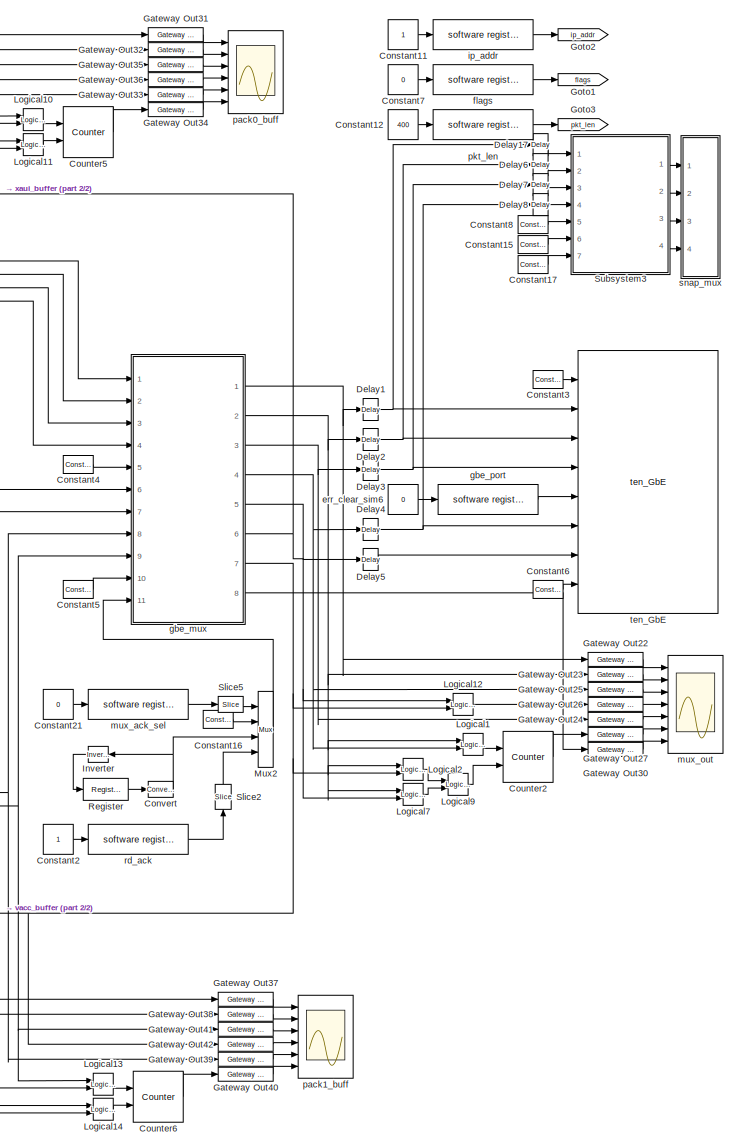
[diagram: root canvas - part 1/2, right side, full height]
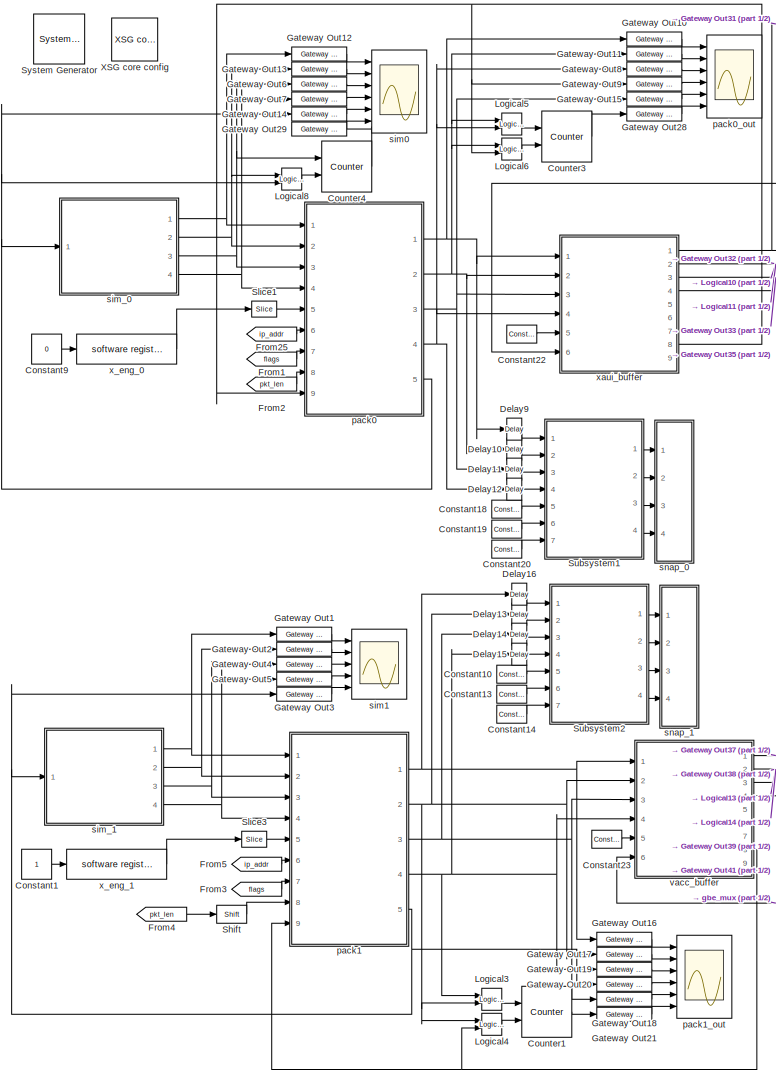
[diagram: root canvas - part 2/2, left side, full height]
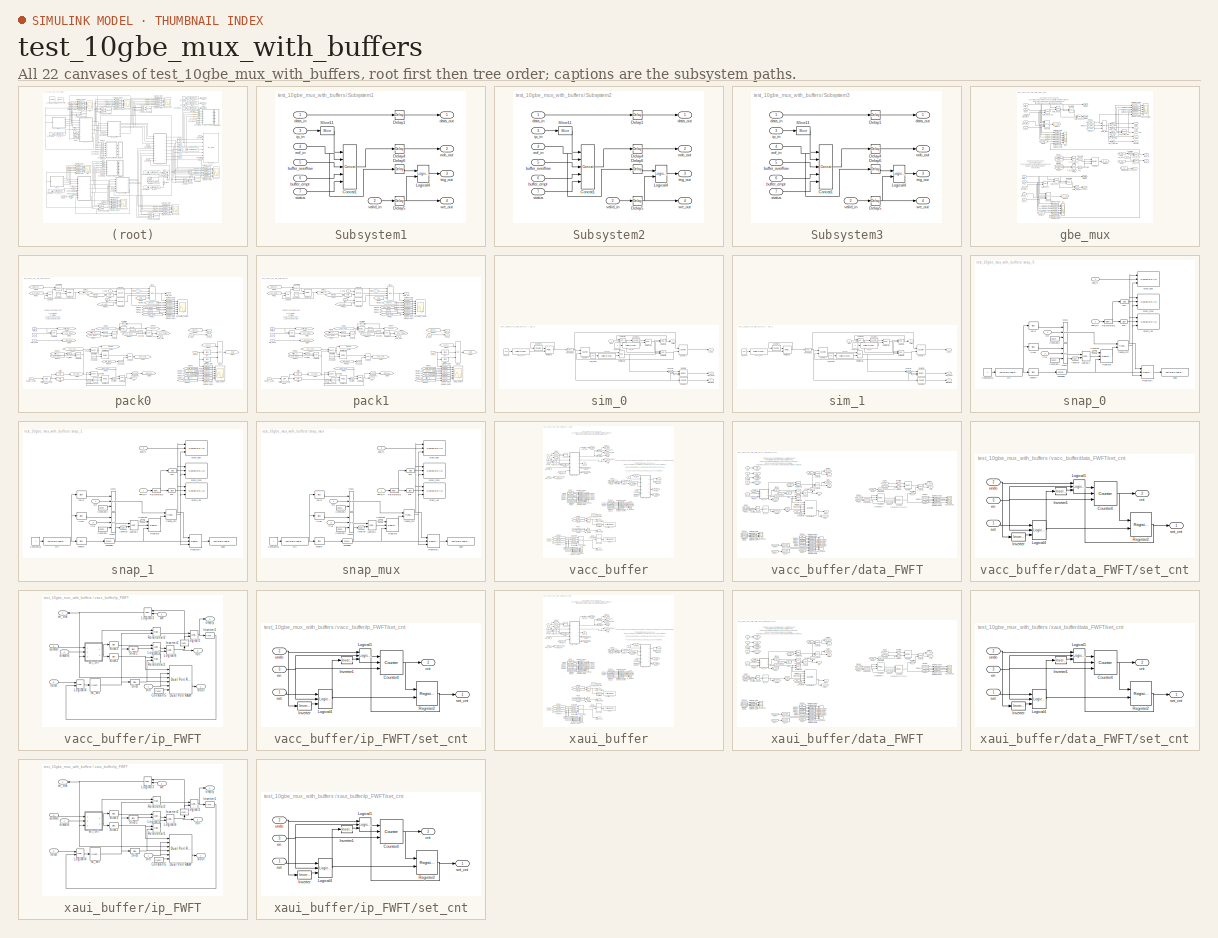
[diagram: thumbnail index - all 22 canvases of the model, root first then tree order]
MODEL test_10gbe_mux_with_buffers
KIND model
BLOCK [Reference]  System Generator  REF=xbsIndex_r3/ System Generator
  AttributesFormatString = System\\nGenerator
  Ports = []
  ShowPortLabels = on
  SourceBlock = xbsIndex_r3/ System Generator
  SourceType = Xilinx System Generator
  Tag = genX
  UserData = DataTag0
  UserDataPersistent = on
  core_generation = According to Block Masks
  dbl_ovrd = According to Block Masks
  deprecated_control = off
  directory = ./test_mp_ub1/sysgen
  eval_field = 0
  incr_netlist = off
  package = ff1704
  part = xc2vp70
  run_coregen = off
  simulink_period = 1
  speed = -7
  synthesis_tool = XST
  sysclk_period = 4.878
  testbench = off
  trim_vbits = Everywhere in SubSystem
  xilinxfamily = Virtex2P
BLOCK [Constant] Constant1
BLOCK [Reference] Constant10  REF=xbsIndex_r3/Constant
  Ports = [0, 1]
  SourceBlock = xbsIndex_r3/Constant
  SourceType = Xilinx Constant Block
  arith_type = Boolean
  bin_pt = 0
  carry = CIN
  const = 0
  dbl_ovrd = off
  equ = P=C
  explicit_period = on
  inp1 = P
  inp2 = PCIN>>17
  iostate = 0
  n_bits = 32
  opr = +
  opselect = C
  period = 1
BLOCK [Constant] Constant11
BLOCK [Constant] Constant12
  Value = 400
BLOCK [Reference] Constant13  REF=xbsIndex_r3/Constant
  Ports = [0, 1]
  SourceBlock = xbsIndex_r3/Constant
  SourceType = Xilinx Constant Block
  arith_type = Boolean
  bin_pt = 0
  carry = CIN
  const = 0
  dbl_ovrd = off
  equ = P=C
  explicit_period = on
  inp1 = P
  inp2 = PCIN>>17
  iostate = 0
  n_bits = 32
  opr = +
  opselect = C
  period = 1
BLOCK [Reference] Constant14  REF=xbsIndex_r3/Constant
  Ports = [0, 1]
  SourceBlock = xbsIndex_r3/Constant
  SourceType = Xilinx Constant Block
  arith_type = Unsigned
  bin_pt = 0
  carry = CIN
  const = 0
  dbl_ovrd = off
  equ = P=C
  explicit_period = on
  inp1 = P
  inp2 = PCIN>>17
  iostate = 0
  n_bits = 9
  opr = +
  opselect = C
  period = 1
BLOCK [Reference] Constant15  REF=xbsIndex_r3/Constant
  Ports = [0, 1]
  SourceBlock = xbsIndex_r3/Constant
  SourceType = Xilinx Constant Block
  arith_type = Boolean
  bin_pt = 0
  carry = CIN
  const = 0
  dbl_ovrd = off
  equ = P=C
  explicit_period = on
  inp1 = P
  inp2 = PCIN>>17
  iostate = 0
  n_bits = 32
  opr = +
  opselect = C
  period = 1
BLOCK [Reference] Constant16  REF=xbsIndex_r3/Constant
  Ports = [0, 1]
  SourceBlock = xbsIndex_r3/Constant
  SourceType = Xilinx Constant Block
  arith_type = Boolean
  bin_pt = 0
  carry = CIN
  const = 1
  dbl_ovrd = off
  equ = P=C
  explicit_period = on
  inp1 = P
  inp2 = PCIN>>17
  iostate = 0
  n_bits = 1
  opr = +
  opselect = C
  period = 1
BLOCK [Reference] Constant17  REF=xbsIndex_r3/Constant
  Ports = [0, 1]
  SourceBlock = xbsIndex_r3/Constant
  SourceType = Xilinx Constant Block
  arith_type = Unsigned
  bin_pt = 0
  carry = CIN
  const = 0
  dbl_ovrd = off
  equ = P=C
  explicit_period = on
  inp1 = P
  inp2 = PCIN>>17
  iostate = 0
  n_bits = 9
  opr = +
  opselect = C
  period = 1
BLOCK [Reference] Constant18  REF=xbsIndex_r3/Constant
  Ports = [0, 1]
  SourceBlock = xbsIndex_r3/Constant
  SourceType = Xilinx Constant Block
  arith_type = Boolean
  bin_pt = 0
  carry = CIN
  const = 0
  dbl_ovrd = off
  equ = P=C
  explicit_period = on
  inp1 = P
  inp2 = PCIN>>17
  iostate = 0
  n_bits = 32
  opr = +
  opselect = C
  period = 1
BLOCK [Reference] Constant19  REF=xbsIndex_r3/Constant
  Ports = [0, 1]
  SourceBlock = xbsIndex_r3/Constant
  SourceType = Xilinx Constant Block
  arith_type = Boolean
  bin_pt = 0
  carry = CIN
  const = 0
  dbl_ovrd = off
  equ = P=C
  explicit_period = on
  inp1 = P
  inp2 = PCIN>>17
  iostate = 0
  n_bits = 32
  opr = +
  opselect = C
  period = 1
BLOCK [Constant] Constant2
BLOCK [Reference] Constant20  REF=xbsIndex_r3/Constant
  Ports = [0, 1]
  SourceBlock = xbsIndex_r3/Constant
  SourceType = Xilinx Constant Block
  arith_type = Unsigned
  bin_pt = 0
  carry = CIN
  const = 0
  dbl_ovrd = off
  equ = P=C
  explicit_period = on
  inp1 = P
  inp2 = PCIN>>17
  iostate = 0
  n_bits = 9
  opr = +
  opselect = C
  period = 1
BLOCK [Constant] Constant21
  Value = 0
BLOCK [Reference] Constant22  REF=xbsIndex_r3/Constant
  Ports = [0, 1]
  SourceBlock = xbsIndex_r3/Constant
  SourceType = Xilinx Constant Block
  arith_type = Boolean
  bin_pt = 0
  carry = CIN
  const = 0
  dbl_ovrd = off
  equ = P=C
  explicit_period = on
  inp1 = P
  inp2 = PCIN>>17
  iostate = 0
  n_bits = 32
  opr = +
  opselect = C
  period = 1
BLOCK [Reference] Constant23  REF=xbsIndex_r3/Constant
  Ports = [0, 1]
  SourceBlock = xbsIndex_r3/Constant
  SourceType = Xilinx Constant Block
  arith_type = Boolean
  bin_pt = 0
  carry = CIN
  const = 0
  dbl_ovrd = off
  equ = P=C
  explicit_period = on
  inp1 = P
  inp2 = PCIN>>17
  iostate = 0
  n_bits = 32
  opr = +
  opselect = C
  period = 1
BLOCK [Reference] Constant3  REF=xbsIndex_r3/Constant
  Ports = [0, 1]
  SourceBlock = xbsIndex_r3/Constant
  SourceType = Xilinx Constant Block
  arith_type = Boolean
  bin_pt = 0
  carry = CIN
  const = 0
  dbl_ovrd = off
  equ = P=C
  explicit_period = on
  inp1 = P
  inp2 = PCIN>>17
  iostate = 0
  n_bits = 32
  opr = +
  opselect = C
  period = 1
BLOCK [Reference] Constant4  REF=xbsIndex_r3/Constant
  Ports = [0, 1]
  SourceBlock = xbsIndex_r3/Constant
  SourceType = Xilinx Constant Block
  arith_type = Boolean
  bin_pt = 0
  carry = CIN
  const = 0
  dbl_ovrd = off
  equ = P=C
  explicit_period = on
  inp1 = P
  inp2 = PCIN>>17
  iostate = 0
  n_bits = 32
  opr = +
  opselect = C
  period = 1
BLOCK [Reference] Constant5  REF=xbsIndex_r3/Constant
  Ports = [0, 1]
  SourceBlock = xbsIndex_r3/Constant
  SourceType = Xilinx Constant Block
  arith_type = Boolean
  bin_pt = 0
  carry = CIN
  const = 0
  dbl_ovrd = off
  equ = P=C
  explicit_period = on
  inp1 = P
  inp2 = PCIN>>17
  iostate = 0
  n_bits = 32
  opr = +
  opselect = C
  period = 1
BLOCK [Reference] Constant6  REF=xbsIndex_r3/Constant
  Ports = [0, 1]
  SourceBlock = xbsIndex_r3/Constant
  SourceType = Xilinx Constant Block
  arith_type = Boolean
  bin_pt = 0
  carry = CIN
  const = 1
  dbl_ovrd = off
  equ = P=C
  explicit_period = on
  inp1 = P
  inp2 = PCIN>>17
  iostate = 0
  n_bits = 32
  opr = +
  opselect = C
  period = 1
BLOCK [Constant] Constant7
  Value = 0
BLOCK [Reference] Constant8  REF=xbsIndex_r3/Constant
  Ports = [0, 1]
  SourceBlock = xbsIndex_r3/Constant
  SourceType = Xilinx Constant Block
  arith_type = Boolean
  bin_pt = 0
  carry = CIN
  const = 0
  dbl_ovrd = off
  equ = P=C
  explicit_period = on
  inp1 = P
  inp2 = PCIN>>17
  iostate = 0
  n_bits = 32
  opr = +
  opselect = C
  period = 1
BLOCK [Constant] Constant9
  Value = 0
BLOCK [Reference] Convert  REF=xbsIndex_r3/Convert
  Ports = [1, 1]
  SourceBlock = xbsIndex_r3/Convert
  SourceType = Xilinx Converter Block
  arith_type = Boolean
  bin_pt = 6
  dbl_ovrd = off
  explicit_period = off
  inserted_by_tool = off
  latency = 0
  n_bits = 1
  overflow = Wrap
  period = 1
  pipeline = off
  quantization = Truncate
  show_param = off
  xl_area = [0, 0, 0, 0, 0, 0, 0]
  xl_use_area = off
BLOCK [Reference] Counter1  REF=xbsIndex_r3/Counter
  Ports = [2, 1]
  SourceBlock = xbsIndex_r3/Counter
  SourceType = Xilinx Counter Block
  arith_type = Unsigned
  bin_pt = 0
  cnt_by_val = 1
  cnt_to = Inf
  cnt_type = Free Running
  dbl_ovrd = off
  en = on
  explicit_period = off
  gen_core = off
  load_pin = off
  n_bits = 8
  operation = Up
  period = 1
  rst = on
  show_param = off
  start_count = 0
  use_rpm = on
  xl_area = [0, 0, 0, 0, 0, 0, 0]
  xl_use_area = off
BLOCK [Reference] Counter2  REF=xbsIndex_r3/Counter
  Ports = [2, 1]
  SourceBlock = xbsIndex_r3/Counter
  SourceType = Xilinx Counter Block
  arith_type = Unsigned
  bin_pt = 0
  cnt_by_val = 1
  cnt_to = Inf
  cnt_type = Free Running
  dbl_ovrd = off
  en = on
  explicit_period = off
  gen_core = off
  load_pin = off
  n_bits = 8
  operation = Up
  period = 1
  rst = on
  show_param = off
  start_count = 0
  use_rpm = on
  xl_area = [0, 0, 0, 0, 0, 0, 0]
  xl_use_area = off
BLOCK [Reference] Counter3  REF=xbsIndex_r3/Counter
  Ports = [2, 1]
  SourceBlock = xbsIndex_r3/Counter
  SourceType = Xilinx Counter Block
  arith_type = Unsigned
  bin_pt = 0
  cnt_by_val = 1
  cnt_to = Inf
  cnt_type = Free Running
  dbl_ovrd = off
  en = on
  explicit_period = off
  gen_core = off
  load_pin = off
  n_bits = 8
  operation = Up
  period = 1
  rst = on
  show_param = off
  start_count = 0
  use_rpm = on
  xl_area = [0, 0, 0, 0, 0, 0, 0]
  xl_use_area = off
BLOCK [Reference] Counter4  REF=xbsIndex_r3/Counter
  Ports = [2, 1]
  SourceBlock = xbsIndex_r3/Counter
  SourceType = Xilinx Counter Block
  arith_type = Unsigned
  bin_pt = 0
  cnt_by_val = 1
  cnt_to = Inf
  cnt_type = Free Running
  dbl_ovrd = off
  en = on
  explicit_period = off
  gen_core = off
  load_pin = off
  n_bits = 8
  operation = Up
  period = 1
  rst = on
  show_param = off
  start_count = 0
  use_rpm = on
  xl_area = [0, 0, 0, 0, 0, 0, 0]
  xl_use_area = off
BLOCK [Reference] Counter5  REF=xbsIndex_r3/Counter
  Ports = [2, 1]
  SourceBlock = xbsIndex_r3/Counter
  SourceType = Xilinx Counter Block
  arith_type = Unsigned
  bin_pt = 0
  cnt_by_val = 1
  cnt_to = Inf
  cnt_type = Free Running
  dbl_ovrd = off
  en = on
  explicit_period = off
  gen_core = off
  load_pin = off
  n_bits = 8
  operation = Up
  period = 1
  rst = on
  show_param = off
  start_count = 0
  use_rpm = on
  xl_area = [0, 0, 0, 0, 0, 0, 0]
  xl_use_area = off
BLOCK [Reference] Counter6  REF=xbsIndex_r3/Counter
  Ports = [2, 1]
  SourceBlock = xbsIndex_r3/Counter
  SourceType = Xilinx Counter Block
  arith_type = Unsigned
  bin_pt = 0
  cnt_by_val = 1
  cnt_to = Inf
  cnt_type = Free Running
  dbl_ovrd = off
  en = on
  explicit_period = off
  gen_core = off
  load_pin = off
  n_bits = 8
  operation = Up
  period = 1
  rst = on
  show_param = off
  start_count = 0
  use_rpm = on
  xl_area = [0, 0, 0, 0, 0, 0, 0]
  xl_use_area = off
BLOCK [Reference] Delay1  REF=xbsIndex_r3/Delay
  Ports = [1, 1]
  SourceBlock = xbsIndex_r3/Delay
  SourceType = Xilinx Delay Block
  accept_only_valid = off
  dbl_ovrd = off
  en = off
  explicit_period = off
  init_zero = on
  latency = 5
  period = 1
  reg_retiming = on
  show_param = off
  xl_area = [0, 0, 0, 0, 0, 0, 0]
  xl_use_area = off
BLOCK [Reference] Delay10  REF=xbsIndex_r3/Delay
  Ports = [1, 1]
  SourceBlock = xbsIndex_r3/Delay
  SourceType = Xilinx Delay Block
  accept_only_valid = off
  dbl_ovrd = off
  en = off
  explicit_period = off
  init_zero = on
  latency = 5
  period = 1
  reg_retiming = on
  show_param = off
  xl_area = [0, 0, 0, 0, 0, 0, 0]
  xl_use_area = off
BLOCK [Reference] Delay11  REF=xbsIndex_r3/Delay
  Ports = [1, 1]
  SourceBlock = xbsIndex_r3/Delay
  SourceType = Xilinx Delay Block
  accept_only_valid = off
  dbl_ovrd = off
  en = off
  explicit_period = off
  init_zero = on
  latency = 5
  period = 1
  reg_retiming = on
  show_param = off
  xl_area = [0, 0, 0, 0, 0, 0, 0]
  xl_use_area = off
BLOCK [Reference] Delay12  REF=xbsIndex_r3/Delay
  Ports = [1, 1]
  SourceBlock = xbsIndex_r3/Delay
  SourceType = Xilinx Delay Block
  accept_only_valid = off
  dbl_ovrd = off
  en = off
  explicit_period = off
  init_zero = on
  latency = 5
  period = 1
  reg_retiming = on
  show_param = off
  xl_area = [0, 0, 0, 0, 0, 0, 0]
  xl_use_area = off
BLOCK [Reference] Delay13  REF=xbsIndex_r3/Delay
  Ports = [1, 1]
  SourceBlock = xbsIndex_r3/Delay
  SourceType = Xilinx Delay Block
  accept_only_valid = off
  dbl_ovrd = off
  en = off
  explicit_period = off
  init_zero = on
  latency = 5
  period = 1
  reg_retiming = on
  show_param = off
  xl_area = [0, 0, 0, 0, 0, 0, 0]
  xl_use_area = off
BLOCK [Reference] Delay14  REF=xbsIndex_r3/Delay
  Ports = [1, 1]
  SourceBlock = xbsIndex_r3/Delay
  SourceType = Xilinx Delay Block
  accept_only_valid = off
  dbl_ovrd = off
  en = off
  explicit_period = off
  init_zero = on
  latency = 5
  period = 1
  reg_retiming = on
  show_param = off
  xl_area = [0, 0, 0, 0, 0, 0, 0]
  xl_use_area = off
BLOCK [Reference] Delay15  REF=xbsIndex_r3/Delay
  Ports = [1, 1]
  SourceBlock = xbsIndex_r3/Delay
  SourceType = Xilinx Delay Block
  accept_only_valid = off
  dbl_ovrd = off
  en = off
  explicit_period = off
  init_zero = on
  latency = 5
  period = 1
  reg_retiming = on
  show_param = off
  xl_area = [0, 0, 0, 0, 0, 0, 0]
  xl_use_area = off
BLOCK [Reference] Delay16  REF=xbsIndex_r3/Delay
  Ports = [1, 1]
  SourceBlock = xbsIndex_r3/Delay
  SourceType = Xilinx Delay Block
  accept_only_valid = off
  dbl_ovrd = off
  en = off
  explicit_period = off
  init_zero = on
  latency = 5
  period = 1
  reg_retiming = on
  show_param = off
  xl_area = [0, 0, 0, 0, 0, 0, 0]
  xl_use_area = off
BLOCK [Reference] Delay17  REF=xbsIndex_r3/Delay
  Ports = [1, 1]
  SourceBlock = xbsIndex_r3/Delay
  SourceType = Xilinx Delay Block
  accept_only_valid = off
  dbl_ovrd = off
  en = off
  explicit_period = off
  init_zero = on
  latency = 5
  period = 1
  reg_retiming = on
  show_param = off
  xl_area = [0, 0, 0, 0, 0, 0, 0]
  xl_use_area = off
BLOCK [Reference] Delay2  REF=xbsIndex_r3/Delay
  Ports = [1, 1]
  SourceBlock = xbsIndex_r3/Delay
  SourceType = Xilinx Delay Block
  accept_only_valid = off
  dbl_ovrd = off
  en = off
  explicit_period = off
  init_zero = on
  latency = 5
  period = 1
  reg_retiming = on
  show_param = off
  xl_area = [0, 0, 0, 0, 0, 0, 0]
  xl_use_area = off
BLOCK [Reference] Delay3  REF=xbsIndex_r3/Delay
  Ports = [1, 1]
  SourceBlock = xbsIndex_r3/Delay
  SourceType = Xilinx Delay Block
  accept_only_valid = off
  dbl_ovrd = off
  en = off
  explicit_period = off
  init_zero = on
  latency = 5
  period = 1
  reg_retiming = on
  show_param = off
  xl_area = [0, 0, 0, 0, 0, 0, 0]
  xl_use_area = off
BLOCK [Reference] Delay4  REF=xbsIndex_r3/Delay
  Ports = [1, 1]
  SourceBlock = xbsIndex_r3/Delay
  SourceType = Xilinx Delay Block
  accept_only_valid = off
  dbl_ovrd = off
  en = off
  explicit_period = off
  init_zero = on
  latency = 5
  period = 1
  reg_retiming = on
  show_param = off
  xl_area = [0, 0, 0, 0, 0, 0, 0]
  xl_use_area = off
BLOCK [Reference] Delay5  REF=xbsIndex_r3/Delay
  Ports = [1, 1]
  SourceBlock = xbsIndex_r3/Delay
  SourceType = Xilinx Delay Block
  accept_only_valid = off
  dbl_ovrd = off
  en = off
  explicit_period = off
  init_zero = on
  latency = 5
  period = 1
  reg_retiming = on
  show_param = off
  xl_area = [0, 0, 0, 0, 0, 0, 0]
  xl_use_area = off
BLOCK [Reference] Delay6  REF=xbsIndex_r3/Delay
  Ports = [1, 1]
  SourceBlock = xbsIndex_r3/Delay
  SourceType = Xilinx Delay Block
  accept_only_valid = off
  dbl_ovrd = off
  en = off
  explicit_period = off
  init_zero = on
  latency = 5
  period = 1
  reg_retiming = on
  show_param = off
  xl_area = [0, 0, 0, 0, 0, 0, 0]
  xl_use_area = off
BLOCK [Reference] Delay7  REF=xbsIndex_r3/Delay
  Ports = [1, 1]
  SourceBlock = xbsIndex_r3/Delay
  SourceType = Xilinx Delay Block
  accept_only_valid = off
  dbl_ovrd = off
  en = off
  explicit_period = off
  init_zero = on
  latency = 5
  period = 1
  reg_retiming = on
  show_param = off
  xl_area = [0, 0, 0, 0, 0, 0, 0]
  xl_use_area = off
BLOCK [Reference] Delay8  REF=xbsIndex_r3/Delay
  Ports = [1, 1]
  SourceBlock = xbsIndex_r3/Delay
  SourceType = Xilinx Delay Block
  accept_only_valid = off
  dbl_ovrd = off
  en = off
  explicit_period = off
  init_zero = on
  latency = 5
  period = 1
  reg_retiming = on
  show_param = off
  xl_area = [0, 0, 0, 0, 0, 0, 0]
  xl_use_area = off
BLOCK [Reference] Delay9  REF=xbsIndex_r3/Delay
  Ports = [1, 1]
  SourceBlock = xbsIndex_r3/Delay
  SourceType = Xilinx Delay Block
  accept_only_valid = off
  dbl_ovrd = off
  en = off
  explicit_period = off
  init_zero = on
  latency = 5
  period = 1
  reg_retiming = on
  show_param = off
  xl_area = [0, 0, 0, 0, 0, 0, 0]
  xl_use_area = off
BLOCK [From] From1
  CloseFcn = tagdialog Close
  GotoTag = flags
BLOCK [From] From2
  CloseFcn = tagdialog Close
  GotoTag = pkt_len
BLOCK [From] From25
  CloseFcn = tagdialog Close
  GotoTag = ip_addr
BLOCK [From] From3
  CloseFcn = tagdialog Close
  GotoTag = flags
BLOCK [From] From4
  CloseFcn = tagdialog Close
  GotoTag = pkt_len
BLOCK [From] From5
  CloseFcn = tagdialog Close
  GotoTag = ip_addr
BLOCK [Reference] Gateway Out1  REF=xbsIndex_r3/Gateway Out
  LOCs = {}
  Ports = [1, 1]
  SourceBlock = xbsIndex_r3/Gateway Out
  SourceType = Xilinx Gateway Out
  arith_type = Boolean
  bin_pt = 6
  hdl_port = on
  locs_specified = off
  nbits = 8
  needs_fixed_name = off
  output_type = Double
  overflow = Wrap
  quantization = Truncate
  show_param = off
  timing_constraint = None
  xl_area = [0, 0, 0, 0, 0, 0, 0]
  xl_use_area = off
BLOCK [Reference] Gateway Out10  REF=xbsIndex_r3/Gateway Out
  LOCs = {}
  Ports = [1, 1]
  SourceBlock = xbsIndex_r3/Gateway Out
  SourceType = Xilinx Gateway Out
  arith_type = Boolean
  bin_pt = 6
  hdl_port = on
  locs_specified = off
  nbits = 8
  needs_fixed_name = off
  output_type = Double
  overflow = Wrap
  quantization = Truncate
  show_param = off
  timing_constraint = None
  xl_area = [0, 0, 0, 0, 0, 0, 0]
  xl_use_area = off
BLOCK [Reference] Gateway Out11  REF=xbsIndex_r3/Gateway Out
  LOCs = {}
  Ports = [1, 1]
  SourceBlock = xbsIndex_r3/Gateway Out
  SourceType = Xilinx Gateway Out
  arith_type = Boolean
  bin_pt = 6
  hdl_port = on
  locs_specified = off
  nbits = 8
  needs_fixed_name = off
  output_type = Double
  overflow = Wrap
  quantization = Truncate
  show_param = off
  timing_constraint = None
  xl_area = [0, 0, 0, 0, 0, 0, 0]
  xl_use_area = off
BLOCK [Reference] Gateway Out12  REF=xbsIndex_r3/Gateway Out
  LOCs = {}
  Ports = [1, 1]
  SourceBlock = xbsIndex_r3/Gateway Out
  SourceType = Xilinx Gateway Out
  arith_type = Boolean
  bin_pt = 6
  hdl_port = on
  locs_specified = off
  nbits = 8
  needs_fixed_name = off
  output_type = Double
  overflow = Wrap
  quantization = Truncate
  show_param = off
  timing_constraint = None
  xl_area = [0, 0, 0, 0, 0, 0, 0]
  xl_use_area = off
BLOCK [Reference] Gateway Out13  REF=xbsIndex_r3/Gateway Out
  LOCs = {}
  Ports = [1, 1]
  SourceBlock = xbsIndex_r3/Gateway Out
  SourceType = Xilinx Gateway Out
  arith_type = Boolean
  bin_pt = 6
  hdl_port = on
  locs_specified = off
  nbits = 8
  needs_fixed_name = off
  output_type = Double
  overflow = Wrap
  quantization = Truncate
  show_param = off
  timing_constraint = None
  xl_area = [0, 0, 0, 0, 0, 0, 0]
  xl_use_area = off
BLOCK [Reference] Gateway Out14  REF=xbsIndex_r3/Gateway Out
  LOCs = {}
  Ports = [1, 1]
  SourceBlock = xbsIndex_r3/Gateway Out
  SourceType = Xilinx Gateway Out
  arith_type = Boolean
  bin_pt = 6
  hdl_port = on
  locs_specified = off
  nbits = 8
  needs_fixed_name = off
  output_type = Double
  overflow = Wrap
  quantization = Truncate
  show_param = off
  timing_constraint = None
  xl_area = [0, 0, 0, 0, 0, 0, 0]
  xl_use_area = off
BLOCK [Reference] Gateway Out15  REF=xbsIndex_r3/Gateway Out
  LOCs = {}
  Ports = [1, 1]
  SourceBlock = xbsIndex_r3/Gateway Out
  SourceType = Xilinx Gateway Out
  arith_type = Boolean
  bin_pt = 6
  hdl_port = on
  locs_specified = off
  nbits = 8
  needs_fixed_name = off
  output_type = Double
  overflow = Wrap
  quantization = Truncate
  show_param = off
  timing_constraint = None
  xl_area = [0, 0, 0, 0, 0, 0, 0]
  xl_use_area = off
BLOCK [Reference] Gateway Out16  REF=xbsIndex_r3/Gateway Out
  LOCs = {}
  Ports = [1, 1]
  SourceBlock = xbsIndex_r3/Gateway Out
  SourceType = Xilinx Gateway Out
  arith_type = Boolean
  bin_pt = 6
  hdl_port = on
  locs_specified = off
  nbits = 8
  needs_fixed_name = off
  output_type = Double
  overflow = Wrap
  quantization = Truncate
  show_param = off
  timing_constraint = None
  xl_area = [0, 0, 0, 0, 0, 0, 0]
  xl_use_area = off
BLOCK [Reference] Gateway Out17  REF=xbsIndex_r3/Gateway Out
  LOCs = {}
  Ports = [1, 1]
  SourceBlock = xbsIndex_r3/Gateway Out
  SourceType = Xilinx Gateway Out
  arith_type = Boolean
  bin_pt = 6
  hdl_port = on
  locs_specified = off
  nbits = 8
  needs_fixed_name = off
  output_type = Double
  overflow = Wrap
  quantization = Truncate
  show_param = off
  timing_constraint = None
  xl_area = [0, 0, 0, 0, 0, 0, 0]
  xl_use_area = off
BLOCK [Reference] Gateway Out18  REF=xbsIndex_r3/Gateway Out
  LOCs = {}
  Ports = [1, 1]
  SourceBlock = xbsIndex_r3/Gateway Out
  SourceType = Xilinx Gateway Out
  arith_type = Boolean
  bin_pt = 6
  hdl_port = on
  locs_specified = off
  nbits = 8
  needs_fixed_name = off
  output_type = Double
  overflow = Wrap
  quantization = Truncate
  show_param = off
  timing_constraint = None
  xl_area = [0, 0, 0, 0, 0, 0, 0]
  xl_use_area = off
BLOCK [Reference] Gateway Out19  REF=xbsIndex_r3/Gateway Out
  LOCs = {}
  Ports = [1, 1]
  SourceBlock = xbsIndex_r3/Gateway Out
  SourceType = Xilinx Gateway Out
  arith_type = Boolean
  bin_pt = 6
  hdl_port = on
  locs_specified = off
  nbits = 8
  needs_fixed_name = off
  output_type = Double
  overflow = Wrap
  quantization = Truncate
  show_param = off
  timing_constraint = None
  xl_area = [0, 0, 0, 0, 0, 0, 0]
  xl_use_area = off
BLOCK [Reference] Gateway Out2  REF=xbsIndex_r3/Gateway Out
  LOCs = {}
  Ports = [1, 1]
  SourceBlock = xbsIndex_r3/Gateway Out
  SourceType = Xilinx Gateway Out
  arith_type = Boolean
  bin_pt = 6
  hdl_port = on
  locs_specified = off
  nbits = 8
  needs_fixed_name = off
  output_type = Double
  overflow = Wrap
  quantization = Truncate
  show_param = off
  timing_constraint = None
  xl_area = [0, 0, 0, 0, 0, 0, 0]
  xl_use_area = off
BLOCK [Reference] Gateway Out20  REF=xbsIndex_r3/Gateway Out
  LOCs = {}
  Ports = [1, 1]
  SourceBlock = xbsIndex_r3/Gateway Out
  SourceType = Xilinx Gateway Out
  arith_type = Boolean
  bin_pt = 6
  hdl_port = on
  locs_specified = off
  nbits = 8
  needs_fixed_name = off
  output_type = Double
  overflow = Wrap
  quantization = Truncate
  show_param = off
  timing_constraint = None
  xl_area = [0, 0, 0, 0, 0, 0, 0]
  xl_use_area = off
BLOCK [Reference] Gateway Out21  REF=xbsIndex_r3/Gateway Out
  LOCs = {}
  Ports = [1, 1]
  SourceBlock = xbsIndex_r3/Gateway Out
  SourceType = Xilinx Gateway Out
  arith_type = Boolean
  bin_pt = 6
  hdl_port = on
  locs_specified = off
  nbits = 8
  needs_fixed_name = off
  output_type = Double
  overflow = Wrap
  quantization = Truncate
  show_param = off
  timing_constraint = None
  xl_area = [0, 0, 0, 0, 0, 0, 0]
  xl_use_area = off
BLOCK [Reference] Gateway Out22  REF=xbsIndex_r3/Gateway Out
  LOCs = {}
  Ports = [1, 1]
  SourceBlock = xbsIndex_r3/Gateway Out
  SourceType = Xilinx Gateway Out
  arith_type = Boolean
  bin_pt = 6
  hdl_port = on
  locs_specified = off
  nbits = 8
  needs_fixed_name = off
  output_type = Double
  overflow = Wrap
  quantization = Truncate
  show_param = off
  timing_constraint = None
  xl_area = [0, 0, 0, 0, 0, 0, 0]
  xl_use_area = off
BLOCK [Reference] Gateway Out23  REF=xbsIndex_r3/Gateway Out
  LOCs = {}
  Ports = [1, 1]
  SourceBlock = xbsIndex_r3/Gateway Out
  SourceType = Xilinx Gateway Out
  arith_type = Boolean
  bin_pt = 6
  hdl_port = on
  locs_specified = off
  nbits = 8
  needs_fixed_name = off
  output_type = Double
  overflow = Wrap
  quantization = Truncate
  show_param = off
  timing_constraint = None
  xl_area = [0, 0, 0, 0, 0, 0, 0]
  xl_use_area = off
BLOCK [Reference] Gateway Out24  REF=xbsIndex_r3/Gateway Out
  LOCs = {}
  Ports = [1, 1]
  SourceBlock = xbsIndex_r3/Gateway Out
  SourceType = Xilinx Gateway Out
  arith_type = Boolean
  bin_pt = 6
  hdl_port = on
  locs_specified = off
  nbits = 8
  needs_fixed_name = off
  output_type = Double
  overflow = Wrap
  quantization = Truncate
  show_param = off
  timing_constraint = None
  xl_area = [0, 0, 0, 0, 0, 0, 0]
  xl_use_area = off
BLOCK [Reference] Gateway Out25  REF=xbsIndex_r3/Gateway Out
  LOCs = {}
  Ports = [1, 1]
  SourceBlock = xbsIndex_r3/Gateway Out
  SourceType = Xilinx Gateway Out
  arith_type = Boolean
  bin_pt = 6
  hdl_port = on
  locs_specified = off
  nbits = 8
  needs_fixed_name = off
  output_type = Double
  overflow = Wrap
  quantization = Truncate
  show_param = off
  timing_constraint = None
  xl_area = [0, 0, 0, 0, 0, 0, 0]
  xl_use_area = off
BLOCK [Reference] Gateway Out26  REF=xbsIndex_r3/Gateway Out
  LOCs = {}
  Ports = [1, 1]
  SourceBlock = xbsIndex_r3/Gateway Out
  SourceType = Xilinx Gateway Out
  arith_type = Boolean
  bin_pt = 6
  hdl_port = on
  locs_specified = off
  nbits = 8
  needs_fixed_name = off
  output_type = Double
  overflow = Wrap
  quantization = Truncate
  show_param = off
  timing_constraint = None
  xl_area = [0, 0, 0, 0, 0, 0, 0]
  xl_use_area = off
BLOCK [Reference] Gateway Out27  REF=xbsIndex_r3/Gateway Out
  LOCs = {}
  Ports = [1, 1]
  SourceBlock = xbsIndex_r3/Gateway Out
  SourceType = Xilinx Gateway Out
  arith_type = Boolean
  bin_pt = 6
  hdl_port = on
  locs_specified = off
  nbits = 8
  needs_fixed_name = off
  output_type = Double
  overflow = Wrap
  quantization = Truncate
  show_param = off
  timing_constraint = None
  xl_area = [0, 0, 0, 0, 0, 0, 0]
  xl_use_area = off
BLOCK [Reference] Gateway Out28  REF=xbsIndex_r3/Gateway Out
  LOCs = {}
  Ports = [1, 1]
  SourceBlock = xbsIndex_r3/Gateway Out
  SourceType = Xilinx Gateway Out
  arith_type = Boolean
  bin_pt = 6
  hdl_port = on
  locs_specified = off
  nbits = 8
  needs_fixed_name = off
  output_type = Double
  overflow = Wrap
  quantization = Truncate
  show_param = off
  timing_constraint = None
  xl_area = [0, 0, 0, 0, 0, 0, 0]
  xl_use_area = off
BLOCK [Reference] Gateway Out29  REF=xbsIndex_r3/Gateway Out
  LOCs = {}
  Ports = [1, 1]
  SourceBlock = xbsIndex_r3/Gateway Out
  SourceType = Xilinx Gateway Out
  arith_type = Boolean
  bin_pt = 6
  hdl_port = on
  locs_specified = off
  nbits = 8
  needs_fixed_name = off
  output_type = Double
  overflow = Wrap
  quantization = Truncate
  show_param = off
  timing_constraint = None
  xl_area = [0, 0, 0, 0, 0, 0, 0]
  xl_use_area = off
BLOCK [Reference] Gateway Out3  REF=xbsIndex_r3/Gateway Out
  LOCs = {}
  Ports = [1, 1]
  SourceBlock = xbsIndex_r3/Gateway Out
  SourceType = Xilinx Gateway Out
  arith_type = Boolean
  bin_pt = 6
  hdl_port = on
  locs_specified = off
  nbits = 8
  needs_fixed_name = off
  output_type = Double
  overflow = Wrap
  quantization = Truncate
  show_param = off
  timing_constraint = None
  xl_area = [0, 0, 0, 0, 0, 0, 0]
  xl_use_area = off
BLOCK [Reference] Gateway Out30  REF=xbsIndex_r3/Gateway Out
  LOCs = {}
  Ports = [1, 1]
  SourceBlock = xbsIndex_r3/Gateway Out
  SourceType = Xilinx Gateway Out
  arith_type = Boolean
  bin_pt = 6
  hdl_port = on
  locs_specified = off
  nbits = 8
  needs_fixed_name = off
  output_type = Double
  overflow = Wrap
  quantization = Truncate
  show_param = off
  timing_constraint = None
  xl_area = [0, 0, 0, 0, 0, 0, 0]
  xl_use_area = off
BLOCK [Reference] Gateway Out31  REF=xbsIndex_r3/Gateway Out
  LOCs = {}
  Ports = [1, 1]
  SourceBlock = xbsIndex_r3/Gateway Out
  SourceType = Xilinx Gateway Out
  arith_type = Boolean
  bin_pt = 6
  hdl_port = on
  locs_specified = off
  nbits = 8
  needs_fixed_name = off
  output_type = Double
  overflow = Wrap
  quantization = Truncate
  show_param = off
  timing_constraint = None
  xl_area = [0, 0, 0, 0, 0, 0, 0]
  xl_use_area = off
BLOCK [Reference] Gateway Out32  REF=xbsIndex_r3/Gateway Out
  LOCs = {}
  Ports = [1, 1]
  SourceBlock = xbsIndex_r3/Gateway Out
  SourceType = Xilinx Gateway Out
  arith_type = Boolean
  bin_pt = 6
  hdl_port = on
  locs_specified = off
  nbits = 8
  needs_fixed_name = off
  output_type = Double
  overflow = Wrap
  quantization = Truncate
  show_param = off
  timing_constraint = None
  xl_area = [0, 0, 0, 0, 0, 0, 0]
  xl_use_area = off
BLOCK [Reference] Gateway Out33  REF=xbsIndex_r3/Gateway Out
  LOCs = {}
  Ports = [1, 1]
  SourceBlock = xbsIndex_r3/Gateway Out
  SourceType = Xilinx Gateway Out
  arith_type = Boolean
  bin_pt = 6
  hdl_port = on
  locs_specified = off
  nbits = 8
  needs_fixed_name = off
  output_type = Double
  overflow = Wrap
  quantization = Truncate
  show_param = off
  timing_constraint = None
  xl_area = [0, 0, 0, 0, 0, 0, 0]
  xl_use_area = off
BLOCK [Reference] Gateway Out34  REF=xbsIndex_r3/Gateway Out
  LOCs = {}
  Ports = [1, 1]
  SourceBlock = xbsIndex_r3/Gateway Out
  SourceType = Xilinx Gateway Out
  arith_type = Boolean
  bin_pt = 6
  hdl_port = on
  locs_specified = off
  nbits = 8
  needs_fixed_name = off
  output_type = Double
  overflow = Wrap
  quantization = Truncate
  show_param = off
  timing_constraint = None
  xl_area = [0, 0, 0, 0, 0, 0, 0]
  xl_use_area = off
BLOCK [Reference] Gateway Out35  REF=xbsIndex_r3/Gateway Out
  LOCs = {}
  Ports = [1, 1]
  SourceBlock = xbsIndex_r3/Gateway Out
  SourceType = Xilinx Gateway Out
  arith_type = Boolean
  bin_pt = 6
  hdl_port = on
  locs_specified = off
  nbits = 8
  needs_fixed_name = off
  output_type = Double
  overflow = Wrap
  quantization = Truncate
  show_param = off
  timing_constraint = None
  xl_area = [0, 0, 0, 0, 0, 0, 0]
  xl_use_area = off
BLOCK [Reference] Gateway Out36  REF=xbsIndex_r3/Gateway Out
  LOCs = {}
  Ports = [1, 1]
  SourceBlock = xbsIndex_r3/Gateway Out
  SourceType = Xilinx Gateway Out
  arith_type = Boolean
  bin_pt = 6
  hdl_port = on
  locs_specified = off
  nbits = 8
  needs_fixed_name = off
  output_type = Double
  overflow = Wrap
  quantization = Truncate
  show_param = off
  timing_constraint = None
  xl_area = [0, 0, 0, 0, 0, 0, 0]
  xl_use_area = off
BLOCK [Reference] Gateway Out37  REF=xbsIndex_r3/Gateway Out
  LOCs = {}
  Ports = [1, 1]
  SourceBlock = xbsIndex_r3/Gateway Out
  SourceType = Xilinx Gateway Out
  arith_type = Boolean
  bin_pt = 6
  hdl_port = on
  locs_specified = off
  nbits = 8
  needs_fixed_name = off
  output_type = Double
  overflow = Wrap
  quantization = Truncate
  show_param = off
  timing_constraint = None
  xl_area = [0, 0, 0, 0, 0, 0, 0]
  xl_use_area = off
BLOCK [Reference] Gateway Out38  REF=xbsIndex_r3/Gateway Out
  LOCs = {}
  Ports = [1, 1]
  SourceBlock = xbsIndex_r3/Gateway Out
  SourceType = Xilinx Gateway Out
  arith_type = Boolean
  bin_pt = 6
  hdl_port = on
  locs_specified = off
  nbits = 8
  needs_fixed_name = off
  output_type = Double
  overflow = Wrap
  quantization = Truncate
  show_param = off
  timing_constraint = None
  xl_area = [0, 0, 0, 0, 0, 0, 0]
  xl_use_area = off
BLOCK [Reference] Gateway Out39  REF=xbsIndex_r3/Gateway Out
  LOCs = {}
  Ports = [1, 1]
  SourceBlock = xbsIndex_r3/Gateway Out
  SourceType = Xilinx Gateway Out
  arith_type = Boolean
  bin_pt = 6
  hdl_port = on
  locs_specified = off
  nbits = 8
  needs_fixed_name = off
  output_type = Double
  overflow = Wrap
  quantization = Truncate
  show_param = off
  timing_constraint = None
  xl_area = [0, 0, 0, 0, 0, 0, 0]
  xl_use_area = off
BLOCK [Reference] Gateway Out4  REF=xbsIndex_r3/Gateway Out
  LOCs = {}
  Ports = [1, 1]
  SourceBlock = xbsIndex_r3/Gateway Out
  SourceType = Xilinx Gateway Out
  arith_type = Boolean
  bin_pt = 6
  hdl_port = on
  locs_specified = off
  nbits = 8
  needs_fixed_name = off
  output_type = Double
  overflow = Wrap
  quantization = Truncate
  show_param = off
  timing_constraint = None
  xl_area = [0, 0, 0, 0, 0, 0, 0]
  xl_use_area = off
BLOCK [Reference] Gateway Out40  REF=xbsIndex_r3/Gateway Out
  LOCs = {}
  Ports = [1, 1]
  SourceBlock = xbsIndex_r3/Gateway Out
  SourceType = Xilinx Gateway Out
  arith_type = Boolean
  bin_pt = 6
  hdl_port = on
  locs_specified = off
  nbits = 8
  needs_fixed_name = off
  output_type = Double
  overflow = Wrap
  quantization = Truncate
  show_param = off
  timing_constraint = None
  xl_area = [0, 0, 0, 0, 0, 0, 0]
  xl_use_area = off
BLOCK [Reference] Gateway Out41  REF=xbsIndex_r3/Gateway Out
  LOCs = {}
  Ports = [1, 1]
  SourceBlock = xbsIndex_r3/Gateway Out
  SourceType = Xilinx Gateway Out
  arith_type = Boolean
  bin_pt = 6
  hdl_port = on
  locs_specified = off
  nbits = 8
  needs_fixed_name = off
  output_type = Double
  overflow = Wrap
  quantization = Truncate
  show_param = off
  timing_constraint = None
  xl_area = [0, 0, 0, 0, 0, 0, 0]
  xl_use_area = off
BLOCK [Reference] Gateway Out42  REF=xbsIndex_r3/Gateway Out
  LOCs = {}
  Ports = [1, 1]
  SourceBlock = xbsIndex_r3/Gateway Out
  SourceType = Xilinx Gateway Out
  arith_type = Boolean
  bin_pt = 6
  hdl_port = on
  locs_specified = off
  nbits = 8
  needs_fixed_name = off
  output_type = Double
  overflow = Wrap
  quantization = Truncate
  show_param = off
  timing_constraint = None
  xl_area = [0, 0, 0, 0, 0, 0, 0]
  xl_use_area = off
BLOCK [Reference] Gateway Out5  REF=xbsIndex_r3/Gateway Out
  LOCs = {}
  Ports = [1, 1]
  SourceBlock = xbsIndex_r3/Gateway Out
  SourceType = Xilinx Gateway Out
  arith_type = Boolean
  bin_pt = 6
  hdl_port = on
  locs_specified = off
  nbits = 8
  needs_fixed_name = off
  output_type = Double
  overflow = Wrap
  quantization = Truncate
  show_param = off
  timing_constraint = None
  xl_area = [0, 0, 0, 0, 0, 0, 0]
  xl_use_area = off
BLOCK [Reference] Gateway Out6  REF=xbsIndex_r3/Gateway Out
  LOCs = {}
  Ports = [1, 1]
  SourceBlock = xbsIndex_r3/Gateway Out
  SourceType = Xilinx Gateway Out
  arith_type = Boolean
  bin_pt = 6
  hdl_port = on
  locs_specified = off
  nbits = 8
  needs_fixed_name = off
  output_type = Double
  overflow = Wrap
  quantization = Truncate
  show_param = off
  timing_constraint = None
  xl_area = [0, 0, 0, 0, 0, 0, 0]
  xl_use_area = off
BLOCK [Reference] Gateway Out7  REF=xbsIndex_r3/Gateway Out
  LOCs = {}
  Ports = [1, 1]
  SourceBlock = xbsIndex_r3/Gateway Out
  SourceType = Xilinx Gateway Out
  arith_type = Boolean
  bin_pt = 6
  hdl_port = on
  locs_specified = off
  nbits = 8
  needs_fixed_name = off
  output_type = Double
  overflow = Wrap
  quantization = Truncate
  show_param = off
  timing_constraint = None
  xl_area = [0, 0, 0, 0, 0, 0, 0]
  xl_use_area = off
BLOCK [Reference] Gateway Out8  REF=xbsIndex_r3/Gateway Out
  LOCs = {}
  Ports = [1, 1]
  SourceBlock = xbsIndex_r3/Gateway Out
  SourceType = Xilinx Gateway Out
  arith_type = Boolean
  bin_pt = 6
  hdl_port = on
  locs_specified = off
  nbits = 8
  needs_fixed_name = off
  output_type = Double
  overflow = Wrap
  quantization = Truncate
  show_param = off
  timing_constraint = None
  xl_area = [0, 0, 0, 0, 0, 0, 0]
  xl_use_area = off
BLOCK [Reference] Gateway Out9  REF=xbsIndex_r3/Gateway Out
  LOCs = {}
  Ports = [1, 1]
  SourceBlock = xbsIndex_r3/Gateway Out
  SourceType = Xilinx Gateway Out
  arith_type = Boolean
  bin_pt = 6
  hdl_port = on
  locs_specified = off
  nbits = 8
  needs_fixed_name = off
  output_type = Double
  overflow = Wrap
  quantization = Truncate
  show_param = off
  timing_constraint = None
  xl_area = [0, 0, 0, 0, 0, 0, 0]
  xl_use_area = off
BLOCK [Goto] Goto1
  GotoTag = flags
  TagVisibility = local
BLOCK [Goto] Goto2
  GotoTag = ip_addr
  TagVisibility = local
BLOCK [Goto] Goto3
  GotoTag = pkt_len
  TagVisibility = local
BLOCK [Reference] Inverter  REF=xbsIndex_r3/Inverter
  Ports = [1, 1]
  SourceBlock = xbsIndex_r3/Inverter
  SourceType = Xilinx Inverter
  dbl_ovrd = off
  en = off
  explicit_period = on
  latency = 0
  period = 1
  show_param = off
  xl_area = [0, 0, 0, 0, 0, 0, 0]
  xl_use_area = off
BLOCK [Reference] Logical1  REF=xbsIndex_r3/Logical
  Ports = [2, 1]
  SourceBlock = xbsIndex_r3/Logical
  SourceType = Xilinx Logical Block
  align_bp = on
  arith_type = Unsigned
  bin_pt = 2
  dbl_ovrd = off
  en = off
  explicit_period = off
  inputs = 2
  latency = 0
  logical_function = AND
  n_bits = 8
  period = 1
  precision = Full
  show_param = off
  xl_area = [0, 0, 0, 0, 0, 0, 0]
  xl_use_area = off
BLOCK [Reference] Logical10  REF=xbsIndex_r3/Logical
  Ports = [2, 1]
  SourceBlock = xbsIndex_r3/Logical
  SourceType = Xilinx Logical Block
  align_bp = on
  arith_type = Unsigned
  bin_pt = 2
  dbl_ovrd = off
  en = off
  explicit_period = off
  inputs = 2
  latency = 0
  logical_function = AND
  n_bits = 8
  period = 1
  precision = Full
  show_param = off
  xl_area = [0, 0, 0, 0, 0, 0, 0]
  xl_use_area = off
BLOCK [Reference] Logical11  REF=xbsIndex_r3/Logical
  Ports = [2, 1]
  SourceBlock = xbsIndex_r3/Logical
  SourceType = Xilinx Logical Block
  align_bp = on
  arith_type = Unsigned
  bin_pt = 2
  dbl_ovrd = off
  en = off
  explicit_period = off
  inputs = 2
  latency = 0
  logical_function = AND
  n_bits = 8
  period = 1
  precision = Full
  show_param = off
  xl_area = [0, 0, 0, 0, 0, 0, 0]
  xl_use_area = off
BLOCK [Reference] Logical12  REF=xbsIndex_r3/Logical
  Ports = [2, 1]
  SourceBlock = xbsIndex_r3/Logical
  SourceType = Xilinx Logical Block
  align_bp = on
  arith_type = Unsigned
  bin_pt = 2
  dbl_ovrd = off
  en = off
  explicit_period = off
  inputs = 2
  latency = 0
  logical_function = OR
  n_bits = 8
  period = 1
  precision = Full
  show_param = off
  xl_area = [0, 0, 0, 0, 0, 0, 0]
  xl_use_area = off
BLOCK [Reference] Logical13  REF=xbsIndex_r3/Logical
  Ports = [2, 1]
  SourceBlock = xbsIndex_r3/Logical
  SourceType = Xilinx Logical Block
  align_bp = on
  arith_type = Unsigned
  bin_pt = 2
  dbl_ovrd = off
  en = off
  explicit_period = off
  inputs = 2
  latency = 0
  logical_function = AND
  n_bits = 8
  period = 1
  precision = Full
  show_param = off
  xl_area = [0, 0, 0, 0, 0, 0, 0]
  xl_use_area = off
BLOCK [Reference] Logical14  REF=xbsIndex_r3/Logical
  Ports = [2, 1]
  SourceBlock = xbsIndex_r3/Logical
  SourceType = Xilinx Logical Block
  align_bp = on
  arith_type = Unsigned
  bin_pt = 2
  dbl_ovrd = off
  en = off
  explicit_period = off
  inputs = 2
  latency = 0
  logical_function = AND
  n_bits = 8
  period = 1
  precision = Full
  show_param = off
  xl_area = [0, 0, 0, 0, 0, 0, 0]
  xl_use_area = off
BLOCK [Reference] Logical2  REF=xbsIndex_r3/Logical
  Ports = [2, 1]
  SourceBlock = xbsIndex_r3/Logical
  SourceType = Xilinx Logical Block
  align_bp = on
  arith_type = Unsigned
  bin_pt = 2
  dbl_ovrd = off
  en = off
  explicit_period = off
  inputs = 2
  latency = 0
  logical_function = AND
  n_bits = 8
  period = 1
  precision = Full
  show_param = off
  xl_area = [0, 0, 0, 0, 0, 0, 0]
  xl_use_area = off
BLOCK [Reference] Logical3  REF=xbsIndex_r3/Logical
  Ports = [2, 1]
  SourceBlock = xbsIndex_r3/Logical
  SourceType = Xilinx Logical Block
  align_bp = on
  arith_type = Unsigned
  bin_pt = 2
  dbl_ovrd = off
  en = off
  explicit_period = off
  inputs = 2
  latency = 0
  logical_function = AND
  n_bits = 8
  period = 1
  precision = Full
  show_param = off
  xl_area = [0, 0, 0, 0, 0, 0, 0]
  xl_use_area = off
BLOCK [Reference] Logical4  REF=xbsIndex_r3/Logical
  Ports = [2, 1]
  SourceBlock = xbsIndex_r3/Logical
  SourceType = Xilinx Logical Block
  align_bp = on
  arith_type = Unsigned
  bin_pt = 2
  dbl_ovrd = off
  en = off
  explicit_period = off
  inputs = 2
  latency = 0
  logical_function = AND
  n_bits = 8
  period = 1
  precision = Full
  show_param = off
  xl_area = [0, 0, 0, 0, 0, 0, 0]
  xl_use_area = off
BLOCK [Reference] Logical5  REF=xbsIndex_r3/Logical
  Ports = [2, 1]
  SourceBlock = xbsIndex_r3/Logical
  SourceType = Xilinx Logical Block
  align_bp = on
  arith_type = Unsigned
  bin_pt = 2
  dbl_ovrd = off
  en = off
  explicit_period = off
  inputs = 2
  latency = 0
  logical_function = AND
  n_bits = 8
  period = 1
  precision = Full
  show_param = off
  xl_area = [0, 0, 0, 0, 0, 0, 0]
  xl_use_area = off
BLOCK [Reference] Logical6  REF=xbsIndex_r3/Logical
  Ports = [2, 1]
  SourceBlock = xbsIndex_r3/Logical
  SourceType = Xilinx Logical Block
  align_bp = on
  arith_type = Unsigned
  bin_pt = 2
  dbl_ovrd = off
  en = off
  explicit_period = off
  inputs = 2
  latency = 0
  logical_function = AND
  n_bits = 8
  period = 1
  precision = Full
  show_param = off
  xl_area = [0, 0, 0, 0, 0, 0, 0]
  xl_use_area = off
BLOCK [Reference] Logical7  REF=xbsIndex_r3/Logical
  Ports = [2, 1]
  SourceBlock = xbsIndex_r3/Logical
  SourceType = Xilinx Logical Block
  align_bp = on
  arith_type = Unsigned
  bin_pt = 2
  dbl_ovrd = off
  en = off
  explicit_period = off
  inputs = 2
  latency = 0
  logical_function = AND
  n_bits = 8
  period = 1
  precision = Full
  show_param = off
  xl_area = [0, 0, 0, 0, 0, 0, 0]
  xl_use_area = off
BLOCK [Reference] Logical8  REF=xbsIndex_r3/Logical
  Ports = [2, 1]
  SourceBlock = xbsIndex_r3/Logical
  SourceType = Xilinx Logical Block
  align_bp = on
  arith_type = Unsigned
  bin_pt = 2
  dbl_ovrd = off
  en = off
  explicit_period = off
  inputs = 2
  latency = 0
  logical_function = AND
  n_bits = 8
  period = 1
  precision = Full
  show_param = off
  xl_area = [0, 0, 0, 0, 0, 0, 0]
  xl_use_area = off
BLOCK [Reference] Logical9  REF=xbsIndex_r3/Logical
  Ports = [2, 1]
  SourceBlock = xbsIndex_r3/Logical
  SourceType = Xilinx Logical Block
  align_bp = on
  arith_type = Unsigned
  bin_pt = 2
  dbl_ovrd = off
  en = off
  explicit_period = off
  inputs = 2
  latency = 0
  logical_function = OR
  n_bits = 8
  period = 1
  precision = Full
  show_param = off
  xl_area = [0, 0, 0, 0, 0, 0, 0]
  xl_use_area = off
BLOCK [Reference] Mux2  REF=xbsIndex_r3/Mux
  Ports = [4, 1]
  SourceBlock = xbsIndex_r3/Mux
  SourceType = Xilinx Multiplexer Block
  arith_type = Signed  (2's comp)
  bin_pt = 2
  dbl_ovrd = off
  en = off
  explicit_period = off
  gen_core = off
  inputs = 3
  latency = 0
  mux_type = off
  n_bits = 8
  overflow = Wrap
  period = 1
  precision = Full
  quantization = Truncate
  show_param = off
  use_rpm = off
  xl_area = [0, 0, 0, 0, 0, 0, 0]
  xl_use_area = off
BLOCK [Reference] Register  REF=xbsIndex_r3/Register
  Ports = [1, 1]
  SourceBlock = xbsIndex_r3/Register
  SourceType = Xilinx Register Block
  dbl_ovrd = off
  en = off
  explicit_period = on
  init = 0
  out_en = off
  period = 1
  reg_only_valid = off
  rst = off
  show_param = off
  xl_area = [0, 0, 0, 0, 0, 0, 0]
  xl_use_area = off
BLOCK [Reference] Shift  REF=xbsIndex_r3/Shift
  Ports = [1, 1]
  SourceBlock = xbsIndex_r3/Shift
  SourceType = Xilinx Shift Block
  arith_type = Unsigned
  bin_pt = 0
  dbl_ovrd = off
  en = off
  explicit_period = off
  latency = 0
  n_bits = 32
  overflow = Wrap
  period = 1
  precision = User Defined
  quantization = Truncate
  shift_bits = 1
  shift_dir = Left
  show_param = off
  xl_area = [0, 0, 0, 0, 0, 0, 0]
  xl_use_area = off
BLOCK [Reference] Slice1  REF=xbsIndex_r3/Slice
  Ports = [1, 1]
  SourceBlock = xbsIndex_r3/Slice
  SourceType = Xilinx Slice Block
  base0 = LSB of Input
  base1 = MSB of Input
  bit0 = 0
  bit1 = 0
  boolean_output = off
  dbl_ovrd = off
  explicit_period = off
  mode = Lower Bit Location + Width
  nbits = 16
  period = 1
BLOCK [Reference] Slice2  REF=xbsIndex_r3/Slice
  Ports = [1, 1]
  SourceBlock = xbsIndex_r3/Slice
  SourceType = Xilinx Slice Block
  base0 = LSB of Input
  base1 = MSB of Input
  bit0 = 0
  bit1 = 0
  boolean_output = on
  dbl_ovrd = off
  explicit_period = off
  mode = Lower Bit Location + Width
  nbits = 1
  period = 1
BLOCK [Reference] Slice3  REF=xbsIndex_r3/Slice
  Ports = [1, 1]
  SourceBlock = xbsIndex_r3/Slice
  SourceType = Xilinx Slice Block
  base0 = LSB of Input
  base1 = MSB of Input
  bit0 = 0
  bit1 = 0
  boolean_output = off
  dbl_ovrd = off
  explicit_period = off
  mode = Lower Bit Location + Width
  nbits = 16
  period = 1
BLOCK [Reference] Slice5  REF=xbsIndex_r3/Slice
  Ports = [1, 1]
  SourceBlock = xbsIndex_r3/Slice
  SourceType = Xilinx Slice Block
  base0 = LSB of Input
  base1 = MSB of Input
  bit0 = 0
  bit1 = 0
  boolean_output = off
  dbl_ovrd = off
  explicit_period = off
  mode = Lower Bit Location + Width
  nbits = 2
  period = 1
BLOCK [SubSystem] Subsystem1
  MinAlgLoopOccurrences = off
  Ports = [7, 4]
  RTWSystemCode = Auto
  TreatAsAtomicUnit = off
BLOCK [Reference] Subsystem1/Concat1  REF=xbsIndex_r3/Concat
  Ports = [5, 1]
  SourceBlock = xbsIndex_r3/Concat
  SourceType = Xilinx Bus Concatenator
  dbl_ovrd = off
  explicit_period = off
  num_inputs = 5
  period = 1
BLOCK [Reference] Subsystem1/Delay1  REF=xbsIndex_r3/Delay
  Ports = [1, 1]
  SourceBlock = xbsIndex_r3/Delay
  SourceType = Xilinx Delay Block
  accept_only_valid = off
  dbl_ovrd = off
  en = off
  explicit_period = off
  init_zero = on
  latency = 2
  period = 1
  reg_retiming = on
  show_param = off
  xl_area = [0, 0, 0, 0, 0, 0, 0]
  xl_use_area = off
BLOCK [Reference] Subsystem1/Delay4  REF=xbsIndex_r3/Delay
  Ports = [1, 1]
  SourceBlock = xbsIndex_r3/Delay
  SourceType = Xilinx Delay Block
  accept_only_valid = off
  dbl_ovrd = off
  en = off
  explicit_period = off
  init_zero = on
  latency = 2
  period = 1
  reg_retiming = on
  show_param = off
  xl_area = [0, 0, 0, 0, 0, 0, 0]
  xl_use_area = off
BLOCK [Reference] Subsystem1/Delay5  REF=xbsIndex_r3/Delay
  Ports = [1, 1]
  SourceBlock = xbsIndex_r3/Delay
  SourceType = Xilinx Delay Block
  accept_only_valid = off
  dbl_ovrd = off
  en = off
  explicit_period = off
  init_zero = on
  latency = 2
  period = 1
  reg_retiming = on
  show_param = off
  xl_area = [0, 0, 0, 0, 0, 0, 0]
  xl_use_area = off
BLOCK [Reference] Subsystem1/Delay6  REF=xbsIndex_r3/Delay
  Ports = [1, 1]
  SourceBlock = xbsIndex_r3/Delay
  SourceType = Xilinx Delay Block
  accept_only_valid = off
  dbl_ovrd = off
  en = off
  explicit_period = off
  init_zero = on
  latency = 2
  period = 1
  reg_retiming = on
  show_param = off
  xl_area = [0, 0, 0, 0, 0, 0, 0]
  xl_use_area = off
BLOCK [Reference] Subsystem1/Logical4  REF=xbsIndex_r3/Logical
  Ports = [2, 1]
  SourceBlock = xbsIndex_r3/Logical
  SourceType = Xilinx Logical Block
  align_bp = on
  arith_type = Unsigned
  bin_pt = 2
  dbl_ovrd = off
  en = off
  explicit_period = on
  inputs = 2
  latency = 0
  logical_function = AND
  n_bits = 8
  period = 1
  precision = Full
  show_param = off
  xl_area = [0, 0, 0, 0, 0, 0, 0]
  xl_use_area = off
BLOCK [Reference] Subsystem1/Slice11  REF=xbsIndex_r3/Slice
  Ports = [1, 1]
  SourceBlock = xbsIndex_r3/Slice
  SourceType = Xilinx Slice Block
  base0 = LSB of Input
  base1 = MSB of Input
  bit0 = 0
  bit1 = 0
  boolean_output = on
  dbl_ovrd = off
  explicit_period = off
  mode = Lower Bit Location + Width
  nbits = 32-9-1-1-1
  period = 1
BLOCK [Inport] Subsystem1/buffer_empt
  IconDisplay = Port number
  LatchInput = off
  Port = 6
BLOCK [Inport] Subsystem1/buffer_overflow
  IconDisplay = Port number
  LatchInput = off
  Port = 5
BLOCK [Inport] Subsystem1/data_in
  IconDisplay = Port number
  LatchInput = off
  Port = 1
BLOCK [Outport] Subsystem1/data_out
  BusOutputAsStruct = off
  IconDisplay = Port number
BLOCK [Inport] Subsystem1/eof_in
  IconDisplay = Port number
  LatchInput = off
  Port = 4
BLOCK [Inport] Subsystem1/ip_in
  IconDisplay = Port number
  LatchInput = off
  Port = 3
BLOCK [Outport] Subsystem1/oob_out
  BusOutputAsStruct = off
  IconDisplay = Port number
  Port = 2
BLOCK [Inport] Subsystem1/status
  IconDisplay = Port number
  LatchInput = off
  Port = 7
BLOCK [Outport] Subsystem1/trig_out
  BusOutputAsStruct = off
  IconDisplay = Port number
  Port = 3
BLOCK [Inport] Subsystem1/valid_in
  IconDisplay = Port number
  LatchInput = off
  Port = 2
BLOCK [Outport] Subsystem1/we_out
  BusOutputAsStruct = off
  IconDisplay = Port number
  Port = 4
BLOCK [SubSystem] Subsystem2
  MinAlgLoopOccurrences = off
  Ports = [7, 4]
  RTWSystemCode = Auto
  TreatAsAtomicUnit = off
BLOCK [Reference] Subsystem2/Concat1  REF=xbsIndex_r3/Concat
  Ports = [5, 1]
  SourceBlock = xbsIndex_r3/Concat
  SourceType = Xilinx Bus Concatenator
  dbl_ovrd = off
  explicit_period = off
  num_inputs = 5
  period = 1
BLOCK [Reference] Subsystem2/Delay1  REF=xbsIndex_r3/Delay
  Ports = [1, 1]
  SourceBlock = xbsIndex_r3/Delay
  SourceType = Xilinx Delay Block
  accept_only_valid = off
  dbl_ovrd = off
  en = off
  explicit_period = off
  init_zero = on
  latency = 2
  period = 1
  reg_retiming = on
  show_param = off
  xl_area = [0, 0, 0, 0, 0, 0, 0]
  xl_use_area = off
BLOCK [Reference] Subsystem2/Delay4  REF=xbsIndex_r3/Delay
  Ports = [1, 1]
  SourceBlock = xbsIndex_r3/Delay
  SourceType = Xilinx Delay Block
  accept_only_valid = off
  dbl_ovrd = off
  en = off
  explicit_period = off
  init_zero = on
  latency = 2
  period = 1
  reg_retiming = on
  show_param = off
  xl_area = [0, 0, 0, 0, 0, 0, 0]
  xl_use_area = off
BLOCK [Reference] Subsystem2/Delay5  REF=xbsIndex_r3/Delay
  Ports = [1, 1]
  SourceBlock = xbsIndex_r3/Delay
  SourceType = Xilinx Delay Block
  accept_only_valid = off
  dbl_ovrd = off
  en = off
  explicit_period = off
  init_zero = on
  latency = 2
  period = 1
  reg_retiming = on
  show_param = off
  xl_area = [0, 0, 0, 0, 0, 0, 0]
  xl_use_area = off
BLOCK [Reference] Subsystem2/Delay6  REF=xbsIndex_r3/Delay
  Ports = [1, 1]
  SourceBlock = xbsIndex_r3/Delay
  SourceType = Xilinx Delay Block
  accept_only_valid = off
  dbl_ovrd = off
  en = off
  explicit_period = off
  init_zero = on
  latency = 2
  period = 1
  reg_retiming = on
  show_param = off
  xl_area = [0, 0, 0, 0, 0, 0, 0]
  xl_use_area = off
BLOCK [Reference] Subsystem2/Logical4  REF=xbsIndex_r3/Logical
  Ports = [2, 1]
  SourceBlock = xbsIndex_r3/Logical
  SourceType = Xilinx Logical Block
  align_bp = on
  arith_type = Unsigned
  bin_pt = 2
  dbl_ovrd = off
  en = off
  explicit_period = on
  inputs = 2
  latency = 0
  logical_function = AND
  n_bits = 8
  period = 1
  precision = Full
  show_param = off
  xl_area = [0, 0, 0, 0, 0, 0, 0]
  xl_use_area = off
BLOCK [Reference] Subsystem2/Slice11  REF=xbsIndex_r3/Slice
  Ports = [1, 1]
  SourceBlock = xbsIndex_r3/Slice
  SourceType = Xilinx Slice Block
  base0 = LSB of Input
  base1 = MSB of Input
  bit0 = 0
  bit1 = 0
  boolean_output = on
  dbl_ovrd = off
  explicit_period = off
  mode = Lower Bit Location + Width
  nbits = 32-9-1-1-1
  period = 1
BLOCK [Inport] Subsystem2/buffer_empt
  IconDisplay = Port number
  LatchInput = off
  Port = 6
BLOCK [Inport] Subsystem2/buffer_overflow
  IconDisplay = Port number
  LatchInput = off
  Port = 5
BLOCK [Inport] Subsystem2/data_in
  IconDisplay = Port number
  LatchInput = off
  Port = 1
BLOCK [Outport] Subsystem2/data_out
  BusOutputAsStruct = off
  IconDisplay = Port number
BLOCK [Inport] Subsystem2/eof_in
  IconDisplay = Port number
  LatchInput = off
  Port = 4
BLOCK [Inport] Subsystem2/ip_in
  IconDisplay = Port number
  LatchInput = off
  Port = 3
BLOCK [Outport] Subsystem2/oob_out
  BusOutputAsStruct = off
  IconDisplay = Port number
  Port = 2
BLOCK [Inport] Subsystem2/status
  IconDisplay = Port number
  LatchInput = off
  Port = 7
BLOCK [Outport] Subsystem2/trig_out
  BusOutputAsStruct = off
  IconDisplay = Port number
  Port = 3
BLOCK [Inport] Subsystem2/valid_in
  IconDisplay = Port number
  LatchInput = off
  Port = 2
BLOCK [Outport] Subsystem2/we_out
  BusOutputAsStruct = off
  IconDisplay = Port number
  Port = 4
BLOCK [SubSystem] Subsystem3
  MinAlgLoopOccurrences = off
  Ports = [7, 4]
  RTWSystemCode = Auto
  TreatAsAtomicUnit = off
BLOCK [Reference] Subsystem3/Concat1  REF=xbsIndex_r3/Concat
  Ports = [5, 1]
  SourceBlock = xbsIndex_r3/Concat
  SourceType = Xilinx Bus Concatenator
  dbl_ovrd = off
  explicit_period = off
  num_inputs = 5
  period = 1
BLOCK [Reference] Subsystem3/Delay1  REF=xbsIndex_r3/Delay
  Ports = [1, 1]
  SourceBlock = xbsIndex_r3/Delay
  SourceType = Xilinx Delay Block
  accept_only_valid = off
  dbl_ovrd = off
  en = off
  explicit_period = off
  init_zero = on
  latency = 2
  period = 1
  reg_retiming = on
  show_param = off
  xl_area = [0, 0, 0, 0, 0, 0, 0]
  xl_use_area = off
BLOCK [Reference] Subsystem3/Delay4  REF=xbsIndex_r3/Delay
  Ports = [1, 1]
  SourceBlock = xbsIndex_r3/Delay
  SourceType = Xilinx Delay Block
  accept_only_valid = off
  dbl_ovrd = off
  en = off
  explicit_period = off
  init_zero = on
  latency = 2
  period = 1
  reg_retiming = on
  show_param = off
  xl_area = [0, 0, 0, 0, 0, 0, 0]
  xl_use_area = off
BLOCK [Reference] Subsystem3/Delay5  REF=xbsIndex_r3/Delay
  Ports = [1, 1]
  SourceBlock = xbsIndex_r3/Delay
  SourceType = Xilinx Delay Block
  accept_only_valid = off
  dbl_ovrd = off
  en = off
  explicit_period = off
  init_zero = on
  latency = 2
  period = 1
  reg_retiming = on
  show_param = off
  xl_area = [0, 0, 0, 0, 0, 0, 0]
  xl_use_area = off
BLOCK [Reference] Subsystem3/Delay6  REF=xbsIndex_r3/Delay
  Ports = [1, 1]
  SourceBlock = xbsIndex_r3/Delay
  SourceType = Xilinx Delay Block
  accept_only_valid = off
  dbl_ovrd = off
  en = off
  explicit_period = off
  init_zero = on
  latency = 2
  period = 1
  reg_retiming = on
  show_param = off
  xl_area = [0, 0, 0, 0, 0, 0, 0]
  xl_use_area = off
BLOCK [Reference] Subsystem3/Logical4  REF=xbsIndex_r3/Logical
  Ports = [2, 1]
  SourceBlock = xbsIndex_r3/Logical
  SourceType = Xilinx Logical Block
  align_bp = on
  arith_type = Unsigned
  bin_pt = 2
  dbl_ovrd = off
  en = off
  explicit_period = on
  inputs = 2
  latency = 0
  logical_function = AND
  n_bits = 8
  period = 1
  precision = Full
  show_param = off
  xl_area = [0, 0, 0, 0, 0, 0, 0]
  xl_use_area = off
BLOCK [Reference] Subsystem3/Slice11  REF=xbsIndex_r3/Slice
  Ports = [1, 1]
  SourceBlock = xbsIndex_r3/Slice
  SourceType = Xilinx Slice Block
  base0 = LSB of Input
  base1 = MSB of Input
  bit0 = 0
  bit1 = 0
  boolean_output = on
  dbl_ovrd = off
  explicit_period = off
  mode = Lower Bit Location + Width
  nbits = 32-9-1-1-1
  period = 1
BLOCK [Inport] Subsystem3/buffer_empt
  IconDisplay = Port number
  LatchInput = off
  Port = 6
BLOCK [Inport] Subsystem3/buffer_overflow
  IconDisplay = Port number
  LatchInput = off
  Port = 5
BLOCK [Inport] Subsystem3/data_in
  IconDisplay = Port number
  LatchInput = off
  Port = 1
BLOCK [Outport] Subsystem3/data_out
  BusOutputAsStruct = off
  IconDisplay = Port number
BLOCK [Inport] Subsystem3/eof_in
  IconDisplay = Port number
  LatchInput = off
  Port = 4
BLOCK [Inport] Subsystem3/ip_in
  IconDisplay = Port number
  LatchInput = off
  Port = 3
BLOCK [Outport] Subsystem3/oob_out
  BusOutputAsStruct = off
  IconDisplay = Port number
  Port = 2
BLOCK [Inport] Subsystem3/status
  IconDisplay = Port number
  LatchInput = off
  Port = 7
BLOCK [Outport] Subsystem3/trig_out
  BusOutputAsStruct = off
  IconDisplay = Port number
  Port = 3
BLOCK [Inport] Subsystem3/valid_in
  IconDisplay = Port number
  LatchInput = off
  Port = 2
BLOCK [Outport] Subsystem3/we_out
  BusOutputAsStruct = off
  IconDisplay = Port number
  Port = 4
BLOCK [Reference] XSG core config  REF=xps_library/XSG core config  (lib defined in mdl_00b5cec29cd0, mdl_02ab6ecaa3d1, +5 more)
  Ports = []
  ShowPortLabels = on
  SourceBlock = xps_library/XSG core config
  SourceType = xsg core config
  Tag = xps:xsg
  clk_rate = 205
  clk_src = sys_clk2x
  gpio_clk_bit_index = 0
  gpio_clk_io_group = iBOB:sma
  hw_sys = BEE2_usr
  ibob_linux = off
  mpc_type = powerpc405
  sample_period = 1
  synthesis_tool = XST
BLOCK [Constant] err_clear_sim6
  Value = 0
BLOCK [Reference] flags  REF=xps_library/software register  (lib defined in mdl_00b5cec29cd0, mdl_02ab6ecaa3d1, +5 more)
  Ports = [1, 1]
  ShowPortLabels = on
  SourceBlock = xps_library/software register
  Tag = xps:sw_reg
  arith_type = Unsigned
  bin_pt = 0
  bitwidth = 32
  gw_name = test_10gbe_mux_with_buffers_flags_user_data_out
  io_dir = From Processor
  sample_period = 1
BLOCK [SubSystem] gbe_mux
  MaskCallbackString = |||
  MaskDescription = This block allows you to mux together two data streams to be sent to the 10GbE core
  MaskEnableString = on,on,on,on
  MaskIconFrame = on
  MaskIconOpaque = on
  MaskIconRotate = none
  MaskIconUnits = autoscale
  MaskPromptString = Input 0: Maximum single packet size (words)|Input 0: Minimum single packet size (words)|Input 1: Maximum single packet size (words)|Input 1: Minimum single packet size (words)
  MaskStyleString = edit,edit,edit,edit
  MaskTabNameString = ,,,
  MaskToolTipString = on,on,on,on
  MaskTunableValueString = off,off,on,on
  MaskType = mux_packets
  MaskValueString = 40|20|1500|20
  MaskVarAliasString = ,,,
  MaskVariables = max_packet_size_0=@1;min_packet_size_0=@2;max_packet_size_1=@3;min_packet_size_1=@4;
  MaskVisibilityString = on,on,on,on
  MinAlgLoopOccurrences = off
  Ports = [11, 8]
  RTWSystemCode = Auto
  TreatAsAtomicUnit = off
BLOCK [Reference] gbe_mux/0_eof_AND_1_not_empty  REF=xbsIndex_r3/Logical
  Ports = [2, 1]
  SourceBlock = xbsIndex_r3/Logical
  SourceType = Xilinx Logical Block
  align_bp = on
  arith_type = Unsigned
  bin_pt = 2
  dbl_ovrd = off
  en = off
  explicit_period = on
  inputs = 2
  latency = 0
  logical_function = AND
  n_bits = 8
  period = 1
  precision = Full
  show_param = off
  xl_area = [0, 0, 0, 0, 0, 0, 0]
  xl_use_area = off
BLOCK [Reference] gbe_mux/1_eof_AND_0_valid  REF=xbsIndex_r3/Logical
  Ports = [2, 1]
  SourceBlock = xbsIndex_r3/Logical
  SourceType = Xilinx Logical Block
  align_bp = on
  arith_type = Unsigned
  bin_pt = 2
  dbl_ovrd = off
  en = off
  explicit_period = on
  inputs = 2
  latency = 0
  logical_function = AND
  n_bits = 8
  period = 1
  precision = Full
  show_param = off
  xl_area = [0, 0, 0, 0, 0, 0, 0]
  xl_use_area = off
BLOCK [Reference] gbe_mux/Concat1  REF=xbsIndex_r3/Concat
  Ports = [5, 1]
  SourceBlock = xbsIndex_r3/Concat
  SourceType = Xilinx Bus Concatenator
  dbl_ovrd = off
  explicit_period = off
  num_inputs = 5
  period = 1
BLOCK [Reference] gbe_mux/Concat2  REF=xbsIndex_r3/Concat
  Ports = [5, 1]
  SourceBlock = xbsIndex_r3/Concat
  SourceType = Xilinx Bus Concatenator
  dbl_ovrd = off
  explicit_period = off
  num_inputs = 5
  period = 1
BLOCK [Reference] gbe_mux/Convert3  REF=xbsIndex_r3/Convert
  Ports = [1, 1]
  SourceBlock = xbsIndex_r3/Convert
  SourceType = Xilinx Converter Block
  arith_type = Boolean
  bin_pt = 6
  dbl_ovrd = off
  explicit_period = off
  inserted_by_tool = off
  latency = 0
  n_bits = 8
  overflow = Wrap
  period = 1
  pipeline = off
  quantization = Truncate
  show_param = off
  xl_area = [0, 0, 0, 0, 0, 0, 0]
  xl_use_area = off
BLOCK [Reference] gbe_mux/Convert4  REF=xbsIndex_r3/Convert
  Ports = [1, 1]
  SourceBlock = xbsIndex_r3/Convert
  SourceType = Xilinx Converter Block
  arith_type = Boolean
  bin_pt = 6
  dbl_ovrd = off
  explicit_period = off
  inserted_by_tool = off
  latency = 0
  n_bits = 8
  overflow = Wrap
  period = 1
  pipeline = off
  quantization = Truncate
  show_param = off
  xl_area = [0, 0, 0, 0, 0, 0, 0]
  xl_use_area = off
BLOCK [From] gbe_mux/From1
  CloseFcn = tagdialog Close
  GotoTag = in_sel
BLOCK [From] gbe_mux/From15
  CloseFcn = tagdialog Close
  GotoTag = in_sel
BLOCK [From] gbe_mux/From19
  CloseFcn = tagdialog Close
  GotoTag = valid1
BLOCK [From] gbe_mux/From2
  CloseFcn = tagdialog Close
  GotoTag = in_sel
BLOCK [From] gbe_mux/From20
  CloseFcn = tagdialog Close
  GotoTag = valid0
BLOCK [From] gbe_mux/From21
  CloseFcn = tagdialog Close
  GotoTag = eof0
BLOCK [From] gbe_mux/From23
  CloseFcn = tagdialog Close
  GotoTag = eof1
BLOCK [From] gbe_mux/From24
  CloseFcn = tagdialog Close
  GotoTag = d_out0
BLOCK [From] gbe_mux/From25
  CloseFcn = tagdialog Close
  GotoTag = in_sel
BLOCK [From] gbe_mux/From3
  CloseFcn = tagdialog Close
  GotoTag = in_sel
BLOCK [From] gbe_mux/From32
  CloseFcn = tagdialog Close
  GotoTag = d_out1
BLOCK [From] gbe_mux/From43
  CloseFcn = tagdialog Close
  GotoTag = in_sel
BLOCK [Reference] gbe_mux/Gateway Out1  REF=xbsIndex_r3/Gateway Out
  LOCs = {}
  Ports = [1, 1]
  SourceBlock = xbsIndex_r3/Gateway Out
  SourceType = Xilinx Gateway Out
  arith_type = Boolean
  bin_pt = 6
  hdl_port = on
  locs_specified = off
  nbits = 8
  needs_fixed_name = off
  output_type = Double
  overflow = Wrap
  quantization = Truncate
  show_param = off
  timing_constraint = None
  xl_area = [0, 0, 0, 0, 0, 0, 0]
  xl_use_area = off
BLOCK [Reference] gbe_mux/Gateway Out10  REF=xbsIndex_r3/Gateway Out
  LOCs = {}
  Ports = [1, 1]
  SourceBlock = xbsIndex_r3/Gateway Out
  SourceType = Xilinx Gateway Out
  arith_type = Boolean
  bin_pt = 6
  hdl_port = on
  locs_specified = off
  nbits = 8
  needs_fixed_name = off
  output_type = Double
  overflow = Wrap
  quantization = Truncate
  show_param = off
  timing_constraint = None
  xl_area = [0, 0, 0, 0, 0, 0, 0]
  xl_use_area = off
BLOCK [Reference] gbe_mux/Gateway Out11  REF=xbsIndex_r3/Gateway Out
  LOCs = {}
  Ports = [1, 1]
  SourceBlock = xbsIndex_r3/Gateway Out
  SourceType = Xilinx Gateway Out
  arith_type = Boolean
  bin_pt = 6
  hdl_port = on
  locs_specified = off
  nbits = 8
  needs_fixed_name = off
  output_type = Double
  overflow = Wrap
  quantization = Truncate
  show_param = off
  timing_constraint = None
  xl_area = [0, 0, 0, 0, 0, 0, 0]
  xl_use_area = off
BLOCK [Reference] gbe_mux/Gateway Out12  REF=xbsIndex_r3/Gateway Out
  LOCs = {}
  Ports = [1, 1]
  SourceBlock = xbsIndex_r3/Gateway Out
  SourceType = Xilinx Gateway Out
  arith_type = Boolean
  bin_pt = 6
  hdl_port = on
  locs_specified = off
  nbits = 8
  needs_fixed_name = off
  output_type = Double
  overflow = Wrap
  quantization = Truncate
  show_param = off
  timing_constraint = None
  xl_area = [0, 0, 0, 0, 0, 0, 0]
  xl_use_area = off
BLOCK [Reference] gbe_mux/Gateway Out18  REF=xbsIndex_r3/Gateway Out
  LOCs = {}
  Ports = [1, 1]
  SourceBlock = xbsIndex_r3/Gateway Out
  SourceType = Xilinx Gateway Out
  arith_type = Boolean
  bin_pt = 6
  hdl_port = on
  locs_specified = off
  nbits = 8
  needs_fixed_name = off
  output_type = Double
  overflow = Wrap
  quantization = Truncate
  show_param = off
  timing_constraint = None
  xl_area = [0, 0, 0, 0, 0, 0, 0]
  xl_use_area = off
BLOCK [Reference] gbe_mux/Gateway Out19  REF=xbsIndex_r3/Gateway Out
  LOCs = {}
  Ports = [1, 1]
  SourceBlock = xbsIndex_r3/Gateway Out
  SourceType = Xilinx Gateway Out
  arith_type = Boolean
  bin_pt = 6
  hdl_port = on
  locs_specified = off
  nbits = 8
  needs_fixed_name = off
  output_type = Double
  overflow = Wrap
  quantization = Truncate
  show_param = off
  timing_constraint = None
  xl_area = [0, 0, 0, 0, 0, 0, 0]
  xl_use_area = off
BLOCK [Reference] gbe_mux/Gateway Out2  REF=xbsIndex_r3/Gateway Out
  LOCs = {}
  Ports = [1, 1]
  SourceBlock = xbsIndex_r3/Gateway Out
  SourceType = Xilinx Gateway Out
  arith_type = Boolean
  bin_pt = 6
  hdl_port = on
  locs_specified = off
  nbits = 8
  needs_fixed_name = off
  output_type = Double
  overflow = Wrap
  quantization = Truncate
  show_param = off
  timing_constraint = None
  xl_area = [0, 0, 0, 0, 0, 0, 0]
  xl_use_area = off
BLOCK [Reference] gbe_mux/Gateway Out20  REF=xbsIndex_r3/Gateway Out
  LOCs = {}
  Ports = [1, 1]
  SourceBlock = xbsIndex_r3/Gateway Out
  SourceType = Xilinx Gateway Out
  arith_type = Boolean
  bin_pt = 6
  hdl_port = on
  locs_specified = off
  nbits = 8
  needs_fixed_name = off
  output_type = Double
  overflow = Wrap
  quantization = Truncate
  show_param = off
  timing_constraint = None
  xl_area = [0, 0, 0, 0, 0, 0, 0]
  xl_use_area = off
BLOCK [Reference] gbe_mux/Gateway Out21  REF=xbsIndex_r3/Gateway Out
  LOCs = {}
  Ports = [1, 1]
  SourceBlock = xbsIndex_r3/Gateway Out
  SourceType = Xilinx Gateway Out
  arith_type = Boolean
  bin_pt = 6
  hdl_port = on
  locs_specified = off
  nbits = 8
  needs_fixed_name = off
  output_type = Double
  overflow = Wrap
  quantization = Truncate
  show_param = off
  timing_constraint = None
  xl_area = [0, 0, 0, 0, 0, 0, 0]
  xl_use_area = off
BLOCK [Reference] gbe_mux/Gateway Out26  REF=xbsIndex_r3/Gateway Out
  LOCs = {}
  Ports = [1, 1]
  SourceBlock = xbsIndex_r3/Gateway Out
  SourceType = Xilinx Gateway Out
  arith_type = Boolean
  bin_pt = 6
  hdl_port = on
  locs_specified = off
  nbits = 8
  needs_fixed_name = off
  output_type = Double
  overflow = Wrap
  quantization = Truncate
  show_param = off
  timing_constraint = None
  xl_area = [0, 0, 0, 0, 0, 0, 0]
  xl_use_area = off
BLOCK [Reference] gbe_mux/Gateway Out3  REF=xbsIndex_r3/Gateway Out
  LOCs = {}
  Ports = [1, 1]
  SourceBlock = xbsIndex_r3/Gateway Out
  SourceType = Xilinx Gateway Out
  arith_type = Boolean
  bin_pt = 6
  hdl_port = on
  locs_specified = off
  nbits = 8
  needs_fixed_name = off
  output_type = Double
  overflow = Wrap
  quantization = Truncate
  show_param = off
  timing_constraint = None
  xl_area = [0, 0, 0, 0, 0, 0, 0]
  xl_use_area = off
BLOCK [Reference] gbe_mux/Gateway Out4  REF=xbsIndex_r3/Gateway Out
  LOCs = {}
  Ports = [1, 1]
  SourceBlock = xbsIndex_r3/Gateway Out
  SourceType = Xilinx Gateway Out
  arith_type = Boolean
  bin_pt = 6
  hdl_port = on
  locs_specified = off
  nbits = 8
  needs_fixed_name = off
  output_type = Double
  overflow = Wrap
  quantization = Truncate
  show_param = off
  timing_constraint = None
  xl_area = [0, 0, 0, 0, 0, 0, 0]
  xl_use_area = off
BLOCK [Reference] gbe_mux/Gateway Out43  REF=xbsIndex_r3/Gateway Out
  LOCs = {}
  Ports = [1, 1]
  SourceBlock = xbsIndex_r3/Gateway Out
  SourceType = Xilinx Gateway Out
  arith_type = Boolean
  bin_pt = 6
  hdl_port = on
  locs_specified = off
  nbits = 8
  needs_fixed_name = off
  output_type = Double
  overflow = Wrap
  quantization = Truncate
  show_param = off
  timing_constraint = None
  xl_area = [0, 0, 0, 0, 0, 0, 0]
  xl_use_area = off
BLOCK [Reference] gbe_mux/Gateway Out5  REF=xbsIndex_r3/Gateway Out
  LOCs = {}
  Ports = [1, 1]
  SourceBlock = xbsIndex_r3/Gateway Out
  SourceType = Xilinx Gateway Out
  arith_type = Boolean
  bin_pt = 6
  hdl_port = on
  locs_specified = off
  nbits = 8
  needs_fixed_name = off
  output_type = Double
  overflow = Wrap
  quantization = Truncate
  show_param = off
  timing_constraint = None
  xl_area = [0, 0, 0, 0, 0, 0, 0]
  xl_use_area = off
BLOCK [Reference] gbe_mux/Gateway Out6  REF=xbsIndex_r3/Gateway Out
  LOCs = {}
  Ports = [1, 1]
  SourceBlock = xbsIndex_r3/Gateway Out
  SourceType = Xilinx Gateway Out
  arith_type = Boolean
  bin_pt = 6
  hdl_port = on
  locs_specified = off
  nbits = 8
  needs_fixed_name = off
  output_type = Double
  overflow = Wrap
  quantization = Truncate
  show_param = off
  timing_constraint = None
  xl_area = [0, 0, 0, 0, 0, 0, 0]
  xl_use_area = off
BLOCK [Reference] gbe_mux/Gateway Out7  REF=xbsIndex_r3/Gateway Out
  LOCs = {}
  Ports = [1, 1]
  SourceBlock = xbsIndex_r3/Gateway Out
  SourceType = Xilinx Gateway Out
  arith_type = Boolean
  bin_pt = 6
  hdl_port = on
  locs_specified = off
  nbits = 8
  needs_fixed_name = off
  output_type = Double
  overflow = Wrap
  quantization = Truncate
  show_param = off
  timing_constraint = None
  xl_area = [0, 0, 0, 0, 0, 0, 0]
  xl_use_area = off
BLOCK [Reference] gbe_mux/Gateway Out9  REF=xbsIndex_r3/Gateway Out
  LOCs = {}
  Ports = [1, 1]
  SourceBlock = xbsIndex_r3/Gateway Out
  SourceType = Xilinx Gateway Out
  arith_type = Boolean
  bin_pt = 6
  hdl_port = on
  locs_specified = off
  nbits = 8
  needs_fixed_name = off
  output_type = Double
  overflow = Wrap
  quantization = Truncate
  show_param = off
  timing_constraint = None
  xl_area = [0, 0, 0, 0, 0, 0, 0]
  xl_use_area = off
BLOCK [Goto] gbe_mux/Goto1
  GotoTag = valid1
  TagVisibility = local
BLOCK [Goto] gbe_mux/Goto11
  GotoTag = eof1
  TagVisibility = local
BLOCK [Goto] gbe_mux/Goto12
  GotoTag = in_sel
  TagVisibility = local
BLOCK [Goto] gbe_mux/Goto13
  GotoTag = d_out0
  TagVisibility = local
BLOCK [Goto] gbe_mux/Goto16
  GotoTag = d_out1
  TagVisibility = local
BLOCK [Goto] gbe_mux/Goto2
  GotoTag = valid0
  TagVisibility = local
BLOCK [Goto] gbe_mux/Goto3
  GotoTag = eof0
  TagVisibility = local
BLOCK [Reference] gbe_mux/Inverter2  REF=xbsIndex_r3/Inverter
  Ports = [1, 1]
  SourceBlock = xbsIndex_r3/Inverter
  SourceType = Xilinx Inverter
  dbl_ovrd = off
  en = off
  explicit_period = off
  latency = 0
  period = 1
  show_param = off
  xl_area = [0, 0, 0, 0, 0, 0, 0]
  xl_use_area = off
BLOCK [Reference] gbe_mux/Register  REF=xbsIndex_r3/Register
  Ports = [3, 1]
  SourceBlock = xbsIndex_r3/Register
  SourceType = Xilinx Register Block
  dbl_ovrd = off
  en = on
  explicit_period = on
  init = 0
  out_en = off
  period = 1
  reg_only_valid = off
  rst = on
  show_param = off
  xl_area = [0, 0, 0, 0, 0, 0, 0]
  xl_use_area = off
BLOCK [Reference] gbe_mux/Register1  REF=xbsIndex_r3/Register
  Ports = [2, 1]
  SourceBlock = xbsIndex_r3/Register
  SourceType = Xilinx Register Block
  dbl_ovrd = off
  en = on
  explicit_period = off
  init = 1
  out_en = off
  period = 1
  reg_only_valid = off
  rst = off
  show_param = off
  xl_area = [0, 0, 0, 0, 0, 0, 0]
  xl_use_area = off
BLOCK [Reference] gbe_mux/Register2  REF=xbsIndex_r3/Register
  Ports = [2, 1]
  SourceBlock = xbsIndex_r3/Register
  SourceType = Xilinx Register Block
  dbl_ovrd = off
  en = on
  explicit_period = off
  init = 0
  out_en = off
  period = 1
  reg_only_valid = off
  rst = off
  show_param = off
  xl_area = [0, 0, 0, 0, 0, 0, 0]
  xl_use_area = off
BLOCK [Outport] gbe_mux/ack_0
  BusOutputAsStruct = off
  IconDisplay = Port number
  Port = 6
BLOCK [Reference] gbe_mux/ack_0_en  REF=xbsIndex_r3/Logical
  Ports = [2, 1]
  SourceBlock = xbsIndex_r3/Logical
  SourceType = Xilinx Logical Block
  align_bp = on
  arith_type = Unsigned
  bin_pt = 2
  dbl_ovrd = off
  en = off
  explicit_period = off
  inputs = 2
  latency = 0
  logical_function = AND
  n_bits = 8
  period = 1
  precision = Full
  show_param = off
  xl_area = [0, 0, 0, 0, 0, 0, 0]
  xl_use_area = off
BLOCK [Outport] gbe_mux/ack_1
  BusOutputAsStruct = off
  IconDisplay = Port number
  Port = 7
BLOCK [Reference] gbe_mux/ack_1_en  REF=xbsIndex_r3/Logical
  Ports = [2, 1]
  SourceBlock = xbsIndex_r3/Logical
  SourceType = Xilinx Logical Block
  align_bp = on
  arith_type = Unsigned
  bin_pt = 2
  dbl_ovrd = off
  en = off
  explicit_period = off
  inputs = 2
  latency = 0
  logical_function = AND
  n_bits = 8
  period = 1
  precision = Full
  show_param = off
  xl_area = [0, 0, 0, 0, 0, 0, 0]
  xl_use_area = off
BLOCK [Inport] gbe_mux/d_in_0
  IconDisplay = Port number
  LatchInput = off
  Port = 1
BLOCK [Inport] gbe_mux/d_in_1
  IconDisplay = Port number
  LatchInput = off
  Port = 6
BLOCK [Outport] gbe_mux/data
  BusOutputAsStruct = off
  IconDisplay = Port number
BLOCK [Reference] gbe_mux/data_mux  REF=xbsIndex_r3/Mux
  Ports = [3, 1]
  SourceBlock = xbsIndex_r3/Mux
  SourceType = Xilinx Multiplexer Block
  arith_type = Signed  (2's comp)
  bin_pt = 2
  dbl_ovrd = off
  en = off
  explicit_period = off
  gen_core = off
  inputs = 2
  latency = 0
  mux_type = off
  n_bits = 8
  overflow = Wrap
  period = 1
  precision = Full
  quantization = Truncate
  show_param = off
  use_rpm = off
  xl_area = [0, 0, 0, 0, 0, 0, 0]
  xl_use_area = off
BLOCK [Inport] gbe_mux/dest_ip_0
  IconDisplay = Port number
  LatchInput = off
  Port = 3
BLOCK [Inport] gbe_mux/dest_ip_1
  IconDisplay = Port number
  LatchInput = off
  Port = 8
BLOCK [Outport] gbe_mux/discard
  BusOutputAsStruct = off
  IconDisplay = Port number
  Port = 5
BLOCK [Inport] gbe_mux/discard_0
  IconDisplay = Port number
  LatchInput = off
  Port = 5
BLOCK [Inport] gbe_mux/discard_1
  IconDisplay = Port number
  LatchInput = off
  Port = 10
BLOCK [Outport] gbe_mux/eof
  BusOutputAsStruct = off
  IconDisplay = Port number
  Port = 4
BLOCK [Inport] gbe_mux/eof_0
  IconDisplay = Port number
  LatchInput = off
  Port = 4
BLOCK [Inport] gbe_mux/eof_1
  IconDisplay = Port number
  LatchInput = off
  Port = 9
BLOCK [Reference] gbe_mux/eof_valid_mux  REF=xbsIndex_r3/Logical
  Ports = [2, 1]
  SourceBlock = xbsIndex_r3/Logical
  SourceType = Xilinx Logical Block
  align_bp = on
  arith_type = Unsigned
  bin_pt = 2
  dbl_ovrd = off
  en = off
  explicit_period = off
  inputs = 2
  latency = 0
  logical_function = AND
  n_bits = 8
  period = 1
  precision = Full
  show_param = off
  xl_area = [0, 0, 0, 0, 0, 0, 0]
  xl_use_area = off
BLOCK [Scope] gbe_mux/in0
  DataFormat = StructureWithTime
  LimitDataPoints = off
  NumInputPorts = 6
  Ports = [6]
  SaveName = ScopeData4
  YMax = 10000~1~10000~1~5~5
  YMin = 0~0~0~0~-5~-5
  ZoomMode = xonly
BLOCK [Scope] gbe_mux/in1
  DataFormat = StructureWithTime
  LimitDataPoints = off
  NumInputPorts = 6
  Ports = [6]
  SaveName = ScopeData1
  YMax = 10000~1~10000~1~5~5
  YMin = 0~0~0~0~-5~-5
  ZoomMode = xonly
BLOCK [Outport] gbe_mux/ip_addr
  BusOutputAsStruct = off
  IconDisplay = Port number
  Port = 3
BLOCK [Reference] gbe_mux/mux_data  REF=xbsIndex_r3/Slice
  Ports = [1, 1]
  SourceBlock = xbsIndex_r3/Slice
  SourceType = Xilinx Slice Block
  base0 = LSB of Input
  base1 = LSB of Input
  bit0 = 0
  bit1 = 33
  boolean_output = off
  dbl_ovrd = off
  explicit_period = off
  mode = Lower Bit Location + Width
  nbits = 64
  period = 1
BLOCK [Reference] gbe_mux/mux_discard  REF=xbsIndex_r3/Slice
  Ports = [1, 1]
  SourceBlock = xbsIndex_r3/Slice
  SourceType = Xilinx Slice Block
  base0 = LSB of Input
  base1 = MSB of Input
  bit0 = 96
  bit1 = 0
  boolean_output = on
  dbl_ovrd = off
  explicit_period = off
  mode = Lower Bit Location + Width
  nbits = 1
  period = 1
BLOCK [Reference] gbe_mux/mux_eof  REF=xbsIndex_r3/Slice
  Ports = [1, 1]
  SourceBlock = xbsIndex_r3/Slice
  SourceType = Xilinx Slice Block
  base0 = LSB of Input
  base1 = LSB of Input
  bit0 = 0
  bit1 = 97
  boolean_output = on
  dbl_ovrd = off
  explicit_period = off
  mode = Upper Bit Location + Width
  nbits = 1
  period = 1
BLOCK [Reference] gbe_mux/mux_ip_addr  REF=xbsIndex_r3/Slice
  Ports = [1, 1]
  SourceBlock = xbsIndex_r3/Slice
  SourceType = Xilinx Slice Block
  base0 = LSB of Input
  base1 = MSB of Input
  bit0 = 64
  bit1 = 0
  boolean_output = off
  dbl_ovrd = off
  explicit_period = off
  mode = Lower Bit Location + Width
  nbits = 32
  period = 1
BLOCK [Scope] gbe_mux/mux_out_raw
  DataFormat = StructureWithTime
  LimitDataPoints = off
  NumInputPorts = 5
  Ports = [5]
  SaveName = ScopeData5
  YMax = 15.75~1.05~1.05~1.05~1
  YMin = 14.25~0.95~0.95~0.95~-1
  ZoomMode = xonly
BLOCK [Reference] gbe_mux/mux_valid  REF=xbsIndex_r3/Slice
  Ports = [1, 1]
  SourceBlock = xbsIndex_r3/Slice
  SourceType = Xilinx Slice Block
  base0 = LSB of Input
  base1 = MSB of Input
  bit0 = 98
  bit1 = 0
  boolean_output = on
  dbl_ovrd = off
  explicit_period = off
  mode = Lower Bit Location + Width
  nbits = 1
  period = 1
BLOCK [Inport] gbe_mux/rd_ack
  IconDisplay = Port number
  LatchInput = off
  Port = 11
BLOCK [Outport] gbe_mux/status_input_sel
  BusOutputAsStruct = off
  IconDisplay = Port number
  Port = 8
BLOCK [Outport] gbe_mux/valid
  BusOutputAsStruct = off
  IconDisplay = Port number
  Port = 2
BLOCK [Inport] gbe_mux/valid_0
  IconDisplay = Port number
  LatchInput = off
  Port = 2
BLOCK [Inport] gbe_mux/valid_1
  IconDisplay = Port number
  LatchInput = off
  Port = 7
BLOCK [Reference] gbe_mux/valid_eof_0  REF=xbsIndex_r3/Logical
  Ports = [2, 1]
  SourceBlock = xbsIndex_r3/Logical
  SourceType = Xilinx Logical Block
  align_bp = on
  arith_type = Unsigned
  bin_pt = 2
  dbl_ovrd = off
  en = off
  explicit_period = on
  inputs = 2
  latency = 0
  logical_function = AND
  n_bits = 8
  period = 1
  precision = Full
  show_param = off
  xl_area = [0, 0, 0, 0, 0, 0, 0]
  xl_use_area = off
BLOCK [Reference] gbe_mux/valid_eof_0_de  REF=xbsIndex_r3/Logical
  Ports = [2, 1]
  SourceBlock = xbsIndex_r3/Logical
  SourceType = Xilinx Logical Block
  align_bp = on
  arith_type = Unsigned
  bin_pt = 2
  dbl_ovrd = off
  en = off
  explicit_period = on
  inputs = 2
  latency = 0
  logical_function = OR
  n_bits = 8
  period = 1
  precision = Full
  show_param = off
  xl_area = [0, 0, 0, 0, 0, 0, 0]
  xl_use_area = off
BLOCK [Reference] gbe_mux/valid_eof_1  REF=xbsIndex_r3/Logical
  Ports = [2, 1]
  SourceBlock = xbsIndex_r3/Logical
  SourceType = Xilinx Logical Block
  align_bp = on
  arith_type = Unsigned
  bin_pt = 2
  dbl_ovrd = off
  en = off
  explicit_period = on
  inputs = 2
  latency = 0
  logical_function = AND
  n_bits = 8
  period = 1
  precision = Full
  show_param = off
  xl_area = [0, 0, 0, 0, 0, 0, 0]
  xl_use_area = off
BLOCK [Reference] gbe_mux/valid_eof_2  REF=xbsIndex_r3/Logical
  Ports = [2, 1]
  SourceBlock = xbsIndex_r3/Logical
  SourceType = Xilinx Logical Block
  align_bp = on
  arith_type = Unsigned
  bin_pt = 2
  dbl_ovrd = off
  en = off
  explicit_period = on
  inputs = 2
  latency = 0
  logical_function = OR
  n_bits = 8
  period = 1
  precision = Full
  show_param = off
  xl_area = [0, 0, 0, 0, 0, 0, 0]
  xl_use_area = off
BLOCK [Reference] gbe_mux/valid_eof_ins0  REF=xbsIndex_r3/Logical
  Ports = [2, 1]
  SourceBlock = xbsIndex_r3/Logical
  SourceType = Xilinx Logical Block
  align_bp = on
  arith_type = Unsigned
  bin_pt = 2
  dbl_ovrd = off
  en = off
  explicit_period = off
  inputs = 2
  latency = 0
  logical_function = OR
  n_bits = 8
  period = 1
  precision = Full
  show_param = off
  xl_area = [0, 0, 0, 0, 0, 0, 0]
  xl_use_area = off
BLOCK [Reference] gbe_mux/valid_eof_ins1  REF=xbsIndex_r3/Logical
  Ports = [2, 1]
  SourceBlock = xbsIndex_r3/Logical
  SourceType = Xilinx Logical Block
  align_bp = on
  arith_type = Unsigned
  bin_pt = 2
  dbl_ovrd = off
  en = off
  explicit_period = off
  inputs = 2
  latency = 0
  logical_function = OR
  n_bits = 8
  period = 1
  precision = Full
  show_param = off
  xl_area = [0, 0, 0, 0, 0, 0, 0]
  xl_use_area = off
BLOCK [Reference] gbe_port  REF=xps_library/software register  (lib defined in mdl_00b5cec29cd0, mdl_02ab6ecaa3d1, +5 more)
  Ports = [1, 1]
  ShowPortLabels = on
  SourceBlock = xps_library/software register
  Tag = xps:sw_reg
  arith_type = Unsigned
  bin_pt = 0
  bitwidth = 32
  gw_name = test_10gbe_mux_with_buffers_gbe_port_user_data_out
  io_dir = From Processor
  sample_period = 1
BLOCK [Reference] ip_addr  REF=xps_library/software register  (lib defined in mdl_00b5cec29cd0, mdl_02ab6ecaa3d1, +5 more)
  Ports = [1, 1]
  ShowPortLabels = on
  SourceBlock = xps_library/software register
  Tag = xps:sw_reg
  arith_type = Unsigned
  bin_pt = 0
  bitwidth = 32
  gw_name = test_10gbe_mux_with_buffers_ip_addr_user_data_out
  io_dir = From Processor
  sample_period = 1
BLOCK [Reference] mux_ack_sel  REF=xps_library/software register  (lib defined in mdl_00b5cec29cd0, mdl_02ab6ecaa3d1, +5 more)
  Ports = [1, 1]
  ShowPortLabels = on
  SourceBlock = xps_library/software register
  Tag = xps:sw_reg
  arith_type = Unsigned
  bin_pt = 0
  bitwidth = 32
  gw_name = test_10gbe_mux_with_buffers_mux_ack_sel_user_data_out
  io_dir = From Processor
  sample_period = 1
BLOCK [Scope] mux_out
  DataFormat = StructureWithTime
  LimitDataPoints = off
  NumInputPorts = 7
  Ports = [7]
  SaveName = ScopeData10
  YMax = 453.6~1~1~1~1~5~5
  YMin = 410.4~-1~-1~-1~0~-5~-5
  ZoomMode = xonly
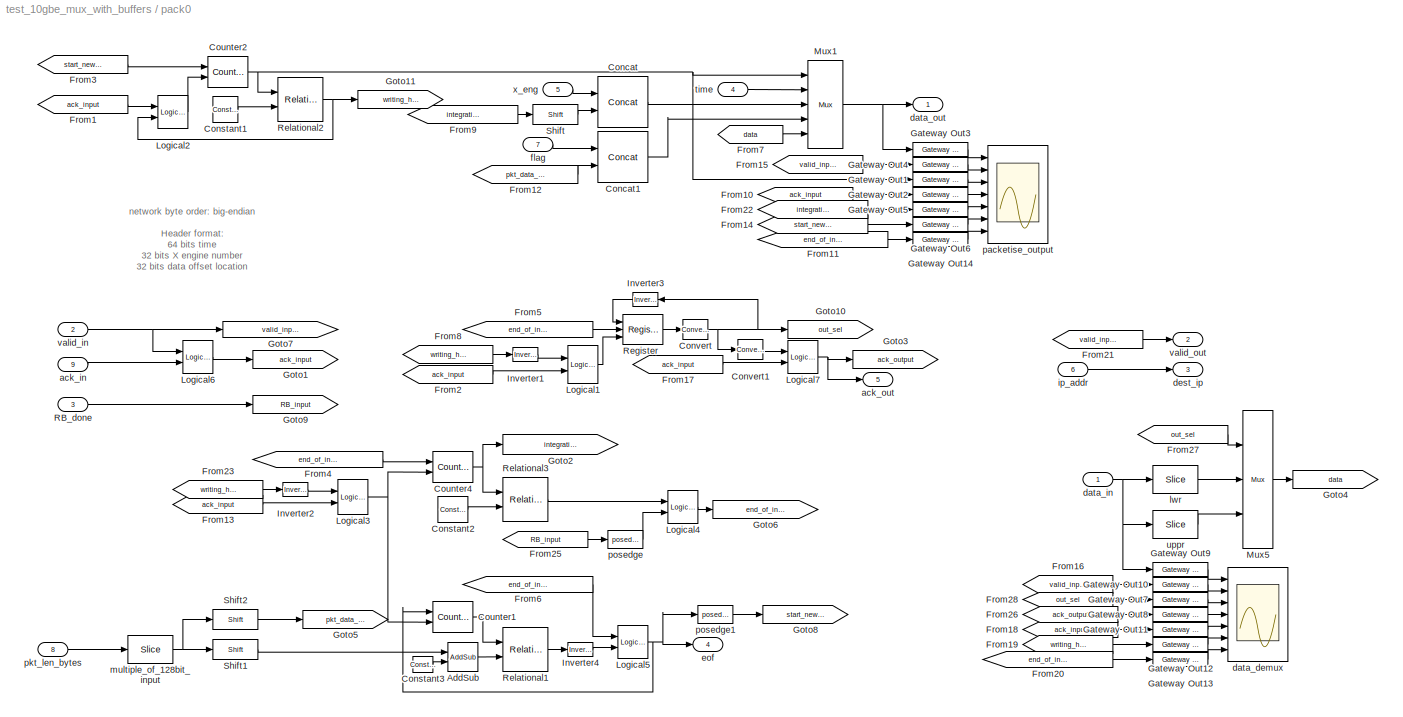
BLOCK [SubSystem] pack0
  MaskEnableString = on
  MaskIconFrame = on
  MaskIconOpaque = on
  MaskIconRotate = none
  MaskIconUnits = autoscale
  MaskPromptString = vector length
  MaskStyleString = edit
  MaskToolTipString = on
  MaskTunableValueString = on
  MaskValueString = 100
  MaskVariables = vector_len=@1;
  MaskVisibilityString = on
  MinAlgLoopOccurrences = off
  Ports = [9, 5]
  RTWSystemCode = Auto
  TreatAsAtomicUnit = off
BLOCK [Reference] pack0/AddSub  REF=xbsIndex_r3/AddSub
  Ports = [2, 1]
  SourceBlock = xbsIndex_r3/AddSub
  SourceType = Xilinx Adder/Subtractor
  arith_type = Unsigned
  bin_pt = 2
  dbl_ovrd = off
  en = off
  explicit_period = on
  gen_core = off
  latency = 0
  mode = Subtraction
  n_bits = 8
  overflow = Wrap
  period = 1
  pipeline = off
  precision = Full
  quantization = Truncate
  show_param = off
  use_carryin = off
  use_carryout = off
  use_core = on
  use_rpm = on
  xl_area = [0, 0, 0, 0, 0, 0, 0]
  xl_use_area = off
BLOCK [Reference] pack0/Concat  REF=xbsIndex_r3/Concat
  Ports = [2, 1]
  SourceBlock = xbsIndex_r3/Concat
  SourceType = Xilinx Bus Concatenator
  dbl_ovrd = off
  explicit_period = off
  num_inputs = 2
  period = 1
BLOCK [Reference] pack0/Concat1  REF=xbsIndex_r3/Concat
  Ports = [2, 1]
  SourceBlock = xbsIndex_r3/Concat
  SourceType = Xilinx Bus Concatenator
  dbl_ovrd = off
  explicit_period = off
  num_inputs = 2
  period = 1
BLOCK [Reference] pack0/Constant1  REF=xbsIndex_r3/Constant
  Ports = [0, 1]
  SourceBlock = xbsIndex_r3/Constant
  SourceType = Xilinx Constant Block
  arith_type = Unsigned
  bin_pt = 0
  carry = CIN
  const = 2
  dbl_ovrd = off
  equ = P=C
  explicit_period = off
  inp1 = P
  inp2 = PCIN>>17
  iostate = 0
  n_bits = 2
  opr = +
  opselect = C
  period = 1
BLOCK [Reference] pack0/Constant2  REF=xbsIndex_r3/Constant
  Ports = [0, 1]
  SourceBlock = xbsIndex_r3/Constant
  SourceType = Xilinx Constant Block
  arith_type = Unsigned
  bin_pt = 0
  carry = CIN
  const = 2*vector_len-1
  dbl_ovrd = off
  equ = P=C
  explicit_period = off
  inp1 = P
  inp2 = PCIN>>17
  iostate = 0
  n_bits = 32
  opr = +
  opselect = C
  period = 1
BLOCK [Reference] pack0/Constant3  REF=xbsIndex_r3/Constant
  Ports = [0, 1]
  SourceBlock = xbsIndex_r3/Constant
  SourceType = Xilinx Constant Block
  arith_type = Unsigned
  bin_pt = 0
  carry = CIN
  const = 2
  dbl_ovrd = off
  equ = P=C
  explicit_period = off
  inp1 = P
  inp2 = PCIN>>17
  iostate = 0
  n_bits = 32
  opr = +
  opselect = C
  period = 1
BLOCK [Reference] pack0/Convert  REF=xbsIndex_r3/Convert
  Ports = [1, 1]
  SourceBlock = xbsIndex_r3/Convert
  SourceType = Xilinx Converter Block
  arith_type = Unsigned
  bin_pt = 0
  dbl_ovrd = off
  explicit_period = off
  inserted_by_tool = off
  latency = 0
  n_bits = 1
  overflow = Wrap
  period = 1
  pipeline = off
  quantization = Truncate
  show_param = off
  xl_area = [0, 0, 0, 0, 0, 0, 0]
  xl_use_area = off
BLOCK [Reference] pack0/Convert1  REF=xbsIndex_r3/Convert
  Ports = [1, 1]
  SourceBlock = xbsIndex_r3/Convert
  SourceType = Xilinx Converter Block
  arith_type = Boolean
  bin_pt = 0
  dbl_ovrd = off
  explicit_period = off
  inserted_by_tool = off
  latency = 0
  n_bits = 1
  overflow = Wrap
  period = 1
  pipeline = off
  quantization = Truncate
  show_param = off
  xl_area = [0, 0, 0, 0, 0, 0, 0]
  xl_use_area = off
BLOCK [Reference] pack0/Counter1  REF=xbsIndex_r3/Counter
  Ports = [2, 1]
  SourceBlock = xbsIndex_r3/Counter
  SourceType = Xilinx Counter Block
  arith_type = Unsigned
  bin_pt = 0
  cnt_by_val = 1
  cnt_to = 1023
  cnt_type = Free Running
  dbl_ovrd = off
  en = on
  explicit_period = on
  gen_core = off
  load_pin = off
  n_bits = 32
  operation = Up
  period = 1
  rst = on
  show_param = off
  start_count = 0
  use_rpm = on
  xl_area = [0, 0, 0, 0, 0, 0, 0]
  xl_use_area = off
BLOCK [Reference] pack0/Counter2  REF=xbsIndex_r3/Counter
  Ports = [2, 1]
  SourceBlock = xbsIndex_r3/Counter
  SourceType = Xilinx Counter Block
  arith_type = Unsigned
  bin_pt = 0
  cnt_by_val = 1
  cnt_to = 1023
  cnt_type = Free Running
  dbl_ovrd = off
  en = on
  explicit_period = on
  gen_core = off
  load_pin = off
  n_bits = 2
  operation = Up
  period = 1
  rst = on
  show_param = off
  start_count = 0
  use_rpm = on
  xl_area = [0, 0, 0, 0, 0, 0, 0]
  xl_use_area = off
BLOCK [Reference] pack0/Counter4  REF=xbsIndex_r3/Counter
  Ports = [2, 1]
  SourceBlock = xbsIndex_r3/Counter
  SourceType = Xilinx Counter Block
  arith_type = Unsigned
  bin_pt = 0
  cnt_by_val = 1
  cnt_to = 1023
  cnt_type = Free Running
  dbl_ovrd = off
  en = on
  explicit_period = on
  gen_core = off
  load_pin = off
  n_bits = 32
  operation = Up
  period = 1
  rst = on
  show_param = off
  start_count = 0
  use_rpm = on
  xl_area = [0, 0, 0, 0, 0, 0, 0]
  xl_use_area = off
BLOCK [From] pack0/From1
  CloseFcn = tagdialog Close
  GotoTag = ack_input
BLOCK [From] pack0/From10
  CloseFcn = tagdialog Close
  GotoTag = ack_input
BLOCK [From] pack0/From11
  CloseFcn = tagdialog Close
  GotoTag = end_of_integration
BLOCK [From] pack0/From12
  CloseFcn = tagdialog Close
  GotoTag = pkt_data_size
BLOCK [From] pack0/From13
  CloseFcn = tagdialog Close
  GotoTag = ack_input
BLOCK [From] pack0/From14
  CloseFcn = tagdialog Close
  GotoTag = start_new_packet
BLOCK [From] pack0/From15
  CloseFcn = tagdialog Close
  GotoTag = valid_input
BLOCK [From] pack0/From16
  CloseFcn = tagdialog Close
  GotoTag = valid_input
BLOCK [From] pack0/From17
  CloseFcn = tagdialog Close
  GotoTag = ack_input
BLOCK [From] pack0/From18
  CloseFcn = tagdialog Close
  GotoTag = ack_input
BLOCK [From] pack0/From19
  CloseFcn = tagdialog Close
  GotoTag = writing_header
BLOCK [From] pack0/From2
  CloseFcn = tagdialog Close
  GotoTag = ack_input
BLOCK [From] pack0/From20
  CloseFcn = tagdialog Close
  GotoTag = end_of_integration
BLOCK [From] pack0/From21
  CloseFcn = tagdialog Close
  GotoTag = valid_input
BLOCK [From] pack0/From22
  CloseFcn = tagdialog Close
  GotoTag = integration_position
BLOCK [From] pack0/From23
  CloseFcn = tagdialog Close
  GotoTag = writing_header
BLOCK [From] pack0/From25
  CloseFcn = tagdialog Close
  GotoTag = RB_input
BLOCK [From] pack0/From26
  CloseFcn = tagdialog Close
  GotoTag = ack_output
BLOCK [From] pack0/From27
  CloseFcn = tagdialog Close
  GotoTag = out_sel
BLOCK [From] pack0/From28
  CloseFcn = tagdialog Close
  GotoTag = out_sel
BLOCK [From] pack0/From3
  CloseFcn = tagdialog Close
  GotoTag = start_new_packet
BLOCK [From] pack0/From4
  CloseFcn = tagdialog Close
  GotoTag = end_of_integration
BLOCK [From] pack0/From5
  CloseFcn = tagdialog Close
  GotoTag = end_of_integration
BLOCK [From] pack0/From6
  CloseFcn = tagdialog Close
  GotoTag = end_of_integration
BLOCK [From] pack0/From7
  CloseFcn = tagdialog Close
  GotoTag = data
BLOCK [From] pack0/From8
  CloseFcn = tagdialog Close
  GotoTag = writing_header
BLOCK [From] pack0/From9
  CloseFcn = tagdialog Close
  GotoTag = integration_position
BLOCK [Reference] pack0/Gateway Out1  REF=xbsIndex_r3/Gateway Out
  LOCs = {}
  Ports = [1, 1]
  SourceBlock = xbsIndex_r3/Gateway Out
  SourceType = Xilinx Gateway Out
  arith_type = Boolean
  bin_pt = 6
  hdl_port = on
  locs_specified = off
  nbits = 8
  needs_fixed_name = off
  output_type = Double
  overflow = Wrap
  quantization = Truncate
  show_param = off
  timing_constraint = None
  xl_area = [0, 0, 0, 0, 0, 0, 0]
  xl_use_area = off
BLOCK [Reference] pack0/Gateway Out10  REF=xbsIndex_r3/Gateway Out
  LOCs = {}
  Ports = [1, 1]
  SourceBlock = xbsIndex_r3/Gateway Out
  SourceType = Xilinx Gateway Out
  arith_type = Boolean
  bin_pt = 6
  hdl_port = on
  locs_specified = off
  nbits = 8
  needs_fixed_name = off
  output_type = Double
  overflow = Wrap
  quantization = Truncate
  show_param = off
  timing_constraint = None
  xl_area = [0, 0, 0, 0, 0, 0, 0]
  xl_use_area = off
BLOCK [Reference] pack0/Gateway Out11  REF=xbsIndex_r3/Gateway Out
  LOCs = {}
  Ports = [1, 1]
  SourceBlock = xbsIndex_r3/Gateway Out
  SourceType = Xilinx Gateway Out
  arith_type = Boolean
  bin_pt = 6
  hdl_port = on
  locs_specified = off
  nbits = 8
  needs_fixed_name = off
  output_type = Double
  overflow = Wrap
  quantization = Truncate
  show_param = off
  timing_constraint = None
  xl_area = [0, 0, 0, 0, 0, 0, 0]
  xl_use_area = off
BLOCK [Reference] pack0/Gateway Out12  REF=xbsIndex_r3/Gateway Out
  LOCs = {}
  Ports = [1, 1]
  SourceBlock = xbsIndex_r3/Gateway Out
  SourceType = Xilinx Gateway Out
  arith_type = Boolean
  bin_pt = 6
  hdl_port = on
  locs_specified = off
  nbits = 8
  needs_fixed_name = off
  output_type = Double
  overflow = Wrap
  quantization = Truncate
  show_param = off
  timing_constraint = None
  xl_area = [0, 0, 0, 0, 0, 0, 0]
  xl_use_area = off
BLOCK [Reference] pack0/Gateway Out13  REF=xbsIndex_r3/Gateway Out
  LOCs = {}
  Ports = [1, 1]
  SourceBlock = xbsIndex_r3/Gateway Out
  SourceType = Xilinx Gateway Out
  arith_type = Boolean
  bin_pt = 6
  hdl_port = on
  locs_specified = off
  nbits = 8
  needs_fixed_name = off
  output_type = Double
  overflow = Wrap
  quantization = Truncate
  show_param = off
  timing_constraint = None
  xl_area = [0, 0, 0, 0, 0, 0, 0]
  xl_use_area = off
BLOCK [Reference] pack0/Gateway Out14  REF=xbsIndex_r3/Gateway Out
  LOCs = {}
  Ports = [1, 1]
  SourceBlock = xbsIndex_r3/Gateway Out
  SourceType = Xilinx Gateway Out
  arith_type = Boolean
  bin_pt = 6
  hdl_port = on
  locs_specified = off
  nbits = 8
  needs_fixed_name = off
  output_type = Double
  overflow = Wrap
  quantization = Truncate
  show_param = off
  timing_constraint = None
  xl_area = [0, 0, 0, 0, 0, 0, 0]
  xl_use_area = off
BLOCK [Reference] pack0/Gateway Out2  REF=xbsIndex_r3/Gateway Out
  LOCs = {}
  Ports = [1, 1]
  SourceBlock = xbsIndex_r3/Gateway Out
  SourceType = Xilinx Gateway Out
  arith_type = Boolean
  bin_pt = 6
  hdl_port = on
  locs_specified = off
  nbits = 8
  needs_fixed_name = off
  output_type = Double
  overflow = Wrap
  quantization = Truncate
  show_param = off
  timing_constraint = None
  xl_area = [0, 0, 0, 0, 0, 0, 0]
  xl_use_area = off
BLOCK [Reference] pack0/Gateway Out3  REF=xbsIndex_r3/Gateway Out
  LOCs = {}
  Ports = [1, 1]
  SourceBlock = xbsIndex_r3/Gateway Out
  SourceType = Xilinx Gateway Out
  arith_type = Boolean
  bin_pt = 6
  hdl_port = on
  locs_specified = off
  nbits = 8
  needs_fixed_name = off
  output_type = Double
  overflow = Wrap
  quantization = Truncate
  show_param = off
  timing_constraint = None
  xl_area = [0, 0, 0, 0, 0, 0, 0]
  xl_use_area = off
BLOCK [Reference] pack0/Gateway Out4  REF=xbsIndex_r3/Gateway Out
  LOCs = {}
  Ports = [1, 1]
  SourceBlock = xbsIndex_r3/Gateway Out
  SourceType = Xilinx Gateway Out
  arith_type = Boolean
  bin_pt = 6
  hdl_port = on
  locs_specified = off
  nbits = 8
  needs_fixed_name = off
  output_type = Double
  overflow = Wrap
  quantization = Truncate
  show_param = off
  timing_constraint = None
  xl_area = [0, 0, 0, 0, 0, 0, 0]
  xl_use_area = off
BLOCK [Reference] pack0/Gateway Out5  REF=xbsIndex_r3/Gateway Out
  LOCs = {}
  Ports = [1, 1]
  SourceBlock = xbsIndex_r3/Gateway Out
  SourceType = Xilinx Gateway Out
  arith_type = Boolean
  bin_pt = 6
  hdl_port = on
  locs_specified = off
  nbits = 8
  needs_fixed_name = off
  output_type = Double
  overflow = Wrap
  quantization = Truncate
  show_param = off
  timing_constraint = None
  xl_area = [0, 0, 0, 0, 0, 0, 0]
  xl_use_area = off
BLOCK [Reference] pack0/Gateway Out6  REF=xbsIndex_r3/Gateway Out
  LOCs = {}
  Ports = [1, 1]
  SourceBlock = xbsIndex_r3/Gateway Out
  SourceType = Xilinx Gateway Out
  arith_type = Boolean
  bin_pt = 6
  hdl_port = on
  locs_specified = off
  nbits = 8
  needs_fixed_name = off
  output_type = Double
  overflow = Wrap
  quantization = Truncate
  show_param = off
  timing_constraint = None
  xl_area = [0, 0, 0, 0, 0, 0, 0]
  xl_use_area = off
BLOCK [Reference] pack0/Gateway Out7  REF=xbsIndex_r3/Gateway Out
  LOCs = {}
  Ports = [1, 1]
  SourceBlock = xbsIndex_r3/Gateway Out
  SourceType = Xilinx Gateway Out
  arith_type = Boolean
  bin_pt = 6
  hdl_port = on
  locs_specified = off
  nbits = 8
  needs_fixed_name = off
  output_type = Double
  overflow = Wrap
  quantization = Truncate
  show_param = off
  timing_constraint = None
  xl_area = [0, 0, 0, 0, 0, 0, 0]
  xl_use_area = off
BLOCK [Reference] pack0/Gateway Out8  REF=xbsIndex_r3/Gateway Out
  LOCs = {}
  Ports = [1, 1]
  SourceBlock = xbsIndex_r3/Gateway Out
  SourceType = Xilinx Gateway Out
  arith_type = Boolean
  bin_pt = 6
  hdl_port = on
  locs_specified = off
  nbits = 8
  needs_fixed_name = off
  output_type = Double
  overflow = Wrap
  quantization = Truncate
  show_param = off
  timing_constraint = None
  xl_area = [0, 0, 0, 0, 0, 0, 0]
  xl_use_area = off
BLOCK [Reference] pack0/Gateway Out9  REF=xbsIndex_r3/Gateway Out
  LOCs = {}
  Ports = [1, 1]
  SourceBlock = xbsIndex_r3/Gateway Out
  SourceType = Xilinx Gateway Out
  arith_type = Boolean
  bin_pt = 6
  hdl_port = on
  locs_specified = off
  nbits = 8
  needs_fixed_name = off
  output_type = Double
  overflow = Wrap
  quantization = Truncate
  show_param = off
  timing_constraint = None
  xl_area = [0, 0, 0, 0, 0, 0, 0]
  xl_use_area = off
BLOCK [Goto] pack0/Goto1
  GotoTag = ack_input
  TagVisibility = local
BLOCK [Goto] pack0/Goto10
  GotoTag = out_sel
  TagVisibility = local
BLOCK [Goto] pack0/Goto11
  GotoTag = writing_header
  TagVisibility = local
BLOCK [Goto] pack0/Goto2
  GotoTag = integration_position
  TagVisibility = local
BLOCK [Goto] pack0/Goto3
  GotoTag = ack_output
  TagVisibility = local
BLOCK [Goto] pack0/Goto4
  GotoTag = data
  TagVisibility = local
BLOCK [Goto] pack0/Goto5
  GotoTag = pkt_data_size
  TagVisibility = local
BLOCK [Goto] pack0/Goto6
  GotoTag = end_of_integration
  TagVisibility = local
BLOCK [Goto] pack0/Goto7
  GotoTag = valid_input
  TagVisibility = local
BLOCK [Goto] pack0/Goto8
  GotoTag = start_new_packet
  TagVisibility = local
BLOCK [Goto] pack0/Goto9
  GotoTag = RB_input
  TagVisibility = local
BLOCK [Reference] pack0/Inverter1  REF=xbsIndex_r3/Inverter
  Ports = [1, 1]
  SourceBlock = xbsIndex_r3/Inverter
  SourceType = Xilinx Inverter
  dbl_ovrd = off
  en = off
  explicit_period = off
  latency = 0
  period = 1
  show_param = off
  xl_area = [0, 0, 0, 0, 0, 0, 0]
  xl_use_area = off
BLOCK [Reference] pack0/Inverter2  REF=xbsIndex_r3/Inverter
  Ports = [1, 1]
  SourceBlock = xbsIndex_r3/Inverter
  SourceType = Xilinx Inverter
  dbl_ovrd = off
  en = off
  explicit_period = off
  latency = 0
  period = 1
  show_param = off
  xl_area = [0, 0, 0, 0, 0, 0, 0]
  xl_use_area = off
BLOCK [Reference] pack0/Inverter3  REF=xbsIndex_r3/Inverter
  Ports = [1, 1]
  SourceBlock = xbsIndex_r3/Inverter
  SourceType = Xilinx Inverter
  dbl_ovrd = off
  en = off
  explicit_period = on
  latency = 0
  period = 1
  show_param = off
  xl_area = [0, 0, 0, 0, 0, 0, 0]
  xl_use_area = off
BLOCK [Reference] pack0/Inverter4  REF=xbsIndex_r3/Inverter
  Ports = [1, 1]
  SourceBlock = xbsIndex_r3/Inverter
  SourceType = Xilinx Inverter
  dbl_ovrd = off
  en = off
  explicit_period = off
  latency = 0
  period = 1
  show_param = off
  xl_area = [0, 0, 0, 0, 0, 0, 0]
  xl_use_area = off
BLOCK [Reference] pack0/Logical1  REF=xbsIndex_r3/Logical
  Ports = [2, 1]
  SourceBlock = xbsIndex_r3/Logical
  SourceType = Xilinx Logical Block
  align_bp = on
  arith_type = Unsigned
  bin_pt = 2
  dbl_ovrd = off
  en = off
  explicit_period = off
  inputs = 2
  latency = 0
  logical_function = AND
  n_bits = 8
  period = 1
  precision = Full
  show_param = off
  xl_area = [0, 0, 0, 0, 0, 0, 0]
  xl_use_area = off
BLOCK [Reference] pack0/Logical2  REF=xbsIndex_r3/Logical
  Ports = [2, 1]
  SourceBlock = xbsIndex_r3/Logical
  SourceType = Xilinx Logical Block
  align_bp = on
  arith_type = Unsigned
  bin_pt = 2
  dbl_ovrd = off
  en = off
  explicit_period = off
  inputs = 2
  latency = 0
  logical_function = AND
  n_bits = 8
  period = 1
  precision = Full
  show_param = off
  xl_area = [0, 0, 0, 0, 0, 0, 0]
  xl_use_area = off
BLOCK [Reference] pack0/Logical3  REF=xbsIndex_r3/Logical
  Ports = [2, 1]
  SourceBlock = xbsIndex_r3/Logical
  SourceType = Xilinx Logical Block
  align_bp = on
  arith_type = Unsigned
  bin_pt = 2
  dbl_ovrd = off
  en = off
  explicit_period = off
  inputs = 2
  latency = 0
  logical_function = AND
  n_bits = 8
  period = 1
  precision = Full
  show_param = off
  xl_area = [0, 0, 0, 0, 0, 0, 0]
  xl_use_area = off
BLOCK [Reference] pack0/Logical4  REF=xbsIndex_r3/Logical
  Ports = [2, 1]
  SourceBlock = xbsIndex_r3/Logical
  SourceType = Xilinx Logical Block
  align_bp = on
  arith_type = Unsigned
  bin_pt = 2
  dbl_ovrd = off
  en = off
  explicit_period = off
  inputs = 2
  latency = 0
  logical_function = OR
  n_bits = 8
  period = 1
  precision = Full
  show_param = off
  xl_area = [0, 0, 0, 0, 0, 0, 0]
  xl_use_area = off
BLOCK [Reference] pack0/Logical5  REF=xbsIndex_r3/Logical
  Ports = [2, 1]
  SourceBlock = xbsIndex_r3/Logical
  SourceType = Xilinx Logical Block
  align_bp = on
  arith_type = Unsigned
  bin_pt = 2
  dbl_ovrd = off
  en = off
  explicit_period = off
  inputs = 2
  latency = 0
  logical_function = OR
  n_bits = 8
  period = 1
  precision = Full
  show_param = off
  xl_area = [0, 0, 0, 0, 0, 0, 0]
  xl_use_area = off
BLOCK [Reference] pack0/Logical6  REF=xbsIndex_r3/Logical
  Ports = [2, 1]
  SourceBlock = xbsIndex_r3/Logical
  SourceType = Xilinx Logical Block
  align_bp = on
  arith_type = Unsigned
  bin_pt = 2
  dbl_ovrd = off
  en = off
  explicit_period = off
  inputs = 2
  latency = 0
  logical_function = AND
  n_bits = 8
  period = 1
  precision = Full
  show_param = off
  xl_area = [0, 0, 0, 0, 0, 0, 0]
  xl_use_area = off
BLOCK [Reference] pack0/Logical7  REF=xbsIndex_r3/Logical
  Ports = [2, 1]
  SourceBlock = xbsIndex_r3/Logical
  SourceType = Xilinx Logical Block
  align_bp = on
  arith_type = Unsigned
  bin_pt = 2
  dbl_ovrd = off
  en = off
  explicit_period = off
  inputs = 2
  latency = 0
  logical_function = AND
  n_bits = 8
  period = 1
  precision = Full
  show_param = off
  xl_area = [0, 0, 0, 0, 0, 0, 0]
  xl_use_area = off
BLOCK [Reference] pack0/Mux1  REF=xbsIndex_r3/Mux
  Ports = [5, 1]
  SourceBlock = xbsIndex_r3/Mux
  SourceType = Xilinx Multiplexer Block
  arith_type = Signed  (2's comp)
  bin_pt = 2
  dbl_ovrd = off
  en = off
  explicit_period = off
  gen_core = off
  inputs = 4
  latency = 0
  mux_type = off
  n_bits = 8
  overflow = Wrap
  period = 1
  precision = Full
  quantization = Truncate
  show_param = off
  use_rpm = off
  xl_area = [0, 0, 0, 0, 0, 0, 0]
  xl_use_area = off
BLOCK [Reference] pack0/Mux5  REF=xbsIndex_r3/Mux
  Ports = [3, 1]
  SourceBlock = xbsIndex_r3/Mux
  SourceType = Xilinx Multiplexer Block
  arith_type = Signed  (2's comp)
  bin_pt = 2
  dbl_ovrd = off
  en = off
  explicit_period = on
  gen_core = off
  inputs = 2
  latency = 0
  mux_type = off
  n_bits = 8
  overflow = Wrap
  period = 1
  precision = Full
  quantization = Truncate
  show_param = off
  use_rpm = off
  xl_area = [0, 0, 0, 0, 0, 0, 0]
  xl_use_area = off
BLOCK [Inport] pack0/RB_done
  IconDisplay = Port number
  LatchInput = off
  Port = 3
BLOCK [Reference] pack0/Register  REF=xbsIndex_r3/Register
  Ports = [3, 1]
  SourceBlock = xbsIndex_r3/Register
  SourceType = Xilinx Register Block
  dbl_ovrd = off
  en = on
  explicit_period = on
  init = 0
  out_en = off
  period = 1
  reg_only_valid = off
  rst = on
  show_param = off
  xl_area = [0, 0, 0, 0, 0, 0, 0]
  xl_use_area = off
BLOCK [Reference] pack0/Relational1  REF=xbsIndex_r3/Relational
  Ports = [2, 1]
  SourceBlock = xbsIndex_r3/Relational
  SourceType = Xilinx Relational Block
  dbl_ovrd = off
  en = off
  explicit_period = off
  latency = 0
  mode = a<=b
  period = 1
  show_param = off
  xl_area = [0, 0, 0, 0, 0, 0, 0]
  xl_use_area = off
BLOCK [Reference] pack0/Relational2  REF=xbsIndex_r3/Relational
  Ports = [2, 1]
  SourceBlock = xbsIndex_r3/Relational
  SourceType = Xilinx Relational Block
  dbl_ovrd = off
  en = off
  explicit_period = off
  latency = 0
  mode = a<=b
  period = 1
  show_param = off
  xl_area = [0, 0, 0, 0, 0, 0, 0]
  xl_use_area = off
BLOCK [Reference] pack0/Relational3  REF=xbsIndex_r3/Relational
  Ports = [2, 1]
  SourceBlock = xbsIndex_r3/Relational
  SourceType = Xilinx Relational Block
  dbl_ovrd = off
  en = off
  explicit_period = off
  latency = 0
  mode = a>=b
  period = 1
  show_param = off
  xl_area = [0, 0, 0, 0, 0, 0, 0]
  xl_use_area = off
BLOCK [Reference] pack0/Shift  REF=xbsIndex_r3/Shift
  Ports = [1, 1]
  SourceBlock = xbsIndex_r3/Shift
  SourceType = Xilinx Shift Block
  arith_type = Signed  (2's comp)
  bin_pt = 2
  dbl_ovrd = off
  en = off
  explicit_period = off
  latency = 0
  n_bits = 8
  overflow = Wrap
  period = 1
  precision = Full
  quantization = Truncate
  shift_bits = 3
  shift_dir = Left
  show_param = off
  xl_area = [0, 0, 0, 0, 0, 0, 0]
  xl_use_area = off
BLOCK [Reference] pack0/Shift1  REF=xbsIndex_r3/Shift
  Ports = [1, 1]
  SourceBlock = xbsIndex_r3/Shift
  SourceType = Xilinx Shift Block
  arith_type = Signed  (2's comp)
  bin_pt = 2
  dbl_ovrd = off
  en = off
  explicit_period = off
  latency = 0
  n_bits = 8
  overflow = Wrap
  period = 1
  precision = Full
  quantization = Truncate
  shift_bits = 1
  shift_dir = Left
  show_param = off
  xl_area = [0, 0, 0, 0, 0, 0, 0]
  xl_use_area = off
BLOCK [Reference] pack0/Shift2  REF=xbsIndex_r3/Shift
  Ports = [1, 1]
  SourceBlock = xbsIndex_r3/Shift
  SourceType = Xilinx Shift Block
  arith_type = Signed  (2's comp)
  bin_pt = 2
  dbl_ovrd = off
  en = off
  explicit_period = off
  latency = 0
  n_bits = 8
  overflow = Wrap
  period = 1
  precision = Full
  quantization = Truncate
  shift_bits = 4
  shift_dir = Left
  show_param = off
  xl_area = [0, 0, 0, 0, 0, 0, 0]
  xl_use_area = off
BLOCK [Inport] pack0/ack_in
  IconDisplay = Port number
  LatchInput = off
  Port = 9
BLOCK [Outport] pack0/ack_out
  BusOutputAsStruct = off
  IconDisplay = Port number
  Port = 5
BLOCK [Scope] pack0/data_demux
  DataFormat = StructureWithTime
  LimitDataPoints = off
  NumInputPorts = 7
  Ports = [7]
  SaveName = ScopeData3
  YMax = 453.6~1~1~1~1~5~5
  YMin = 410.4~-1~-1~-1~0~-5~-5
  ZoomMode = xonly
BLOCK [Inport] pack0/data_in
  IconDisplay = Port number
  LatchInput = off
  Port = 1
BLOCK [Outport] pack0/data_out
  BusOutputAsStruct = off
  IconDisplay = Port number
BLOCK [Outport] pack0/dest_ip
  BusOutputAsStruct = off
  IconDisplay = Port number
  Port = 3
BLOCK [Outport] pack0/eof
  BusOutputAsStruct = off
  IconDisplay = Port number
  Port = 4
BLOCK [Inport] pack0/flag
  IconDisplay = Port number
  LatchInput = off
  Port = 7
BLOCK [Inport] pack0/ip_addr
  IconDisplay = Port number
  LatchInput = off
  Port = 6
BLOCK [Reference] pack0/lwr  REF=xbsIndex_r3/Slice
  Ports = [1, 1]
  SourceBlock = xbsIndex_r3/Slice
  SourceType = Xilinx Slice Block
  base0 = LSB of Input
  base1 = MSB of Input
  bit0 = 0
  bit1 = 0
  boolean_output = off
  dbl_ovrd = off
  explicit_period = off
  mode = Lower Bit Location + Width
  nbits = 64
  period = 1
BLOCK [Reference] pack0/multiple_of_128bit_input  REF=xbsIndex_r3/Slice
  Ports = [1, 1]
  SourceBlock = xbsIndex_r3/Slice
  SourceType = Xilinx Slice Block
  base0 = LSB of Input
  base1 = MSB of Input
  bit0 = 4
  bit1 = 0
  boolean_output = off
  dbl_ovrd = off
  explicit_period = off
  mode = Two Bit Locations
  nbits = 64
  period = 1
BLOCK [Scope] pack0/packetise_output
  DataFormat = StructureWithTime
  LimitDataPoints = off
  NumInputPorts = 7
  Ports = [7]
  YMax = 453.6~1~1~1~1~5~5
  YMin = 410.4~-1~-1~-1~0~-5~-5
  ZoomMode = yonly
BLOCK [Inport] pack0/pkt_len_bytes
  IconDisplay = Port number
  LatchInput = off
  Port = 8
BLOCK [Reference] pack0/posedge  REF=casper_library/Misc/posedge  (lib defined in mdl_138b2fc3435f, mdl_4ed325b712b3, +2 more)
  Ports = [1, 1]
  ShowPortLabels = on
  SourceBlock = casper_library/Misc/posedge
  SourceType = posedge
  Tag = Rising Edge Detector
BLOCK [Reference] pack0/posedge1  REF=casper_library/Misc/posedge  (lib defined in mdl_138b2fc3435f, mdl_4ed325b712b3, +2 more)
  Ports = [1, 1]
  ShowPortLabels = on
  SourceBlock = casper_library/Misc/posedge
  SourceType = posedge
  Tag = Rising Edge Detector
BLOCK [Inport] pack0/time
  IconDisplay = Port number
  LatchInput = off
  Port = 4
BLOCK [Reference] pack0/uppr  REF=xbsIndex_r3/Slice
  Ports = [1, 1]
  SourceBlock = xbsIndex_r3/Slice
  SourceType = Xilinx Slice Block
  base0 = LSB of Input
  base1 = MSB of Input
  bit0 = 0
  bit1 = 0
  boolean_output = off
  dbl_ovrd = off
  explicit_period = off
  mode = Upper Bit Location + Width
  nbits = 64
  period = 1
BLOCK [Inport] pack0/valid_in
  IconDisplay = Port number
  LatchInput = off
  Port = 2
BLOCK [Outport] pack0/valid_out
  BusOutputAsStruct = off
  IconDisplay = Port number
  Port = 2
BLOCK [Inport] pack0/x_eng
  IconDisplay = Port number
  LatchInput = off
  Port = 5
BLOCK [Scope] pack0_buff
  DataFormat = StructureWithTime
  LimitDataPoints = off
  NumInputPorts = 6
  Ports = [6]
  SaveName = ScopeData16
  YMax = 453.6~1~1~1~1~5
  YMin = 410.4~-1~-1~-1~0~-5
  ZoomMode = xonly
BLOCK [Scope] pack0_out
  DataFormat = StructureWithTime
  LimitDataPoints = off
  NumInputPorts = 6
  Ports = [6]
  SaveName = ScopeData7
  YMax = 453.6~1~1~1~1~5
  YMin = 410.4~-1~-1~-1~0~-5
  ZoomMode = yonly
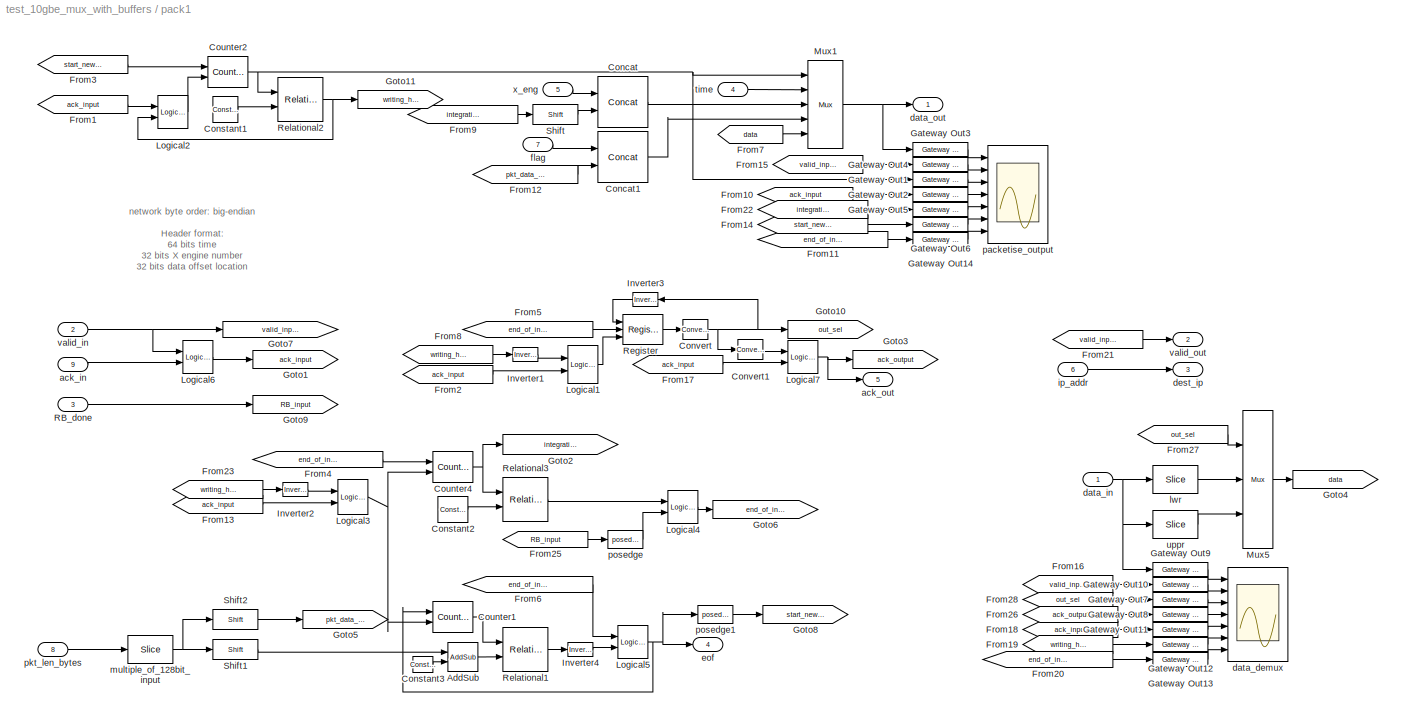
BLOCK [SubSystem] pack1
  MaskEnableString = on
  MaskIconFrame = on
  MaskIconOpaque = on
  MaskIconRotate = none
  MaskIconUnits = autoscale
  MaskPromptString = vector length
  MaskStyleString = edit
  MaskToolTipString = on
  MaskTunableValueString = on
  MaskValueString = 100
  MaskVariables = vector_len=@1;
  MaskVisibilityString = on
  MinAlgLoopOccurrences = off
  Ports = [9, 5]
  RTWSystemCode = Auto
  TreatAsAtomicUnit = off
BLOCK [Reference] pack1/AddSub  REF=xbsIndex_r3/AddSub
  Ports = [2, 1]
  SourceBlock = xbsIndex_r3/AddSub
  SourceType = Xilinx Adder/Subtractor
  arith_type = Unsigned
  bin_pt = 2
  dbl_ovrd = off
  en = off
  explicit_period = on
  gen_core = off
  latency = 0
  mode = Subtraction
  n_bits = 8
  overflow = Wrap
  period = 1
  pipeline = off
  precision = Full
  quantization = Truncate
  show_param = off
  use_carryin = off
  use_carryout = off
  use_core = on
  use_rpm = on
  xl_area = [0, 0, 0, 0, 0, 0, 0]
  xl_use_area = off
BLOCK [Reference] pack1/Concat  REF=xbsIndex_r3/Concat
  Ports = [2, 1]
  SourceBlock = xbsIndex_r3/Concat
  SourceType = Xilinx Bus Concatenator
  dbl_ovrd = off
  explicit_period = off
  num_inputs = 2
  period = 1
BLOCK [Reference] pack1/Concat1  REF=xbsIndex_r3/Concat
  Ports = [2, 1]
  SourceBlock = xbsIndex_r3/Concat
  SourceType = Xilinx Bus Concatenator
  dbl_ovrd = off
  explicit_period = off
  num_inputs = 2
  period = 1
BLOCK [Reference] pack1/Constant1  REF=xbsIndex_r3/Constant
  Ports = [0, 1]
  SourceBlock = xbsIndex_r3/Constant
  SourceType = Xilinx Constant Block
  arith_type = Unsigned
  bin_pt = 0
  carry = CIN
  const = 2
  dbl_ovrd = off
  equ = P=C
  explicit_period = off
  inp1 = P
  inp2 = PCIN>>17
  iostate = 0
  n_bits = 2
  opr = +
  opselect = C
  period = 1
BLOCK [Reference] pack1/Constant2  REF=xbsIndex_r3/Constant
  Ports = [0, 1]
  SourceBlock = xbsIndex_r3/Constant
  SourceType = Xilinx Constant Block
  arith_type = Unsigned
  bin_pt = 0
  carry = CIN
  const = 2*vector_len-1
  dbl_ovrd = off
  equ = P=C
  explicit_period = off
  inp1 = P
  inp2 = PCIN>>17
  iostate = 0
  n_bits = 32
  opr = +
  opselect = C
  period = 1
BLOCK [Reference] pack1/Constant3  REF=xbsIndex_r3/Constant
  Ports = [0, 1]
  SourceBlock = xbsIndex_r3/Constant
  SourceType = Xilinx Constant Block
  arith_type = Unsigned
  bin_pt = 0
  carry = CIN
  const = 2
  dbl_ovrd = off
  equ = P=C
  explicit_period = off
  inp1 = P
  inp2 = PCIN>>17
  iostate = 0
  n_bits = 32
  opr = +
  opselect = C
  period = 1
BLOCK [Reference] pack1/Convert  REF=xbsIndex_r3/Convert
  Ports = [1, 1]
  SourceBlock = xbsIndex_r3/Convert
  SourceType = Xilinx Converter Block
  arith_type = Unsigned
  bin_pt = 0
  dbl_ovrd = off
  explicit_period = off
  inserted_by_tool = off
  latency = 0
  n_bits = 1
  overflow = Wrap
  period = 1
  pipeline = off
  quantization = Truncate
  show_param = off
  xl_area = [0, 0, 0, 0, 0, 0, 0]
  xl_use_area = off
BLOCK [Reference] pack1/Convert1  REF=xbsIndex_r3/Convert
  Ports = [1, 1]
  SourceBlock = xbsIndex_r3/Convert
  SourceType = Xilinx Converter Block
  arith_type = Boolean
  bin_pt = 0
  dbl_ovrd = off
  explicit_period = off
  inserted_by_tool = off
  latency = 0
  n_bits = 1
  overflow = Wrap
  period = 1
  pipeline = off
  quantization = Truncate
  show_param = off
  xl_area = [0, 0, 0, 0, 0, 0, 0]
  xl_use_area = off
BLOCK [Reference] pack1/Counter1  REF=xbsIndex_r3/Counter
  Ports = [2, 1]
  SourceBlock = xbsIndex_r3/Counter
  SourceType = Xilinx Counter Block
  arith_type = Unsigned
  bin_pt = 0
  cnt_by_val = 1
  cnt_to = 1023
  cnt_type = Free Running
  dbl_ovrd = off
  en = on
  explicit_period = on
  gen_core = off
  load_pin = off
  n_bits = 32
  operation = Up
  period = 1
  rst = on
  show_param = off
  start_count = 0
  use_rpm = on
  xl_area = [0, 0, 0, 0, 0, 0, 0]
  xl_use_area = off
BLOCK [Reference] pack1/Counter2  REF=xbsIndex_r3/Counter
  Ports = [2, 1]
  SourceBlock = xbsIndex_r3/Counter
  SourceType = Xilinx Counter Block
  arith_type = Unsigned
  bin_pt = 0
  cnt_by_val = 1
  cnt_to = 1023
  cnt_type = Free Running
  dbl_ovrd = off
  en = on
  explicit_period = on
  gen_core = off
  load_pin = off
  n_bits = 2
  operation = Up
  period = 1
  rst = on
  show_param = off
  start_count = 0
  use_rpm = on
  xl_area = [0, 0, 0, 0, 0, 0, 0]
  xl_use_area = off
BLOCK [Reference] pack1/Counter4  REF=xbsIndex_r3/Counter
  Ports = [2, 1]
  SourceBlock = xbsIndex_r3/Counter
  SourceType = Xilinx Counter Block
  arith_type = Unsigned
  bin_pt = 0
  cnt_by_val = 1
  cnt_to = 1023
  cnt_type = Free Running
  dbl_ovrd = off
  en = on
  explicit_period = on
  gen_core = off
  load_pin = off
  n_bits = 32
  operation = Up
  period = 1
  rst = on
  show_param = off
  start_count = 0
  use_rpm = on
  xl_area = [0, 0, 0, 0, 0, 0, 0]
  xl_use_area = off
BLOCK [From] pack1/From1
  CloseFcn = tagdialog Close
  GotoTag = ack_input
BLOCK [From] pack1/From10
  CloseFcn = tagdialog Close
  GotoTag = ack_input
BLOCK [From] pack1/From11
  CloseFcn = tagdialog Close
  GotoTag = end_of_integration
BLOCK [From] pack1/From12
  CloseFcn = tagdialog Close
  GotoTag = pkt_data_size
BLOCK [From] pack1/From13
  CloseFcn = tagdialog Close
  GotoTag = ack_input
BLOCK [From] pack1/From14
  CloseFcn = tagdialog Close
  GotoTag = start_new_packet
BLOCK [From] pack1/From15
  CloseFcn = tagdialog Close
  GotoTag = valid_input
BLOCK [From] pack1/From16
  CloseFcn = tagdialog Close
  GotoTag = valid_input
BLOCK [From] pack1/From17
  CloseFcn = tagdialog Close
  GotoTag = ack_input
BLOCK [From] pack1/From18
  CloseFcn = tagdialog Close
  GotoTag = ack_input
BLOCK [From] pack1/From19
  CloseFcn = tagdialog Close
  GotoTag = writing_header
BLOCK [From] pack1/From2
  CloseFcn = tagdialog Close
  GotoTag = ack_input
BLOCK [From] pack1/From20
  CloseFcn = tagdialog Close
  GotoTag = end_of_integration
BLOCK [From] pack1/From21
  CloseFcn = tagdialog Close
  GotoTag = valid_input
BLOCK [From] pack1/From22
  CloseFcn = tagdialog Close
  GotoTag = integration_position
BLOCK [From] pack1/From23
  CloseFcn = tagdialog Close
  GotoTag = writing_header
BLOCK [From] pack1/From25
  CloseFcn = tagdialog Close
  GotoTag = RB_input
BLOCK [From] pack1/From26
  CloseFcn = tagdialog Close
  GotoTag = ack_output
BLOCK [From] pack1/From27
  CloseFcn = tagdialog Close
  GotoTag = out_sel
BLOCK [From] pack1/From28
  CloseFcn = tagdialog Close
  GotoTag = out_sel
BLOCK [From] pack1/From3
  CloseFcn = tagdialog Close
  GotoTag = start_new_packet
BLOCK [From] pack1/From4
  CloseFcn = tagdialog Close
  GotoTag = end_of_integration
BLOCK [From] pack1/From5
  CloseFcn = tagdialog Close
  GotoTag = end_of_integration
BLOCK [From] pack1/From6
  CloseFcn = tagdialog Close
  GotoTag = end_of_integration
BLOCK [From] pack1/From7
  CloseFcn = tagdialog Close
  GotoTag = data
BLOCK [From] pack1/From8
  CloseFcn = tagdialog Close
  GotoTag = writing_header
BLOCK [From] pack1/From9
  CloseFcn = tagdialog Close
  GotoTag = integration_position
BLOCK [Reference] pack1/Gateway Out1  REF=xbsIndex_r3/Gateway Out
  LOCs = {}
  Ports = [1, 1]
  SourceBlock = xbsIndex_r3/Gateway Out
  SourceType = Xilinx Gateway Out
  arith_type = Boolean
  bin_pt = 6
  hdl_port = on
  locs_specified = off
  nbits = 8
  needs_fixed_name = off
  output_type = Double
  overflow = Wrap
  quantization = Truncate
  show_param = off
  timing_constraint = None
  xl_area = [0, 0, 0, 0, 0, 0, 0]
  xl_use_area = off
BLOCK [Reference] pack1/Gateway Out10  REF=xbsIndex_r3/Gateway Out
  LOCs = {}
  Ports = [1, 1]
  SourceBlock = xbsIndex_r3/Gateway Out
  SourceType = Xilinx Gateway Out
  arith_type = Boolean
  bin_pt = 6
  hdl_port = on
  locs_specified = off
  nbits = 8
  needs_fixed_name = off
  output_type = Double
  overflow = Wrap
  quantization = Truncate
  show_param = off
  timing_constraint = None
  xl_area = [0, 0, 0, 0, 0, 0, 0]
  xl_use_area = off
BLOCK [Reference] pack1/Gateway Out11  REF=xbsIndex_r3/Gateway Out
  LOCs = {}
  Ports = [1, 1]
  SourceBlock = xbsIndex_r3/Gateway Out
  SourceType = Xilinx Gateway Out
  arith_type = Boolean
  bin_pt = 6
  hdl_port = on
  locs_specified = off
  nbits = 8
  needs_fixed_name = off
  output_type = Double
  overflow = Wrap
  quantization = Truncate
  show_param = off
  timing_constraint = None
  xl_area = [0, 0, 0, 0, 0, 0, 0]
  xl_use_area = off
BLOCK [Reference] pack1/Gateway Out12  REF=xbsIndex_r3/Gateway Out
  LOCs = {}
  Ports = [1, 1]
  SourceBlock = xbsIndex_r3/Gateway Out
  SourceType = Xilinx Gateway Out
  arith_type = Boolean
  bin_pt = 6
  hdl_port = on
  locs_specified = off
  nbits = 8
  needs_fixed_name = off
  output_type = Double
  overflow = Wrap
  quantization = Truncate
  show_param = off
  timing_constraint = None
  xl_area = [0, 0, 0, 0, 0, 0, 0]
  xl_use_area = off
BLOCK [Reference] pack1/Gateway Out13  REF=xbsIndex_r3/Gateway Out
  LOCs = {}
  Ports = [1, 1]
  SourceBlock = xbsIndex_r3/Gateway Out
  SourceType = Xilinx Gateway Out
  arith_type = Boolean
  bin_pt = 6
  hdl_port = on
  locs_specified = off
  nbits = 8
  needs_fixed_name = off
  output_type = Double
  overflow = Wrap
  quantization = Truncate
  show_param = off
  timing_constraint = None
  xl_area = [0, 0, 0, 0, 0, 0, 0]
  xl_use_area = off
BLOCK [Reference] pack1/Gateway Out14  REF=xbsIndex_r3/Gateway Out
  LOCs = {}
  Ports = [1, 1]
  SourceBlock = xbsIndex_r3/Gateway Out
  SourceType = Xilinx Gateway Out
  arith_type = Boolean
  bin_pt = 6
  hdl_port = on
  locs_specified = off
  nbits = 8
  needs_fixed_name = off
  output_type = Double
  overflow = Wrap
  quantization = Truncate
  show_param = off
  timing_constraint = None
  xl_area = [0, 0, 0, 0, 0, 0, 0]
  xl_use_area = off
BLOCK [Reference] pack1/Gateway Out2  REF=xbsIndex_r3/Gateway Out
  LOCs = {}
  Ports = [1, 1]
  SourceBlock = xbsIndex_r3/Gateway Out
  SourceType = Xilinx Gateway Out
  arith_type = Boolean
  bin_pt = 6
  hdl_port = on
  locs_specified = off
  nbits = 8
  needs_fixed_name = off
  output_type = Double
  overflow = Wrap
  quantization = Truncate
  show_param = off
  timing_constraint = None
  xl_area = [0, 0, 0, 0, 0, 0, 0]
  xl_use_area = off
BLOCK [Reference] pack1/Gateway Out3  REF=xbsIndex_r3/Gateway Out
  LOCs = {}
  Ports = [1, 1]
  SourceBlock = xbsIndex_r3/Gateway Out
  SourceType = Xilinx Gateway Out
  arith_type = Boolean
  bin_pt = 6
  hdl_port = on
  locs_specified = off
  nbits = 8
  needs_fixed_name = off
  output_type = Double
  overflow = Wrap
  quantization = Truncate
  show_param = off
  timing_constraint = None
  xl_area = [0, 0, 0, 0, 0, 0, 0]
  xl_use_area = off
BLOCK [Reference] pack1/Gateway Out4  REF=xbsIndex_r3/Gateway Out
  LOCs = {}
  Ports = [1, 1]
  SourceBlock = xbsIndex_r3/Gateway Out
  SourceType = Xilinx Gateway Out
  arith_type = Boolean
  bin_pt = 6
  hdl_port = on
  locs_specified = off
  nbits = 8
  needs_fixed_name = off
  output_type = Double
  overflow = Wrap
  quantization = Truncate
  show_param = off
  timing_constraint = None
  xl_area = [0, 0, 0, 0, 0, 0, 0]
  xl_use_area = off
BLOCK [Reference] pack1/Gateway Out5  REF=xbsIndex_r3/Gateway Out
  LOCs = {}
  Ports = [1, 1]
  SourceBlock = xbsIndex_r3/Gateway Out
  SourceType = Xilinx Gateway Out
  arith_type = Boolean
  bin_pt = 6
  hdl_port = on
  locs_specified = off
  nbits = 8
  needs_fixed_name = off
  output_type = Double
  overflow = Wrap
  quantization = Truncate
  show_param = off
  timing_constraint = None
  xl_area = [0, 0, 0, 0, 0, 0, 0]
  xl_use_area = off
BLOCK [Reference] pack1/Gateway Out6  REF=xbsIndex_r3/Gateway Out
  LOCs = {}
  Ports = [1, 1]
  SourceBlock = xbsIndex_r3/Gateway Out
  SourceType = Xilinx Gateway Out
  arith_type = Boolean
  bin_pt = 6
  hdl_port = on
  locs_specified = off
  nbits = 8
  needs_fixed_name = off
  output_type = Double
  overflow = Wrap
  quantization = Truncate
  show_param = off
  timing_constraint = None
  xl_area = [0, 0, 0, 0, 0, 0, 0]
  xl_use_area = off
BLOCK [Reference] pack1/Gateway Out7  REF=xbsIndex_r3/Gateway Out
  LOCs = {}
  Ports = [1, 1]
  SourceBlock = xbsIndex_r3/Gateway Out
  SourceType = Xilinx Gateway Out
  arith_type = Boolean
  bin_pt = 6
  hdl_port = on
  locs_specified = off
  nbits = 8
  needs_fixed_name = off
  output_type = Double
  overflow = Wrap
  quantization = Truncate
  show_param = off
  timing_constraint = None
  xl_area = [0, 0, 0, 0, 0, 0, 0]
  xl_use_area = off
BLOCK [Reference] pack1/Gateway Out8  REF=xbsIndex_r3/Gateway Out
  LOCs = {}
  Ports = [1, 1]
  SourceBlock = xbsIndex_r3/Gateway Out
  SourceType = Xilinx Gateway Out
  arith_type = Boolean
  bin_pt = 6
  hdl_port = on
  locs_specified = off
  nbits = 8
  needs_fixed_name = off
  output_type = Double
  overflow = Wrap
  quantization = Truncate
  show_param = off
  timing_constraint = None
  xl_area = [0, 0, 0, 0, 0, 0, 0]
  xl_use_area = off
BLOCK [Reference] pack1/Gateway Out9  REF=xbsIndex_r3/Gateway Out
  LOCs = {}
  Ports = [1, 1]
  SourceBlock = xbsIndex_r3/Gateway Out
  SourceType = Xilinx Gateway Out
  arith_type = Boolean
  bin_pt = 6
  hdl_port = on
  locs_specified = off
  nbits = 8
  needs_fixed_name = off
  output_type = Double
  overflow = Wrap
  quantization = Truncate
  show_param = off
  timing_constraint = None
  xl_area = [0, 0, 0, 0, 0, 0, 0]
  xl_use_area = off
BLOCK [Goto] pack1/Goto1
  GotoTag = ack_input
  TagVisibility = local
BLOCK [Goto] pack1/Goto10
  GotoTag = out_sel
  TagVisibility = local
BLOCK [Goto] pack1/Goto11
  GotoTag = writing_header
  TagVisibility = local
BLOCK [Goto] pack1/Goto2
  GotoTag = integration_position
  TagVisibility = local
BLOCK [Goto] pack1/Goto3
  GotoTag = ack_output
  TagVisibility = local
BLOCK [Goto] pack1/Goto4
  GotoTag = data
  TagVisibility = local
BLOCK [Goto] pack1/Goto5
  GotoTag = pkt_data_size
  TagVisibility = local
BLOCK [Goto] pack1/Goto6
  GotoTag = end_of_integration
  TagVisibility = local
BLOCK [Goto] pack1/Goto7
  GotoTag = valid_input
  TagVisibility = local
BLOCK [Goto] pack1/Goto8
  GotoTag = start_new_packet
  TagVisibility = local
BLOCK [Goto] pack1/Goto9
  GotoTag = RB_input
  TagVisibility = local
BLOCK [Reference] pack1/Inverter1  REF=xbsIndex_r3/Inverter
  Ports = [1, 1]
  SourceBlock = xbsIndex_r3/Inverter
  SourceType = Xilinx Inverter
  dbl_ovrd = off
  en = off
  explicit_period = off
  latency = 0
  period = 1
  show_param = off
  xl_area = [0, 0, 0, 0, 0, 0, 0]
  xl_use_area = off
BLOCK [Reference] pack1/Inverter2  REF=xbsIndex_r3/Inverter
  Ports = [1, 1]
  SourceBlock = xbsIndex_r3/Inverter
  SourceType = Xilinx Inverter
  dbl_ovrd = off
  en = off
  explicit_period = off
  latency = 0
  period = 1
  show_param = off
  xl_area = [0, 0, 0, 0, 0, 0, 0]
  xl_use_area = off
BLOCK [Reference] pack1/Inverter3  REF=xbsIndex_r3/Inverter
  Ports = [1, 1]
  SourceBlock = xbsIndex_r3/Inverter
  SourceType = Xilinx Inverter
  dbl_ovrd = off
  en = off
  explicit_period = on
  latency = 0
  period = 1
  show_param = off
  xl_area = [0, 0, 0, 0, 0, 0, 0]
  xl_use_area = off
BLOCK [Reference] pack1/Inverter4  REF=xbsIndex_r3/Inverter
  Ports = [1, 1]
  SourceBlock = xbsIndex_r3/Inverter
  SourceType = Xilinx Inverter
  dbl_ovrd = off
  en = off
  explicit_period = off
  latency = 0
  period = 1
  show_param = off
  xl_area = [0, 0, 0, 0, 0, 0, 0]
  xl_use_area = off
BLOCK [Reference] pack1/Logical1  REF=xbsIndex_r3/Logical
  Ports = [2, 1]
  SourceBlock = xbsIndex_r3/Logical
  SourceType = Xilinx Logical Block
  align_bp = on
  arith_type = Unsigned
  bin_pt = 2
  dbl_ovrd = off
  en = off
  explicit_period = off
  inputs = 2
  latency = 0
  logical_function = AND
  n_bits = 8
  period = 1
  precision = Full
  show_param = off
  xl_area = [0, 0, 0, 0, 0, 0, 0]
  xl_use_area = off
BLOCK [Reference] pack1/Logical2  REF=xbsIndex_r3/Logical
  Ports = [2, 1]
  SourceBlock = xbsIndex_r3/Logical
  SourceType = Xilinx Logical Block
  align_bp = on
  arith_type = Unsigned
  bin_pt = 2
  dbl_ovrd = off
  en = off
  explicit_period = off
  inputs = 2
  latency = 0
  logical_function = AND
  n_bits = 8
  period = 1
  precision = Full
  show_param = off
  xl_area = [0, 0, 0, 0, 0, 0, 0]
  xl_use_area = off
BLOCK [Reference] pack1/Logical3  REF=xbsIndex_r3/Logical
  Ports = [2, 1]
  SourceBlock = xbsIndex_r3/Logical
  SourceType = Xilinx Logical Block
  align_bp = on
  arith_type = Unsigned
  bin_pt = 2
  dbl_ovrd = off
  en = off
  explicit_period = off
  inputs = 2
  latency = 0
  logical_function = AND
  n_bits = 8
  period = 1
  precision = Full
  show_param = off
  xl_area = [0, 0, 0, 0, 0, 0, 0]
  xl_use_area = off
BLOCK [Reference] pack1/Logical4  REF=xbsIndex_r3/Logical
  Ports = [2, 1]
  SourceBlock = xbsIndex_r3/Logical
  SourceType = Xilinx Logical Block
  align_bp = on
  arith_type = Unsigned
  bin_pt = 2
  dbl_ovrd = off
  en = off
  explicit_period = off
  inputs = 2
  latency = 0
  logical_function = OR
  n_bits = 8
  period = 1
  precision = Full
  show_param = off
  xl_area = [0, 0, 0, 0, 0, 0, 0]
  xl_use_area = off
BLOCK [Reference] pack1/Logical5  REF=xbsIndex_r3/Logical
  Ports = [2, 1]
  SourceBlock = xbsIndex_r3/Logical
  SourceType = Xilinx Logical Block
  align_bp = on
  arith_type = Unsigned
  bin_pt = 2
  dbl_ovrd = off
  en = off
  explicit_period = off
  inputs = 2
  latency = 0
  logical_function = OR
  n_bits = 8
  period = 1
  precision = Full
  show_param = off
  xl_area = [0, 0, 0, 0, 0, 0, 0]
  xl_use_area = off
BLOCK [Reference] pack1/Logical6  REF=xbsIndex_r3/Logical
  Ports = [2, 1]
  SourceBlock = xbsIndex_r3/Logical
  SourceType = Xilinx Logical Block
  align_bp = on
  arith_type = Unsigned
  bin_pt = 2
  dbl_ovrd = off
  en = off
  explicit_period = off
  inputs = 2
  latency = 0
  logical_function = AND
  n_bits = 8
  period = 1
  precision = Full
  show_param = off
  xl_area = [0, 0, 0, 0, 0, 0, 0]
  xl_use_area = off
BLOCK [Reference] pack1/Logical7  REF=xbsIndex_r3/Logical
  Ports = [2, 1]
  SourceBlock = xbsIndex_r3/Logical
  SourceType = Xilinx Logical Block
  align_bp = on
  arith_type = Unsigned
  bin_pt = 2
  dbl_ovrd = off
  en = off
  explicit_period = off
  inputs = 2
  latency = 0
  logical_function = AND
  n_bits = 8
  period = 1
  precision = Full
  show_param = off
  xl_area = [0, 0, 0, 0, 0, 0, 0]
  xl_use_area = off
BLOCK [Reference] pack1/Mux1  REF=xbsIndex_r3/Mux
  Ports = [5, 1]
  SourceBlock = xbsIndex_r3/Mux
  SourceType = Xilinx Multiplexer Block
  arith_type = Signed  (2's comp)
  bin_pt = 2
  dbl_ovrd = off
  en = off
  explicit_period = off
  gen_core = off
  inputs = 4
  latency = 0
  mux_type = off
  n_bits = 8
  overflow = Wrap
  period = 1
  precision = Full
  quantization = Truncate
  show_param = off
  use_rpm = off
  xl_area = [0, 0, 0, 0, 0, 0, 0]
  xl_use_area = off
BLOCK [Reference] pack1/Mux5  REF=xbsIndex_r3/Mux
  Ports = [3, 1]
  SourceBlock = xbsIndex_r3/Mux
  SourceType = Xilinx Multiplexer Block
  arith_type = Signed  (2's comp)
  bin_pt = 2
  dbl_ovrd = off
  en = off
  explicit_period = on
  gen_core = off
  inputs = 2
  latency = 0
  mux_type = off
  n_bits = 8
  overflow = Wrap
  period = 1
  precision = Full
  quantization = Truncate
  show_param = off
  use_rpm = off
  xl_area = [0, 0, 0, 0, 0, 0, 0]
  xl_use_area = off
BLOCK [Inport] pack1/RB_done
  IconDisplay = Port number
  LatchInput = off
  Port = 3
BLOCK [Reference] pack1/Register  REF=xbsIndex_r3/Register
  Ports = [3, 1]
  SourceBlock = xbsIndex_r3/Register
  SourceType = Xilinx Register Block
  dbl_ovrd = off
  en = on
  explicit_period = on
  init = 0
  out_en = off
  period = 1
  reg_only_valid = off
  rst = on
  show_param = off
  xl_area = [0, 0, 0, 0, 0, 0, 0]
  xl_use_area = off
BLOCK [Reference] pack1/Relational1  REF=xbsIndex_r3/Relational
  Ports = [2, 1]
  SourceBlock = xbsIndex_r3/Relational
  SourceType = Xilinx Relational Block
  dbl_ovrd = off
  en = off
  explicit_period = off
  latency = 0
  mode = a<=b
  period = 1
  show_param = off
  xl_area = [0, 0, 0, 0, 0, 0, 0]
  xl_use_area = off
BLOCK [Reference] pack1/Relational2  REF=xbsIndex_r3/Relational
  Ports = [2, 1]
  SourceBlock = xbsIndex_r3/Relational
  SourceType = Xilinx Relational Block
  dbl_ovrd = off
  en = off
  explicit_period = off
  latency = 0
  mode = a<=b
  period = 1
  show_param = off
  xl_area = [0, 0, 0, 0, 0, 0, 0]
  xl_use_area = off
BLOCK [Reference] pack1/Relational3  REF=xbsIndex_r3/Relational
  Ports = [2, 1]
  SourceBlock = xbsIndex_r3/Relational
  SourceType = Xilinx Relational Block
  dbl_ovrd = off
  en = off
  explicit_period = off
  latency = 0
  mode = a>=b
  period = 1
  show_param = off
  xl_area = [0, 0, 0, 0, 0, 0, 0]
  xl_use_area = off
BLOCK [Reference] pack1/Shift  REF=xbsIndex_r3/Shift
  Ports = [1, 1]
  SourceBlock = xbsIndex_r3/Shift
  SourceType = Xilinx Shift Block
  arith_type = Signed  (2's comp)
  bin_pt = 2
  dbl_ovrd = off
  en = off
  explicit_period = off
  latency = 0
  n_bits = 8
  overflow = Wrap
  period = 1
  precision = Full
  quantization = Truncate
  shift_bits = 3
  shift_dir = Left
  show_param = off
  xl_area = [0, 0, 0, 0, 0, 0, 0]
  xl_use_area = off
BLOCK [Reference] pack1/Shift1  REF=xbsIndex_r3/Shift
  Ports = [1, 1]
  SourceBlock = xbsIndex_r3/Shift
  SourceType = Xilinx Shift Block
  arith_type = Signed  (2's comp)
  bin_pt = 2
  dbl_ovrd = off
  en = off
  explicit_period = off
  latency = 0
  n_bits = 8
  overflow = Wrap
  period = 1
  precision = Full
  quantization = Truncate
  shift_bits = 1
  shift_dir = Left
  show_param = off
  xl_area = [0, 0, 0, 0, 0, 0, 0]
  xl_use_area = off
BLOCK [Reference] pack1/Shift2  REF=xbsIndex_r3/Shift
  Ports = [1, 1]
  SourceBlock = xbsIndex_r3/Shift
  SourceType = Xilinx Shift Block
  arith_type = Signed  (2's comp)
  bin_pt = 2
  dbl_ovrd = off
  en = off
  explicit_period = off
  latency = 0
  n_bits = 8
  overflow = Wrap
  period = 1
  precision = Full
  quantization = Truncate
  shift_bits = 4
  shift_dir = Left
  show_param = off
  xl_area = [0, 0, 0, 0, 0, 0, 0]
  xl_use_area = off
BLOCK [Inport] pack1/ack_in
  IconDisplay = Port number
  LatchInput = off
  Port = 9
BLOCK [Outport] pack1/ack_out
  BusOutputAsStruct = off
  IconDisplay = Port number
  Port = 5
BLOCK [Scope] pack1/data_demux
  DataFormat = StructureWithTime
  LimitDataPoints = off
  NumInputPorts = 7
  Ports = [7]
  SaveName = ScopeData3
  YMax = 453.6~1~1~1~1~5~5
  YMin = 410.4~-1~-1~-1~0~-5~-5
  ZoomMode = xonly
BLOCK [Inport] pack1/data_in
  IconDisplay = Port number
  LatchInput = off
  Port = 1
BLOCK [Outport] pack1/data_out
  BusOutputAsStruct = off
  IconDisplay = Port number
BLOCK [Outport] pack1/dest_ip
  BusOutputAsStruct = off
  IconDisplay = Port number
  Port = 3
BLOCK [Outport] pack1/eof
  BusOutputAsStruct = off
  IconDisplay = Port number
  Port = 4
BLOCK [Inport] pack1/flag
  IconDisplay = Port number
  LatchInput = off
  Port = 7
BLOCK [Inport] pack1/ip_addr
  IconDisplay = Port number
  LatchInput = off
  Port = 6
BLOCK [Reference] pack1/lwr  REF=xbsIndex_r3/Slice
  Ports = [1, 1]
  SourceBlock = xbsIndex_r3/Slice
  SourceType = Xilinx Slice Block
  base0 = LSB of Input
  base1 = MSB of Input
  bit0 = 0
  bit1 = 0
  boolean_output = off
  dbl_ovrd = off
  explicit_period = off
  mode = Lower Bit Location + Width
  nbits = 64
  period = 1
BLOCK [Reference] pack1/multiple_of_128bit_input  REF=xbsIndex_r3/Slice
  Ports = [1, 1]
  SourceBlock = xbsIndex_r3/Slice
  SourceType = Xilinx Slice Block
  base0 = LSB of Input
  base1 = MSB of Input
  bit0 = 4
  bit1 = 0
  boolean_output = off
  dbl_ovrd = off
  explicit_period = off
  mode = Two Bit Locations
  nbits = 64
  period = 1
BLOCK [Scope] pack1/packetise_output
  DataFormat = StructureWithTime
  LimitDataPoints = off
  NumInputPorts = 7
  Ports = [7]
  YMax = 453.6~1~1~1~1~5~5
  YMin = 410.4~-1~-1~-1~0~-5~-5
  ZoomMode = yonly
BLOCK [Inport] pack1/pkt_len_bytes
  IconDisplay = Port number
  LatchInput = off
  Port = 8
BLOCK [Reference] pack1/posedge  REF=casper_library/Misc/posedge  (lib defined in mdl_138b2fc3435f, mdl_4ed325b712b3, +2 more)
  Ports = [1, 1]
  ShowPortLabels = on
  SourceBlock = casper_library/Misc/posedge
  SourceType = posedge
  Tag = Rising Edge Detector
BLOCK [Reference] pack1/posedge1  REF=casper_library/Misc/posedge  (lib defined in mdl_138b2fc3435f, mdl_4ed325b712b3, +2 more)
  Ports = [1, 1]
  ShowPortLabels = on
  SourceBlock = casper_library/Misc/posedge
  SourceType = posedge
  Tag = Rising Edge Detector
BLOCK [Inport] pack1/time
  IconDisplay = Port number
  LatchInput = off
  Port = 4
BLOCK [Reference] pack1/uppr  REF=xbsIndex_r3/Slice
  Ports = [1, 1]
  SourceBlock = xbsIndex_r3/Slice
  SourceType = Xilinx Slice Block
  base0 = LSB of Input
  base1 = MSB of Input
  bit0 = 0
  bit1 = 0
  boolean_output = off
  dbl_ovrd = off
  explicit_period = off
  mode = Upper Bit Location + Width
  nbits = 64
  period = 1
BLOCK [Inport] pack1/valid_in
  IconDisplay = Port number
  LatchInput = off
  Port = 2
BLOCK [Outport] pack1/valid_out
  BusOutputAsStruct = off
  IconDisplay = Port number
  Port = 2
BLOCK [Inport] pack1/x_eng
  IconDisplay = Port number
  LatchInput = off
  Port = 5
BLOCK [Scope] pack1_buff
  DataFormat = StructureWithTime
  LimitDataPoints = off
  NumInputPorts = 6
  Ports = [6]
  SaveName = ScopeData17
  YMax = 453.6~1~1~1~1~5
  YMin = 410.4~-1~-1~-1~0~-5
  ZoomMode = yonly
BLOCK [Scope] pack1_out
  DataFormat = StructureWithTime
  LimitDataPoints = off
  NumInputPorts = 6
  Ports = [6]
  SaveName = ScopeData11
  YMax = 453.6~1~1~1~1~5
  YMin = 410.4~-1~-1~-1~0~-5
  ZoomMode = yonly
BLOCK [Reference] pkt_len  REF=xps_library/software register  (lib defined in mdl_00b5cec29cd0, mdl_02ab6ecaa3d1, +5 more)
  Ports = [1, 1]
  ShowPortLabels = on
  SourceBlock = xps_library/software register
  Tag = xps:sw_reg
  arith_type = Unsigned
  bin_pt = 0
  bitwidth = 32
  gw_name = test_10gbe_mux_with_buffers_pkt_len_user_data_out
  io_dir = From Processor
  sample_period = 1
BLOCK [Reference] rd_ack  REF=xps_library/software register  (lib defined in mdl_00b5cec29cd0, mdl_02ab6ecaa3d1, +5 more)
  Ports = [1, 1]
  ShowPortLabels = on
  SourceBlock = xps_library/software register
  Tag = xps:sw_reg
  arith_type = Unsigned
  bin_pt = 0
  bitwidth = 32
  gw_name = test_10gbe_mux_with_buffers_rd_ack_user_data_out
  io_dir = From Processor
  sample_period = 1
BLOCK [Scope] sim0
  DataFormat = StructureWithTime
  LimitDataPoints = off
  NumInputPorts = 6
  Ports = [6]
  SaveName = ScopeData2
  YMax = 453.6~1~1~1~1~5
  YMin = 410.4~-1~-1~-1~0~-5
  ZoomMode = yonly
BLOCK [Scope] sim1
  DataFormat = StructureWithTime
  LimitDataPoints = off
  NumInputPorts = 5
  Ports = [5]
  SaveName = ScopeData12
  YMax = 105~1.05~1~3~1
  YMin = 95~0.95~-1~2~-1
  ZoomMode = xonly
BLOCK [SubSystem] sim_0
  MinAlgLoopOccurrences = off
  Ports = [1, 4]
  RTWSystemCode = Auto
  TreatAsAtomicUnit = off
BLOCK [Reference] sim_0/Counter1  REF=xbsIndex_r3/Counter
  Ports = [2, 1]
  SourceBlock = xbsIndex_r3/Counter
  SourceType = Xilinx Counter Block
  arith_type = Unsigned
  bin_pt = 0
  cnt_by_val = 1
  cnt_to = Inf
  cnt_type = Free Running
  dbl_ovrd = off
  en = on
  explicit_period = off
  gen_core = off
  load_pin = off
  n_bits = 64
  operation = Up
  period = 1
  rst = on
  show_param = off
  start_count = 0
  use_rpm = off
  xl_area = [0, 0, 0, 0, 0, 0, 0]
  xl_use_area = off
BLOCK [Reference] sim_0/Counter2  REF=xbsIndex_r3/Counter
  Ports = [1, 1]
  SourceBlock = xbsIndex_r3/Counter
  SourceType = Xilinx Counter Block
  arith_type = Unsigned
  bin_pt = 0
  cnt_by_val = 1
  cnt_to = Inf
  cnt_type = Free Running
  dbl_ovrd = off
  en = off
  explicit_period = on
  gen_core = off
  load_pin = off
  n_bits = 32
  operation = Up
  period = 1
  rst = on
  show_param = off
  start_count = 1
  use_rpm = on
  xl_area = [0, 0, 0, 0, 0, 0, 0]
  xl_use_area = off
BLOCK [Reference] sim_0/Counter3  REF=xbsIndex_r3/Counter
  Ports = [2, 1]
  SourceBlock = xbsIndex_r3/Counter
  SourceType = Xilinx Counter Block
  arith_type = Unsigned
  bin_pt = 0
  cnt_by_val = 1
  cnt_to = 1023
  cnt_type = Free Running
  dbl_ovrd = off
  en = on
  explicit_period = on
  gen_core = off
  load_pin = off
  n_bits = 32
  operation = Up
  period = 1
  rst = on
  show_param = off
  start_count = 0
  use_rpm = on
  xl_area = [0, 0, 0, 0, 0, 0, 0]
  xl_use_area = off
BLOCK [Reference] sim_0/Counter4  REF=xbsIndex_r3/Counter
  Ports = [1, 1]
  SourceBlock = xbsIndex_r3/Counter
  SourceType = Xilinx Counter Block
  arith_type = Unsigned
  bin_pt = 0
  cnt_by_val = 1
  cnt_to = 1023
  cnt_type = Free Running
  dbl_ovrd = off
  en = on
  explicit_period = on
  gen_core = off
  load_pin = off
  n_bits = 64
  operation = Up
  period = 1
  rst = off
  show_param = off
  start_count = 1000
  use_rpm = on
  xl_area = [0, 0, 0, 0, 0, 0, 0]
  xl_use_area = off
BLOCK [Reference] sim_0/Counter5  REF=xbsIndex_r3/Counter
  Ports = [1, 1]
  SourceBlock = xbsIndex_r3/Counter
  SourceType = Xilinx Counter Block
  arith_type = Unsigned
  bin_pt = 0
  cnt_by_val = 1
  cnt_to = 1023
  cnt_type = Free Running
  dbl_ovrd = off
  en = off
  explicit_period = on
  gen_core = off
  load_pin = off
  n_bits = 32
  operation = Up
  period = 1
  rst = on
  show_param = off
  start_count = 0
  use_rpm = on
  xl_area = [0, 0, 0, 0, 0, 0, 0]
  xl_use_area = off
BLOCK [Reference] sim_0/Inverter  REF=xbsIndex_r3/Inverter
  Ports = [1, 1]
  SourceBlock = xbsIndex_r3/Inverter
  SourceType = Xilinx Inverter
  dbl_ovrd = off
  en = off
  explicit_period = off
  latency = 0
  period = 1
  show_param = off
  xl_area = [0, 0, 0, 0, 0, 0, 0]
  xl_use_area = off
BLOCK [Reference] sim_0/Logical1  REF=xbsIndex_r3/Logical
  Ports = [2, 1]
  SourceBlock = xbsIndex_r3/Logical
  SourceType = Xilinx Logical Block
  align_bp = on
  arith_type = Unsigned
  bin_pt = 2
  dbl_ovrd = off
  en = off
  explicit_period = off
  inputs = 2
  latency = 0
  logical_function = AND
  n_bits = 8
  period = 1
  precision = Full
  show_param = off
  xl_area = [0, 0, 0, 0, 0, 0, 0]
  xl_use_area = off
BLOCK [Reference] sim_0/Logical2  REF=xbsIndex_r3/Logical
  Ports = [3, 1]
  SourceBlock = xbsIndex_r3/Logical
  SourceType = Xilinx Logical Block
  align_bp = on
  arith_type = Unsigned
  bin_pt = 2
  dbl_ovrd = off
  en = off
  explicit_period = off
  inputs = 3
  latency = 0
  logical_function = AND
  n_bits = 8
  period = 1
  precision = Full
  show_param = off
  xl_area = [0, 0, 0, 0, 0, 0, 0]
  xl_use_area = off
BLOCK [Reference] sim_0/Logical3  REF=xbsIndex_r3/Logical
  Ports = [2, 1]
  SourceBlock = xbsIndex_r3/Logical
  SourceType = Xilinx Logical Block
  align_bp = on
  arith_type = Unsigned
  bin_pt = 2
  dbl_ovrd = off
  en = off
  explicit_period = off
  inputs = 2
  latency = 0
  logical_function = AND
  n_bits = 8
  period = 1
  precision = Full
  show_param = off
  xl_area = [0, 0, 0, 0, 0, 0, 0]
  xl_use_area = off
BLOCK [Outport] sim_0/RB_done
  BusOutputAsStruct = off
  IconDisplay = Port number
  Port = 3
BLOCK [Reference] sim_0/Register  REF=xbsIndex_r3/Register
  Ports = [3, 1]
  SourceBlock = xbsIndex_r3/Register
  SourceType = Xilinx Register Block
  dbl_ovrd = off
  en = on
  explicit_period = off
  init = 0
  out_en = off
  period = 1
  reg_only_valid = off
  rst = on
  show_param = off
  xl_area = [0, 0, 0, 0, 0, 0, 0]
  xl_use_area = off
BLOCK [Reference] sim_0/Relational  REF=xbsIndex_r3/Relational
  Ports = [2, 1]
  SourceBlock = xbsIndex_r3/Relational
  SourceType = Xilinx Relational Block
  dbl_ovrd = off
  en = off
  explicit_period = on
  latency = 0
  mode = a>=b
  period = 1
  show_param = off
  xl_area = [0, 0, 0, 0, 0, 0, 0]
  xl_use_area = off
BLOCK [Reference] sim_0/Relational1  REF=xbsIndex_r3/Relational
  Ports = [2, 1]
  SourceBlock = xbsIndex_r3/Relational
  SourceType = Xilinx Relational Block
  dbl_ovrd = off
  en = off
  explicit_period = on
  latency = 0
  mode = a>=b
  period = 1
  show_param = off
  xl_area = [0, 0, 0, 0, 0, 0, 0]
  xl_use_area = off
BLOCK [Reference] sim_0/Relational5  REF=xbsIndex_r3/Relational
  Ports = [2, 1]
  SourceBlock = xbsIndex_r3/Relational
  SourceType = Xilinx Relational Block
  dbl_ovrd = off
  en = off
  explicit_period = off
  latency = 0
  mode = a<b
  period = 1
  show_param = off
  xl_area = [0, 0, 0, 0, 0, 0, 0]
  xl_use_area = off
BLOCK [Inport] sim_0/ack
  IconDisplay = Port number
  LatchInput = off
  Port = 1
BLOCK [Outport] sim_0/d_out
  BusOutputAsStruct = off
  IconDisplay = Port number
BLOCK [Reference] sim_0/grp_prd  REF=xps_library/software register  (lib defined in mdl_00b5cec29cd0, mdl_02ab6ecaa3d1, +5 more)
  Ports = [1, 1]
  ShowPortLabels = on
  SourceBlock = xps_library/software register
  Tag = xps:sw_reg
  arith_type = Unsigned
  bin_pt = 0
  bitwidth = 32
  gw_name = test_10gbe_mux_with_buffers_sim_0_grp_prd_user_data_out
  io_dir = From Processor
  sample_period = 1
BLOCK [Reference] sim_0/pld_len  REF=xps_library/software register  (lib defined in mdl_00b5cec29cd0, mdl_02ab6ecaa3d1, +5 more)
  Ports = [1, 1]
  ShowPortLabels = on
  SourceBlock = xps_library/software register
  Tag = xps:sw_reg
  arith_type = Unsigned
  bin_pt = 0
  bitwidth = 32
  gw_name = test_10gbe_mux_with_buffers_sim_0_pld_len_user_data_out
  io_dir = From Processor
  sample_period = 1
BLOCK [Reference] sim_0/posedge2  REF=casper_library/Misc/pulse_ext/posedge  (lib defined in mdl_138b2fc3435f, mdl_4ed325b712b3, +2 more)
  Ports = [1, 1]
  ShowPortLabels = on
  SourceBlock = casper_library/Misc/pulse_ext/posedge
  SourceType = SubSystem
  Tag = Rising Edge Detector
BLOCK [Constant] sim_0/sim_freq
  Value = 400
BLOCK [Constant] sim_0/sim_length
  Value = 100
BLOCK [Constant] sim_0/sim_length1
  Value = 3
BLOCK [Outport] sim_0/timestamp
  BusOutputAsStruct = off
  IconDisplay = Port number
  Port = 4
BLOCK [Reference] sim_0/val_dly  REF=xps_library/software register  (lib defined in mdl_00b5cec29cd0, mdl_02ab6ecaa3d1, +5 more)
  Ports = [1, 1]
  ShowPortLabels = on
  SourceBlock = xps_library/software register
  Tag = xps:sw_reg
  arith_type = Unsigned
  bin_pt = 0
  bitwidth = 32
  gw_name = test_10gbe_mux_with_buffers_sim_0_val_dly_user_data_out
  io_dir = From Processor
  sample_period = 1
BLOCK [Outport] sim_0/valid
  BusOutputAsStruct = off
  IconDisplay = Port number
  Port = 2
BLOCK [SubSystem] sim_1
  MinAlgLoopOccurrences = off
  Ports = [1, 4]
  RTWSystemCode = Auto
  TreatAsAtomicUnit = off
BLOCK [Reference] sim_1/Counter1  REF=xbsIndex_r3/Counter
  Ports = [2, 1]
  SourceBlock = xbsIndex_r3/Counter
  SourceType = Xilinx Counter Block
  arith_type = Unsigned
  bin_pt = 0
  cnt_by_val = 1
  cnt_to = Inf
  cnt_type = Free Running
  dbl_ovrd = off
  en = on
  explicit_period = off
  gen_core = off
  load_pin = off
  n_bits = 64
  operation = Down
  period = 1
  rst = on
  show_param = off
  start_count = 100
  use_rpm = off
  xl_area = [0, 0, 0, 0, 0, 0, 0]
  xl_use_area = off
BLOCK [Reference] sim_1/Counter2  REF=xbsIndex_r3/Counter
  Ports = [1, 1]
  SourceBlock = xbsIndex_r3/Counter
  SourceType = Xilinx Counter Block
  arith_type = Unsigned
  bin_pt = 0
  cnt_by_val = 1
  cnt_to = Inf
  cnt_type = Free Running
  dbl_ovrd = off
  en = off
  explicit_period = on
  gen_core = off
  load_pin = off
  n_bits = 32
  operation = Up
  period = 1
  rst = on
  show_param = off
  start_count = 1
  use_rpm = on
  xl_area = [0, 0, 0, 0, 0, 0, 0]
  xl_use_area = off
BLOCK [Reference] sim_1/Counter3  REF=xbsIndex_r3/Counter
  Ports = [2, 1]
  SourceBlock = xbsIndex_r3/Counter
  SourceType = Xilinx Counter Block
  arith_type = Unsigned
  bin_pt = 0
  cnt_by_val = 1
  cnt_to = 1023
  cnt_type = Free Running
  dbl_ovrd = off
  en = on
  explicit_period = on
  gen_core = off
  load_pin = off
  n_bits = 32
  operation = Up
  period = 1
  rst = on
  show_param = off
  start_count = 0
  use_rpm = on
  xl_area = [0, 0, 0, 0, 0, 0, 0]
  xl_use_area = off
BLOCK [Reference] sim_1/Counter4  REF=xbsIndex_r3/Counter
  Ports = [1, 1]
  SourceBlock = xbsIndex_r3/Counter
  SourceType = Xilinx Counter Block
  arith_type = Unsigned
  bin_pt = 0
  cnt_by_val = 1
  cnt_to = 1023
  cnt_type = Free Running
  dbl_ovrd = off
  en = on
  explicit_period = on
  gen_core = off
  load_pin = off
  n_bits = 64
  operation = Up
  period = 1
  rst = off
  show_param = off
  start_count = 1000
  use_rpm = on
  xl_area = [0, 0, 0, 0, 0, 0, 0]
  xl_use_area = off
BLOCK [Reference] sim_1/Counter5  REF=xbsIndex_r3/Counter
  Ports = [1, 1]
  SourceBlock = xbsIndex_r3/Counter
  SourceType = Xilinx Counter Block
  arith_type = Unsigned
  bin_pt = 0
  cnt_by_val = 1
  cnt_to = 1023
  cnt_type = Free Running
  dbl_ovrd = off
  en = off
  explicit_period = on
  gen_core = off
  load_pin = off
  n_bits = 32
  operation = Up
  period = 1
  rst = on
  show_param = off
  start_count = 0
  use_rpm = on
  xl_area = [0, 0, 0, 0, 0, 0, 0]
  xl_use_area = off
BLOCK [Reference] sim_1/Inverter  REF=xbsIndex_r3/Inverter
  Ports = [1, 1]
  SourceBlock = xbsIndex_r3/Inverter
  SourceType = Xilinx Inverter
  dbl_ovrd = off
  en = off
  explicit_period = off
  latency = 0
  period = 1
  show_param = off
  xl_area = [0, 0, 0, 0, 0, 0, 0]
  xl_use_area = off
BLOCK [Reference] sim_1/Logical1  REF=xbsIndex_r3/Logical
  Ports = [2, 1]
  SourceBlock = xbsIndex_r3/Logical
  SourceType = Xilinx Logical Block
  align_bp = on
  arith_type = Unsigned
  bin_pt = 2
  dbl_ovrd = off
  en = off
  explicit_period = off
  inputs = 2
  latency = 0
  logical_function = AND
  n_bits = 8
  period = 1
  precision = Full
  show_param = off
  xl_area = [0, 0, 0, 0, 0, 0, 0]
  xl_use_area = off
BLOCK [Reference] sim_1/Logical2  REF=xbsIndex_r3/Logical
  Ports = [3, 1]
  SourceBlock = xbsIndex_r3/Logical
  SourceType = Xilinx Logical Block
  align_bp = on
  arith_type = Unsigned
  bin_pt = 2
  dbl_ovrd = off
  en = off
  explicit_period = off
  inputs = 3
  latency = 0
  logical_function = AND
  n_bits = 8
  period = 1
  precision = Full
  show_param = off
  xl_area = [0, 0, 0, 0, 0, 0, 0]
  xl_use_area = off
BLOCK [Reference] sim_1/Logical3  REF=xbsIndex_r3/Logical
  Ports = [2, 1]
  SourceBlock = xbsIndex_r3/Logical
  SourceType = Xilinx Logical Block
  align_bp = on
  arith_type = Unsigned
  bin_pt = 2
  dbl_ovrd = off
  en = off
  explicit_period = off
  inputs = 2
  latency = 0
  logical_function = AND
  n_bits = 8
  period = 1
  precision = Full
  show_param = off
  xl_area = [0, 0, 0, 0, 0, 0, 0]
  xl_use_area = off
BLOCK [Outport] sim_1/RB_done
  BusOutputAsStruct = off
  IconDisplay = Port number
  Port = 3
BLOCK [Reference] sim_1/Register  REF=xbsIndex_r3/Register
  Ports = [3, 1]
  SourceBlock = xbsIndex_r3/Register
  SourceType = Xilinx Register Block
  dbl_ovrd = off
  en = on
  explicit_period = off
  init = 0
  out_en = off
  period = 1
  reg_only_valid = off
  rst = on
  show_param = off
  xl_area = [0, 0, 0, 0, 0, 0, 0]
  xl_use_area = off
BLOCK [Reference] sim_1/Relational  REF=xbsIndex_r3/Relational
  Ports = [2, 1]
  SourceBlock = xbsIndex_r3/Relational
  SourceType = Xilinx Relational Block
  dbl_ovrd = off
  en = off
  explicit_period = on
  latency = 0
  mode = a>=b
  period = 1
  show_param = off
  xl_area = [0, 0, 0, 0, 0, 0, 0]
  xl_use_area = off
BLOCK [Reference] sim_1/Relational1  REF=xbsIndex_r3/Relational
  Ports = [2, 1]
  SourceBlock = xbsIndex_r3/Relational
  SourceType = Xilinx Relational Block
  dbl_ovrd = off
  en = off
  explicit_period = on
  latency = 0
  mode = a>=b
  period = 1
  show_param = off
  xl_area = [0, 0, 0, 0, 0, 0, 0]
  xl_use_area = off
BLOCK [Reference] sim_1/Relational5  REF=xbsIndex_r3/Relational
  Ports = [2, 1]
  SourceBlock = xbsIndex_r3/Relational
  SourceType = Xilinx Relational Block
  dbl_ovrd = off
  en = off
  explicit_period = off
  latency = 0
  mode = a<b
  period = 1
  show_param = off
  xl_area = [0, 0, 0, 0, 0, 0, 0]
  xl_use_area = off
BLOCK [Inport] sim_1/ack
  IconDisplay = Port number
  LatchInput = off
  Port = 1
BLOCK [Outport] sim_1/d_out
  BusOutputAsStruct = off
  IconDisplay = Port number
BLOCK [Reference] sim_1/grp_prd  REF=xps_library/software register  (lib defined in mdl_00b5cec29cd0, mdl_02ab6ecaa3d1, +5 more)
  Ports = [1, 1]
  ShowPortLabels = on
  SourceBlock = xps_library/software register
  Tag = xps:sw_reg
  arith_type = Unsigned
  bin_pt = 0
  bitwidth = 32
  gw_name = test_10gbe_mux_with_buffers_sim_1_grp_prd_user_data_out
  io_dir = From Processor
  sample_period = 1
BLOCK [Reference] sim_1/pld_len  REF=xps_library/software register  (lib defined in mdl_00b5cec29cd0, mdl_02ab6ecaa3d1, +5 more)
  Ports = [1, 1]
  ShowPortLabels = on
  SourceBlock = xps_library/software register
  Tag = xps:sw_reg
  arith_type = Unsigned
  bin_pt = 0
  bitwidth = 32
  gw_name = test_10gbe_mux_with_buffers_sim_1_pld_len_user_data_out
  io_dir = From Processor
  sample_period = 1
BLOCK [Reference] sim_1/posedge2  REF=casper_library/Misc/pulse_ext/posedge  (lib defined in mdl_138b2fc3435f, mdl_4ed325b712b3, +2 more)
  Ports = [1, 1]
  ShowPortLabels = on
  SourceBlock = casper_library/Misc/pulse_ext/posedge
  SourceType = SubSystem
  Tag = Rising Edge Detector
BLOCK [Constant] sim_1/sim_freq
  Value = 400
BLOCK [Constant] sim_1/sim_length
  Value = 100
BLOCK [Constant] sim_1/sim_length1
  Value = 2
BLOCK [Outport] sim_1/timestamp
  BusOutputAsStruct = off
  IconDisplay = Port number
  Port = 4
BLOCK [Reference] sim_1/val_dly  REF=xps_library/software register  (lib defined in mdl_00b5cec29cd0, mdl_02ab6ecaa3d1, +5 more)
  Ports = [1, 1]
  ShowPortLabels = on
  SourceBlock = xps_library/software register
  Tag = xps:sw_reg
  arith_type = Unsigned
  bin_pt = 0
  bitwidth = 32
  gw_name = test_10gbe_mux_with_buffers_sim_1_val_dly_user_data_out
  io_dir = From Processor
  sample_period = 1
BLOCK [Outport] sim_1/valid
  BusOutputAsStruct = off
  IconDisplay = Port number
  Port = 2
BLOCK [SubSystem] snap_0
  AncestorBlock = casper_library/Scopes/snap64
  MaskDescription = The <i>snap</i> block provides a packaged solution to capturing data from\nthe FPGA fabric and making it accessible from the CPU.  The block comes in\n2 flavors: <i>snap</i> (which captures to a 32 bit wide Shared BRAM), and\n<i>snap64</i> (which captures to 2x32 bit wide Shared BRAMs to effect a\n64 bit capture).  <repeated x3 — deduplicated; at blocks: snap_0, snap_1, snap_mux>
  MaskEnableString = on
  MaskHelp = eval('xlWeb([getenv(''MLIB_ROOT''), ''<path>''])')
  MaskIconFrame = on
  MaskIconOpaque = on
  MaskIconRotate = none
  MaskIconUnits = autoscale
  MaskPromptString = No. of samples(2^?)
  MaskStyleString = edit
  MaskToolTipString = on
  MaskTunableValueString = on
  MaskType = snap64
  MaskValueString = 11
  MaskVariables = nsamples=@1;
  MaskVisibilityString = on
  MinAlgLoopOccurrences = off
  Ports = [4]
  RTWSystemCode = Auto
  TreatAsAtomicUnit = off
BLOCK [Reference] snap_0/Constant  REF=xbsIndex_r3/Constant
  Ports = [0, 1]
  SourceBlock = xbsIndex_r3/Constant
  SourceType = Xilinx Constant Block
  arith_type = Boolean
  bin_pt = 0
  carry = CIN
  const = 1
  dbl_ovrd = off
  equ = P=C
  explicit_period = on
  inp1 = P
  inp2 = PCIN>>17
  iostate = 0
  n_bits = 1
  opr = +
  opselect = C
  period = 1
BLOCK [Reference] snap_0/Constant1  REF=xbsIndex_r3/Constant
  Ports = [0, 1]
  SourceBlock = xbsIndex_r3/Constant
  SourceType = Xilinx Constant Block
  arith_type = Boolean
  bin_pt = 0
  carry = CIN
  const = 1
  dbl_ovrd = off
  equ = P=C
  explicit_period = on
  inp1 = P
  inp2 = PCIN>>17
  iostate = 0
  n_bits = 1
  opr = +
  opselect = C
  period = 1
BLOCK [Constant] snap_0/Constant13
BLOCK [Reference] snap_0/Constant2  REF=xbsIndex_r3/Constant
  Ports = [0, 1]
  SourceBlock = xbsIndex_r3/Constant
  SourceType = Xilinx Constant Block
  arith_type = Boolean
  bin_pt = 0
  carry = CIN
  const = 1
  dbl_ovrd = off
  equ = P=C
  explicit_period = on
  inp1 = P
  inp2 = PCIN>>17
  iostate = 0
  n_bits = 1
  opr = +
  opselect = C
  period = 1
BLOCK [Reference] snap_0/Inverter  REF=xbsIndex_r3/Inverter
  Ports = [1, 1]
  SourceBlock = xbsIndex_r3/Inverter
  SourceType = Xilinx Inverter
  dbl_ovrd = off
  en = off
  explicit_period = off
  latency = 0
  period = 1
  show_param = off
  xl_area = [0, 0, 0, 0, 0, 0, 0]
  xl_use_area = off
BLOCK [Reference] snap_0/Logical1  REF=xbsIndex_r3/Logical
  Ports = [2, 1]
  SourceBlock = xbsIndex_r3/Logical
  SourceType = Xilinx Logical Block
  align_bp = on
  arith_type = Unsigned
  bin_pt = 2
  dbl_ovrd = off
  en = off
  explicit_period = off
  inputs = 2
  latency = 0
  logical_function = AND
  n_bits = 8
  period = 1
  precision = Full
  show_param = off
  xl_area = [0, 0, 0, 0, 0, 0, 0]
  xl_use_area = off
BLOCK [Reference] snap_0/Mux1  REF=xbsIndex_r3/Mux
  Ports = [3, 1]
  SourceBlock = xbsIndex_r3/Mux
  SourceType = Xilinx Multiplexer Block
  arith_type = Signed  (2's comp)
  bin_pt = 2
  dbl_ovrd = off
  en = off
  explicit_period = off
  gen_core = off
  inputs = 2
  latency = 0
  mux_type = off
  n_bits = 8
  overflow = Wrap
  period = 1
  precision = Full
  quantization = Truncate
  show_param = off
  use_rpm = off
  xl_area = [0, 0, 0, 0, 0, 0, 0]
  xl_use_area = off
BLOCK [Reference] snap_0/Mux2  REF=xbsIndex_r3/Mux
  Ports = [3, 1]
  SourceBlock = xbsIndex_r3/Mux
  SourceType = Xilinx Multiplexer Block
  arith_type = Signed  (2's comp)
  bin_pt = 2
  dbl_ovrd = off
  en = off
  explicit_period = off
  gen_core = off
  inputs = 2
  latency = 0
  mux_type = off
  n_bits = 8
  overflow = Wrap
  period = 1
  precision = Full
  quantization = Truncate
  show_param = off
  use_rpm = off
  xl_area = [0, 0, 0, 0, 0, 0, 0]
  xl_use_area = off
BLOCK [Reference] snap_0/Register  REF=xbsIndex_r3/Register
  Ports = [3, 1]
  SourceBlock = xbsIndex_r3/Register
  SourceType = Xilinx Register Block
  dbl_ovrd = off
  en = on
  explicit_period = off
  init = 0
  out_en = off
  period = 1
  reg_only_valid = off
  rst = on
  show_param = off
  xl_area = [0, 0, 0, 0, 0, 0, 0]
  xl_use_area = off
BLOCK [Reference] snap_0/Register1  REF=xbsIndex_r3/Register
  Ports = [3, 1]
  SourceBlock = xbsIndex_r3/Register
  SourceType = Xilinx Register Block
  dbl_ovrd = off
  en = on
  explicit_period = off
  init = 0
  out_en = off
  period = 1
  reg_only_valid = off
  rst = on
  show_param = off
  xl_area = [0, 0, 0, 0, 0, 0, 0]
  xl_use_area = off
BLOCK [Reference] snap_0/Reinterpret3  REF=xbsIndex_r3/Reinterpret
  Ports = [1, 1]
  SourceBlock = xbsIndex_r3/Reinterpret
  SourceType = Xilinx Type Reinterpreting Block
  arith_type = Unsigned
  bin_pt = 0
  force_arith_type = on
  force_bin_pt = on
  force_valid = on
BLOCK [Reference] snap_0/addr  REF=xps_library/software register  (lib defined in mdl_00b5cec29cd0, mdl_02ab6ecaa3d1, +5 more)
  Ports = [1, 1]
  ShowPortLabels = on
  SourceBlock = xps_library/software register
  Tag = xps:sw_reg
  arith_type = Unsigned
  bin_pt = 0
  bitwidth = 32
  gw_name = test_10gbe_mux_with_buffers_snap_0_addr_user_data_in
  io_dir = To Processor
  sample_period = 1
BLOCK [Reference] snap_0/bram_lsb  REF=xps_library/Shared BRAM  (lib defined in mdl_00b5cec29cd0, mdl_02ab6ecaa3d1, +5 more)
  Ports = [3, 1]
  ShowPortLabels = on
  SourceBlock = xps_library/Shared BRAM
  Tag = xps:bram
  addr_width = nsamples
  arith_type = Unsigned
  data_bin_pt = 0
  data_width = 32
  init_vals = 0
  sample_rate = 1
BLOCK [Reference] snap_0/bram_msb  REF=xps_library/Shared BRAM  (lib defined in mdl_00b5cec29cd0, mdl_02ab6ecaa3d1, +5 more)
  Ports = [3, 1]
  ShowPortLabels = on
  SourceBlock = xps_library/Shared BRAM
  Tag = xps:bram
  addr_width = nsamples
  arith_type = Unsigned
  data_bin_pt = 0
  data_width = 32
  init_vals = 0
  sample_rate = 1
BLOCK [Reference] snap_0/bram_oob  REF=xps_library/Shared BRAM  (lib defined in mdl_00b5cec29cd0, mdl_02ab6ecaa3d1, +5 more)
  Ports = [3, 1]
  ShowPortLabels = on
  SourceBlock = xps_library/Shared BRAM
  Tag = xps:bram
  addr_width = nsamples
  arith_type = Unsigned
  data_bin_pt = 0
  data_width = 32
  init_vals = 0
  sample_rate = 1
BLOCK [Reference] snap_0/ctrl  REF=xps_library/software register  (lib defined in mdl_00b5cec29cd0, mdl_02ab6ecaa3d1, +5 more)
  Ports = [1, 1]
  ShowPortLabels = on
  SourceBlock = xps_library/software register
  Tag = xps:sw_reg
  arith_type = Unsigned
  bin_pt = 0
  bitwidth = 32
  gw_name = test_10gbe_mux_with_buffers_snap_0_ctrl_user_data_out
  io_dir = From Processor
  sample_period = 1
BLOCK [Inport] snap_0/data_in
  IconDisplay = Port number
  LatchInput = off
  Port = 1
BLOCK [Reference] snap_0/en1  REF=xbsIndex_r3/Slice
  Ports = [1, 1]
  SourceBlock = xbsIndex_r3/Slice
  SourceType = Xilinx Slice Block
  base0 = LSB of Input
  base1 = LSB of Input
  bit0 = 32
  bit1 = 0
  boolean_output = off
  dbl_ovrd = off
  explicit_period = off
  mode = Lower Bit Location + Width
  nbits = 32
  period = 1
BLOCK [Reference] snap_0/en2  REF=xbsIndex_r3/Slice
  Ports = [1, 1]
  SourceBlock = xbsIndex_r3/Slice
  SourceType = Xilinx Slice Block
  base0 = LSB of Input
  base1 = LSB of Input
  bit0 = 0
  bit1 = 0
  boolean_output = off
  dbl_ovrd = off
  explicit_period = off
  mode = Lower Bit Location + Width
  nbits = 32
  period = 1
BLOCK [Reference] snap_0/enable  REF=xbsIndex_r3/Slice
  Ports = [1, 1]
  SourceBlock = xbsIndex_r3/Slice
  SourceType = Xilinx Slice Block
  base0 = LSB of Input
  base1 = LSB of Input
  bit0 = 0
  bit1 = 0
  boolean_output = on
  dbl_ovrd = off
  explicit_period = off
  mode = Lower Bit Location + Width
  nbits = 1
  period = 1
BLOCK [Reference] snap_0/freeze_cntr  REF=casper_library/Misc/freeze_cntr  (lib defined in mdl_138b2fc3435f, mdl_4ed325b712b3, +2 more)
  CounterBits = nsamples
  Ports = [2, 3]
  ShowPortLabels = on
  SourceBlock = casper_library/Misc/freeze_cntr
  SourceType = freeze_cntr
BLOCK [Inport] snap_0/oob_in
  IconDisplay = Port number
  LatchInput = off
  Port = 2
BLOCK [Reference] snap_0/posedge  REF=casper_library/Misc/posedge  (lib defined in mdl_138b2fc3435f, mdl_4ed325b712b3, +2 more)
  Ports = [1, 1]
  ShowPortLabels = on
  SourceBlock = casper_library/Misc/posedge
  SourceType = posedge
  Tag = Rising Edge Detector
BLOCK [Inport] snap_0/trig
  IconDisplay = Port number
  LatchInput = off
  Port = 3
BLOCK [Reference] snap_0/trig1  REF=xbsIndex_r3/Slice
  Ports = [1, 1]
  SourceBlock = xbsIndex_r3/Slice
  SourceType = Xilinx Slice Block
  base0 = LSB of Input
  base1 = LSB of Input
  bit0 = 1
  bit1 = 0
  boolean_output = on
  dbl_ovrd = off
  explicit_period = off
  mode = Lower Bit Location + Width
  nbits = 1
  period = 1
BLOCK [Reference] snap_0/valid  REF=xbsIndex_r3/Slice
  Ports = [1, 1]
  SourceBlock = xbsIndex_r3/Slice
  SourceType = Xilinx Slice Block
  base0 = LSB of Input
  base1 = LSB of Input
  bit0 = 2
  bit1 = 0
  boolean_output = on
  dbl_ovrd = off
  explicit_period = off
  mode = Lower Bit Location + Width
  nbits = 1
  period = 1
BLOCK [Inport] snap_0/we
  IconDisplay = Port number
  LatchInput = off
  Port = 4
BLOCK [SubSystem] snap_1
  AncestorBlock = casper_library/Scopes/snap64
  MaskEnableString = on
  MaskHelp = eval('xlWeb([getenv(''MLIB_ROOT''), ''<path>''])')
  MaskIconFrame = on
  MaskIconOpaque = on
  MaskIconRotate = none
  MaskIconUnits = autoscale
  MaskPromptString = No. of samples(2^?)
  MaskStyleString = edit
  MaskToolTipString = on
  MaskTunableValueString = on
  MaskType = snap64
  MaskValueString = 11
  MaskVariables = nsamples=@1;
  MaskVisibilityString = on
  MinAlgLoopOccurrences = off
  Ports = [4]
  RTWSystemCode = Auto
  TreatAsAtomicUnit = off
BLOCK [Reference] snap_1/Constant  REF=xbsIndex_r3/Constant
  Ports = [0, 1]
  SourceBlock = xbsIndex_r3/Constant
  SourceType = Xilinx Constant Block
  arith_type = Boolean
  bin_pt = 0
  carry = CIN
  const = 1
  dbl_ovrd = off
  equ = P=C
  explicit_period = on
  inp1 = P
  inp2 = PCIN>>17
  iostate = 0
  n_bits = 1
  opr = +
  opselect = C
  period = 1
BLOCK [Reference] snap_1/Constant1  REF=xbsIndex_r3/Constant
  Ports = [0, 1]
  SourceBlock = xbsIndex_r3/Constant
  SourceType = Xilinx Constant Block
  arith_type = Boolean
  bin_pt = 0
  carry = CIN
  const = 1
  dbl_ovrd = off
  equ = P=C
  explicit_period = on
  inp1 = P
  inp2 = PCIN>>17
  iostate = 0
  n_bits = 1
  opr = +
  opselect = C
  period = 1
BLOCK [Constant] snap_1/Constant13
BLOCK [Reference] snap_1/Constant2  REF=xbsIndex_r3/Constant
  Ports = [0, 1]
  SourceBlock = xbsIndex_r3/Constant
  SourceType = Xilinx Constant Block
  arith_type = Boolean
  bin_pt = 0
  carry = CIN
  const = 1
  dbl_ovrd = off
  equ = P=C
  explicit_period = on
  inp1 = P
  inp2 = PCIN>>17
  iostate = 0
  n_bits = 1
  opr = +
  opselect = C
  period = 1
BLOCK [Reference] snap_1/Inverter  REF=xbsIndex_r3/Inverter
  Ports = [1, 1]
  SourceBlock = xbsIndex_r3/Inverter
  SourceType = Xilinx Inverter
  dbl_ovrd = off
  en = off
  explicit_period = off
  latency = 0
  period = 1
  show_param = off
  xl_area = [0, 0, 0, 0, 0, 0, 0]
  xl_use_area = off
BLOCK [Reference] snap_1/Logical1  REF=xbsIndex_r3/Logical
  Ports = [2, 1]
  SourceBlock = xbsIndex_r3/Logical
  SourceType = Xilinx Logical Block
  align_bp = on
  arith_type = Unsigned
  bin_pt = 2
  dbl_ovrd = off
  en = off
  explicit_period = off
  inputs = 2
  latency = 0
  logical_function = AND
  n_bits = 8
  period = 1
  precision = Full
  show_param = off
  xl_area = [0, 0, 0, 0, 0, 0, 0]
  xl_use_area = off
BLOCK [Reference] snap_1/Mux1  REF=xbsIndex_r3/Mux
  Ports = [3, 1]
  SourceBlock = xbsIndex_r3/Mux
  SourceType = Xilinx Multiplexer Block
  arith_type = Signed  (2's comp)
  bin_pt = 2
  dbl_ovrd = off
  en = off
  explicit_period = off
  gen_core = off
  inputs = 2
  latency = 0
  mux_type = off
  n_bits = 8
  overflow = Wrap
  period = 1
  precision = Full
  quantization = Truncate
  show_param = off
  use_rpm = off
  xl_area = [0, 0, 0, 0, 0, 0, 0]
  xl_use_area = off
BLOCK [Reference] snap_1/Mux2  REF=xbsIndex_r3/Mux
  Ports = [3, 1]
  SourceBlock = xbsIndex_r3/Mux
  SourceType = Xilinx Multiplexer Block
  arith_type = Signed  (2's comp)
  bin_pt = 2
  dbl_ovrd = off
  en = off
  explicit_period = off
  gen_core = off
  inputs = 2
  latency = 0
  mux_type = off
  n_bits = 8
  overflow = Wrap
  period = 1
  precision = Full
  quantization = Truncate
  show_param = off
  use_rpm = off
  xl_area = [0, 0, 0, 0, 0, 0, 0]
  xl_use_area = off
BLOCK [Reference] snap_1/Register  REF=xbsIndex_r3/Register
  Ports = [3, 1]
  SourceBlock = xbsIndex_r3/Register
  SourceType = Xilinx Register Block
  dbl_ovrd = off
  en = on
  explicit_period = off
  init = 0
  out_en = off
  period = 1
  reg_only_valid = off
  rst = on
  show_param = off
  xl_area = [0, 0, 0, 0, 0, 0, 0]
  xl_use_area = off
BLOCK [Reference] snap_1/Register1  REF=xbsIndex_r3/Register
  Ports = [3, 1]
  SourceBlock = xbsIndex_r3/Register
  SourceType = Xilinx Register Block
  dbl_ovrd = off
  en = on
  explicit_period = off
  init = 0
  out_en = off
  period = 1
  reg_only_valid = off
  rst = on
  show_param = off
  xl_area = [0, 0, 0, 0, 0, 0, 0]
  xl_use_area = off
BLOCK [Reference] snap_1/Reinterpret3  REF=xbsIndex_r3/Reinterpret
  Ports = [1, 1]
  SourceBlock = xbsIndex_r3/Reinterpret
  SourceType = Xilinx Type Reinterpreting Block
  arith_type = Unsigned
  bin_pt = 0
  force_arith_type = on
  force_bin_pt = on
  force_valid = on
BLOCK [Reference] snap_1/addr  REF=xps_library/software register  (lib defined in mdl_00b5cec29cd0, mdl_02ab6ecaa3d1, +5 more)
  Ports = [1, 1]
  ShowPortLabels = on
  SourceBlock = xps_library/software register
  Tag = xps:sw_reg
  arith_type = Unsigned
  bin_pt = 0
  bitwidth = 32
  gw_name = test_10gbe_mux_with_buffers_snap_1_addr_user_data_in
  io_dir = To Processor
  sample_period = 1
BLOCK [Reference] snap_1/bram_lsb  REF=xps_library/Shared BRAM  (lib defined in mdl_00b5cec29cd0, mdl_02ab6ecaa3d1, +5 more)
  Ports = [3, 1]
  ShowPortLabels = on
  SourceBlock = xps_library/Shared BRAM
  Tag = xps:bram
  addr_width = nsamples
  arith_type = Unsigned
  data_bin_pt = 0
  data_width = 32
  init_vals = 0
  sample_rate = 1
BLOCK [Reference] snap_1/bram_msb  REF=xps_library/Shared BRAM  (lib defined in mdl_00b5cec29cd0, mdl_02ab6ecaa3d1, +5 more)
  Ports = [3, 1]
  ShowPortLabels = on
  SourceBlock = xps_library/Shared BRAM
  Tag = xps:bram
  addr_width = nsamples
  arith_type = Unsigned
  data_bin_pt = 0
  data_width = 32
  init_vals = 0
  sample_rate = 1
BLOCK [Reference] snap_1/bram_oob  REF=xps_library/Shared BRAM  (lib defined in mdl_00b5cec29cd0, mdl_02ab6ecaa3d1, +5 more)
  Ports = [3, 1]
  ShowPortLabels = on
  SourceBlock = xps_library/Shared BRAM
  Tag = xps:bram
  addr_width = nsamples
  arith_type = Unsigned
  data_bin_pt = 0
  data_width = 32
  init_vals = 0
  sample_rate = 1
BLOCK [Reference] snap_1/ctrl  REF=xps_library/software register  (lib defined in mdl_00b5cec29cd0, mdl_02ab6ecaa3d1, +5 more)
  Ports = [1, 1]
  ShowPortLabels = on
  SourceBlock = xps_library/software register
  Tag = xps:sw_reg
  arith_type = Unsigned
  bin_pt = 0
  bitwidth = 32
  gw_name = test_10gbe_mux_with_buffers_snap_1_ctrl_user_data_out
  io_dir = From Processor
  sample_period = 1
BLOCK [Inport] snap_1/data_in
  IconDisplay = Port number
  LatchInput = off
  Port = 1
BLOCK [Reference] snap_1/en1  REF=xbsIndex_r3/Slice
  Ports = [1, 1]
  SourceBlock = xbsIndex_r3/Slice
  SourceType = Xilinx Slice Block
  base0 = LSB of Input
  base1 = LSB of Input
  bit0 = 32
  bit1 = 0
  boolean_output = off
  dbl_ovrd = off
  explicit_period = off
  mode = Lower Bit Location + Width
  nbits = 32
  period = 1
BLOCK [Reference] snap_1/en2  REF=xbsIndex_r3/Slice
  Ports = [1, 1]
  SourceBlock = xbsIndex_r3/Slice
  SourceType = Xilinx Slice Block
  base0 = LSB of Input
  base1 = LSB of Input
  bit0 = 0
  bit1 = 0
  boolean_output = off
  dbl_ovrd = off
  explicit_period = off
  mode = Lower Bit Location + Width
  nbits = 32
  period = 1
BLOCK [Reference] snap_1/enable  REF=xbsIndex_r3/Slice
  Ports = [1, 1]
  SourceBlock = xbsIndex_r3/Slice
  SourceType = Xilinx Slice Block
  base0 = LSB of Input
  base1 = LSB of Input
  bit0 = 0
  bit1 = 0
  boolean_output = on
  dbl_ovrd = off
  explicit_period = off
  mode = Lower Bit Location + Width
  nbits = 1
  period = 1
BLOCK [Reference] snap_1/freeze_cntr  REF=casper_library/Misc/freeze_cntr  (lib defined in mdl_138b2fc3435f, mdl_4ed325b712b3, +2 more)
  CounterBits = nsamples
  Ports = [2, 3]
  ShowPortLabels = on
  SourceBlock = casper_library/Misc/freeze_cntr
  SourceType = freeze_cntr
BLOCK [Inport] snap_1/oob_in
  IconDisplay = Port number
  LatchInput = off
  Port = 2
BLOCK [Reference] snap_1/posedge  REF=casper_library/Misc/posedge  (lib defined in mdl_138b2fc3435f, mdl_4ed325b712b3, +2 more)
  Ports = [1, 1]
  ShowPortLabels = on
  SourceBlock = casper_library/Misc/posedge
  SourceType = posedge
  Tag = Rising Edge Detector
BLOCK [Inport] snap_1/trig
  IconDisplay = Port number
  LatchInput = off
  Port = 3
BLOCK [Reference] snap_1/trig1  REF=xbsIndex_r3/Slice
  Ports = [1, 1]
  SourceBlock = xbsIndex_r3/Slice
  SourceType = Xilinx Slice Block
  base0 = LSB of Input
  base1 = LSB of Input
  bit0 = 1
  bit1 = 0
  boolean_output = on
  dbl_ovrd = off
  explicit_period = off
  mode = Lower Bit Location + Width
  nbits = 1
  period = 1
BLOCK [Reference] snap_1/valid  REF=xbsIndex_r3/Slice
  Ports = [1, 1]
  SourceBlock = xbsIndex_r3/Slice
  SourceType = Xilinx Slice Block
  base0 = LSB of Input
  base1 = LSB of Input
  bit0 = 2
  bit1 = 0
  boolean_output = on
  dbl_ovrd = off
  explicit_period = off
  mode = Lower Bit Location + Width
  nbits = 1
  period = 1
BLOCK [Inport] snap_1/we
  IconDisplay = Port number
  LatchInput = off
  Port = 4
BLOCK [SubSystem] snap_mux
  AncestorBlock = casper_library/Scopes/snap64
  MaskEnableString = on
  MaskHelp = eval('xlWeb([getenv(''MLIB_ROOT''), ''<path>''])')
  MaskIconFrame = on
  MaskIconOpaque = on
  MaskIconRotate = none
  MaskIconUnits = autoscale
  MaskPromptString = No. of samples(2^?)
  MaskStyleString = edit
  MaskToolTipString = on
  MaskTunableValueString = on
  MaskType = snap64
  MaskValueString = 11
  MaskVariables = nsamples=@1;
  MaskVisibilityString = on
  MinAlgLoopOccurrences = off
  Ports = [4]
  RTWSystemCode = Auto
  TreatAsAtomicUnit = off
BLOCK [Reference] snap_mux/Constant  REF=xbsIndex_r3/Constant
  Ports = [0, 1]
  SourceBlock = xbsIndex_r3/Constant
  SourceType = Xilinx Constant Block
  arith_type = Boolean
  bin_pt = 0
  carry = CIN
  const = 1
  dbl_ovrd = off
  equ = P=C
  explicit_period = on
  inp1 = P
  inp2 = PCIN>>17
  iostate = 0
  n_bits = 1
  opr = +
  opselect = C
  period = 1
BLOCK [Reference] snap_mux/Constant1  REF=xbsIndex_r3/Constant
  Ports = [0, 1]
  SourceBlock = xbsIndex_r3/Constant
  SourceType = Xilinx Constant Block
  arith_type = Boolean
  bin_pt = 0
  carry = CIN
  const = 1
  dbl_ovrd = off
  equ = P=C
  explicit_period = on
  inp1 = P
  inp2 = PCIN>>17
  iostate = 0
  n_bits = 1
  opr = +
  opselect = C
  period = 1
BLOCK [Constant] snap_mux/Constant13
BLOCK [Reference] snap_mux/Constant2  REF=xbsIndex_r3/Constant
  Ports = [0, 1]
  SourceBlock = xbsIndex_r3/Constant
  SourceType = Xilinx Constant Block
  arith_type = Boolean
  bin_pt = 0
  carry = CIN
  const = 1
  dbl_ovrd = off
  equ = P=C
  explicit_period = on
  inp1 = P
  inp2 = PCIN>>17
  iostate = 0
  n_bits = 1
  opr = +
  opselect = C
  period = 1
BLOCK [Reference] snap_mux/Inverter  REF=xbsIndex_r3/Inverter
  Ports = [1, 1]
  SourceBlock = xbsIndex_r3/Inverter
  SourceType = Xilinx Inverter
  dbl_ovrd = off
  en = off
  explicit_period = off
  latency = 0
  period = 1
  show_param = off
  xl_area = [0, 0, 0, 0, 0, 0, 0]
  xl_use_area = off
BLOCK [Reference] snap_mux/Logical1  REF=xbsIndex_r3/Logical
  Ports = [2, 1]
  SourceBlock = xbsIndex_r3/Logical
  SourceType = Xilinx Logical Block
  align_bp = on
  arith_type = Unsigned
  bin_pt = 2
  dbl_ovrd = off
  en = off
  explicit_period = off
  inputs = 2
  latency = 0
  logical_function = AND
  n_bits = 8
  period = 1
  precision = Full
  show_param = off
  xl_area = [0, 0, 0, 0, 0, 0, 0]
  xl_use_area = off
BLOCK [Reference] snap_mux/Mux1  REF=xbsIndex_r3/Mux
  Ports = [3, 1]
  SourceBlock = xbsIndex_r3/Mux
  SourceType = Xilinx Multiplexer Block
  arith_type = Signed  (2's comp)
  bin_pt = 2
  dbl_ovrd = off
  en = off
  explicit_period = off
  gen_core = off
  inputs = 2
  latency = 0
  mux_type = off
  n_bits = 8
  overflow = Wrap
  period = 1
  precision = Full
  quantization = Truncate
  show_param = off
  use_rpm = off
  xl_area = [0, 0, 0, 0, 0, 0, 0]
  xl_use_area = off
BLOCK [Reference] snap_mux/Mux2  REF=xbsIndex_r3/Mux
  Ports = [3, 1]
  SourceBlock = xbsIndex_r3/Mux
  SourceType = Xilinx Multiplexer Block
  arith_type = Signed  (2's comp)
  bin_pt = 2
  dbl_ovrd = off
  en = off
  explicit_period = off
  gen_core = off
  inputs = 2
  latency = 0
  mux_type = off
  n_bits = 8
  overflow = Wrap
  period = 1
  precision = Full
  quantization = Truncate
  show_param = off
  use_rpm = off
  xl_area = [0, 0, 0, 0, 0, 0, 0]
  xl_use_area = off
BLOCK [Reference] snap_mux/Register  REF=xbsIndex_r3/Register
  Ports = [3, 1]
  SourceBlock = xbsIndex_r3/Register
  SourceType = Xilinx Register Block
  dbl_ovrd = off
  en = on
  explicit_period = off
  init = 0
  out_en = off
  period = 1
  reg_only_valid = off
  rst = on
  show_param = off
  xl_area = [0, 0, 0, 0, 0, 0, 0]
  xl_use_area = off
BLOCK [Reference] snap_mux/Register1  REF=xbsIndex_r3/Register
  Ports = [3, 1]
  SourceBlock = xbsIndex_r3/Register
  SourceType = Xilinx Register Block
  dbl_ovrd = off
  en = on
  explicit_period = off
  init = 0
  out_en = off
  period = 1
  reg_only_valid = off
  rst = on
  show_param = off
  xl_area = [0, 0, 0, 0, 0, 0, 0]
  xl_use_area = off
BLOCK [Reference] snap_mux/Reinterpret3  REF=xbsIndex_r3/Reinterpret
  Ports = [1, 1]
  SourceBlock = xbsIndex_r3/Reinterpret
  SourceType = Xilinx Type Reinterpreting Block
  arith_type = Unsigned
  bin_pt = 0
  force_arith_type = on
  force_bin_pt = on
  force_valid = on
BLOCK [Reference] snap_mux/addr  REF=xps_library/software register  (lib defined in mdl_00b5cec29cd0, mdl_02ab6ecaa3d1, +5 more)
  Ports = [1, 1]
  ShowPortLabels = on
  SourceBlock = xps_library/software register
  Tag = xps:sw_reg
  arith_type = Unsigned
  bin_pt = 0
  bitwidth = 32
  gw_name = test_10gbe_mux_with_buffers_snap_mux_addr_user_data_in
  io_dir = To Processor
  sample_period = 1
BLOCK [Reference] snap_mux/bram_lsb  REF=xps_library/Shared BRAM  (lib defined in mdl_00b5cec29cd0, mdl_02ab6ecaa3d1, +5 more)
  Ports = [3, 1]
  ShowPortLabels = on
  SourceBlock = xps_library/Shared BRAM
  Tag = xps:bram
  addr_width = nsamples
  arith_type = Unsigned
  data_bin_pt = 0
  data_width = 32
  init_vals = 0
  sample_rate = 1
BLOCK [Reference] snap_mux/bram_msb  REF=xps_library/Shared BRAM  (lib defined in mdl_00b5cec29cd0, mdl_02ab6ecaa3d1, +5 more)
  Ports = [3, 1]
  ShowPortLabels = on
  SourceBlock = xps_library/Shared BRAM
  Tag = xps:bram
  addr_width = nsamples
  arith_type = Unsigned
  data_bin_pt = 0
  data_width = 32
  init_vals = 0
  sample_rate = 1
BLOCK [Reference] snap_mux/bram_oob  REF=xps_library/Shared BRAM  (lib defined in mdl_00b5cec29cd0, mdl_02ab6ecaa3d1, +5 more)
  Ports = [3, 1]
  ShowPortLabels = on
  SourceBlock = xps_library/Shared BRAM
  Tag = xps:bram
  addr_width = nsamples
  arith_type = Unsigned
  data_bin_pt = 0
  data_width = 32
  init_vals = 0
  sample_rate = 1
BLOCK [Reference] snap_mux/ctrl  REF=xps_library/software register  (lib defined in mdl_00b5cec29cd0, mdl_02ab6ecaa3d1, +5 more)
  Ports = [1, 1]
  ShowPortLabels = on
  SourceBlock = xps_library/software register
  Tag = xps:sw_reg
  arith_type = Unsigned
  bin_pt = 0
  bitwidth = 32
  gw_name = test_10gbe_mux_with_buffers_snap_mux_ctrl_user_data_out
  io_dir = From Processor
  sample_period = 1
BLOCK [Inport] snap_mux/data_in
  IconDisplay = Port number
  LatchInput = off
  Port = 1
BLOCK [Reference] snap_mux/en1  REF=xbsIndex_r3/Slice
  Ports = [1, 1]
  SourceBlock = xbsIndex_r3/Slice
  SourceType = Xilinx Slice Block
  base0 = LSB of Input
  base1 = LSB of Input
  bit0 = 32
  bit1 = 0
  boolean_output = off
  dbl_ovrd = off
  explicit_period = off
  mode = Lower Bit Location + Width
  nbits = 32
  period = 1
BLOCK [Reference] snap_mux/en2  REF=xbsIndex_r3/Slice
  Ports = [1, 1]
  SourceBlock = xbsIndex_r3/Slice
  SourceType = Xilinx Slice Block
  base0 = LSB of Input
  base1 = LSB of Input
  bit0 = 0
  bit1 = 0
  boolean_output = off
  dbl_ovrd = off
  explicit_period = off
  mode = Lower Bit Location + Width
  nbits = 32
  period = 1
BLOCK [Reference] snap_mux/enable  REF=xbsIndex_r3/Slice
  Ports = [1, 1]
  SourceBlock = xbsIndex_r3/Slice
  SourceType = Xilinx Slice Block
  base0 = LSB of Input
  base1 = LSB of Input
  bit0 = 0
  bit1 = 0
  boolean_output = on
  dbl_ovrd = off
  explicit_period = off
  mode = Lower Bit Location + Width
  nbits = 1
  period = 1
BLOCK [Reference] snap_mux/freeze_cntr  REF=casper_library/Misc/freeze_cntr  (lib defined in mdl_138b2fc3435f, mdl_4ed325b712b3, +2 more)
  CounterBits = nsamples
  Ports = [2, 3]
  ShowPortLabels = on
  SourceBlock = casper_library/Misc/freeze_cntr
  SourceType = freeze_cntr
BLOCK [Inport] snap_mux/oob_in
  IconDisplay = Port number
  LatchInput = off
  Port = 2
BLOCK [Reference] snap_mux/posedge  REF=casper_library/Misc/posedge  (lib defined in mdl_138b2fc3435f, mdl_4ed325b712b3, +2 more)
  Ports = [1, 1]
  ShowPortLabels = on
  SourceBlock = casper_library/Misc/posedge
  SourceType = posedge
  Tag = Rising Edge Detector
BLOCK [Inport] snap_mux/trig
  IconDisplay = Port number
  LatchInput = off
  Port = 3
BLOCK [Reference] snap_mux/trig1  REF=xbsIndex_r3/Slice
  Ports = [1, 1]
  SourceBlock = xbsIndex_r3/Slice
  SourceType = Xilinx Slice Block
  base0 = LSB of Input
  base1 = LSB of Input
  bit0 = 1
  bit1 = 0
  boolean_output = on
  dbl_ovrd = off
  explicit_period = off
  mode = Lower Bit Location + Width
  nbits = 1
  period = 1
BLOCK [Reference] snap_mux/valid  REF=xbsIndex_r3/Slice
  Ports = [1, 1]
  SourceBlock = xbsIndex_r3/Slice
  SourceType = Xilinx Slice Block
  base0 = LSB of Input
  base1 = LSB of Input
  bit0 = 2
  bit1 = 0
  boolean_output = on
  dbl_ovrd = off
  explicit_period = off
  mode = Lower Bit Location + Width
  nbits = 1
  period = 1
BLOCK [Inport] snap_mux/we
  IconDisplay = Port number
  LatchInput = off
  Port = 4
BLOCK [Reference] ten_GbE  REF=xps_library/ten_GbE  (lib defined in mdl_00b5cec29cd0, mdl_02ab6ecaa3d1, +5 more)
  Ports = [8, 10]
  ShowPortLabels = on
  SourceBlock = xps_library/ten_GbE
  SourceType = ten_GbE
  Tag = xps:tengbe
  mac_lite = on
  port = BEE2_usr:2
  pre_emph = 3
  show_param = off
  swing = 800
BLOCK [SubSystem] vacc_buffer
  AttributesFormatString = Max 1024 data words.\nMax 16 pkts.
  MaskCallbackString = |
  MaskDescription = This block allows you to mux together two data streams to be sent to the 10GbE core
  MaskEnableString = on,on
  MaskIconFrame = on
  MaskIconOpaque = on
  MaskIconRotate = none
  MaskIconUnits = autoscale
  MaskInitialization = fmtstr = sprintf('Max %d data words.\\nMax %d pkts.', 2^depth_data_bits,2^depth_hdr_bits);\nset_param(gcb, 'AttributesFormatString', fmtstr);\n
  MaskPromptString = Depth contents (2^?)|Maximum number of packets to buffer? (2^?)
  MaskStyleString = edit,edit
  MaskTabNameString = ,
  MaskToolTipString = on,on
  MaskTunableValueString = off,on
  MaskType = mux_packets
  MaskValueString = 10|4
  MaskVarAliasString = ,
  MaskVariables = depth_data_bits=@1;depth_hdr_bits=@2;
  MaskVisibilityString = on,on
  MinAlgLoopOccurrences = off
  Ports = [6, 9]
  RTWSystemCode = Auto
  TreatAsAtomicUnit = off
BLOCK [Reference] vacc_buffer/Concat  REF=xbsIndex_r3/Concat
  Ports = [2, 1]
  SourceBlock = xbsIndex_r3/Concat
  SourceType = Xilinx Bus Concatenator
  dbl_ovrd = off
  explicit_period = off
  num_inputs = 2
  period = 1
BLOCK [Reference] vacc_buffer/Concat3  REF=xbsIndex_r3/Concat
  Ports = [2, 1]
  SourceBlock = xbsIndex_r3/Concat
  SourceType = Xilinx Bus Concatenator
  dbl_ovrd = off
  explicit_period = off
  num_inputs = 2
  period = 1
BLOCK [Reference] vacc_buffer/Concat_status  REF=xbsIndex_r3/Concat
  Ports = [4, 1]
  SourceBlock = xbsIndex_r3/Concat
  SourceType = Xilinx Bus Concatenator
  dbl_ovrd = off
  explicit_period = on
  num_inputs = 4
  period = 1
BLOCK [Reference] vacc_buffer/Constant13  REF=xbsIndex_r3/Constant
  Ports = [0, 1]
  SourceBlock = xbsIndex_r3/Constant
  SourceType = Xilinx Constant Block
  arith_type = Boolean
  bin_pt = 0
  carry = CIN
  const = 0
  dbl_ovrd = off
  equ = P=C
  explicit_period = on
  inp1 = P
  inp2 = PCIN>>17
  iostate = 0
  n_bits = 1
  opr = +
  opselect = C
  period = 1
BLOCK [Reference] vacc_buffer/Constant7  REF=xbsIndex_r3/Constant
  Ports = [0, 1]
  SourceBlock = xbsIndex_r3/Constant
  SourceType = Xilinx Constant Block
  arith_type = Unsigned
  bin_pt = 0
  carry = CIN
  const = 0
  dbl_ovrd = off
  equ = P=C
  explicit_period = on
  inp1 = P
  inp2 = PCIN>>17
  iostate = 0
  n_bits = 32-9
  opr = +
  opselect = C
  period = 1
BLOCK [Reference] vacc_buffer/Constant9  REF=xbsIndex_r3/Constant
  Ports = [0, 1]
  SourceBlock = xbsIndex_r3/Constant
  SourceType = Xilinx Constant Block
  arith_type = Boolean
  bin_pt = 0
  carry = CIN
  const = 0
  dbl_ovrd = off
  equ = P=C
  explicit_period = on
  inp1 = P
  inp2 = PCIN>>17
  iostate = 0
  n_bits = 1
  opr = +
  opselect = C
  period = 1
BLOCK [Reference] vacc_buffer/Convert1  REF=xbsIndex_r3/Convert
  Ports = [1, 1]
  SourceBlock = xbsIndex_r3/Convert
  SourceType = Xilinx Converter Block
  arith_type = Unsigned
  bin_pt = 0
  dbl_ovrd = off
  explicit_period = off
  inserted_by_tool = off
  latency = 0
  n_bits = 1
  overflow = Wrap
  period = 1
  pipeline = off
  quantization = Truncate
  show_param = off
  xl_area = [0, 0, 0, 0, 0, 0, 0]
  xl_use_area = off
BLOCK [Reference] vacc_buffer/Convert5  REF=xbsIndex_r3/Convert
  Ports = [1, 1]
  SourceBlock = xbsIndex_r3/Convert
  SourceType = Xilinx Converter Block
  arith_type = Unsigned
  bin_pt = 0
  dbl_ovrd = off
  explicit_period = off
  inserted_by_tool = off
  latency = 0
  n_bits = 1
  overflow = Wrap
  period = 1
  pipeline = off
  quantization = Truncate
  show_param = off
  xl_area = [0, 0, 0, 0, 0, 0, 0]
  xl_use_area = off
BLOCK [Reference] vacc_buffer/Convert8  REF=xbsIndex_r3/Convert
  Ports = [1, 1]
  SourceBlock = xbsIndex_r3/Convert
  SourceType = Xilinx Converter Block
  arith_type = Unsigned
  bin_pt = 0
  dbl_ovrd = off
  explicit_period = off
  inserted_by_tool = off
  latency = 0
  n_bits = 1
  overflow = Wrap
  period = 1
  pipeline = off
  quantization = Truncate
  show_param = off
  xl_area = [0, 0, 0, 0, 0, 0, 0]
  xl_use_area = off
BLOCK [Reference] vacc_buffer/Convert9  REF=xbsIndex_r3/Convert
  Ports = [1, 1]
  SourceBlock = xbsIndex_r3/Convert
  SourceType = Xilinx Converter Block
  arith_type = Unsigned
  bin_pt = 0
  dbl_ovrd = off
  explicit_period = off
  inserted_by_tool = off
  latency = 0
  n_bits = 1
  overflow = Wrap
  period = 1
  pipeline = off
  quantization = Truncate
  show_param = off
  xl_area = [0, 0, 0, 0, 0, 0, 0]
  xl_use_area = off
BLOCK [From] vacc_buffer/From1
  CloseFcn = tagdialog Close
  GotoTag = data_full
BLOCK [From] vacc_buffer/From10
  CloseFcn = tagdialog Close
  GotoTag = eof_out
BLOCK [From] vacc_buffer/From11
  CloseFcn = tagdialog Close
  GotoTag = d_out
BLOCK [From] vacc_buffer/From12
  CloseFcn = tagdialog Close
  GotoTag = v_out
BLOCK [From] vacc_buffer/From13
  CloseFcn = tagdialog Close
  GotoTag = ip_out
BLOCK [From] vacc_buffer/From14
  CloseFcn = tagdialog Close
  GotoTag = ip_in
BLOCK [From] vacc_buffer/From15
  CloseFcn = tagdialog Close
  GotoTag = ip_in
BLOCK [From] vacc_buffer/From16
  CloseFcn = tagdialog Close
  GotoTag = ip_fetch
BLOCK [From] vacc_buffer/From17
  CloseFcn = tagdialog Close
  GotoTag = ip_out
BLOCK [From] vacc_buffer/From18
  CloseFcn = tagdialog Close
  GotoTag = eof_out
BLOCK [From] vacc_buffer/From19
  CloseFcn = tagdialog Close
  GotoTag = data_ack
BLOCK [From] vacc_buffer/From2
  CloseFcn = tagdialog Close
  GotoTag = in_valid_eof
BLOCK [From] vacc_buffer/From20
  CloseFcn = tagdialog Close
  GotoTag = ip_commit
BLOCK [From] vacc_buffer/From21
  CloseFcn = tagdialog Close
  GotoTag = data_ack
BLOCK [From] vacc_buffer/From22
  CloseFcn = tagdialog Close
  GotoTag = ip_fetch
BLOCK [From] vacc_buffer/From26
  CloseFcn = tagdialog Close
  GotoTag = data_ack
BLOCK [From] vacc_buffer/From3
  CloseFcn = tagdialog Close
  GotoTag = in_valid_eof
BLOCK [From] vacc_buffer/From39
  CloseFcn = tagdialog Close
  GotoTag = data_full
BLOCK [From] vacc_buffer/From4
  CloseFcn = tagdialog Close
  GotoTag = d_in
BLOCK [From] vacc_buffer/From40
  CloseFcn = tagdialog Close
  GotoTag = ip_empty
BLOCK [From] vacc_buffer/From41
  CloseFcn = tagdialog Close
  GotoTag = ip_full
BLOCK [From] vacc_buffer/From42
  CloseFcn = tagdialog Close
  GotoTag = data_empty
BLOCK [From] vacc_buffer/From5
  CloseFcn = tagdialog Close
  GotoTag = v_in
BLOCK [From] vacc_buffer/From6
  CloseFcn = tagdialog Close
  GotoTag = data_full
BLOCK [From] vacc_buffer/From7
  CloseFcn = tagdialog Close
  GotoTag = ip_empty
BLOCK [From] vacc_buffer/From8
  CloseFcn = tagdialog Close
  GotoTag = ip_full
BLOCK [From] vacc_buffer/From9
  CloseFcn = tagdialog Close
  GotoTag = data_empty
BLOCK [Reference] vacc_buffer/Gateway Out1  REF=xbsIndex_r3/Gateway Out
  LOCs = {}
  Ports = [1, 1]
  SourceBlock = xbsIndex_r3/Gateway Out
  SourceType = Xilinx Gateway Out
  arith_type = Boolean
  bin_pt = 6
  hdl_port = on
  locs_specified = off
  nbits = 8
  needs_fixed_name = off
  output_type = Double
  overflow = Wrap
  quantization = Truncate
  show_param = off
  timing_constraint = None
  xl_area = [0, 0, 0, 0, 0, 0, 0]
  xl_use_area = off
BLOCK [Reference] vacc_buffer/Gateway Out14  REF=xbsIndex_r3/Gateway Out
  LOCs = {}
  Ports = [1, 1]
  SourceBlock = xbsIndex_r3/Gateway Out
  SourceType = Xilinx Gateway Out
  arith_type = Boolean
  bin_pt = 6
  hdl_port = on
  locs_specified = off
  nbits = 8
  needs_fixed_name = off
  output_type = Double
  overflow = Wrap
  quantization = Truncate
  show_param = off
  timing_constraint = None
  xl_area = [0, 0, 0, 0, 0, 0, 0]
  xl_use_area = off
BLOCK [Reference] vacc_buffer/Gateway Out2  REF=xbsIndex_r3/Gateway Out
  LOCs = {}
  Ports = [1, 1]
  SourceBlock = xbsIndex_r3/Gateway Out
  SourceType = Xilinx Gateway Out
  arith_type = Boolean
  bin_pt = 6
  hdl_port = on
  locs_specified = off
  nbits = 8
  needs_fixed_name = off
  output_type = Double
  overflow = Wrap
  quantization = Truncate
  show_param = off
  timing_constraint = None
  xl_area = [0, 0, 0, 0, 0, 0, 0]
  xl_use_area = off
BLOCK [Reference] vacc_buffer/Gateway Out22  REF=xbsIndex_r3/Gateway Out
  LOCs = {}
  Ports = [1, 1]
  SourceBlock = xbsIndex_r3/Gateway Out
  SourceType = Xilinx Gateway Out
  arith_type = Boolean
  bin_pt = 6
  hdl_port = on
  locs_specified = off
  nbits = 8
  needs_fixed_name = off
  output_type = Double
  overflow = Wrap
  quantization = Truncate
  show_param = off
  timing_constraint = None
  xl_area = [0, 0, 0, 0, 0, 0, 0]
  xl_use_area = off
BLOCK [Reference] vacc_buffer/Gateway Out23  REF=xbsIndex_r3/Gateway Out
  LOCs = {}
  Ports = [1, 1]
  SourceBlock = xbsIndex_r3/Gateway Out
  SourceType = Xilinx Gateway Out
  arith_type = Boolean
  bin_pt = 6
  hdl_port = on
  locs_specified = off
  nbits = 8
  needs_fixed_name = off
  output_type = Double
  overflow = Wrap
  quantization = Truncate
  show_param = off
  timing_constraint = None
  xl_area = [0, 0, 0, 0, 0, 0, 0]
  xl_use_area = off
BLOCK [Reference] vacc_buffer/Gateway Out24  REF=xbsIndex_r3/Gateway Out
  LOCs = {}
  Ports = [1, 1]
  SourceBlock = xbsIndex_r3/Gateway Out
  SourceType = Xilinx Gateway Out
  arith_type = Boolean
  bin_pt = 6
  hdl_port = on
  locs_specified = off
  nbits = 8
  needs_fixed_name = off
  output_type = Double
  overflow = Wrap
  quantization = Truncate
  show_param = off
  timing_constraint = None
  xl_area = [0, 0, 0, 0, 0, 0, 0]
  xl_use_area = off
BLOCK [Reference] vacc_buffer/Gateway Out25  REF=xbsIndex_r3/Gateway Out
  LOCs = {}
  Ports = [1, 1]
  SourceBlock = xbsIndex_r3/Gateway Out
  SourceType = Xilinx Gateway Out
  arith_type = Boolean
  bin_pt = 6
  hdl_port = on
  locs_specified = off
  nbits = 8
  needs_fixed_name = off
  output_type = Double
  overflow = Wrap
  quantization = Truncate
  show_param = off
  timing_constraint = None
  xl_area = [0, 0, 0, 0, 0, 0, 0]
  xl_use_area = off
BLOCK [Reference] vacc_buffer/Gateway Out27  REF=xbsIndex_r3/Gateway Out
  LOCs = {}
  Ports = [1, 1]
  SourceBlock = xbsIndex_r3/Gateway Out
  SourceType = Xilinx Gateway Out
  arith_type = Boolean
  bin_pt = 6
  hdl_port = on
  locs_specified = off
  nbits = 8
  needs_fixed_name = off
  output_type = Double
  overflow = Wrap
  quantization = Truncate
  show_param = off
  timing_constraint = None
  xl_area = [0, 0, 0, 0, 0, 0, 0]
  xl_use_area = off
BLOCK [Reference] vacc_buffer/Gateway Out28  REF=xbsIndex_r3/Gateway Out
  LOCs = {}
  Ports = [1, 1]
  SourceBlock = xbsIndex_r3/Gateway Out
  SourceType = Xilinx Gateway Out
  arith_type = Boolean
  bin_pt = 6
  hdl_port = on
  locs_specified = off
  nbits = 8
  needs_fixed_name = off
  output_type = Double
  overflow = Wrap
  quantization = Truncate
  show_param = off
  timing_constraint = None
  xl_area = [0, 0, 0, 0, 0, 0, 0]
  xl_use_area = off
BLOCK [Reference] vacc_buffer/Gateway Out29  REF=xbsIndex_r3/Gateway Out
  LOCs = {}
  Ports = [1, 1]
  SourceBlock = xbsIndex_r3/Gateway Out
  SourceType = Xilinx Gateway Out
  arith_type = Boolean
  bin_pt = 6
  hdl_port = on
  locs_specified = off
  nbits = 8
  needs_fixed_name = off
  output_type = Double
  overflow = Wrap
  quantization = Truncate
  show_param = off
  timing_constraint = None
  xl_area = [0, 0, 0, 0, 0, 0, 0]
  xl_use_area = off
BLOCK [Reference] vacc_buffer/Gateway Out30  REF=xbsIndex_r3/Gateway Out
  LOCs = {}
  Ports = [1, 1]
  SourceBlock = xbsIndex_r3/Gateway Out
  SourceType = Xilinx Gateway Out
  arith_type = Boolean
  bin_pt = 6
  hdl_port = on
  locs_specified = off
  nbits = 8
  needs_fixed_name = off
  output_type = Double
  overflow = Wrap
  quantization = Truncate
  show_param = off
  timing_constraint = None
  xl_area = [0, 0, 0, 0, 0, 0, 0]
  xl_use_area = off
BLOCK [Reference] vacc_buffer/Gateway Out31  REF=xbsIndex_r3/Gateway Out
  LOCs = {}
  Ports = [1, 1]
  SourceBlock = xbsIndex_r3/Gateway Out
  SourceType = Xilinx Gateway Out
  arith_type = Boolean
  bin_pt = 6
  hdl_port = on
  locs_specified = off
  nbits = 8
  needs_fixed_name = off
  output_type = Double
  overflow = Wrap
  quantization = Truncate
  show_param = off
  timing_constraint = None
  xl_area = [0, 0, 0, 0, 0, 0, 0]
  xl_use_area = off
BLOCK [Reference] vacc_buffer/Gateway Out39  REF=xbsIndex_r3/Gateway Out
  LOCs = {}
  Ports = [1, 1]
  SourceBlock = xbsIndex_r3/Gateway Out
  SourceType = Xilinx Gateway Out
  arith_type = Boolean
  bin_pt = 6
  hdl_port = on
  locs_specified = off
  nbits = 8
  needs_fixed_name = off
  output_type = Double
  overflow = Wrap
  quantization = Truncate
  show_param = off
  timing_constraint = None
  xl_area = [0, 0, 0, 0, 0, 0, 0]
  xl_use_area = off
BLOCK [Reference] vacc_buffer/Gateway Out40  REF=xbsIndex_r3/Gateway Out
  LOCs = {}
  Ports = [1, 1]
  SourceBlock = xbsIndex_r3/Gateway Out
  SourceType = Xilinx Gateway Out
  arith_type = Boolean
  bin_pt = 6
  hdl_port = on
  locs_specified = off
  nbits = 8
  needs_fixed_name = off
  output_type = Double
  overflow = Wrap
  quantization = Truncate
  show_param = off
  timing_constraint = None
  xl_area = [0, 0, 0, 0, 0, 0, 0]
  xl_use_area = off
BLOCK [Reference] vacc_buffer/Gateway Out41  REF=xbsIndex_r3/Gateway Out
  LOCs = {}
  Ports = [1, 1]
  SourceBlock = xbsIndex_r3/Gateway Out
  SourceType = Xilinx Gateway Out
  arith_type = Boolean
  bin_pt = 6
  hdl_port = on
  locs_specified = off
  nbits = 8
  needs_fixed_name = off
  output_type = Double
  overflow = Wrap
  quantization = Truncate
  show_param = off
  timing_constraint = None
  xl_area = [0, 0, 0, 0, 0, 0, 0]
  xl_use_area = off
BLOCK [Reference] vacc_buffer/Gateway Out42  REF=xbsIndex_r3/Gateway Out
  LOCs = {}
  Ports = [1, 1]
  SourceBlock = xbsIndex_r3/Gateway Out
  SourceType = Xilinx Gateway Out
  arith_type = Boolean
  bin_pt = 6
  hdl_port = on
  locs_specified = off
  nbits = 8
  needs_fixed_name = off
  output_type = Double
  overflow = Wrap
  quantization = Truncate
  show_param = off
  timing_constraint = None
  xl_area = [0, 0, 0, 0, 0, 0, 0]
  xl_use_area = off
BLOCK [Reference] vacc_buffer/Gateway Out6  REF=xbsIndex_r3/Gateway Out
  LOCs = {}
  Ports = [1, 1]
  SourceBlock = xbsIndex_r3/Gateway Out
  SourceType = Xilinx Gateway Out
  arith_type = Boolean
  bin_pt = 6
  hdl_port = on
  locs_specified = off
  nbits = 8
  needs_fixed_name = off
  output_type = Double
  overflow = Wrap
  quantization = Truncate
  show_param = off
  timing_constraint = None
  xl_area = [0, 0, 0, 0, 0, 0, 0]
  xl_use_area = off
BLOCK [Reference] vacc_buffer/Gateway Out7  REF=xbsIndex_r3/Gateway Out
  LOCs = {}
  Ports = [1, 1]
  SourceBlock = xbsIndex_r3/Gateway Out
  SourceType = Xilinx Gateway Out
  arith_type = Boolean
  bin_pt = 6
  hdl_port = on
  locs_specified = off
  nbits = 8
  needs_fixed_name = off
  output_type = Double
  overflow = Wrap
  quantization = Truncate
  show_param = off
  timing_constraint = None
  xl_area = [0, 0, 0, 0, 0, 0, 0]
  xl_use_area = off
BLOCK [Reference] vacc_buffer/Gateway Out8  REF=xbsIndex_r3/Gateway Out
  LOCs = {}
  Ports = [1, 1]
  SourceBlock = xbsIndex_r3/Gateway Out
  SourceType = Xilinx Gateway Out
  arith_type = Boolean
  bin_pt = 6
  hdl_port = on
  locs_specified = off
  nbits = 8
  needs_fixed_name = off
  output_type = Double
  overflow = Wrap
  quantization = Truncate
  show_param = off
  timing_constraint = None
  xl_area = [0, 0, 0, 0, 0, 0, 0]
  xl_use_area = off
BLOCK [Goto] vacc_buffer/Goto1
  GotoTag = ip_fetch
  TagVisibility = local
BLOCK [Goto] vacc_buffer/Goto11
  GotoTag = v_out
  TagVisibility = local
BLOCK [Goto] vacc_buffer/Goto12
  GotoTag = eof_out
  TagVisibility = local
BLOCK [Goto] vacc_buffer/Goto13
  GotoTag = ip_out
  TagVisibility = local
BLOCK [Goto] vacc_buffer/Goto14
  GotoTag = data_ack
  TagVisibility = local
BLOCK [Goto] vacc_buffer/Goto15
  GotoTag = ip_in
  TagVisibility = local
BLOCK [Goto] vacc_buffer/Goto16
  GotoTag = ip_commit
  TagVisibility = local
BLOCK [Goto] vacc_buffer/Goto2
  GotoTag = data_empty
  TagVisibility = local
BLOCK [Goto] vacc_buffer/Goto3
  GotoTag = ip_full
  TagVisibility = local
BLOCK [Goto] vacc_buffer/Goto4
  GotoTag = in_valid_eof
  TagVisibility = local
BLOCK [Goto] vacc_buffer/Goto5
  GotoTag = d_in
  TagVisibility = local
BLOCK [Goto] vacc_buffer/Goto6
  GotoTag = data_full
  TagVisibility = local
BLOCK [Goto] vacc_buffer/Goto7
  GotoTag = ip_empty
  TagVisibility = local
BLOCK [Goto] vacc_buffer/Goto8
  GotoTag = v_in
  TagVisibility = local
BLOCK [Goto] vacc_buffer/Goto9
  GotoTag = d_out
  TagVisibility = local
BLOCK [Reference] vacc_buffer/Inverter4  REF=xbsIndex_r3/Inverter
  Ports = [1, 1]
  SourceBlock = xbsIndex_r3/Inverter
  SourceType = Xilinx Inverter
  dbl_ovrd = off
  en = off
  explicit_period = off
  latency = 0
  period = 1
  show_param = off
  xl_area = [0, 0, 0, 0, 0, 0, 0]
  xl_use_area = off
BLOCK [Outport] vacc_buffer/ack_in
  BusOutputAsStruct = off
  IconDisplay = Port number
  Port = 8
BLOCK [Inport] vacc_buffer/ack_out
  IconDisplay = Port number
  LatchInput = off
  Port = 6
BLOCK [Reference] vacc_buffer/buf_data3  REF=xbsIndex_r3/Slice
  Ports = [1, 1]
  SourceBlock = xbsIndex_r3/Slice
  SourceType = Xilinx Slice Block
  base0 = LSB of Input
  base1 = LSB of Input
  bit0 = 0
  bit1 = 33
  boolean_output = off
  dbl_ovrd = off
  explicit_period = off
  mode = Lower Bit Location + Width
  nbits = 64
  period = 1
BLOCK [Scope] vacc_buffer/buf_debug
  DataFormat = StructureWithTime
  LimitDataPoints = off
  NumInputPorts = 9
  Ports = [9]
  SaveName = ScopeData8
  YMax = 13300~1~10500~1~17250~1~1~5~5
  YMin = 12000~0~9500~0~15500~0~0~-5~-5
  ZoomMode = xonly
BLOCK [Reference] vacc_buffer/buf_eof1  REF=xbsIndex_r3/Slice
  Ports = [1, 1]
  SourceBlock = xbsIndex_r3/Slice
  SourceType = Xilinx Slice Block
  base0 = LSB of Input
  base1 = LSB of Input
  bit0 = 0
  bit1 = 64
  boolean_output = on
  dbl_ovrd = off
  explicit_period = off
  mode = Upper Bit Location + Width
  nbits = 1
  period = 1
BLOCK [Reference] vacc_buffer/buf_eof3  REF=xbsIndex_r3/Slice
  Ports = [1, 1]
  SourceBlock = xbsIndex_r3/Slice
  SourceType = Xilinx Slice Block
  base0 = LSB of Input
  base1 = LSB of Input
  bit0 = 0
  bit1 = 64
  boolean_output = on
  dbl_ovrd = off
  explicit_period = off
  mode = Upper Bit Location + Width
  nbits = 1
  period = 1
BLOCK [Outport] vacc_buffer/buffer_empty
  BusOutputAsStruct = off
  IconDisplay = Port number
  Port = 7
BLOCK [Outport] vacc_buffer/buffer_overflow
  BusOutputAsStruct = off
  IconDisplay = Port number
  Port = 6
BLOCK [Reference] vacc_buffer/commit  REF=xbsIndex_r3/Logical
  Ports = [2, 1]
  SourceBlock = xbsIndex_r3/Logical
  SourceType = Xilinx Logical Block
  align_bp = on
  arith_type = Unsigned
  bin_pt = 2
  dbl_ovrd = off
  en = off
  explicit_period = off
  inputs = 2
  latency = 0
  logical_function = AND
  n_bits = 8
  period = 1
  precision = Full
  show_param = off
  xl_area = [0, 0, 0, 0, 0, 0, 0]
  xl_use_area = off
BLOCK [Inport] vacc_buffer/d_in
  IconDisplay = Port number
  LatchInput = off
  Port = 1
BLOCK [Outport] vacc_buffer/data
  BusOutputAsStruct = off
  IconDisplay = Port number
BLOCK [SubSystem] vacc_buffer/data_FWFT
  AttributesFormatString = Depth: 1024
  MaskDescription = A rollback fifo behaves as a normal fifo, except that data which are written in have to be \"committed\" before they become available for readout.  Moreover, any data which are written in and have not been committed can be \"discarded\", and will never be made available for readout.  <repeated x4 — deduplicated; at blocks: data_FWFT, ip_FWFT>
  MaskEnableString = on
  MaskIconFrame = on
  MaskIconOpaque = on
  MaskIconRotate = none
  MaskIconUnits = autoscale
  MaskInitialization = fmtstr = sprintf('Depth: %d', 2^depth_bits);\nset_param(gcb, 'AttributesFormatString', fmtstr);
  MaskPromptString = Fifo Depth (2^?):
  MaskStyleString = edit
  MaskToolTipString = on
  MaskTunableValueString = on
  MaskValueString = depth_data_bits
  MaskVariables = depth_bits=@1;
  MaskVisibilityString = on
  MinAlgLoopOccurrences = off
  Ports = [5, 5]
  RTWSystemCode = Auto
  TreatAsAtomicUnit = off
BLOCK [Reference] vacc_buffer/data_FWFT/Constant5  REF=xbsIndex_r3/Constant
  Ports = [0, 1]
  SourceBlock = xbsIndex_r3/Constant
  SourceType = Xilinx Constant Block
  arith_type = Boolean
  bin_pt = 0
  carry = CIN
  const = 0
  dbl_ovrd = off
  equ = P=C
  explicit_period = on
  inp1 = P
  inp2 = PCIN>>17
  iostate = 0
  n_bits = 1
  opr = +
  opselect = C
  period = 1
BLOCK [Reference] vacc_buffer/data_FWFT/Dual Port RAM  REF=xbsIndex_r3/Dual Port RAM
  Ports = [6, 2]
  SourceBlock = xbsIndex_r3/Dual Port RAM
  SourceType = Xilinx Dual Port Random Access Memory
  dbl_ovrd = off
  depth = 2^depth_bits
  distributed_mem = off
  explicit_period = off
  gen_core = off
  initVector = 0
  init_a = 0
  init_b = 0
  init_zero = on
  latency = 1
  mem_collision = off
  period = 1
  rst_a = off
  rst_b = off
  show_param = off
  use_rpm = off
  write_mode_A = Read Before Write
  write_mode_B = Read Before Write
  xl_area = [0, 0, 0, 0, 0, 0, 0]
  xl_use_area = off
BLOCK [From] vacc_buffer/data_FWFT/From1
  CloseFcn = tagdialog Close
  GotoTag = v_out
BLOCK [From] vacc_buffer/data_FWFT/From10
  CloseFcn = tagdialog Close
  GotoTag = ack_out
BLOCK [From] vacc_buffer/data_FWFT/From11
  CloseFcn = tagdialog Close
  GotoTag = ack_out
BLOCK [From] vacc_buffer/data_FWFT/From12
  CloseFcn = tagdialog Close
  GotoTag = empty
BLOCK [From] vacc_buffer/data_FWFT/From13
  CloseFcn = tagdialog Close
  GotoTag = ack_out
BLOCK [From] vacc_buffer/data_FWFT/From14
  CloseFcn = tagdialog Close
  GotoTag = ack_out
BLOCK [From] vacc_buffer/data_FWFT/From15
  CloseFcn = tagdialog Close
  GotoTag = empty
BLOCK [From] vacc_buffer/data_FWFT/From16
  CloseFcn = tagdialog Close
  GotoTag = v_out
BLOCK [From] vacc_buffer/data_FWFT/From17
  CloseFcn = tagdialog Close
  GotoTag = wr_ack
BLOCK [From] vacc_buffer/data_FWFT/From18
  CloseFcn = tagdialog Close
  GotoTag = wr_cnt
BLOCK [From] vacc_buffer/data_FWFT/From19
  CloseFcn = tagdialog Close
  GotoTag = rd_cnt
BLOCK [From] vacc_buffer/data_FWFT/From2
  CloseFcn = tagdialog Close
  GotoTag = ack_out
BLOCK [From] vacc_buffer/data_FWFT/From20
  CloseFcn = tagdialog Close
  GotoTag = wr_ack
BLOCK [From] vacc_buffer/data_FWFT/From21
  CloseFcn = tagdialog Close
  GotoTag = commit
BLOCK [From] vacc_buffer/data_FWFT/From22
  CloseFcn = tagdialog Close
  GotoTag = dout
BLOCK [From] vacc_buffer/data_FWFT/From23
  CloseFcn = tagdialog Close
  GotoTag = we
BLOCK [From] vacc_buffer/data_FWFT/From24
  CloseFcn = tagdialog Close
  GotoTag = din
BLOCK [From] vacc_buffer/data_FWFT/From25
  CloseFcn = tagdialog Close
  GotoTag = commit
BLOCK [From] vacc_buffer/data_FWFT/From26
  CloseFcn = tagdialog Close
  GotoTag = wr_ack
BLOCK [From] vacc_buffer/data_FWFT/From27
  CloseFcn = tagdialog Close
  GotoTag = wr_ack
BLOCK [From] vacc_buffer/data_FWFT/From28
  CloseFcn = tagdialog Close
  GotoTag = we
BLOCK [From] vacc_buffer/data_FWFT/From29
  CloseFcn = tagdialog Close
  GotoTag = din
BLOCK [From] vacc_buffer/data_FWFT/From3
  CloseFcn = tagdialog Close
  GotoTag = ack_out
BLOCK [From] vacc_buffer/data_FWFT/From30
  CloseFcn = tagdialog Close
  GotoTag = rd_cnt
BLOCK [From] vacc_buffer/data_FWFT/From31
  CloseFcn = tagdialog Close
  GotoTag = rd_cnt
BLOCK [From] vacc_buffer/data_FWFT/From4
  CloseFcn = tagdialog Close
  GotoTag = ack_out
BLOCK [From] vacc_buffer/data_FWFT/From5
  CloseFcn = tagdialog Close
  GotoTag = ack_out
BLOCK [From] vacc_buffer/data_FWFT/From6
  CloseFcn = tagdialog Close
  GotoTag = ack_out
BLOCK [From] vacc_buffer/data_FWFT/From7
  CloseFcn = tagdialog Close
  GotoTag = empty
BLOCK [From] vacc_buffer/data_FWFT/From8
  CloseFcn = tagdialog Close
  GotoTag = empty
BLOCK [From] vacc_buffer/data_FWFT/From9
  CloseFcn = tagdialog Close
  GotoTag = empty
BLOCK [Reference] vacc_buffer/data_FWFT/Gateway Out1  REF=xbsIndex_r3/Gateway Out
  LOCs = {}
  Ports = [1, 1]
  SourceBlock = xbsIndex_r3/Gateway Out
  SourceType = Xilinx Gateway Out
  arith_type = Boolean
  bin_pt = 6
  hdl_port = on
  locs_specified = off
  nbits = 8
  needs_fixed_name = off
  output_type = Double
  overflow = Wrap
  quantization = Truncate
  show_param = off
  timing_constraint = None
  xl_area = [0, 0, 0, 0, 0, 0, 0]
  xl_use_area = off
BLOCK [Reference] vacc_buffer/data_FWFT/Gateway Out10  REF=xbsIndex_r3/Gateway Out
  LOCs = {}
  Ports = [1, 1]
  SourceBlock = xbsIndex_r3/Gateway Out
  SourceType = Xilinx Gateway Out
  arith_type = Boolean
  bin_pt = 6
  hdl_port = on
  locs_specified = off
  nbits = 8
  needs_fixed_name = off
  output_type = Double
  overflow = Wrap
  quantization = Truncate
  show_param = off
  timing_constraint = None
  xl_area = [0, 0, 0, 0, 0, 0, 0]
  xl_use_area = off
BLOCK [Reference] vacc_buffer/data_FWFT/Gateway Out11  REF=xbsIndex_r3/Gateway Out
  LOCs = {}
  Ports = [1, 1]
  SourceBlock = xbsIndex_r3/Gateway Out
  SourceType = Xilinx Gateway Out
  arith_type = Boolean
  bin_pt = 6
  hdl_port = on
  locs_specified = off
  nbits = 8
  needs_fixed_name = off
  output_type = Double
  overflow = Wrap
  quantization = Truncate
  show_param = off
  timing_constraint = None
  xl_area = [0, 0, 0, 0, 0, 0, 0]
  xl_use_area = off
BLOCK [Reference] vacc_buffer/data_FWFT/Gateway Out12  REF=xbsIndex_r3/Gateway Out
  LOCs = {}
  Ports = [1, 1]
  SourceBlock = xbsIndex_r3/Gateway Out
  SourceType = Xilinx Gateway Out
  arith_type = Boolean
  bin_pt = 6
  hdl_port = on
  locs_specified = off
  nbits = 8
  needs_fixed_name = off
  output_type = Double
  overflow = Wrap
  quantization = Truncate
  show_param = off
  timing_constraint = None
  xl_area = [0, 0, 0, 0, 0, 0, 0]
  xl_use_area = off
BLOCK [Reference] vacc_buffer/data_FWFT/Gateway Out2  REF=xbsIndex_r3/Gateway Out
  LOCs = {}
  Ports = [1, 1]
  SourceBlock = xbsIndex_r3/Gateway Out
  SourceType = Xilinx Gateway Out
  arith_type = Boolean
  bin_pt = 6
  hdl_port = on
  locs_specified = off
  nbits = 8
  needs_fixed_name = off
  output_type = Double
  overflow = Wrap
  quantization = Truncate
  show_param = off
  timing_constraint = None
  xl_area = [0, 0, 0, 0, 0, 0, 0]
  xl_use_area = off
BLOCK [Reference] vacc_buffer/data_FWFT/Gateway Out22  REF=xbsIndex_r3/Gateway Out
  LOCs = {}
  Ports = [1, 1]
  SourceBlock = xbsIndex_r3/Gateway Out
  SourceType = Xilinx Gateway Out
  arith_type = Boolean
  bin_pt = 6
  hdl_port = on
  locs_specified = off
  nbits = 8
  needs_fixed_name = off
  output_type = Double
  overflow = Wrap
  quantization = Truncate
  show_param = off
  timing_constraint = None
  xl_area = [0, 0, 0, 0, 0, 0, 0]
  xl_use_area = off
BLOCK [Reference] vacc_buffer/data_FWFT/Gateway Out23  REF=xbsIndex_r3/Gateway Out
  LOCs = {}
  Ports = [1, 1]
  SourceBlock = xbsIndex_r3/Gateway Out
  SourceType = Xilinx Gateway Out
  arith_type = Boolean
  bin_pt = 6
  hdl_port = on
  locs_specified = off
  nbits = 8
  needs_fixed_name = off
  output_type = Double
  overflow = Wrap
  quantization = Truncate
  show_param = off
  timing_constraint = None
  xl_area = [0, 0, 0, 0, 0, 0, 0]
  xl_use_area = off
BLOCK [Reference] vacc_buffer/data_FWFT/Gateway Out24  REF=xbsIndex_r3/Gateway Out
  LOCs = {}
  Ports = [1, 1]
  SourceBlock = xbsIndex_r3/Gateway Out
  SourceType = Xilinx Gateway Out
  arith_type = Boolean
  bin_pt = 6
  hdl_port = on
  locs_specified = off
  nbits = 8
  needs_fixed_name = off
  output_type = Double
  overflow = Wrap
  quantization = Truncate
  show_param = off
  timing_constraint = None
  xl_area = [0, 0, 0, 0, 0, 0, 0]
  xl_use_area = off
BLOCK [Reference] vacc_buffer/data_FWFT/Gateway Out25  REF=xbsIndex_r3/Gateway Out
  LOCs = {}
  Ports = [1, 1]
  SourceBlock = xbsIndex_r3/Gateway Out
  SourceType = Xilinx Gateway Out
  arith_type = Boolean
  bin_pt = 6
  hdl_port = on
  locs_specified = off
  nbits = 8
  needs_fixed_name = off
  output_type = Double
  overflow = Wrap
  quantization = Truncate
  show_param = off
  timing_constraint = None
  xl_area = [0, 0, 0, 0, 0, 0, 0]
  xl_use_area = off
BLOCK [Reference] vacc_buffer/data_FWFT/Gateway Out3  REF=xbsIndex_r3/Gateway Out
  LOCs = {}
  Ports = [1, 1]
  SourceBlock = xbsIndex_r3/Gateway Out
  SourceType = Xilinx Gateway Out
  arith_type = Boolean
  bin_pt = 6
  hdl_port = on
  locs_specified = off
  nbits = 8
  needs_fixed_name = off
  output_type = Double
  overflow = Wrap
  quantization = Truncate
  show_param = off
  timing_constraint = None
  xl_area = [0, 0, 0, 0, 0, 0, 0]
  xl_use_area = off
BLOCK [Reference] vacc_buffer/data_FWFT/Gateway Out39  REF=xbsIndex_r3/Gateway Out
  LOCs = {}
  Ports = [1, 1]
  SourceBlock = xbsIndex_r3/Gateway Out
  SourceType = Xilinx Gateway Out
  arith_type = Boolean
  bin_pt = 6
  hdl_port = on
  locs_specified = off
  nbits = 8
  needs_fixed_name = off
  output_type = Double
  overflow = Wrap
  quantization = Truncate
  show_param = off
  timing_constraint = None
  xl_area = [0, 0, 0, 0, 0, 0, 0]
  xl_use_area = off
BLOCK [Reference] vacc_buffer/data_FWFT/Gateway Out4  REF=xbsIndex_r3/Gateway Out
  LOCs = {}
  Ports = [1, 1]
  SourceBlock = xbsIndex_r3/Gateway Out
  SourceType = Xilinx Gateway Out
  arith_type = Boolean
  bin_pt = 6
  hdl_port = on
  locs_specified = off
  nbits = 8
  needs_fixed_name = off
  output_type = Double
  overflow = Wrap
  quantization = Truncate
  show_param = off
  timing_constraint = None
  xl_area = [0, 0, 0, 0, 0, 0, 0]
  xl_use_area = off
BLOCK [Reference] vacc_buffer/data_FWFT/Gateway Out5  REF=xbsIndex_r3/Gateway Out
  LOCs = {}
  Ports = [1, 1]
  SourceBlock = xbsIndex_r3/Gateway Out
  SourceType = Xilinx Gateway Out
  arith_type = Boolean
  bin_pt = 6
  hdl_port = on
  locs_specified = off
  nbits = 8
  needs_fixed_name = off
  output_type = Double
  overflow = Wrap
  quantization = Truncate
  show_param = off
  timing_constraint = None
  xl_area = [0, 0, 0, 0, 0, 0, 0]
  xl_use_area = off
BLOCK [Reference] vacc_buffer/data_FWFT/Gateway Out6  REF=xbsIndex_r3/Gateway Out
  LOCs = {}
  Ports = [1, 1]
  SourceBlock = xbsIndex_r3/Gateway Out
  SourceType = Xilinx Gateway Out
  arith_type = Boolean
  bin_pt = 6
  hdl_port = on
  locs_specified = off
  nbits = 8
  needs_fixed_name = off
  output_type = Double
  overflow = Wrap
  quantization = Truncate
  show_param = off
  timing_constraint = None
  xl_area = [0, 0, 0, 0, 0, 0, 0]
  xl_use_area = off
BLOCK [Reference] vacc_buffer/data_FWFT/Gateway Out7  REF=xbsIndex_r3/Gateway Out
  LOCs = {}
  Ports = [1, 1]
  SourceBlock = xbsIndex_r3/Gateway Out
  SourceType = Xilinx Gateway Out
  arith_type = Boolean
  bin_pt = 6
  hdl_port = on
  locs_specified = off
  nbits = 8
  needs_fixed_name = off
  output_type = Double
  overflow = Wrap
  quantization = Truncate
  show_param = off
  timing_constraint = None
  xl_area = [0, 0, 0, 0, 0, 0, 0]
  xl_use_area = off
BLOCK [Reference] vacc_buffer/data_FWFT/Gateway Out8  REF=xbsIndex_r3/Gateway Out
  LOCs = {}
  Ports = [1, 1]
  SourceBlock = xbsIndex_r3/Gateway Out
  SourceType = Xilinx Gateway Out
  arith_type = Boolean
  bin_pt = 6
  hdl_port = on
  locs_specified = off
  nbits = 8
  needs_fixed_name = off
  output_type = Double
  overflow = Wrap
  quantization = Truncate
  show_param = off
  timing_constraint = None
  xl_area = [0, 0, 0, 0, 0, 0, 0]
  xl_use_area = off
BLOCK [Reference] vacc_buffer/data_FWFT/Gateway Out9  REF=xbsIndex_r3/Gateway Out
  LOCs = {}
  Ports = [1, 1]
  SourceBlock = xbsIndex_r3/Gateway Out
  SourceType = Xilinx Gateway Out
  arith_type = Boolean
  bin_pt = 6
  hdl_port = on
  locs_specified = off
  nbits = 8
  needs_fixed_name = off
  output_type = Double
  overflow = Wrap
  quantization = Truncate
  show_param = off
  timing_constraint = None
  xl_area = [0, 0, 0, 0, 0, 0, 0]
  xl_use_area = off
BLOCK [Goto] vacc_buffer/data_FWFT/Goto1
  GotoTag = empty
  TagVisibility = local
BLOCK [Goto] vacc_buffer/data_FWFT/Goto11
  GotoTag = v_out
  TagVisibility = local
BLOCK [Goto] vacc_buffer/data_FWFT/Goto2
  GotoTag = ack_out
  TagVisibility = local
BLOCK [Goto] vacc_buffer/data_FWFT/Goto3
  GotoTag = wr_ack
  TagVisibility = local
BLOCK [Goto] vacc_buffer/data_FWFT/Goto4
  GotoTag = wr_cnt
  TagVisibility = local
BLOCK [Goto] vacc_buffer/data_FWFT/Goto5
  GotoTag = rd_cnt
  TagVisibility = local
BLOCK [Goto] vacc_buffer/data_FWFT/Goto6
  GotoTag = commit
  TagVisibility = local
BLOCK [Goto] vacc_buffer/data_FWFT/Goto7
  GotoTag = dout
  TagVisibility = local
BLOCK [Goto] vacc_buffer/data_FWFT/Goto8
  GotoTag = we
  TagVisibility = local
BLOCK [Goto] vacc_buffer/data_FWFT/Goto9
  GotoTag = din
  TagVisibility = local
BLOCK [Reference] vacc_buffer/data_FWFT/Inverter1  REF=xbsIndex_r3/Inverter
  Ports = [1, 1]
  SourceBlock = xbsIndex_r3/Inverter
  SourceType = Xilinx Inverter
  dbl_ovrd = off
  en = off
  explicit_period = off
  latency = 0
  period = 1
  show_param = off
  xl_area = [0, 0, 0, 0, 0, 0, 0]
  xl_use_area = off
BLOCK [Reference] vacc_buffer/data_FWFT/Inverter2  REF=xbsIndex_r3/Inverter
  Ports = [1, 1]
  SourceBlock = xbsIndex_r3/Inverter
  SourceType = Xilinx Inverter
  dbl_ovrd = off
  en = off
  explicit_period = off
  latency = 0
  period = 1
  show_param = off
  xl_area = [0, 0, 0, 0, 0, 0, 0]
  xl_use_area = off
BLOCK [Reference] vacc_buffer/data_FWFT/Inverter3  REF=xbsIndex_r3/Inverter
  Ports = [1, 1]
  SourceBlock = xbsIndex_r3/Inverter
  SourceType = Xilinx Inverter
  dbl_ovrd = off
  en = off
  explicit_period = off
  latency = 0
  period = 1
  show_param = off
  xl_area = [0, 0, 0, 0, 0, 0, 0]
  xl_use_area = off
BLOCK [Reference] vacc_buffer/data_FWFT/Inverter4  REF=xbsIndex_r3/Inverter
  Ports = [1, 1]
  SourceBlock = xbsIndex_r3/Inverter
  SourceType = Xilinx Inverter
  dbl_ovrd = off
  en = off
  explicit_period = off
  latency = 0
  period = 1
  show_param = off
  xl_area = [0, 0, 0, 0, 0, 0, 0]
  xl_use_area = off
BLOCK [Reference] vacc_buffer/data_FWFT/Logical  REF=xbsIndex_r3/Logical
  Ports = [2, 1]
  SourceBlock = xbsIndex_r3/Logical
  SourceType = Xilinx Logical Block
  align_bp = on
  arith_type = Unsigned
  bin_pt = 2
  dbl_ovrd = off
  en = off
  explicit_period = off
  inputs = 2
  latency = 0
  logical_function = OR
  n_bits = 8
  period = 1
  precision = Full
  show_param = off
  xl_area = [0, 0, 0, 0, 0, 0, 0]
  xl_use_area = off
BLOCK [Reference] vacc_buffer/data_FWFT/Logical1  REF=xbsIndex_r3/Logical
  Ports = [2, 1]
  SourceBlock = xbsIndex_r3/Logical
  SourceType = Xilinx Logical Block
  align_bp = on
  arith_type = Unsigned
  bin_pt = 2
  dbl_ovrd = off
  en = off
  explicit_period = on
  inputs = 2
  latency = 0
  logical_function = AND
  n_bits = 8
  period = 1
  precision = Full
  show_param = off
  xl_area = [0, 0, 0, 0, 0, 0, 0]
  xl_use_area = off
BLOCK [Reference] vacc_buffer/data_FWFT/Logical2  REF=xbsIndex_r3/Logical
  Ports = [2, 1]
  SourceBlock = xbsIndex_r3/Logical
  SourceType = Xilinx Logical Block
  align_bp = on
  arith_type = Unsigned
  bin_pt = 2
  dbl_ovrd = off
  en = off
  explicit_period = on
  inputs = 2
  latency = 0
  logical_function = AND
  n_bits = 8
  period = 1
  precision = Full
  show_param = off
  xl_area = [0, 0, 0, 0, 0, 0, 0]
  xl_use_area = off
BLOCK [Reference] vacc_buffer/data_FWFT/Logical3  REF=xbsIndex_r3/Logical
  Ports = [2, 1]
  SourceBlock = xbsIndex_r3/Logical
  SourceType = Xilinx Logical Block
  align_bp = on
  arith_type = Unsigned
  bin_pt = 2
  dbl_ovrd = off
  en = off
  explicit_period = off
  inputs = 2
  latency = 0
  logical_function = AND
  n_bits = 8
  period = 1
  precision = Full
  show_param = off
  xl_area = [0, 0, 0, 0, 0, 0, 0]
  xl_use_area = off
BLOCK [Reference] vacc_buffer/data_FWFT/Logical4  REF=xbsIndex_r3/Logical
  Ports = [2, 1]
  SourceBlock = xbsIndex_r3/Logical
  SourceType = Xilinx Logical Block
  align_bp = on
  arith_type = Unsigned
  bin_pt = 2
  dbl_ovrd = off
  en = off
  explicit_period = off
  inputs = 2
  latency = 0
  logical_function = AND
  n_bits = 8
  period = 1
  precision = Full
  show_param = off
  xl_area = [0, 0, 0, 0, 0, 0, 0]
  xl_use_area = off
BLOCK [Reference] vacc_buffer/data_FWFT/Logical5  REF=xbsIndex_r3/Logical
  Ports = [2, 1]
  SourceBlock = xbsIndex_r3/Logical
  SourceType = Xilinx Logical Block
  align_bp = on
  arith_type = Unsigned
  bin_pt = 2
  dbl_ovrd = off
  en = off
  explicit_period = off
  inputs = 2
  latency = 0
  logical_function = XOR
  n_bits = 8
  period = 1
  precision = Full
  show_param = off
  xl_area = [0, 0, 0, 0, 0, 0, 0]
  xl_use_area = off
BLOCK [Reference] vacc_buffer/data_FWFT/Logical6  REF=xbsIndex_r3/Logical
  Ports = [2, 1]
  SourceBlock = xbsIndex_r3/Logical
  SourceType = Xilinx Logical Block
  align_bp = on
  arith_type = Unsigned
  bin_pt = 2
  dbl_ovrd = off
  en = off
  explicit_period = off
  inputs = 2
  latency = 0
  logical_function = AND
  n_bits = 8
  period = 1
  precision = Full
  show_param = off
  xl_area = [0, 0, 0, 0, 0, 0, 0]
  xl_use_area = off
BLOCK [Reference] vacc_buffer/data_FWFT/Register  REF=xbsIndex_r3/Register
  Ports = [2, 1]
  SourceBlock = xbsIndex_r3/Register
  SourceType = Xilinx Register Block
  dbl_ovrd = off
  en = on
  explicit_period = on
  init = 0
  out_en = off
  period = 1
  reg_only_valid = off
  rst = off
  show_param = off
  xl_area = [0, 0, 0, 0, 0, 0, 0]
  xl_use_area = off
BLOCK [Reference] vacc_buffer/data_FWFT/Register1  REF=xbsIndex_r3/Register
  Ports = [3, 1]
  SourceBlock = xbsIndex_r3/Register
  SourceType = Xilinx Register Block
  dbl_ovrd = off
  en = on
  explicit_period = on
  init = 0
  out_en = off
  period = 1
  reg_only_valid = off
  rst = on
  show_param = off
  xl_area = [0, 0, 0, 0, 0, 0, 0]
  xl_use_area = off
BLOCK [Reference] vacc_buffer/data_FWFT/Register2  REF=xbsIndex_r3/Register
  Ports = [3, 1]
  SourceBlock = xbsIndex_r3/Register
  SourceType = Xilinx Register Block
  dbl_ovrd = off
  en = on
  explicit_period = on
  init = 0
  out_en = off
  period = 1
  reg_only_valid = off
  rst = on
  show_param = off
  xl_area = [0, 0, 0, 0, 0, 0, 0]
  xl_use_area = off
BLOCK [Reference] vacc_buffer/data_FWFT/Relational1  REF=xbsIndex_r3/Relational
  Ports = [2, 1]
  SourceBlock = xbsIndex_r3/Relational
  SourceType = Xilinx Relational Block
  dbl_ovrd = off
  en = off
  explicit_period = on
  latency = 0
  mode = a=b
  period = 1
  show_param = off
  xl_area = [0, 0, 0, 0, 0, 0, 0]
  xl_use_area = off
BLOCK [Reference] vacc_buffer/data_FWFT/Relational2  REF=xbsIndex_r3/Relational
  Ports = [2, 1]
  SourceBlock = xbsIndex_r3/Relational
  SourceType = Xilinx Relational Block
  dbl_ovrd = off
  en = off
  explicit_period = on
  latency = 0
  mode = a=b
  period = 1
  show_param = off
  xl_area = [0, 0, 0, 0, 0, 0, 0]
  xl_use_area = off
BLOCK [Reference] vacc_buffer/data_FWFT/Slice  REF=xbsIndex_r3/Slice
  Ports = [1, 1]
  SourceBlock = xbsIndex_r3/Slice
  SourceType = Xilinx Slice Block
  base0 = LSB of Input
  base1 = MSB of Input
  bit0 = 0
  bit1 = -1
  boolean_output = off
  dbl_ovrd = off
  explicit_period = off
  mode = Two Bit Locations
  nbits = 1
  period = 1
BLOCK [Reference] vacc_buffer/data_FWFT/Slice1  REF=xbsIndex_r3/Slice
  Ports = [1, 1]
  SourceBlock = xbsIndex_r3/Slice
  SourceType = Xilinx Slice Block
  base0 = LSB of Input
  base1 = MSB of Input
  bit0 = 0
  bit1 = 0
  boolean_output = on
  dbl_ovrd = off
  explicit_period = off
  mode = Upper Bit Location + Width
  nbits = 1
  period = 1
BLOCK [Reference] vacc_buffer/data_FWFT/Slice2  REF=xbsIndex_r3/Slice
  Ports = [1, 1]
  SourceBlock = xbsIndex_r3/Slice
  SourceType = Xilinx Slice Block
  base0 = LSB of Input
  base1 = MSB of Input
  bit0 = 0
  bit1 = -1
  boolean_output = off
  dbl_ovrd = off
  explicit_period = off
  mode = Two Bit Locations
  nbits = 1
  period = 1
BLOCK [Reference] vacc_buffer/data_FWFT/Slice3  REF=xbsIndex_r3/Slice
  Ports = [1, 1]
  SourceBlock = xbsIndex_r3/Slice
  SourceType = Xilinx Slice Block
  base0 = LSB of Input
  base1 = MSB of Input
  bit0 = 0
  bit1 = 0
  boolean_output = on
  dbl_ovrd = off
  explicit_period = off
  mode = Upper Bit Location + Width
  nbits = 1
  period = 1
BLOCK [Inport] vacc_buffer/data_FWFT/ack
  IconDisplay = Port number
  LatchInput = off
  Port = 5
BLOCK [Reference] vacc_buffer/data_FWFT/ack_cnt  REF=xbsIndex_r3/Counter
  Ports = [1, 1]
  SourceBlock = xbsIndex_r3/Counter
  SourceType = Xilinx Counter Block
  arith_type = Unsigned
  bin_pt = 0
  cnt_by_val = 1
  cnt_to = Inf
  cnt_type = Free Running
  dbl_ovrd = off
  en = on
  explicit_period = on
  gen_core = off
  load_pin = off
  n_bits = depth_bits + 1
  operation = Up
  period = 1
  rst = off
  show_param = off
  start_count = 0
  use_rpm = on
  xl_area = [0, 0, 0, 0, 0, 0, 0]
  xl_use_area = off
BLOCK [Scope] vacc_buffer/data_FWFT/buf_debug
  DataFormat = StructureWithTime
  LimitDataPoints = off
  NumInputPorts = 10
  Ports = [10]
  SaveName = ScopeData13
  YMax = 13300~1~10500~1~17250~5~5~5~5~5
  YMin = 12000~0~9500~0~15500~-5~-5~-5~-5~-5
  ZoomMode = yonly
BLOCK [Scope] vacc_buffer/data_FWFT/buf_debug2
  DataFormat = StructureWithTime
  LimitDataPoints = off
  NumInputPorts = 4
  Ports = [4]
  SaveName = ScopeData15
  YMax = 1~1~1~1
  YMin = 0~1~0~-1
  ZoomMode = xonly
BLOCK [Inport] vacc_buffer/data_FWFT/commit
  IconDisplay = Port number
  LatchInput = off
  Port = 3
BLOCK [Inport] vacc_buffer/data_FWFT/din
  IconDisplay = Port number
  LatchInput = off
  Port = 1
BLOCK [Inport] vacc_buffer/data_FWFT/discard
  IconDisplay = Port number
  LatchInput = off
  Port = 4
BLOCK [Outport] vacc_buffer/data_FWFT/dout
  BusOutputAsStruct = off
  IconDisplay = Port number
BLOCK [Outport] vacc_buffer/data_FWFT/empty
  BusOutputAsStruct = off
  IconDisplay = Port number
  Port = 5
BLOCK [Outport] vacc_buffer/data_FWFT/full
  BusOutputAsStruct = off
  IconDisplay = Port number
  Port = 4
BLOCK [Reference] vacc_buffer/data_FWFT/negedge  REF=casper_library/Misc/negedge  (lib defined in mdl_138b2fc3435f, mdl_4ed325b712b3, +2 more)
  Ports = [1, 1]
  ShowPortLabels = on
  SourceBlock = casper_library/Misc/negedge
  SourceType = negedge
  Tag = Rising Edge Detector
BLOCK [Reference] vacc_buffer/data_FWFT/negedge1  REF=casper_library/Misc/negedge  (lib defined in mdl_138b2fc3435f, mdl_4ed325b712b3, +2 more)
  Ports = [1, 1]
  ShowPortLabels = on
  SourceBlock = casper_library/Misc/negedge
  SourceType = negedge
  Tag = Rising Edge Detector
BLOCK [Reference] vacc_buffer/data_FWFT/rd_cnt  REF=xbsIndex_r3/Counter
  Ports = [1, 1]
  SourceBlock = xbsIndex_r3/Counter
  SourceType = Xilinx Counter Block
  arith_type = Unsigned
  bin_pt = 0
  cnt_by_val = 1
  cnt_to = Inf
  cnt_type = Free Running
  dbl_ovrd = off
  en = on
  explicit_period = on
  gen_core = off
  load_pin = off
  n_bits = depth_bits + 1
  operation = Up
  period = 1
  rst = off
  show_param = off
  start_count = 0
  use_rpm = on
  xl_area = [0, 0, 0, 0, 0, 0, 0]
  xl_use_area = off
BLOCK [Scope] vacc_buffer/data_FWFT/rd_wr_debug
  DataFormat = StructureWithTime
  LimitDataPoints = off
  NumInputPorts = 3
  Ports = [3]
  SaveName = ScopeData14
  YMax = 13300~1~5
  YMin = 12000~0~-5
  ZoomMode = yonly
BLOCK [SubSystem] vacc_buffer/data_FWFT/set_cnt
  MinAlgLoopOccurrences = off
  Ports = [3, 2]
  RTWSystemCode = Auto
  TreatAsAtomicUnit = off
BLOCK [Reference] vacc_buffer/data_FWFT/set_cnt/Counter4  REF=xbsIndex_r3/Counter
  Ports = [3, 1]
  SourceBlock = xbsIndex_r3/Counter
  SourceType = Xilinx Counter Block
  arith_type = Unsigned
  bin_pt = 0
  cnt_by_val = 1
  cnt_to = Inf
  cnt_type = Free Running
  dbl_ovrd = off
  en = on
  explicit_period = on
  gen_core = off
  load_pin = on
  n_bits = depth_bits + 1
  operation = Up
  period = 1
  rst = off
  show_param = off
  start_count = 0
  use_rpm = on
  xl_area = [0, 0, 0, 0, 0, 0, 0]
  xl_use_area = off
BLOCK [Reference] vacc_buffer/data_FWFT/set_cnt/Inverter  REF=xbsIndex_r3/Inverter
  Ports = [1, 1]
  SourceBlock = xbsIndex_r3/Inverter
  SourceType = Xilinx Inverter
  dbl_ovrd = off
  en = off
  explicit_period = off
  latency = 0
  period = 1
  show_param = off
  xl_area = [0, 0, 0, 0, 0, 0, 0]
  xl_use_area = off
BLOCK [Reference] vacc_buffer/data_FWFT/set_cnt/Inverter1  REF=xbsIndex_r3/Inverter
  Ports = [1, 1]
  SourceBlock = xbsIndex_r3/Inverter
  SourceType = Xilinx Inverter
  dbl_ovrd = off
  en = off
  explicit_period = off
  latency = 0
  period = 1
  show_param = off
  xl_area = [0, 0, 0, 0, 0, 0, 0]
  xl_use_area = off
BLOCK [Reference] vacc_buffer/data_FWFT/set_cnt/Logical1  REF=xbsIndex_r3/Logical
  Ports = [3, 1]
  SourceBlock = xbsIndex_r3/Logical
  SourceType = Xilinx Logical Block
  align_bp = on
  arith_type = Unsigned
  bin_pt = 2
  dbl_ovrd = off
  en = off
  explicit_period = off
  inputs = 3
  latency = 0
  logical_function = AND
  n_bits = 8
  period = 1
  precision = Full
  show_param = off
  xl_area = [0, 0, 0, 0, 0, 0, 0]
  xl_use_area = off
BLOCK [Reference] vacc_buffer/data_FWFT/set_cnt/Logical4  REF=xbsIndex_r3/Logical
  Ports = [3, 1]
  SourceBlock = xbsIndex_r3/Logical
  SourceType = Xilinx Logical Block
  align_bp = on
  arith_type = Unsigned
  bin_pt = 2
  dbl_ovrd = off
  en = off
  explicit_period = off
  inputs = 3
  latency = 1
  logical_function = AND
  n_bits = 8
  period = 1
  precision = Full
  show_param = off
  xl_area = [0, 0, 0, 0, 0, 0, 0]
  xl_use_area = off
BLOCK [Reference] vacc_buffer/data_FWFT/set_cnt/Register2  REF=xbsIndex_r3/Register
  Ports = [2, 1]
  SourceBlock = xbsIndex_r3/Register
  SourceType = Xilinx Register Block
  dbl_ovrd = off
  en = on
  explicit_period = off
  init = 0
  out_en = off
  period = 1
  reg_only_valid = off
  rst = off
  show_param = off
  xl_area = [0, 0, 0, 0, 0, 0, 0]
  xl_use_area = off
BLOCK [Outport] vacc_buffer/data_FWFT/set_cnt/cnt
  BusOutputAsStruct = off
  IconDisplay = Port number
  Port = 2
BLOCK [Inport] vacc_buffer/data_FWFT/set_cnt/en
  IconDisplay = Port number
  LatchInput = off
  Port = 3
BLOCK [Inport] vacc_buffer/data_FWFT/set_cnt/set
  IconDisplay = Port number
  LatchInput = off
  Port = 1
BLOCK [Outport] vacc_buffer/data_FWFT/set_cnt/set_cnt
  BusOutputAsStruct = off
  IconDisplay = Port number
BLOCK [Inport] vacc_buffer/data_FWFT/set_cnt/undo
  IconDisplay = Port number
  LatchInput = off
  Port = 2
BLOCK [Outport] vacc_buffer/data_FWFT/valid
  BusOutputAsStruct = off
  IconDisplay = Port number
  Port = 2
BLOCK [Inport] vacc_buffer/data_FWFT/we
  IconDisplay = Port number
  LatchInput = off
  Port = 2
BLOCK [Outport] vacc_buffer/data_FWFT/wr_ack
  BusOutputAsStruct = off
  IconDisplay = Port number
  Port = 3
BLOCK [Reference] vacc_buffer/data_FWFT/wr_cnt  REF=xbsIndex_r3/Counter
  Ports = [1, 1]
  SourceBlock = xbsIndex_r3/Counter
  SourceType = Xilinx Counter Block
  arith_type = Unsigned
  bin_pt = 0
  cnt_by_val = 1
  cnt_to = Inf
  cnt_type = Free Running
  dbl_ovrd = off
  en = on
  explicit_period = on
  gen_core = off
  load_pin = off
  n_bits = depth_bits + 1
  operation = Up
  period = 1
  rst = off
  show_param = off
  start_count = 0
  use_rpm = on
  xl_area = [0, 0, 0, 0, 0, 0, 0]
  xl_use_area = off
BLOCK [Inport] vacc_buffer/dest_ip_0
  IconDisplay = Port number
  LatchInput = off
  Port = 3
BLOCK [Outport] vacc_buffer/discard
  BusOutputAsStruct = off
  IconDisplay = Port number
  Port = 5
BLOCK [Inport] vacc_buffer/discard_in
  IconDisplay = Port number
  LatchInput = off
  Port = 5
BLOCK [Outport] vacc_buffer/eof
  BusOutputAsStruct = off
  IconDisplay = Port number
  Port = 4
BLOCK [Inport] vacc_buffer/eof_in
  IconDisplay = Port number
  LatchInput = off
  Port = 4
BLOCK [Reference] vacc_buffer/fifo_empty  REF=xbsIndex_r3/Logical
  Ports = [2, 1]
  SourceBlock = xbsIndex_r3/Logical
  SourceType = Xilinx Logical Block
  align_bp = on
  arith_type = Unsigned
  bin_pt = 2
  dbl_ovrd = off
  en = off
  explicit_period = off
  inputs = 2
  latency = 0
  logical_function = AND
  n_bits = 8
  period = 1
  precision = Full
  show_param = off
  xl_area = [0, 0, 0, 0, 0, 0, 0]
  xl_use_area = off
BLOCK [Reference] vacc_buffer/fifo_full  REF=xbsIndex_r3/Logical
  Ports = [2, 1]
  SourceBlock = xbsIndex_r3/Logical
  SourceType = Xilinx Logical Block
  align_bp = on
  arith_type = Unsigned
  bin_pt = 2
  dbl_ovrd = off
  en = off
  explicit_period = off
  inputs = 2
  latency = 0
  logical_function = OR
  n_bits = 8
  period = 1
  precision = Full
  show_param = off
  xl_area = [0, 0, 0, 0, 0, 0, 0]
  xl_use_area = off
BLOCK [SubSystem] vacc_buffer/ip_FWFT
  AttributesFormatString = Depth: 16
  MaskEnableString = on
  MaskIconFrame = on
  MaskIconOpaque = on
  MaskIconRotate = none
  MaskIconUnits = autoscale
  MaskInitialization = fmtstr = sprintf('Depth: %d', 2^depth_bits);\nset_param(gcb, 'AttributesFormatString', fmtstr);
  MaskPromptString = Fifo Depth (2^?):
  MaskStyleString = edit
  MaskToolTipString = on
  MaskTunableValueString = on
  MaskValueString = depth_hdr_bits
  MaskVariables = depth_bits=@1;
  MaskVisibilityString = on
  MinAlgLoopOccurrences = off
  Ports = [5, 4]
  RTWSystemCode = Auto
  TreatAsAtomicUnit = off
BLOCK [Reference] vacc_buffer/ip_FWFT/Constant5  REF=xbsIndex_r3/Constant
  Ports = [0, 1]
  SourceBlock = xbsIndex_r3/Constant
  SourceType = Xilinx Constant Block
  arith_type = Boolean
  bin_pt = 0
  carry = CIN
  const = 0
  dbl_ovrd = off
  equ = P=C
  explicit_period = on
  inp1 = P
  inp2 = PCIN>>17
  iostate = 0
  n_bits = 1
  opr = +
  opselect = C
  period = 1
BLOCK [Reference] vacc_buffer/ip_FWFT/Dual Port RAM  REF=xbsIndex_r3/Dual Port RAM
  Ports = [6, 2]
  SourceBlock = xbsIndex_r3/Dual Port RAM
  SourceType = Xilinx Dual Port Random Access Memory
  dbl_ovrd = off
  depth = 2^depth_bits
  distributed_mem = off
  explicit_period = off
  gen_core = off
  initVector = 0
  init_a = 0
  init_b = 0
  init_zero = on
  latency = 1
  mem_collision = off
  period = 1
  rst_a = off
  rst_b = off
  show_param = off
  use_rpm = off
  write_mode_A = Read Before Write
  write_mode_B = Read Before Write
  xl_area = [0, 0, 0, 0, 0, 0, 0]
  xl_use_area = off
BLOCK [Reference] vacc_buffer/ip_FWFT/Inverter1  REF=xbsIndex_r3/Inverter
  Ports = [1, 1]
  SourceBlock = xbsIndex_r3/Inverter
  SourceType = Xilinx Inverter
  dbl_ovrd = off
  en = off
  explicit_period = off
  latency = 0
  period = 1
  show_param = off
  xl_area = [0, 0, 0, 0, 0, 0, 0]
  xl_use_area = off
BLOCK [Reference] vacc_buffer/ip_FWFT/Inverter2  REF=xbsIndex_r3/Inverter
  Ports = [1, 1]
  SourceBlock = xbsIndex_r3/Inverter
  SourceType = Xilinx Inverter
  dbl_ovrd = off
  en = off
  explicit_period = off
  latency = 0
  period = 1
  show_param = off
  xl_area = [0, 0, 0, 0, 0, 0, 0]
  xl_use_area = off
BLOCK [Reference] vacc_buffer/ip_FWFT/Logical1  REF=xbsIndex_r3/Logical
  Ports = [2, 1]
  SourceBlock = xbsIndex_r3/Logical
  SourceType = Xilinx Logical Block
  align_bp = on
  arith_type = Unsigned
  bin_pt = 2
  dbl_ovrd = off
  en = off
  explicit_period = off
  inputs = 2
  latency = 0
  logical_function = AND
  n_bits = 8
  period = 1
  precision = Full
  show_param = off
  xl_area = [0, 0, 0, 0, 0, 0, 0]
  xl_use_area = off
BLOCK [Reference] vacc_buffer/ip_FWFT/Logical3  REF=xbsIndex_r3/Logical
  Ports = [2, 1]
  SourceBlock = xbsIndex_r3/Logical
  SourceType = Xilinx Logical Block
  align_bp = on
  arith_type = Unsigned
  bin_pt = 2
  dbl_ovrd = off
  en = off
  explicit_period = off
  inputs = 2
  latency = 0
  logical_function = AND
  n_bits = 8
  period = 1
  precision = Full
  show_param = off
  xl_area = [0, 0, 0, 0, 0, 0, 0]
  xl_use_area = off
BLOCK [Reference] vacc_buffer/ip_FWFT/Logical4  REF=xbsIndex_r3/Logical
  Ports = [2, 1]
  SourceBlock = xbsIndex_r3/Logical
  SourceType = Xilinx Logical Block
  align_bp = on
  arith_type = Unsigned
  bin_pt = 2
  dbl_ovrd = off
  en = off
  explicit_period = off
  inputs = 2
  latency = 0
  logical_function = AND
  n_bits = 8
  period = 1
  precision = Full
  show_param = off
  xl_area = [0, 0, 0, 0, 0, 0, 0]
  xl_use_area = off
BLOCK [Reference] vacc_buffer/ip_FWFT/Logical5  REF=xbsIndex_r3/Logical
  Ports = [2, 1]
  SourceBlock = xbsIndex_r3/Logical
  SourceType = Xilinx Logical Block
  align_bp = on
  arith_type = Unsigned
  bin_pt = 2
  dbl_ovrd = off
  en = off
  explicit_period = off
  inputs = 2
  latency = 0
  logical_function = XOR
  n_bits = 8
  period = 1
  precision = Full
  show_param = off
  xl_area = [0, 0, 0, 0, 0, 0, 0]
  xl_use_area = off
BLOCK [Reference] vacc_buffer/ip_FWFT/Logical6  REF=xbsIndex_r3/Logical
  Ports = [2, 1]
  SourceBlock = xbsIndex_r3/Logical
  SourceType = Xilinx Logical Block
  align_bp = on
  arith_type = Unsigned
  bin_pt = 2
  dbl_ovrd = off
  en = off
  explicit_period = off
  inputs = 2
  latency = 0
  logical_function = AND
  n_bits = 8
  period = 1
  precision = Full
  show_param = off
  xl_area = [0, 0, 0, 0, 0, 0, 0]
  xl_use_area = off
BLOCK [Reference] vacc_buffer/ip_FWFT/Relational1  REF=xbsIndex_r3/Relational
  Ports = [2, 1]
  SourceBlock = xbsIndex_r3/Relational
  SourceType = Xilinx Relational Block
  dbl_ovrd = off
  en = off
  explicit_period = on
  latency = 0
  mode = a=b
  period = 1
  show_param = off
  xl_area = [0, 0, 0, 0, 0, 0, 0]
  xl_use_area = off
BLOCK [Reference] vacc_buffer/ip_FWFT/Relational2  REF=xbsIndex_r3/Relational
  Ports = [2, 1]
  SourceBlock = xbsIndex_r3/Relational
  SourceType = Xilinx Relational Block
  dbl_ovrd = off
  en = off
  explicit_period = on
  latency = 0
  mode = a=b
  period = 1
  show_param = off
  xl_area = [0, 0, 0, 0, 0, 0, 0]
  xl_use_area = off
BLOCK [Reference] vacc_buffer/ip_FWFT/Slice  REF=xbsIndex_r3/Slice
  Ports = [1, 1]
  SourceBlock = xbsIndex_r3/Slice
  SourceType = Xilinx Slice Block
  base0 = LSB of Input
  base1 = MSB of Input
  bit0 = 0
  bit1 = -1
  boolean_output = off
  dbl_ovrd = off
  explicit_period = off
  mode = Two Bit Locations
  nbits = 1
  period = 1
BLOCK [Reference] vacc_buffer/ip_FWFT/Slice1  REF=xbsIndex_r3/Slice
  Ports = [1, 1]
  SourceBlock = xbsIndex_r3/Slice
  SourceType = Xilinx Slice Block
  base0 = LSB of Input
  base1 = MSB of Input
  bit0 = 0
  bit1 = 0
  boolean_output = on
  dbl_ovrd = off
  explicit_period = off
  mode = Upper Bit Location + Width
  nbits = 1
  period = 1
BLOCK [Reference] vacc_buffer/ip_FWFT/Slice2  REF=xbsIndex_r3/Slice
  Ports = [1, 1]
  SourceBlock = xbsIndex_r3/Slice
  SourceType = Xilinx Slice Block
  base0 = LSB of Input
  base1 = MSB of Input
  bit0 = 0
  bit1 = -1
  boolean_output = off
  dbl_ovrd = off
  explicit_period = off
  mode = Two Bit Locations
  nbits = 1
  period = 1
BLOCK [Reference] vacc_buffer/ip_FWFT/Slice3  REF=xbsIndex_r3/Slice
  Ports = [1, 1]
  SourceBlock = xbsIndex_r3/Slice
  SourceType = Xilinx Slice Block
  base0 = LSB of Input
  base1 = MSB of Input
  bit0 = 0
  bit1 = 0
  boolean_output = on
  dbl_ovrd = off
  explicit_period = off
  mode = Upper Bit Location + Width
  nbits = 1
  period = 1
BLOCK [Inport] vacc_buffer/ip_FWFT/commit
  IconDisplay = Port number
  LatchInput = off
  Port = 3
BLOCK [Inport] vacc_buffer/ip_FWFT/din
  IconDisplay = Port number
  LatchInput = off
  Port = 1
BLOCK [Inport] vacc_buffer/ip_FWFT/discard
  IconDisplay = Port number
  LatchInput = off
  Port = 4
BLOCK [Outport] vacc_buffer/ip_FWFT/dout
  BusOutputAsStruct = off
  IconDisplay = Port number
BLOCK [Outport] vacc_buffer/ip_FWFT/empty
  BusOutputAsStruct = off
  IconDisplay = Port number
  Port = 4
BLOCK [Inport] vacc_buffer/ip_FWFT/fetch
  IconDisplay = Port number
  LatchInput = off
  Port = 5
BLOCK [Outport] vacc_buffer/ip_FWFT/full
  BusOutputAsStruct = off
  IconDisplay = Port number
  Port = 3
BLOCK [Reference] vacc_buffer/ip_FWFT/rd_cnt  REF=xbsIndex_r3/Counter
  Ports = [1, 1]
  SourceBlock = xbsIndex_r3/Counter
  SourceType = Xilinx Counter Block
  arith_type = Unsigned
  bin_pt = 0
  cnt_by_val = 1
  cnt_to = Inf
  cnt_type = Free Running
  dbl_ovrd = off
  en = on
  explicit_period = on
  gen_core = off
  load_pin = off
  n_bits = depth_bits + 1
  operation = Up
  period = 1
  rst = off
  show_param = off
  start_count = 0
  use_rpm = on
  xl_area = [0, 0, 0, 0, 0, 0, 0]
  xl_use_area = off
BLOCK [SubSystem] vacc_buffer/ip_FWFT/set_cnt
  MinAlgLoopOccurrences = off
  Ports = [3, 2]
  RTWSystemCode = Auto
  TreatAsAtomicUnit = off
BLOCK [Reference] vacc_buffer/ip_FWFT/set_cnt/Counter4  REF=xbsIndex_r3/Counter
  Ports = [3, 1]
  SourceBlock = xbsIndex_r3/Counter
  SourceType = Xilinx Counter Block
  arith_type = Unsigned
  bin_pt = 0
  cnt_by_val = 1
  cnt_to = Inf
  cnt_type = Free Running
  dbl_ovrd = off
  en = on
  explicit_period = on
  gen_core = off
  load_pin = on
  n_bits = depth_bits + 1
  operation = Up
  period = 1
  rst = off
  show_param = off
  start_count = 0
  use_rpm = on
  xl_area = [0, 0, 0, 0, 0, 0, 0]
  xl_use_area = off
BLOCK [Reference] vacc_buffer/ip_FWFT/set_cnt/Inverter  REF=xbsIndex_r3/Inverter
  Ports = [1, 1]
  SourceBlock = xbsIndex_r3/Inverter
  SourceType = Xilinx Inverter
  dbl_ovrd = off
  en = off
  explicit_period = off
  latency = 0
  period = 1
  show_param = off
  xl_area = [0, 0, 0, 0, 0, 0, 0]
  xl_use_area = off
BLOCK [Reference] vacc_buffer/ip_FWFT/set_cnt/Inverter1  REF=xbsIndex_r3/Inverter
  Ports = [1, 1]
  SourceBlock = xbsIndex_r3/Inverter
  SourceType = Xilinx Inverter
  dbl_ovrd = off
  en = off
  explicit_period = off
  latency = 0
  period = 1
  show_param = off
  xl_area = [0, 0, 0, 0, 0, 0, 0]
  xl_use_area = off
BLOCK [Reference] vacc_buffer/ip_FWFT/set_cnt/Logical1  REF=xbsIndex_r3/Logical
  Ports = [3, 1]
  SourceBlock = xbsIndex_r3/Logical
  SourceType = Xilinx Logical Block
  align_bp = on
  arith_type = Unsigned
  bin_pt = 2
  dbl_ovrd = off
  en = off
  explicit_period = off
  inputs = 3
  latency = 0
  logical_function = AND
  n_bits = 8
  period = 1
  precision = Full
  show_param = off
  xl_area = [0, 0, 0, 0, 0, 0, 0]
  xl_use_area = off
BLOCK [Reference] vacc_buffer/ip_FWFT/set_cnt/Logical4  REF=xbsIndex_r3/Logical
  Ports = [3, 1]
  SourceBlock = xbsIndex_r3/Logical
  SourceType = Xilinx Logical Block
  align_bp = on
  arith_type = Unsigned
  bin_pt = 2
  dbl_ovrd = off
  en = off
  explicit_period = off
  inputs = 3
  latency = 1
  logical_function = AND
  n_bits = 8
  period = 1
  precision = Full
  show_param = off
  xl_area = [0, 0, 0, 0, 0, 0, 0]
  xl_use_area = off
BLOCK [Reference] vacc_buffer/ip_FWFT/set_cnt/Register2  REF=xbsIndex_r3/Register
  Ports = [2, 1]
  SourceBlock = xbsIndex_r3/Register
  SourceType = Xilinx Register Block
  dbl_ovrd = off
  en = on
  explicit_period = off
  init = 0
  out_en = off
  period = 1
  reg_only_valid = off
  rst = off
  show_param = off
  xl_area = [0, 0, 0, 0, 0, 0, 0]
  xl_use_area = off
BLOCK [Outport] vacc_buffer/ip_FWFT/set_cnt/cnt
  BusOutputAsStruct = off
  IconDisplay = Port number
  Port = 2
BLOCK [Inport] vacc_buffer/ip_FWFT/set_cnt/en
  IconDisplay = Port number
  LatchInput = off
  Port = 3
BLOCK [Inport] vacc_buffer/ip_FWFT/set_cnt/set
  IconDisplay = Port number
  LatchInput = off
  Port = 1
BLOCK [Outport] vacc_buffer/ip_FWFT/set_cnt/set_cnt
  BusOutputAsStruct = off
  IconDisplay = Port number
BLOCK [Inport] vacc_buffer/ip_FWFT/set_cnt/undo
  IconDisplay = Port number
  LatchInput = off
  Port = 2
BLOCK [Inport] vacc_buffer/ip_FWFT/we
  IconDisplay = Port number
  LatchInput = off
  Port = 2
BLOCK [Outport] vacc_buffer/ip_FWFT/wr_ack
  BusOutputAsStruct = off
  IconDisplay = Port number
  Port = 2
BLOCK [Outport] vacc_buffer/ip_addr
  BusOutputAsStruct = off
  IconDisplay = Port number
  Port = 3
BLOCK [Scope] vacc_buffer/ip_debug
  DataFormat = StructureWithTime
  LimitDataPoints = off
  NumInputPorts = 6
  Ports = [6]
  SaveName = ScopeData9
  YMax = 103~1~1~103~1~5
  YMin = 100~0~0~100~0~-5
  ZoomMode = xonly
BLOCK [Reference] vacc_buffer/overflow_cnt  REF=xps_library/software register  (lib defined in mdl_00b5cec29cd0, mdl_02ab6ecaa3d1, +5 more)
  Ports = [1, 1]
  ShowPortLabels = on
  SourceBlock = xps_library/software register
  Tag = xps:sw_reg
  arith_type = Unsigned
  bin_pt = 0
  bitwidth = 32
  gw_name = test_10gbe_mux_with_buffers_vacc_buffer_overflow_cnt_user_data_in
  io_dir = To Processor
  sample_period = 1
BLOCK [Reference] vacc_buffer/overflows  REF=xbsIndex_r3/Counter
  Ports = [1, 1]
  SourceBlock = xbsIndex_r3/Counter
  SourceType = Xilinx Counter Block
  arith_type = Unsigned
  bin_pt = 0
  cnt_by_val = 1
  cnt_to = Inf
  cnt_type = Free Running
  dbl_ovrd = off
  en = on
  explicit_period = off
  gen_core = off
  load_pin = off
  n_bits = 32
  operation = Up
  period = 1
  rst = off
  show_param = off
  start_count = 0
  use_rpm = on
  xl_area = [0, 0, 0, 0, 0, 0, 0]
  xl_use_area = off
BLOCK [Reference] vacc_buffer/status  REF=xps_library/software register  (lib defined in mdl_00b5cec29cd0, mdl_02ab6ecaa3d1, +5 more)
  Ports = [1, 1]
  ShowPortLabels = on
  SourceBlock = xps_library/software register
  Tag = xps:sw_reg
  arith_type = Unsigned
  bin_pt = 0
  bitwidth = 32
  gw_name = test_10gbe_mux_with_buffers_vacc_buffer_status_user_data_in
  io_dir = To Processor
  sample_period = 1
BLOCK [Scope] vacc_buffer/status1
  DataFormat = StructureWithTime
  LimitDataPoints = off
  NumInputPorts = 4
  Ports = [4]
  SaveName = ScopeData6
  YMax = 1~1~1~1
  YMin = -1~-1~-1~-1
  ZoomMode = xonly
BLOCK [Outport] vacc_buffer/status_out
  BusOutputAsStruct = off
  IconDisplay = Port number
  Port = 9
BLOCK [Outport] vacc_buffer/valid
  BusOutputAsStruct = off
  IconDisplay = Port number
  Port = 2
BLOCK [Reference] vacc_buffer/valid_eof_0  REF=xbsIndex_r3/Logical
  Ports = [2, 1]
  SourceBlock = xbsIndex_r3/Logical
  SourceType = Xilinx Logical Block
  align_bp = on
  arith_type = Unsigned
  bin_pt = 2
  dbl_ovrd = off
  en = off
  explicit_period = on
  inputs = 2
  latency = 0
  logical_function = AND
  n_bits = 8
  period = 1
  precision = Full
  show_param = off
  xl_area = [0, 0, 0, 0, 0, 0, 0]
  xl_use_area = off
BLOCK [Inport] vacc_buffer/valid_in
  IconDisplay = Port number
  LatchInput = off
  Port = 2
BLOCK [Reference] x_eng_0  REF=xps_library/software register  (lib defined in mdl_00b5cec29cd0, mdl_02ab6ecaa3d1, +5 more)
  Ports = [1, 1]
  ShowPortLabels = on
  SourceBlock = xps_library/software register
  Tag = xps:sw_reg
  arith_type = Unsigned
  bin_pt = 0
  bitwidth = 32
  gw_name = test_10gbe_mux_with_buffers_x_eng_0_user_data_out
  io_dir = From Processor
  sample_period = 1
BLOCK [Reference] x_eng_1  REF=xps_library/software register  (lib defined in mdl_00b5cec29cd0, mdl_02ab6ecaa3d1, +5 more)
  Ports = [1, 1]
  ShowPortLabels = on
  SourceBlock = xps_library/software register
  Tag = xps:sw_reg
  arith_type = Unsigned
  bin_pt = 0
  bitwidth = 32
  gw_name = test_10gbe_mux_with_buffers_x_eng_1_user_data_out
  io_dir = From Processor
  sample_period = 1
BLOCK [SubSystem] xaui_buffer
  AttributesFormatString = Max 1024 data words.\nMax 16 pkts.
  MaskCallbackString = |
  MaskDescription = This block allows you to mux together two data streams to be sent to the 10GbE core
  MaskEnableString = on,on
  MaskIconFrame = on
  MaskIconOpaque = on
  MaskIconRotate = none
  MaskIconUnits = autoscale
  MaskInitialization = fmtstr = sprintf('Max %d data words.\\nMax %d pkts.', 2^depth_data_bits,2^depth_hdr_bits);\nset_param(gcb, 'AttributesFormatString', fmtstr);\n
  MaskPromptString = Depth contents (2^?)|Maximum number of packets to buffer? (2^?)
  MaskStyleString = edit,edit
  MaskTabNameString = ,
  MaskToolTipString = on,on
  MaskTunableValueString = off,on
  MaskType = mux_packets
  MaskValueString = 10|4
  MaskVarAliasString = ,
  MaskVariables = depth_data_bits=@1;depth_hdr_bits=@2;
  MaskVisibilityString = on,on
  MinAlgLoopOccurrences = off
  Ports = [6, 9]
  RTWSystemCode = Auto
  TreatAsAtomicUnit = off
BLOCK [Reference] xaui_buffer/Concat  REF=xbsIndex_r3/Concat
  Ports = [2, 1]
  SourceBlock = xbsIndex_r3/Concat
  SourceType = Xilinx Bus Concatenator
  dbl_ovrd = off
  explicit_period = off
  num_inputs = 2
  period = 1
BLOCK [Reference] xaui_buffer/Concat3  REF=xbsIndex_r3/Concat
  Ports = [2, 1]
  SourceBlock = xbsIndex_r3/Concat
  SourceType = Xilinx Bus Concatenator
  dbl_ovrd = off
  explicit_period = off
  num_inputs = 2
  period = 1
BLOCK [Reference] xaui_buffer/Concat_status  REF=xbsIndex_r3/Concat
  Ports = [4, 1]
  SourceBlock = xbsIndex_r3/Concat
  SourceType = Xilinx Bus Concatenator
  dbl_ovrd = off
  explicit_period = on
  num_inputs = 4
  period = 1
BLOCK [Reference] xaui_buffer/Constant13  REF=xbsIndex_r3/Constant
  Ports = [0, 1]
  SourceBlock = xbsIndex_r3/Constant
  SourceType = Xilinx Constant Block
  arith_type = Boolean
  bin_pt = 0
  carry = CIN
  const = 0
  dbl_ovrd = off
  equ = P=C
  explicit_period = on
  inp1 = P
  inp2 = PCIN>>17
  iostate = 0
  n_bits = 1
  opr = +
  opselect = C
  period = 1
BLOCK [Reference] xaui_buffer/Constant7  REF=xbsIndex_r3/Constant
  Ports = [0, 1]
  SourceBlock = xbsIndex_r3/Constant
  SourceType = Xilinx Constant Block
  arith_type = Unsigned
  bin_pt = 0
  carry = CIN
  const = 0
  dbl_ovrd = off
  equ = P=C
  explicit_period = on
  inp1 = P
  inp2 = PCIN>>17
  iostate = 0
  n_bits = 32-9
  opr = +
  opselect = C
  period = 1
BLOCK [Reference] xaui_buffer/Constant9  REF=xbsIndex_r3/Constant
  Ports = [0, 1]
  SourceBlock = xbsIndex_r3/Constant
  SourceType = Xilinx Constant Block
  arith_type = Boolean
  bin_pt = 0
  carry = CIN
  const = 0
  dbl_ovrd = off
  equ = P=C
  explicit_period = on
  inp1 = P
  inp2 = PCIN>>17
  iostate = 0
  n_bits = 1
  opr = +
  opselect = C
  period = 1
BLOCK [Reference] xaui_buffer/Convert1  REF=xbsIndex_r3/Convert
  Ports = [1, 1]
  SourceBlock = xbsIndex_r3/Convert
  SourceType = Xilinx Converter Block
  arith_type = Unsigned
  bin_pt = 0
  dbl_ovrd = off
  explicit_period = off
  inserted_by_tool = off
  latency = 0
  n_bits = 1
  overflow = Wrap
  period = 1
  pipeline = off
  quantization = Truncate
  show_param = off
  xl_area = [0, 0, 0, 0, 0, 0, 0]
  xl_use_area = off
BLOCK [Reference] xaui_buffer/Convert5  REF=xbsIndex_r3/Convert
  Ports = [1, 1]
  SourceBlock = xbsIndex_r3/Convert
  SourceType = Xilinx Converter Block
  arith_type = Unsigned
  bin_pt = 0
  dbl_ovrd = off
  explicit_period = off
  inserted_by_tool = off
  latency = 0
  n_bits = 1
  overflow = Wrap
  period = 1
  pipeline = off
  quantization = Truncate
  show_param = off
  xl_area = [0, 0, 0, 0, 0, 0, 0]
  xl_use_area = off
BLOCK [Reference] xaui_buffer/Convert8  REF=xbsIndex_r3/Convert
  Ports = [1, 1]
  SourceBlock = xbsIndex_r3/Convert
  SourceType = Xilinx Converter Block
  arith_type = Unsigned
  bin_pt = 0
  dbl_ovrd = off
  explicit_period = off
  inserted_by_tool = off
  latency = 0
  n_bits = 1
  overflow = Wrap
  period = 1
  pipeline = off
  quantization = Truncate
  show_param = off
  xl_area = [0, 0, 0, 0, 0, 0, 0]
  xl_use_area = off
BLOCK [Reference] xaui_buffer/Convert9  REF=xbsIndex_r3/Convert
  Ports = [1, 1]
  SourceBlock = xbsIndex_r3/Convert
  SourceType = Xilinx Converter Block
  arith_type = Unsigned
  bin_pt = 0
  dbl_ovrd = off
  explicit_period = off
  inserted_by_tool = off
  latency = 0
  n_bits = 1
  overflow = Wrap
  period = 1
  pipeline = off
  quantization = Truncate
  show_param = off
  xl_area = [0, 0, 0, 0, 0, 0, 0]
  xl_use_area = off
BLOCK [From] xaui_buffer/From1
  CloseFcn = tagdialog Close
  GotoTag = data_full
BLOCK [From] xaui_buffer/From10
  CloseFcn = tagdialog Close
  GotoTag = eof_out
BLOCK [From] xaui_buffer/From11
  CloseFcn = tagdialog Close
  GotoTag = d_out
BLOCK [From] xaui_buffer/From12
  CloseFcn = tagdialog Close
  GotoTag = v_out
BLOCK [From] xaui_buffer/From13
  CloseFcn = tagdialog Close
  GotoTag = ip_out
BLOCK [From] xaui_buffer/From14
  CloseFcn = tagdialog Close
  GotoTag = ip_in
BLOCK [From] xaui_buffer/From15
  CloseFcn = tagdialog Close
  GotoTag = ip_in
BLOCK [From] xaui_buffer/From16
  CloseFcn = tagdialog Close
  GotoTag = ip_fetch
BLOCK [From] xaui_buffer/From17
  CloseFcn = tagdialog Close
  GotoTag = ip_out
BLOCK [From] xaui_buffer/From18
  CloseFcn = tagdialog Close
  GotoTag = eof_out
BLOCK [From] xaui_buffer/From19
  CloseFcn = tagdialog Close
  GotoTag = data_ack
BLOCK [From] xaui_buffer/From2
  CloseFcn = tagdialog Close
  GotoTag = in_valid_eof
BLOCK [From] xaui_buffer/From20
  CloseFcn = tagdialog Close
  GotoTag = ip_commit
BLOCK [From] xaui_buffer/From21
  CloseFcn = tagdialog Close
  GotoTag = data_ack
BLOCK [From] xaui_buffer/From22
  CloseFcn = tagdialog Close
  GotoTag = ip_fetch
BLOCK [From] xaui_buffer/From26
  CloseFcn = tagdialog Close
  GotoTag = data_ack
BLOCK [From] xaui_buffer/From3
  CloseFcn = tagdialog Close
  GotoTag = in_valid_eof
BLOCK [From] xaui_buffer/From39
  CloseFcn = tagdialog Close
  GotoTag = data_full
BLOCK [From] xaui_buffer/From4
  CloseFcn = tagdialog Close
  GotoTag = d_in
BLOCK [From] xaui_buffer/From40
  CloseFcn = tagdialog Close
  GotoTag = ip_empty
BLOCK [From] xaui_buffer/From41
  CloseFcn = tagdialog Close
  GotoTag = ip_full
BLOCK [From] xaui_buffer/From42
  CloseFcn = tagdialog Close
  GotoTag = data_empty
BLOCK [From] xaui_buffer/From5
  CloseFcn = tagdialog Close
  GotoTag = v_in
BLOCK [From] xaui_buffer/From6
  CloseFcn = tagdialog Close
  GotoTag = data_full
BLOCK [From] xaui_buffer/From7
  CloseFcn = tagdialog Close
  GotoTag = ip_empty
BLOCK [From] xaui_buffer/From8
  CloseFcn = tagdialog Close
  GotoTag = ip_full
BLOCK [From] xaui_buffer/From9
  CloseFcn = tagdialog Close
  GotoTag = data_empty
BLOCK [Reference] xaui_buffer/Gateway Out1  REF=xbsIndex_r3/Gateway Out
  LOCs = {}
  Ports = [1, 1]
  SourceBlock = xbsIndex_r3/Gateway Out
  SourceType = Xilinx Gateway Out
  arith_type = Boolean
  bin_pt = 6
  hdl_port = on
  locs_specified = off
  nbits = 8
  needs_fixed_name = off
  output_type = Double
  overflow = Wrap
  quantization = Truncate
  show_param = off
  timing_constraint = None
  xl_area = [0, 0, 0, 0, 0, 0, 0]
  xl_use_area = off
BLOCK [Reference] xaui_buffer/Gateway Out14  REF=xbsIndex_r3/Gateway Out
  LOCs = {}
  Ports = [1, 1]
  SourceBlock = xbsIndex_r3/Gateway Out
  SourceType = Xilinx Gateway Out
  arith_type = Boolean
  bin_pt = 6
  hdl_port = on
  locs_specified = off
  nbits = 8
  needs_fixed_name = off
  output_type = Double
  overflow = Wrap
  quantization = Truncate
  show_param = off
  timing_constraint = None
  xl_area = [0, 0, 0, 0, 0, 0, 0]
  xl_use_area = off
BLOCK [Reference] xaui_buffer/Gateway Out2  REF=xbsIndex_r3/Gateway Out
  LOCs = {}
  Ports = [1, 1]
  SourceBlock = xbsIndex_r3/Gateway Out
  SourceType = Xilinx Gateway Out
  arith_type = Boolean
  bin_pt = 6
  hdl_port = on
  locs_specified = off
  nbits = 8
  needs_fixed_name = off
  output_type = Double
  overflow = Wrap
  quantization = Truncate
  show_param = off
  timing_constraint = None
  xl_area = [0, 0, 0, 0, 0, 0, 0]
  xl_use_area = off
BLOCK [Reference] xaui_buffer/Gateway Out22  REF=xbsIndex_r3/Gateway Out
  LOCs = {}
  Ports = [1, 1]
  SourceBlock = xbsIndex_r3/Gateway Out
  SourceType = Xilinx Gateway Out
  arith_type = Boolean
  bin_pt = 6
  hdl_port = on
  locs_specified = off
  nbits = 8
  needs_fixed_name = off
  output_type = Double
  overflow = Wrap
  quantization = Truncate
  show_param = off
  timing_constraint = None
  xl_area = [0, 0, 0, 0, 0, 0, 0]
  xl_use_area = off
BLOCK [Reference] xaui_buffer/Gateway Out23  REF=xbsIndex_r3/Gateway Out
  LOCs = {}
  Ports = [1, 1]
  SourceBlock = xbsIndex_r3/Gateway Out
  SourceType = Xilinx Gateway Out
  arith_type = Boolean
  bin_pt = 6
  hdl_port = on
  locs_specified = off
  nbits = 8
  needs_fixed_name = off
  output_type = Double
  overflow = Wrap
  quantization = Truncate
  show_param = off
  timing_constraint = None
  xl_area = [0, 0, 0, 0, 0, 0, 0]
  xl_use_area = off
BLOCK [Reference] xaui_buffer/Gateway Out24  REF=xbsIndex_r3/Gateway Out
  LOCs = {}
  Ports = [1, 1]
  SourceBlock = xbsIndex_r3/Gateway Out
  SourceType = Xilinx Gateway Out
  arith_type = Boolean
  bin_pt = 6
  hdl_port = on
  locs_specified = off
  nbits = 8
  needs_fixed_name = off
  output_type = Double
  overflow = Wrap
  quantization = Truncate
  show_param = off
  timing_constraint = None
  xl_area = [0, 0, 0, 0, 0, 0, 0]
  xl_use_area = off
BLOCK [Reference] xaui_buffer/Gateway Out25  REF=xbsIndex_r3/Gateway Out
  LOCs = {}
  Ports = [1, 1]
  SourceBlock = xbsIndex_r3/Gateway Out
  SourceType = Xilinx Gateway Out
  arith_type = Boolean
  bin_pt = 6
  hdl_port = on
  locs_specified = off
  nbits = 8
  needs_fixed_name = off
  output_type = Double
  overflow = Wrap
  quantization = Truncate
  show_param = off
  timing_constraint = None
  xl_area = [0, 0, 0, 0, 0, 0, 0]
  xl_use_area = off
BLOCK [Reference] xaui_buffer/Gateway Out27  REF=xbsIndex_r3/Gateway Out
  LOCs = {}
  Ports = [1, 1]
  SourceBlock = xbsIndex_r3/Gateway Out
  SourceType = Xilinx Gateway Out
  arith_type = Boolean
  bin_pt = 6
  hdl_port = on
  locs_specified = off
  nbits = 8
  needs_fixed_name = off
  output_type = Double
  overflow = Wrap
  quantization = Truncate
  show_param = off
  timing_constraint = None
  xl_area = [0, 0, 0, 0, 0, 0, 0]
  xl_use_area = off
BLOCK [Reference] xaui_buffer/Gateway Out28  REF=xbsIndex_r3/Gateway Out
  LOCs = {}
  Ports = [1, 1]
  SourceBlock = xbsIndex_r3/Gateway Out
  SourceType = Xilinx Gateway Out
  arith_type = Boolean
  bin_pt = 6
  hdl_port = on
  locs_specified = off
  nbits = 8
  needs_fixed_name = off
  output_type = Double
  overflow = Wrap
  quantization = Truncate
  show_param = off
  timing_constraint = None
  xl_area = [0, 0, 0, 0, 0, 0, 0]
  xl_use_area = off
BLOCK [Reference] xaui_buffer/Gateway Out29  REF=xbsIndex_r3/Gateway Out
  LOCs = {}
  Ports = [1, 1]
  SourceBlock = xbsIndex_r3/Gateway Out
  SourceType = Xilinx Gateway Out
  arith_type = Boolean
  bin_pt = 6
  hdl_port = on
  locs_specified = off
  nbits = 8
  needs_fixed_name = off
  output_type = Double
  overflow = Wrap
  quantization = Truncate
  show_param = off
  timing_constraint = None
  xl_area = [0, 0, 0, 0, 0, 0, 0]
  xl_use_area = off
BLOCK [Reference] xaui_buffer/Gateway Out30  REF=xbsIndex_r3/Gateway Out
  LOCs = {}
  Ports = [1, 1]
  SourceBlock = xbsIndex_r3/Gateway Out
  SourceType = Xilinx Gateway Out
  arith_type = Boolean
  bin_pt = 6
  hdl_port = on
  locs_specified = off
  nbits = 8
  needs_fixed_name = off
  output_type = Double
  overflow = Wrap
  quantization = Truncate
  show_param = off
  timing_constraint = None
  xl_area = [0, 0, 0, 0, 0, 0, 0]
  xl_use_area = off
BLOCK [Reference] xaui_buffer/Gateway Out31  REF=xbsIndex_r3/Gateway Out
  LOCs = {}
  Ports = [1, 1]
  SourceBlock = xbsIndex_r3/Gateway Out
  SourceType = Xilinx Gateway Out
  arith_type = Boolean
  bin_pt = 6
  hdl_port = on
  locs_specified = off
  nbits = 8
  needs_fixed_name = off
  output_type = Double
  overflow = Wrap
  quantization = Truncate
  show_param = off
  timing_constraint = None
  xl_area = [0, 0, 0, 0, 0, 0, 0]
  xl_use_area = off
BLOCK [Reference] xaui_buffer/Gateway Out39  REF=xbsIndex_r3/Gateway Out
  LOCs = {}
  Ports = [1, 1]
  SourceBlock = xbsIndex_r3/Gateway Out
  SourceType = Xilinx Gateway Out
  arith_type = Boolean
  bin_pt = 6
  hdl_port = on
  locs_specified = off
  nbits = 8
  needs_fixed_name = off
  output_type = Double
  overflow = Wrap
  quantization = Truncate
  show_param = off
  timing_constraint = None
  xl_area = [0, 0, 0, 0, 0, 0, 0]
  xl_use_area = off
BLOCK [Reference] xaui_buffer/Gateway Out40  REF=xbsIndex_r3/Gateway Out
  LOCs = {}
  Ports = [1, 1]
  SourceBlock = xbsIndex_r3/Gateway Out
  SourceType = Xilinx Gateway Out
  arith_type = Boolean
  bin_pt = 6
  hdl_port = on
  locs_specified = off
  nbits = 8
  needs_fixed_name = off
  output_type = Double
  overflow = Wrap
  quantization = Truncate
  show_param = off
  timing_constraint = None
  xl_area = [0, 0, 0, 0, 0, 0, 0]
  xl_use_area = off
BLOCK [Reference] xaui_buffer/Gateway Out41  REF=xbsIndex_r3/Gateway Out
  LOCs = {}
  Ports = [1, 1]
  SourceBlock = xbsIndex_r3/Gateway Out
  SourceType = Xilinx Gateway Out
  arith_type = Boolean
  bin_pt = 6
  hdl_port = on
  locs_specified = off
  nbits = 8
  needs_fixed_name = off
  output_type = Double
  overflow = Wrap
  quantization = Truncate
  show_param = off
  timing_constraint = None
  xl_area = [0, 0, 0, 0, 0, 0, 0]
  xl_use_area = off
BLOCK [Reference] xaui_buffer/Gateway Out42  REF=xbsIndex_r3/Gateway Out
  LOCs = {}
  Ports = [1, 1]
  SourceBlock = xbsIndex_r3/Gateway Out
  SourceType = Xilinx Gateway Out
  arith_type = Boolean
  bin_pt = 6
  hdl_port = on
  locs_specified = off
  nbits = 8
  needs_fixed_name = off
  output_type = Double
  overflow = Wrap
  quantization = Truncate
  show_param = off
  timing_constraint = None
  xl_area = [0, 0, 0, 0, 0, 0, 0]
  xl_use_area = off
BLOCK [Reference] xaui_buffer/Gateway Out6  REF=xbsIndex_r3/Gateway Out
  LOCs = {}
  Ports = [1, 1]
  SourceBlock = xbsIndex_r3/Gateway Out
  SourceType = Xilinx Gateway Out
  arith_type = Boolean
  bin_pt = 6
  hdl_port = on
  locs_specified = off
  nbits = 8
  needs_fixed_name = off
  output_type = Double
  overflow = Wrap
  quantization = Truncate
  show_param = off
  timing_constraint = None
  xl_area = [0, 0, 0, 0, 0, 0, 0]
  xl_use_area = off
BLOCK [Reference] xaui_buffer/Gateway Out7  REF=xbsIndex_r3/Gateway Out
  LOCs = {}
  Ports = [1, 1]
  SourceBlock = xbsIndex_r3/Gateway Out
  SourceType = Xilinx Gateway Out
  arith_type = Boolean
  bin_pt = 6
  hdl_port = on
  locs_specified = off
  nbits = 8
  needs_fixed_name = off
  output_type = Double
  overflow = Wrap
  quantization = Truncate
  show_param = off
  timing_constraint = None
  xl_area = [0, 0, 0, 0, 0, 0, 0]
  xl_use_area = off
BLOCK [Reference] xaui_buffer/Gateway Out8  REF=xbsIndex_r3/Gateway Out
  LOCs = {}
  Ports = [1, 1]
  SourceBlock = xbsIndex_r3/Gateway Out
  SourceType = Xilinx Gateway Out
  arith_type = Boolean
  bin_pt = 6
  hdl_port = on
  locs_specified = off
  nbits = 8
  needs_fixed_name = off
  output_type = Double
  overflow = Wrap
  quantization = Truncate
  show_param = off
  timing_constraint = None
  xl_area = [0, 0, 0, 0, 0, 0, 0]
  xl_use_area = off
BLOCK [Goto] xaui_buffer/Goto1
  GotoTag = ip_fetch
  TagVisibility = local
BLOCK [Goto] xaui_buffer/Goto11
  GotoTag = v_out
  TagVisibility = local
BLOCK [Goto] xaui_buffer/Goto12
  GotoTag = eof_out
  TagVisibility = local
BLOCK [Goto] xaui_buffer/Goto13
  GotoTag = ip_out
  TagVisibility = local
BLOCK [Goto] xaui_buffer/Goto14
  GotoTag = data_ack
  TagVisibility = local
BLOCK [Goto] xaui_buffer/Goto15
  GotoTag = ip_in
  TagVisibility = local
BLOCK [Goto] xaui_buffer/Goto16
  GotoTag = ip_commit
  TagVisibility = local
BLOCK [Goto] xaui_buffer/Goto2
  GotoTag = data_empty
  TagVisibility = local
BLOCK [Goto] xaui_buffer/Goto3
  GotoTag = ip_full
  TagVisibility = local
BLOCK [Goto] xaui_buffer/Goto4
  GotoTag = in_valid_eof
  TagVisibility = local
BLOCK [Goto] xaui_buffer/Goto5
  GotoTag = d_in
  TagVisibility = local
BLOCK [Goto] xaui_buffer/Goto6
  GotoTag = data_full
  TagVisibility = local
BLOCK [Goto] xaui_buffer/Goto7
  GotoTag = ip_empty
  TagVisibility = local
BLOCK [Goto] xaui_buffer/Goto8
  GotoTag = v_in
  TagVisibility = local
BLOCK [Goto] xaui_buffer/Goto9
  GotoTag = d_out
  TagVisibility = local
BLOCK [Reference] xaui_buffer/Inverter4  REF=xbsIndex_r3/Inverter
  Ports = [1, 1]
  SourceBlock = xbsIndex_r3/Inverter
  SourceType = Xilinx Inverter
  dbl_ovrd = off
  en = off
  explicit_period = off
  latency = 0
  period = 1
  show_param = off
  xl_area = [0, 0, 0, 0, 0, 0, 0]
  xl_use_area = off
BLOCK [Outport] xaui_buffer/ack_in
  BusOutputAsStruct = off
  IconDisplay = Port number
  Port = 8
BLOCK [Inport] xaui_buffer/ack_out
  IconDisplay = Port number
  LatchInput = off
  Port = 6
BLOCK [Reference] xaui_buffer/buf_data3  REF=xbsIndex_r3/Slice
  Ports = [1, 1]
  SourceBlock = xbsIndex_r3/Slice
  SourceType = Xilinx Slice Block
  base0 = LSB of Input
  base1 = LSB of Input
  bit0 = 0
  bit1 = 33
  boolean_output = off
  dbl_ovrd = off
  explicit_period = off
  mode = Lower Bit Location + Width
  nbits = 64
  period = 1
BLOCK [Scope] xaui_buffer/buf_debug
  DataFormat = StructureWithTime
  LimitDataPoints = off
  NumInputPorts = 9
  Ports = [9]
  SaveName = ScopeData8
  YMax = 13300~1~10500~1~17250~1~1~5~5
  YMin = 12000~0~9500~0~15500~0~0~-5~-5
  ZoomMode = xonly
BLOCK [Reference] xaui_buffer/buf_eof1  REF=xbsIndex_r3/Slice
  Ports = [1, 1]
  SourceBlock = xbsIndex_r3/Slice
  SourceType = Xilinx Slice Block
  base0 = LSB of Input
  base1 = LSB of Input
  bit0 = 0
  bit1 = 64
  boolean_output = on
  dbl_ovrd = off
  explicit_period = off
  mode = Upper Bit Location + Width
  nbits = 1
  period = 1
BLOCK [Reference] xaui_buffer/buf_eof3  REF=xbsIndex_r3/Slice
  Ports = [1, 1]
  SourceBlock = xbsIndex_r3/Slice
  SourceType = Xilinx Slice Block
  base0 = LSB of Input
  base1 = LSB of Input
  bit0 = 0
  bit1 = 64
  boolean_output = on
  dbl_ovrd = off
  explicit_period = off
  mode = Upper Bit Location + Width
  nbits = 1
  period = 1
BLOCK [Outport] xaui_buffer/buffer_empty
  BusOutputAsStruct = off
  IconDisplay = Port number
  Port = 7
BLOCK [Outport] xaui_buffer/buffer_overflow
  BusOutputAsStruct = off
  IconDisplay = Port number
  Port = 6
BLOCK [Reference] xaui_buffer/commit  REF=xbsIndex_r3/Logical
  Ports = [2, 1]
  SourceBlock = xbsIndex_r3/Logical
  SourceType = Xilinx Logical Block
  align_bp = on
  arith_type = Unsigned
  bin_pt = 2
  dbl_ovrd = off
  en = off
  explicit_period = off
  inputs = 2
  latency = 0
  logical_function = AND
  n_bits = 8
  period = 1
  precision = Full
  show_param = off
  xl_area = [0, 0, 0, 0, 0, 0, 0]
  xl_use_area = off
BLOCK [Inport] xaui_buffer/d_in
  IconDisplay = Port number
  LatchInput = off
  Port = 1
BLOCK [Outport] xaui_buffer/data
  BusOutputAsStruct = off
  IconDisplay = Port number
BLOCK [SubSystem] xaui_buffer/data_FWFT
  AttributesFormatString = Depth: 1024
  MaskEnableString = on
  MaskIconFrame = on
  MaskIconOpaque = on
  MaskIconRotate = none
  MaskIconUnits = autoscale
  MaskInitialization = fmtstr = sprintf('Depth: %d', 2^depth_bits);\nset_param(gcb, 'AttributesFormatString', fmtstr);
  MaskPromptString = Fifo Depth (2^?):
  MaskStyleString = edit
  MaskToolTipString = on
  MaskTunableValueString = on
  MaskValueString = depth_data_bits
  MaskVariables = depth_bits=@1;
  MaskVisibilityString = on
  MinAlgLoopOccurrences = off
  Ports = [5, 5]
  RTWSystemCode = Auto
  TreatAsAtomicUnit = off
BLOCK [Reference] xaui_buffer/data_FWFT/Constant5  REF=xbsIndex_r3/Constant
  Ports = [0, 1]
  SourceBlock = xbsIndex_r3/Constant
  SourceType = Xilinx Constant Block
  arith_type = Boolean
  bin_pt = 0
  carry = CIN
  const = 0
  dbl_ovrd = off
  equ = P=C
  explicit_period = on
  inp1 = P
  inp2 = PCIN>>17
  iostate = 0
  n_bits = 1
  opr = +
  opselect = C
  period = 1
BLOCK [Reference] xaui_buffer/data_FWFT/Dual Port RAM  REF=xbsIndex_r3/Dual Port RAM
  Ports = [6, 2]
  SourceBlock = xbsIndex_r3/Dual Port RAM
  SourceType = Xilinx Dual Port Random Access Memory
  dbl_ovrd = off
  depth = 2^depth_bits
  distributed_mem = off
  explicit_period = off
  gen_core = off
  initVector = 0
  init_a = 0
  init_b = 0
  init_zero = on
  latency = 1
  mem_collision = off
  period = 1
  rst_a = off
  rst_b = off
  show_param = off
  use_rpm = off
  write_mode_A = Read Before Write
  write_mode_B = Read Before Write
  xl_area = [0, 0, 0, 0, 0, 0, 0]
  xl_use_area = off
BLOCK [From] xaui_buffer/data_FWFT/From1
  CloseFcn = tagdialog Close
  GotoTag = v_out
BLOCK [From] xaui_buffer/data_FWFT/From10
  CloseFcn = tagdialog Close
  GotoTag = ack_out
BLOCK [From] xaui_buffer/data_FWFT/From11
  CloseFcn = tagdialog Close
  GotoTag = ack_out
BLOCK [From] xaui_buffer/data_FWFT/From12
  CloseFcn = tagdialog Close
  GotoTag = empty
BLOCK [From] xaui_buffer/data_FWFT/From13
  CloseFcn = tagdialog Close
  GotoTag = ack_out
BLOCK [From] xaui_buffer/data_FWFT/From14
  CloseFcn = tagdialog Close
  GotoTag = ack_out
BLOCK [From] xaui_buffer/data_FWFT/From15
  CloseFcn = tagdialog Close
  GotoTag = empty
BLOCK [From] xaui_buffer/data_FWFT/From16
  CloseFcn = tagdialog Close
  GotoTag = v_out
BLOCK [From] xaui_buffer/data_FWFT/From17
  CloseFcn = tagdialog Close
  GotoTag = wr_ack
BLOCK [From] xaui_buffer/data_FWFT/From18
  CloseFcn = tagdialog Close
  GotoTag = wr_cnt
BLOCK [From] xaui_buffer/data_FWFT/From19
  CloseFcn = tagdialog Close
  GotoTag = rd_cnt
BLOCK [From] xaui_buffer/data_FWFT/From2
  CloseFcn = tagdialog Close
  GotoTag = ack_out
BLOCK [From] xaui_buffer/data_FWFT/From20
  CloseFcn = tagdialog Close
  GotoTag = wr_ack
BLOCK [From] xaui_buffer/data_FWFT/From21
  CloseFcn = tagdialog Close
  GotoTag = commit
BLOCK [From] xaui_buffer/data_FWFT/From22
  CloseFcn = tagdialog Close
  GotoTag = dout
BLOCK [From] xaui_buffer/data_FWFT/From23
  CloseFcn = tagdialog Close
  GotoTag = we
BLOCK [From] xaui_buffer/data_FWFT/From24
  CloseFcn = tagdialog Close
  GotoTag = din
BLOCK [From] xaui_buffer/data_FWFT/From25
  CloseFcn = tagdialog Close
  GotoTag = commit
BLOCK [From] xaui_buffer/data_FWFT/From26
  CloseFcn = tagdialog Close
  GotoTag = wr_ack
BLOCK [From] xaui_buffer/data_FWFT/From27
  CloseFcn = tagdialog Close
  GotoTag = wr_ack
BLOCK [From] xaui_buffer/data_FWFT/From28
  CloseFcn = tagdialog Close
  GotoTag = we
BLOCK [From] xaui_buffer/data_FWFT/From29
  CloseFcn = tagdialog Close
  GotoTag = din
BLOCK [From] xaui_buffer/data_FWFT/From3
  CloseFcn = tagdialog Close
  GotoTag = ack_out
BLOCK [From] xaui_buffer/data_FWFT/From30
  CloseFcn = tagdialog Close
  GotoTag = rd_cnt
BLOCK [From] xaui_buffer/data_FWFT/From31
  CloseFcn = tagdialog Close
  GotoTag = rd_cnt
BLOCK [From] xaui_buffer/data_FWFT/From4
  CloseFcn = tagdialog Close
  GotoTag = ack_out
BLOCK [From] xaui_buffer/data_FWFT/From5
  CloseFcn = tagdialog Close
  GotoTag = ack_out
BLOCK [From] xaui_buffer/data_FWFT/From6
  CloseFcn = tagdialog Close
  GotoTag = ack_out
BLOCK [From] xaui_buffer/data_FWFT/From7
  CloseFcn = tagdialog Close
  GotoTag = empty
BLOCK [From] xaui_buffer/data_FWFT/From8
  CloseFcn = tagdialog Close
  GotoTag = empty
BLOCK [From] xaui_buffer/data_FWFT/From9
  CloseFcn = tagdialog Close
  GotoTag = empty
BLOCK [Reference] xaui_buffer/data_FWFT/Gateway Out1  REF=xbsIndex_r3/Gateway Out
  LOCs = {}
  Ports = [1, 1]
  SourceBlock = xbsIndex_r3/Gateway Out
  SourceType = Xilinx Gateway Out
  arith_type = Boolean
  bin_pt = 6
  hdl_port = on
  locs_specified = off
  nbits = 8
  needs_fixed_name = off
  output_type = Double
  overflow = Wrap
  quantization = Truncate
  show_param = off
  timing_constraint = None
  xl_area = [0, 0, 0, 0, 0, 0, 0]
  xl_use_area = off
BLOCK [Reference] xaui_buffer/data_FWFT/Gateway Out10  REF=xbsIndex_r3/Gateway Out
  LOCs = {}
  Ports = [1, 1]
  SourceBlock = xbsIndex_r3/Gateway Out
  SourceType = Xilinx Gateway Out
  arith_type = Boolean
  bin_pt = 6
  hdl_port = on
  locs_specified = off
  nbits = 8
  needs_fixed_name = off
  output_type = Double
  overflow = Wrap
  quantization = Truncate
  show_param = off
  timing_constraint = None
  xl_area = [0, 0, 0, 0, 0, 0, 0]
  xl_use_area = off
BLOCK [Reference] xaui_buffer/data_FWFT/Gateway Out11  REF=xbsIndex_r3/Gateway Out
  LOCs = {}
  Ports = [1, 1]
  SourceBlock = xbsIndex_r3/Gateway Out
  SourceType = Xilinx Gateway Out
  arith_type = Boolean
  bin_pt = 6
  hdl_port = on
  locs_specified = off
  nbits = 8
  needs_fixed_name = off
  output_type = Double
  overflow = Wrap
  quantization = Truncate
  show_param = off
  timing_constraint = None
  xl_area = [0, 0, 0, 0, 0, 0, 0]
  xl_use_area = off
BLOCK [Reference] xaui_buffer/data_FWFT/Gateway Out12  REF=xbsIndex_r3/Gateway Out
  LOCs = {}
  Ports = [1, 1]
  SourceBlock = xbsIndex_r3/Gateway Out
  SourceType = Xilinx Gateway Out
  arith_type = Boolean
  bin_pt = 6
  hdl_port = on
  locs_specified = off
  nbits = 8
  needs_fixed_name = off
  output_type = Double
  overflow = Wrap
  quantization = Truncate
  show_param = off
  timing_constraint = None
  xl_area = [0, 0, 0, 0, 0, 0, 0]
  xl_use_area = off
BLOCK [Reference] xaui_buffer/data_FWFT/Gateway Out2  REF=xbsIndex_r3/Gateway Out
  LOCs = {}
  Ports = [1, 1]
  SourceBlock = xbsIndex_r3/Gateway Out
  SourceType = Xilinx Gateway Out
  arith_type = Boolean
  bin_pt = 6
  hdl_port = on
  locs_specified = off
  nbits = 8
  needs_fixed_name = off
  output_type = Double
  overflow = Wrap
  quantization = Truncate
  show_param = off
  timing_constraint = None
  xl_area = [0, 0, 0, 0, 0, 0, 0]
  xl_use_area = off
BLOCK [Reference] xaui_buffer/data_FWFT/Gateway Out22  REF=xbsIndex_r3/Gateway Out
  LOCs = {}
  Ports = [1, 1]
  SourceBlock = xbsIndex_r3/Gateway Out
  SourceType = Xilinx Gateway Out
  arith_type = Boolean
  bin_pt = 6
  hdl_port = on
  locs_specified = off
  nbits = 8
  needs_fixed_name = off
  output_type = Double
  overflow = Wrap
  quantization = Truncate
  show_param = off
  timing_constraint = None
  xl_area = [0, 0, 0, 0, 0, 0, 0]
  xl_use_area = off
BLOCK [Reference] xaui_buffer/data_FWFT/Gateway Out23  REF=xbsIndex_r3/Gateway Out
  LOCs = {}
  Ports = [1, 1]
  SourceBlock = xbsIndex_r3/Gateway Out
  SourceType = Xilinx Gateway Out
  arith_type = Boolean
  bin_pt = 6
  hdl_port = on
  locs_specified = off
  nbits = 8
  needs_fixed_name = off
  output_type = Double
  overflow = Wrap
  quantization = Truncate
  show_param = off
  timing_constraint = None
  xl_area = [0, 0, 0, 0, 0, 0, 0]
  xl_use_area = off
BLOCK [Reference] xaui_buffer/data_FWFT/Gateway Out24  REF=xbsIndex_r3/Gateway Out
  LOCs = {}
  Ports = [1, 1]
  SourceBlock = xbsIndex_r3/Gateway Out
  SourceType = Xilinx Gateway Out
  arith_type = Boolean
  bin_pt = 6
  hdl_port = on
  locs_specified = off
  nbits = 8
  needs_fixed_name = off
  output_type = Double
  overflow = Wrap
  quantization = Truncate
  show_param = off
  timing_constraint = None
  xl_area = [0, 0, 0, 0, 0, 0, 0]
  xl_use_area = off
BLOCK [Reference] xaui_buffer/data_FWFT/Gateway Out25  REF=xbsIndex_r3/Gateway Out
  LOCs = {}
  Ports = [1, 1]
  SourceBlock = xbsIndex_r3/Gateway Out
  SourceType = Xilinx Gateway Out
  arith_type = Boolean
  bin_pt = 6
  hdl_port = on
  locs_specified = off
  nbits = 8
  needs_fixed_name = off
  output_type = Double
  overflow = Wrap
  quantization = Truncate
  show_param = off
  timing_constraint = None
  xl_area = [0, 0, 0, 0, 0, 0, 0]
  xl_use_area = off
BLOCK [Reference] xaui_buffer/data_FWFT/Gateway Out3  REF=xbsIndex_r3/Gateway Out
  LOCs = {}
  Ports = [1, 1]
  SourceBlock = xbsIndex_r3/Gateway Out
  SourceType = Xilinx Gateway Out
  arith_type = Boolean
  bin_pt = 6
  hdl_port = on
  locs_specified = off
  nbits = 8
  needs_fixed_name = off
  output_type = Double
  overflow = Wrap
  quantization = Truncate
  show_param = off
  timing_constraint = None
  xl_area = [0, 0, 0, 0, 0, 0, 0]
  xl_use_area = off
BLOCK [Reference] xaui_buffer/data_FWFT/Gateway Out39  REF=xbsIndex_r3/Gateway Out
  LOCs = {}
  Ports = [1, 1]
  SourceBlock = xbsIndex_r3/Gateway Out
  SourceType = Xilinx Gateway Out
  arith_type = Boolean
  bin_pt = 6
  hdl_port = on
  locs_specified = off
  nbits = 8
  needs_fixed_name = off
  output_type = Double
  overflow = Wrap
  quantization = Truncate
  show_param = off
  timing_constraint = None
  xl_area = [0, 0, 0, 0, 0, 0, 0]
  xl_use_area = off
BLOCK [Reference] xaui_buffer/data_FWFT/Gateway Out4  REF=xbsIndex_r3/Gateway Out
  LOCs = {}
  Ports = [1, 1]
  SourceBlock = xbsIndex_r3/Gateway Out
  SourceType = Xilinx Gateway Out
  arith_type = Boolean
  bin_pt = 6
  hdl_port = on
  locs_specified = off
  nbits = 8
  needs_fixed_name = off
  output_type = Double
  overflow = Wrap
  quantization = Truncate
  show_param = off
  timing_constraint = None
  xl_area = [0, 0, 0, 0, 0, 0, 0]
  xl_use_area = off
BLOCK [Reference] xaui_buffer/data_FWFT/Gateway Out5  REF=xbsIndex_r3/Gateway Out
  LOCs = {}
  Ports = [1, 1]
  SourceBlock = xbsIndex_r3/Gateway Out
  SourceType = Xilinx Gateway Out
  arith_type = Boolean
  bin_pt = 6
  hdl_port = on
  locs_specified = off
  nbits = 8
  needs_fixed_name = off
  output_type = Double
  overflow = Wrap
  quantization = Truncate
  show_param = off
  timing_constraint = None
  xl_area = [0, 0, 0, 0, 0, 0, 0]
  xl_use_area = off
BLOCK [Reference] xaui_buffer/data_FWFT/Gateway Out6  REF=xbsIndex_r3/Gateway Out
  LOCs = {}
  Ports = [1, 1]
  SourceBlock = xbsIndex_r3/Gateway Out
  SourceType = Xilinx Gateway Out
  arith_type = Boolean
  bin_pt = 6
  hdl_port = on
  locs_specified = off
  nbits = 8
  needs_fixed_name = off
  output_type = Double
  overflow = Wrap
  quantization = Truncate
  show_param = off
  timing_constraint = None
  xl_area = [0, 0, 0, 0, 0, 0, 0]
  xl_use_area = off
BLOCK [Reference] xaui_buffer/data_FWFT/Gateway Out7  REF=xbsIndex_r3/Gateway Out
  LOCs = {}
  Ports = [1, 1]
  SourceBlock = xbsIndex_r3/Gateway Out
  SourceType = Xilinx Gateway Out
  arith_type = Boolean
  bin_pt = 6
  hdl_port = on
  locs_specified = off
  nbits = 8
  needs_fixed_name = off
  output_type = Double
  overflow = Wrap
  quantization = Truncate
  show_param = off
  timing_constraint = None
  xl_area = [0, 0, 0, 0, 0, 0, 0]
  xl_use_area = off
BLOCK [Reference] xaui_buffer/data_FWFT/Gateway Out8  REF=xbsIndex_r3/Gateway Out
  LOCs = {}
  Ports = [1, 1]
  SourceBlock = xbsIndex_r3/Gateway Out
  SourceType = Xilinx Gateway Out
  arith_type = Boolean
  bin_pt = 6
  hdl_port = on
  locs_specified = off
  nbits = 8
  needs_fixed_name = off
  output_type = Double
  overflow = Wrap
  quantization = Truncate
  show_param = off
  timing_constraint = None
  xl_area = [0, 0, 0, 0, 0, 0, 0]
  xl_use_area = off
BLOCK [Reference] xaui_buffer/data_FWFT/Gateway Out9  REF=xbsIndex_r3/Gateway Out
  LOCs = {}
  Ports = [1, 1]
  SourceBlock = xbsIndex_r3/Gateway Out
  SourceType = Xilinx Gateway Out
  arith_type = Boolean
  bin_pt = 6
  hdl_port = on
  locs_specified = off
  nbits = 8
  needs_fixed_name = off
  output_type = Double
  overflow = Wrap
  quantization = Truncate
  show_param = off
  timing_constraint = None
  xl_area = [0, 0, 0, 0, 0, 0, 0]
  xl_use_area = off
BLOCK [Goto] xaui_buffer/data_FWFT/Goto1
  GotoTag = empty
  TagVisibility = local
BLOCK [Goto] xaui_buffer/data_FWFT/Goto11
  GotoTag = v_out
  TagVisibility = local
BLOCK [Goto] xaui_buffer/data_FWFT/Goto2
  GotoTag = ack_out
  TagVisibility = local
BLOCK [Goto] xaui_buffer/data_FWFT/Goto3
  GotoTag = wr_ack
  TagVisibility = local
BLOCK [Goto] xaui_buffer/data_FWFT/Goto4
  GotoTag = wr_cnt
  TagVisibility = local
BLOCK [Goto] xaui_buffer/data_FWFT/Goto5
  GotoTag = rd_cnt
  TagVisibility = local
BLOCK [Goto] xaui_buffer/data_FWFT/Goto6
  GotoTag = commit
  TagVisibility = local
BLOCK [Goto] xaui_buffer/data_FWFT/Goto7
  GotoTag = dout
  TagVisibility = local
BLOCK [Goto] xaui_buffer/data_FWFT/Goto8
  GotoTag = we
  TagVisibility = local
BLOCK [Goto] xaui_buffer/data_FWFT/Goto9
  GotoTag = din
  TagVisibility = local
BLOCK [Reference] xaui_buffer/data_FWFT/Inverter1  REF=xbsIndex_r3/Inverter
  Ports = [1, 1]
  SourceBlock = xbsIndex_r3/Inverter
  SourceType = Xilinx Inverter
  dbl_ovrd = off
  en = off
  explicit_period = off
  latency = 0
  period = 1
  show_param = off
  xl_area = [0, 0, 0, 0, 0, 0, 0]
  xl_use_area = off
BLOCK [Reference] xaui_buffer/data_FWFT/Inverter2  REF=xbsIndex_r3/Inverter
  Ports = [1, 1]
  SourceBlock = xbsIndex_r3/Inverter
  SourceType = Xilinx Inverter
  dbl_ovrd = off
  en = off
  explicit_period = off
  latency = 0
  period = 1
  show_param = off
  xl_area = [0, 0, 0, 0, 0, 0, 0]
  xl_use_area = off
BLOCK [Reference] xaui_buffer/data_FWFT/Inverter3  REF=xbsIndex_r3/Inverter
  Ports = [1, 1]
  SourceBlock = xbsIndex_r3/Inverter
  SourceType = Xilinx Inverter
  dbl_ovrd = off
  en = off
  explicit_period = off
  latency = 0
  period = 1
  show_param = off
  xl_area = [0, 0, 0, 0, 0, 0, 0]
  xl_use_area = off
BLOCK [Reference] xaui_buffer/data_FWFT/Inverter4  REF=xbsIndex_r3/Inverter
  Ports = [1, 1]
  SourceBlock = xbsIndex_r3/Inverter
  SourceType = Xilinx Inverter
  dbl_ovrd = off
  en = off
  explicit_period = off
  latency = 0
  period = 1
  show_param = off
  xl_area = [0, 0, 0, 0, 0, 0, 0]
  xl_use_area = off
BLOCK [Reference] xaui_buffer/data_FWFT/Logical  REF=xbsIndex_r3/Logical
  Ports = [2, 1]
  SourceBlock = xbsIndex_r3/Logical
  SourceType = Xilinx Logical Block
  align_bp = on
  arith_type = Unsigned
  bin_pt = 2
  dbl_ovrd = off
  en = off
  explicit_period = off
  inputs = 2
  latency = 0
  logical_function = OR
  n_bits = 8
  period = 1
  precision = Full
  show_param = off
  xl_area = [0, 0, 0, 0, 0, 0, 0]
  xl_use_area = off
BLOCK [Reference] xaui_buffer/data_FWFT/Logical1  REF=xbsIndex_r3/Logical
  Ports = [2, 1]
  SourceBlock = xbsIndex_r3/Logical
  SourceType = Xilinx Logical Block
  align_bp = on
  arith_type = Unsigned
  bin_pt = 2
  dbl_ovrd = off
  en = off
  explicit_period = on
  inputs = 2
  latency = 0
  logical_function = AND
  n_bits = 8
  period = 1
  precision = Full
  show_param = off
  xl_area = [0, 0, 0, 0, 0, 0, 0]
  xl_use_area = off
BLOCK [Reference] xaui_buffer/data_FWFT/Logical2  REF=xbsIndex_r3/Logical
  Ports = [2, 1]
  SourceBlock = xbsIndex_r3/Logical
  SourceType = Xilinx Logical Block
  align_bp = on
  arith_type = Unsigned
  bin_pt = 2
  dbl_ovrd = off
  en = off
  explicit_period = on
  inputs = 2
  latency = 0
  logical_function = AND
  n_bits = 8
  period = 1
  precision = Full
  show_param = off
  xl_area = [0, 0, 0, 0, 0, 0, 0]
  xl_use_area = off
BLOCK [Reference] xaui_buffer/data_FWFT/Logical3  REF=xbsIndex_r3/Logical
  Ports = [2, 1]
  SourceBlock = xbsIndex_r3/Logical
  SourceType = Xilinx Logical Block
  align_bp = on
  arith_type = Unsigned
  bin_pt = 2
  dbl_ovrd = off
  en = off
  explicit_period = off
  inputs = 2
  latency = 0
  logical_function = AND
  n_bits = 8
  period = 1
  precision = Full
  show_param = off
  xl_area = [0, 0, 0, 0, 0, 0, 0]
  xl_use_area = off
BLOCK [Reference] xaui_buffer/data_FWFT/Logical4  REF=xbsIndex_r3/Logical
  Ports = [2, 1]
  SourceBlock = xbsIndex_r3/Logical
  SourceType = Xilinx Logical Block
  align_bp = on
  arith_type = Unsigned
  bin_pt = 2
  dbl_ovrd = off
  en = off
  explicit_period = off
  inputs = 2
  latency = 0
  logical_function = AND
  n_bits = 8
  period = 1
  precision = Full
  show_param = off
  xl_area = [0, 0, 0, 0, 0, 0, 0]
  xl_use_area = off
BLOCK [Reference] xaui_buffer/data_FWFT/Logical5  REF=xbsIndex_r3/Logical
  Ports = [2, 1]
  SourceBlock = xbsIndex_r3/Logical
  SourceType = Xilinx Logical Block
  align_bp = on
  arith_type = Unsigned
  bin_pt = 2
  dbl_ovrd = off
  en = off
  explicit_period = off
  inputs = 2
  latency = 0
  logical_function = XOR
  n_bits = 8
  period = 1
  precision = Full
  show_param = off
  xl_area = [0, 0, 0, 0, 0, 0, 0]
  xl_use_area = off
BLOCK [Reference] xaui_buffer/data_FWFT/Logical6  REF=xbsIndex_r3/Logical
  Ports = [2, 1]
  SourceBlock = xbsIndex_r3/Logical
  SourceType = Xilinx Logical Block
  align_bp = on
  arith_type = Unsigned
  bin_pt = 2
  dbl_ovrd = off
  en = off
  explicit_period = off
  inputs = 2
  latency = 0
  logical_function = AND
  n_bits = 8
  period = 1
  precision = Full
  show_param = off
  xl_area = [0, 0, 0, 0, 0, 0, 0]
  xl_use_area = off
BLOCK [Reference] xaui_buffer/data_FWFT/Register  REF=xbsIndex_r3/Register
  Ports = [2, 1]
  SourceBlock = xbsIndex_r3/Register
  SourceType = Xilinx Register Block
  dbl_ovrd = off
  en = on
  explicit_period = on
  init = 0
  out_en = off
  period = 1
  reg_only_valid = off
  rst = off
  show_param = off
  xl_area = [0, 0, 0, 0, 0, 0, 0]
  xl_use_area = off
BLOCK [Reference] xaui_buffer/data_FWFT/Register1  REF=xbsIndex_r3/Register
  Ports = [3, 1]
  SourceBlock = xbsIndex_r3/Register
  SourceType = Xilinx Register Block
  dbl_ovrd = off
  en = on
  explicit_period = on
  init = 0
  out_en = off
  period = 1
  reg_only_valid = off
  rst = on
  show_param = off
  xl_area = [0, 0, 0, 0, 0, 0, 0]
  xl_use_area = off
BLOCK [Reference] xaui_buffer/data_FWFT/Register2  REF=xbsIndex_r3/Register
  Ports = [3, 1]
  SourceBlock = xbsIndex_r3/Register
  SourceType = Xilinx Register Block
  dbl_ovrd = off
  en = on
  explicit_period = on
  init = 0
  out_en = off
  period = 1
  reg_only_valid = off
  rst = on
  show_param = off
  xl_area = [0, 0, 0, 0, 0, 0, 0]
  xl_use_area = off
BLOCK [Reference] xaui_buffer/data_FWFT/Relational1  REF=xbsIndex_r3/Relational
  Ports = [2, 1]
  SourceBlock = xbsIndex_r3/Relational
  SourceType = Xilinx Relational Block
  dbl_ovrd = off
  en = off
  explicit_period = on
  latency = 0
  mode = a=b
  period = 1
  show_param = off
  xl_area = [0, 0, 0, 0, 0, 0, 0]
  xl_use_area = off
BLOCK [Reference] xaui_buffer/data_FWFT/Relational2  REF=xbsIndex_r3/Relational
  Ports = [2, 1]
  SourceBlock = xbsIndex_r3/Relational
  SourceType = Xilinx Relational Block
  dbl_ovrd = off
  en = off
  explicit_period = on
  latency = 0
  mode = a=b
  period = 1
  show_param = off
  xl_area = [0, 0, 0, 0, 0, 0, 0]
  xl_use_area = off
BLOCK [Reference] xaui_buffer/data_FWFT/Slice  REF=xbsIndex_r3/Slice
  Ports = [1, 1]
  SourceBlock = xbsIndex_r3/Slice
  SourceType = Xilinx Slice Block
  base0 = LSB of Input
  base1 = MSB of Input
  bit0 = 0
  bit1 = -1
  boolean_output = off
  dbl_ovrd = off
  explicit_period = off
  mode = Two Bit Locations
  nbits = 1
  period = 1
BLOCK [Reference] xaui_buffer/data_FWFT/Slice1  REF=xbsIndex_r3/Slice
  Ports = [1, 1]
  SourceBlock = xbsIndex_r3/Slice
  SourceType = Xilinx Slice Block
  base0 = LSB of Input
  base1 = MSB of Input
  bit0 = 0
  bit1 = 0
  boolean_output = on
  dbl_ovrd = off
  explicit_period = off
  mode = Upper Bit Location + Width
  nbits = 1
  period = 1
BLOCK [Reference] xaui_buffer/data_FWFT/Slice2  REF=xbsIndex_r3/Slice
  Ports = [1, 1]
  SourceBlock = xbsIndex_r3/Slice
  SourceType = Xilinx Slice Block
  base0 = LSB of Input
  base1 = MSB of Input
  bit0 = 0
  bit1 = -1
  boolean_output = off
  dbl_ovrd = off
  explicit_period = off
  mode = Two Bit Locations
  nbits = 1
  period = 1
BLOCK [Reference] xaui_buffer/data_FWFT/Slice3  REF=xbsIndex_r3/Slice
  Ports = [1, 1]
  SourceBlock = xbsIndex_r3/Slice
  SourceType = Xilinx Slice Block
  base0 = LSB of Input
  base1 = MSB of Input
  bit0 = 0
  bit1 = 0
  boolean_output = on
  dbl_ovrd = off
  explicit_period = off
  mode = Upper Bit Location + Width
  nbits = 1
  period = 1
BLOCK [Inport] xaui_buffer/data_FWFT/ack
  IconDisplay = Port number
  LatchInput = off
  Port = 5
BLOCK [Reference] xaui_buffer/data_FWFT/ack_cnt  REF=xbsIndex_r3/Counter
  Ports = [1, 1]
  SourceBlock = xbsIndex_r3/Counter
  SourceType = Xilinx Counter Block
  arith_type = Unsigned
  bin_pt = 0
  cnt_by_val = 1
  cnt_to = Inf
  cnt_type = Free Running
  dbl_ovrd = off
  en = on
  explicit_period = on
  gen_core = off
  load_pin = off
  n_bits = depth_bits + 1
  operation = Up
  period = 1
  rst = off
  show_param = off
  start_count = 0
  use_rpm = on
  xl_area = [0, 0, 0, 0, 0, 0, 0]
  xl_use_area = off
BLOCK [Scope] xaui_buffer/data_FWFT/buf_debug
  DataFormat = StructureWithTime
  LimitDataPoints = off
  NumInputPorts = 10
  Ports = [10]
  SaveName = ScopeData13
  YMax = 13300~1~10500~1~17250~5~5~5~5~5
  YMin = 12000~0~9500~0~15500~-5~-5~-5~-5~-5
  ZoomMode = yonly
BLOCK [Scope] xaui_buffer/data_FWFT/buf_debug2
  DataFormat = StructureWithTime
  LimitDataPoints = off
  NumInputPorts = 4
  Ports = [4]
  SaveName = ScopeData15
  YMax = 1~1~1~1
  YMin = 0~1~0~-1
  ZoomMode = xonly
BLOCK [Inport] xaui_buffer/data_FWFT/commit
  IconDisplay = Port number
  LatchInput = off
  Port = 3
BLOCK [Inport] xaui_buffer/data_FWFT/din
  IconDisplay = Port number
  LatchInput = off
  Port = 1
BLOCK [Inport] xaui_buffer/data_FWFT/discard
  IconDisplay = Port number
  LatchInput = off
  Port = 4
BLOCK [Outport] xaui_buffer/data_FWFT/dout
  BusOutputAsStruct = off
  IconDisplay = Port number
BLOCK [Outport] xaui_buffer/data_FWFT/empty
  BusOutputAsStruct = off
  IconDisplay = Port number
  Port = 5
BLOCK [Outport] xaui_buffer/data_FWFT/full
  BusOutputAsStruct = off
  IconDisplay = Port number
  Port = 4
BLOCK [Reference] xaui_buffer/data_FWFT/negedge  REF=casper_library/Misc/negedge  (lib defined in mdl_138b2fc3435f, mdl_4ed325b712b3, +2 more)
  Ports = [1, 1]
  ShowPortLabels = on
  SourceBlock = casper_library/Misc/negedge
  SourceType = negedge
  Tag = Rising Edge Detector
BLOCK [Reference] xaui_buffer/data_FWFT/negedge1  REF=casper_library/Misc/negedge  (lib defined in mdl_138b2fc3435f, mdl_4ed325b712b3, +2 more)
  Ports = [1, 1]
  ShowPortLabels = on
  SourceBlock = casper_library/Misc/negedge
  SourceType = negedge
  Tag = Rising Edge Detector
BLOCK [Reference] xaui_buffer/data_FWFT/rd_cnt  REF=xbsIndex_r3/Counter
  Ports = [1, 1]
  SourceBlock = xbsIndex_r3/Counter
  SourceType = Xilinx Counter Block
  arith_type = Unsigned
  bin_pt = 0
  cnt_by_val = 1
  cnt_to = Inf
  cnt_type = Free Running
  dbl_ovrd = off
  en = on
  explicit_period = on
  gen_core = off
  load_pin = off
  n_bits = depth_bits + 1
  operation = Up
  period = 1
  rst = off
  show_param = off
  start_count = 0
  use_rpm = on
  xl_area = [0, 0, 0, 0, 0, 0, 0]
  xl_use_area = off
BLOCK [Scope] xaui_buffer/data_FWFT/rd_wr_debug
  DataFormat = StructureWithTime
  LimitDataPoints = off
  NumInputPorts = 3
  Ports = [3]
  SaveName = ScopeData14
  YMax = 13300~1~5
  YMin = 12000~0~-5
  ZoomMode = yonly
BLOCK [SubSystem] xaui_buffer/data_FWFT/set_cnt
  MinAlgLoopOccurrences = off
  Ports = [3, 2]
  RTWSystemCode = Auto
  TreatAsAtomicUnit = off
BLOCK [Reference] xaui_buffer/data_FWFT/set_cnt/Counter4  REF=xbsIndex_r3/Counter
  Ports = [3, 1]
  SourceBlock = xbsIndex_r3/Counter
  SourceType = Xilinx Counter Block
  arith_type = Unsigned
  bin_pt = 0
  cnt_by_val = 1
  cnt_to = Inf
  cnt_type = Free Running
  dbl_ovrd = off
  en = on
  explicit_period = on
  gen_core = off
  load_pin = on
  n_bits = depth_bits + 1
  operation = Up
  period = 1
  rst = off
  show_param = off
  start_count = 0
  use_rpm = on
  xl_area = [0, 0, 0, 0, 0, 0, 0]
  xl_use_area = off
BLOCK [Reference] xaui_buffer/data_FWFT/set_cnt/Inverter  REF=xbsIndex_r3/Inverter
  Ports = [1, 1]
  SourceBlock = xbsIndex_r3/Inverter
  SourceType = Xilinx Inverter
  dbl_ovrd = off
  en = off
  explicit_period = off
  latency = 0
  period = 1
  show_param = off
  xl_area = [0, 0, 0, 0, 0, 0, 0]
  xl_use_area = off
BLOCK [Reference] xaui_buffer/data_FWFT/set_cnt/Inverter1  REF=xbsIndex_r3/Inverter
  Ports = [1, 1]
  SourceBlock = xbsIndex_r3/Inverter
  SourceType = Xilinx Inverter
  dbl_ovrd = off
  en = off
  explicit_period = off
  latency = 0
  period = 1
  show_param = off
  xl_area = [0, 0, 0, 0, 0, 0, 0]
  xl_use_area = off
BLOCK [Reference] xaui_buffer/data_FWFT/set_cnt/Logical1  REF=xbsIndex_r3/Logical
  Ports = [3, 1]
  SourceBlock = xbsIndex_r3/Logical
  SourceType = Xilinx Logical Block
  align_bp = on
  arith_type = Unsigned
  bin_pt = 2
  dbl_ovrd = off
  en = off
  explicit_period = off
  inputs = 3
  latency = 0
  logical_function = AND
  n_bits = 8
  period = 1
  precision = Full
  show_param = off
  xl_area = [0, 0, 0, 0, 0, 0, 0]
  xl_use_area = off
BLOCK [Reference] xaui_buffer/data_FWFT/set_cnt/Logical4  REF=xbsIndex_r3/Logical
  Ports = [3, 1]
  SourceBlock = xbsIndex_r3/Logical
  SourceType = Xilinx Logical Block
  align_bp = on
  arith_type = Unsigned
  bin_pt = 2
  dbl_ovrd = off
  en = off
  explicit_period = off
  inputs = 3
  latency = 1
  logical_function = AND
  n_bits = 8
  period = 1
  precision = Full
  show_param = off
  xl_area = [0, 0, 0, 0, 0, 0, 0]
  xl_use_area = off
BLOCK [Reference] xaui_buffer/data_FWFT/set_cnt/Register2  REF=xbsIndex_r3/Register
  Ports = [2, 1]
  SourceBlock = xbsIndex_r3/Register
  SourceType = Xilinx Register Block
  dbl_ovrd = off
  en = on
  explicit_period = off
  init = 0
  out_en = off
  period = 1
  reg_only_valid = off
  rst = off
  show_param = off
  xl_area = [0, 0, 0, 0, 0, 0, 0]
  xl_use_area = off
BLOCK [Outport] xaui_buffer/data_FWFT/set_cnt/cnt
  BusOutputAsStruct = off
  IconDisplay = Port number
  Port = 2
BLOCK [Inport] xaui_buffer/data_FWFT/set_cnt/en
  IconDisplay = Port number
  LatchInput = off
  Port = 3
BLOCK [Inport] xaui_buffer/data_FWFT/set_cnt/set
  IconDisplay = Port number
  LatchInput = off
  Port = 1
BLOCK [Outport] xaui_buffer/data_FWFT/set_cnt/set_cnt
  BusOutputAsStruct = off
  IconDisplay = Port number
BLOCK [Inport] xaui_buffer/data_FWFT/set_cnt/undo
  IconDisplay = Port number
  LatchInput = off
  Port = 2
BLOCK [Outport] xaui_buffer/data_FWFT/valid
  BusOutputAsStruct = off
  IconDisplay = Port number
  Port = 2
BLOCK [Inport] xaui_buffer/data_FWFT/we
  IconDisplay = Port number
  LatchInput = off
  Port = 2
BLOCK [Outport] xaui_buffer/data_FWFT/wr_ack
  BusOutputAsStruct = off
  IconDisplay = Port number
  Port = 3
BLOCK [Reference] xaui_buffer/data_FWFT/wr_cnt  REF=xbsIndex_r3/Counter
  Ports = [1, 1]
  SourceBlock = xbsIndex_r3/Counter
  SourceType = Xilinx Counter Block
  arith_type = Unsigned
  bin_pt = 0
  cnt_by_val = 1
  cnt_to = Inf
  cnt_type = Free Running
  dbl_ovrd = off
  en = on
  explicit_period = on
  gen_core = off
  load_pin = off
  n_bits = depth_bits + 1
  operation = Up
  period = 1
  rst = off
  show_param = off
  start_count = 0
  use_rpm = on
  xl_area = [0, 0, 0, 0, 0, 0, 0]
  xl_use_area = off
BLOCK [Inport] xaui_buffer/dest_ip_0
  IconDisplay = Port number
  LatchInput = off
  Port = 3
BLOCK [Outport] xaui_buffer/discard
  BusOutputAsStruct = off
  IconDisplay = Port number
  Port = 5
BLOCK [Inport] xaui_buffer/discard_in
  IconDisplay = Port number
  LatchInput = off
  Port = 5
BLOCK [Outport] xaui_buffer/eof
  BusOutputAsStruct = off
  IconDisplay = Port number
  Port = 4
BLOCK [Inport] xaui_buffer/eof_in
  IconDisplay = Port number
  LatchInput = off
  Port = 4
BLOCK [Reference] xaui_buffer/fifo_empty  REF=xbsIndex_r3/Logical
  Ports = [2, 1]
  SourceBlock = xbsIndex_r3/Logical
  SourceType = Xilinx Logical Block
  align_bp = on
  arith_type = Unsigned
  bin_pt = 2
  dbl_ovrd = off
  en = off
  explicit_period = off
  inputs = 2
  latency = 0
  logical_function = AND
  n_bits = 8
  period = 1
  precision = Full
  show_param = off
  xl_area = [0, 0, 0, 0, 0, 0, 0]
  xl_use_area = off
BLOCK [Reference] xaui_buffer/fifo_full  REF=xbsIndex_r3/Logical
  Ports = [2, 1]
  SourceBlock = xbsIndex_r3/Logical
  SourceType = Xilinx Logical Block
  align_bp = on
  arith_type = Unsigned
  bin_pt = 2
  dbl_ovrd = off
  en = off
  explicit_period = off
  inputs = 2
  latency = 0
  logical_function = OR
  n_bits = 8
  period = 1
  precision = Full
  show_param = off
  xl_area = [0, 0, 0, 0, 0, 0, 0]
  xl_use_area = off
BLOCK [SubSystem] xaui_buffer/ip_FWFT
  AttributesFormatString = Depth: 16
  MaskEnableString = on
  MaskIconFrame = on
  MaskIconOpaque = on
  MaskIconRotate = none
  MaskIconUnits = autoscale
  MaskInitialization = fmtstr = sprintf('Depth: %d', 2^depth_bits);\nset_param(gcb, 'AttributesFormatString', fmtstr);
  MaskPromptString = Fifo Depth (2^?):
  MaskStyleString = edit
  MaskToolTipString = on
  MaskTunableValueString = on
  MaskValueString = depth_hdr_bits
  MaskVariables = depth_bits=@1;
  MaskVisibilityString = on
  MinAlgLoopOccurrences = off
  Ports = [5, 4]
  RTWSystemCode = Auto
  TreatAsAtomicUnit = off
BLOCK [Reference] xaui_buffer/ip_FWFT/Constant5  REF=xbsIndex_r3/Constant
  Ports = [0, 1]
  SourceBlock = xbsIndex_r3/Constant
  SourceType = Xilinx Constant Block
  arith_type = Boolean
  bin_pt = 0
  carry = CIN
  const = 0
  dbl_ovrd = off
  equ = P=C
  explicit_period = on
  inp1 = P
  inp2 = PCIN>>17
  iostate = 0
  n_bits = 1
  opr = +
  opselect = C
  period = 1
BLOCK [Reference] xaui_buffer/ip_FWFT/Dual Port RAM  REF=xbsIndex_r3/Dual Port RAM
  Ports = [6, 2]
  SourceBlock = xbsIndex_r3/Dual Port RAM
  SourceType = Xilinx Dual Port Random Access Memory
  dbl_ovrd = off
  depth = 2^depth_bits
  distributed_mem = off
  explicit_period = off
  gen_core = off
  initVector = 0
  init_a = 0
  init_b = 0
  init_zero = on
  latency = 1
  mem_collision = off
  period = 1
  rst_a = off
  rst_b = off
  show_param = off
  use_rpm = off
  write_mode_A = Read Before Write
  write_mode_B = Read Before Write
  xl_area = [0, 0, 0, 0, 0, 0, 0]
  xl_use_area = off
BLOCK [Reference] xaui_buffer/ip_FWFT/Inverter1  REF=xbsIndex_r3/Inverter
  Ports = [1, 1]
  SourceBlock = xbsIndex_r3/Inverter
  SourceType = Xilinx Inverter
  dbl_ovrd = off
  en = off
  explicit_period = off
  latency = 0
  period = 1
  show_param = off
  xl_area = [0, 0, 0, 0, 0, 0, 0]
  xl_use_area = off
BLOCK [Reference] xaui_buffer/ip_FWFT/Inverter2  REF=xbsIndex_r3/Inverter
  Ports = [1, 1]
  SourceBlock = xbsIndex_r3/Inverter
  SourceType = Xilinx Inverter
  dbl_ovrd = off
  en = off
  explicit_period = off
  latency = 0
  period = 1
  show_param = off
  xl_area = [0, 0, 0, 0, 0, 0, 0]
  xl_use_area = off
BLOCK [Reference] xaui_buffer/ip_FWFT/Logical1  REF=xbsIndex_r3/Logical
  Ports = [2, 1]
  SourceBlock = xbsIndex_r3/Logical
  SourceType = Xilinx Logical Block
  align_bp = on
  arith_type = Unsigned
  bin_pt = 2
  dbl_ovrd = off
  en = off
  explicit_period = off
  inputs = 2
  latency = 0
  logical_function = AND
  n_bits = 8
  period = 1
  precision = Full
  show_param = off
  xl_area = [0, 0, 0, 0, 0, 0, 0]
  xl_use_area = off
BLOCK [Reference] xaui_buffer/ip_FWFT/Logical3  REF=xbsIndex_r3/Logical
  Ports = [2, 1]
  SourceBlock = xbsIndex_r3/Logical
  SourceType = Xilinx Logical Block
  align_bp = on
  arith_type = Unsigned
  bin_pt = 2
  dbl_ovrd = off
  en = off
  explicit_period = off
  inputs = 2
  latency = 0
  logical_function = AND
  n_bits = 8
  period = 1
  precision = Full
  show_param = off
  xl_area = [0, 0, 0, 0, 0, 0, 0]
  xl_use_area = off
BLOCK [Reference] xaui_buffer/ip_FWFT/Logical4  REF=xbsIndex_r3/Logical
  Ports = [2, 1]
  SourceBlock = xbsIndex_r3/Logical
  SourceType = Xilinx Logical Block
  align_bp = on
  arith_type = Unsigned
  bin_pt = 2
  dbl_ovrd = off
  en = off
  explicit_period = off
  inputs = 2
  latency = 0
  logical_function = AND
  n_bits = 8
  period = 1
  precision = Full
  show_param = off
  xl_area = [0, 0, 0, 0, 0, 0, 0]
  xl_use_area = off
BLOCK [Reference] xaui_buffer/ip_FWFT/Logical5  REF=xbsIndex_r3/Logical
  Ports = [2, 1]
  SourceBlock = xbsIndex_r3/Logical
  SourceType = Xilinx Logical Block
  align_bp = on
  arith_type = Unsigned
  bin_pt = 2
  dbl_ovrd = off
  en = off
  explicit_period = off
  inputs = 2
  latency = 0
  logical_function = XOR
  n_bits = 8
  period = 1
  precision = Full
  show_param = off
  xl_area = [0, 0, 0, 0, 0, 0, 0]
  xl_use_area = off
BLOCK [Reference] xaui_buffer/ip_FWFT/Logical6  REF=xbsIndex_r3/Logical
  Ports = [2, 1]
  SourceBlock = xbsIndex_r3/Logical
  SourceType = Xilinx Logical Block
  align_bp = on
  arith_type = Unsigned
  bin_pt = 2
  dbl_ovrd = off
  en = off
  explicit_period = off
  inputs = 2
  latency = 0
  logical_function = AND
  n_bits = 8
  period = 1
  precision = Full
  show_param = off
  xl_area = [0, 0, 0, 0, 0, 0, 0]
  xl_use_area = off
BLOCK [Reference] xaui_buffer/ip_FWFT/Relational1  REF=xbsIndex_r3/Relational
  Ports = [2, 1]
  SourceBlock = xbsIndex_r3/Relational
  SourceType = Xilinx Relational Block
  dbl_ovrd = off
  en = off
  explicit_period = on
  latency = 0
  mode = a=b
  period = 1
  show_param = off
  xl_area = [0, 0, 0, 0, 0, 0, 0]
  xl_use_area = off
BLOCK [Reference] xaui_buffer/ip_FWFT/Relational2  REF=xbsIndex_r3/Relational
  Ports = [2, 1]
  SourceBlock = xbsIndex_r3/Relational
  SourceType = Xilinx Relational Block
  dbl_ovrd = off
  en = off
  explicit_period = on
  latency = 0
  mode = a=b
  period = 1
  show_param = off
  xl_area = [0, 0, 0, 0, 0, 0, 0]
  xl_use_area = off
BLOCK [Reference] xaui_buffer/ip_FWFT/Slice  REF=xbsIndex_r3/Slice
  Ports = [1, 1]
  SourceBlock = xbsIndex_r3/Slice
  SourceType = Xilinx Slice Block
  base0 = LSB of Input
  base1 = MSB of Input
  bit0 = 0
  bit1 = -1
  boolean_output = off
  dbl_ovrd = off
  explicit_period = off
  mode = Two Bit Locations
  nbits = 1
  period = 1
BLOCK [Reference] xaui_buffer/ip_FWFT/Slice1  REF=xbsIndex_r3/Slice
  Ports = [1, 1]
  SourceBlock = xbsIndex_r3/Slice
  SourceType = Xilinx Slice Block
  base0 = LSB of Input
  base1 = MSB of Input
  bit0 = 0
  bit1 = 0
  boolean_output = on
  dbl_ovrd = off
  explicit_period = off
  mode = Upper Bit Location + Width
  nbits = 1
  period = 1
BLOCK [Reference] xaui_buffer/ip_FWFT/Slice2  REF=xbsIndex_r3/Slice
  Ports = [1, 1]
  SourceBlock = xbsIndex_r3/Slice
  SourceType = Xilinx Slice Block
  base0 = LSB of Input
  base1 = MSB of Input
  bit0 = 0
  bit1 = -1
  boolean_output = off
  dbl_ovrd = off
  explicit_period = off
  mode = Two Bit Locations
  nbits = 1
  period = 1
BLOCK [Reference] xaui_buffer/ip_FWFT/Slice3  REF=xbsIndex_r3/Slice
  Ports = [1, 1]
  SourceBlock = xbsIndex_r3/Slice
  SourceType = Xilinx Slice Block
  base0 = LSB of Input
  base1 = MSB of Input
  bit0 = 0
  bit1 = 0
  boolean_output = on
  dbl_ovrd = off
  explicit_period = off
  mode = Upper Bit Location + Width
  nbits = 1
  period = 1
BLOCK [Inport] xaui_buffer/ip_FWFT/commit
  IconDisplay = Port number
  LatchInput = off
  Port = 3
BLOCK [Inport] xaui_buffer/ip_FWFT/din
  IconDisplay = Port number
  LatchInput = off
  Port = 1
BLOCK [Inport] xaui_buffer/ip_FWFT/discard
  IconDisplay = Port number
  LatchInput = off
  Port = 4
BLOCK [Outport] xaui_buffer/ip_FWFT/dout
  BusOutputAsStruct = off
  IconDisplay = Port number
BLOCK [Outport] xaui_buffer/ip_FWFT/empty
  BusOutputAsStruct = off
  IconDisplay = Port number
  Port = 4
BLOCK [Inport] xaui_buffer/ip_FWFT/fetch
  IconDisplay = Port number
  LatchInput = off
  Port = 5
BLOCK [Outport] xaui_buffer/ip_FWFT/full
  BusOutputAsStruct = off
  IconDisplay = Port number
  Port = 3
BLOCK [Reference] xaui_buffer/ip_FWFT/rd_cnt  REF=xbsIndex_r3/Counter
  Ports = [1, 1]
  SourceBlock = xbsIndex_r3/Counter
  SourceType = Xilinx Counter Block
  arith_type = Unsigned
  bin_pt = 0
  cnt_by_val = 1
  cnt_to = Inf
  cnt_type = Free Running
  dbl_ovrd = off
  en = on
  explicit_period = on
  gen_core = off
  load_pin = off
  n_bits = depth_bits + 1
  operation = Up
  period = 1
  rst = off
  show_param = off
  start_count = 0
  use_rpm = on
  xl_area = [0, 0, 0, 0, 0, 0, 0]
  xl_use_area = off
BLOCK [SubSystem] xaui_buffer/ip_FWFT/set_cnt
  MinAlgLoopOccurrences = off
  Ports = [3, 2]
  RTWSystemCode = Auto
  TreatAsAtomicUnit = off
BLOCK [Reference] xaui_buffer/ip_FWFT/set_cnt/Counter4  REF=xbsIndex_r3/Counter
  Ports = [3, 1]
  SourceBlock = xbsIndex_r3/Counter
  SourceType = Xilinx Counter Block
  arith_type = Unsigned
  bin_pt = 0
  cnt_by_val = 1
  cnt_to = Inf
  cnt_type = Free Running
  dbl_ovrd = off
  en = on
  explicit_period = on
  gen_core = off
  load_pin = on
  n_bits = depth_bits + 1
  operation = Up
  period = 1
  rst = off
  show_param = off
  start_count = 0
  use_rpm = on
  xl_area = [0, 0, 0, 0, 0, 0, 0]
  xl_use_area = off
BLOCK [Reference] xaui_buffer/ip_FWFT/set_cnt/Inverter  REF=xbsIndex_r3/Inverter
  Ports = [1, 1]
  SourceBlock = xbsIndex_r3/Inverter
  SourceType = Xilinx Inverter
  dbl_ovrd = off
  en = off
  explicit_period = off
  latency = 0
  period = 1
  show_param = off
  xl_area = [0, 0, 0, 0, 0, 0, 0]
  xl_use_area = off
BLOCK [Reference] xaui_buffer/ip_FWFT/set_cnt/Inverter1  REF=xbsIndex_r3/Inverter
  Ports = [1, 1]
  SourceBlock = xbsIndex_r3/Inverter
  SourceType = Xilinx Inverter
  dbl_ovrd = off
  en = off
  explicit_period = off
  latency = 0
  period = 1
  show_param = off
  xl_area = [0, 0, 0, 0, 0, 0, 0]
  xl_use_area = off
BLOCK [Reference] xaui_buffer/ip_FWFT/set_cnt/Logical1  REF=xbsIndex_r3/Logical
  Ports = [3, 1]
  SourceBlock = xbsIndex_r3/Logical
  SourceType = Xilinx Logical Block
  align_bp = on
  arith_type = Unsigned
  bin_pt = 2
  dbl_ovrd = off
  en = off
  explicit_period = off
  inputs = 3
  latency = 0
  logical_function = AND
  n_bits = 8
  period = 1
  precision = Full
  show_param = off
  xl_area = [0, 0, 0, 0, 0, 0, 0]
  xl_use_area = off
BLOCK [Reference] xaui_buffer/ip_FWFT/set_cnt/Logical4  REF=xbsIndex_r3/Logical
  Ports = [3, 1]
  SourceBlock = xbsIndex_r3/Logical
  SourceType = Xilinx Logical Block
  align_bp = on
  arith_type = Unsigned
  bin_pt = 2
  dbl_ovrd = off
  en = off
  explicit_period = off
  inputs = 3
  latency = 1
  logical_function = AND
  n_bits = 8
  period = 1
  precision = Full
  show_param = off
  xl_area = [0, 0, 0, 0, 0, 0, 0]
  xl_use_area = off
BLOCK [Reference] xaui_buffer/ip_FWFT/set_cnt/Register2  REF=xbsIndex_r3/Register
  Ports = [2, 1]
  SourceBlock = xbsIndex_r3/Register
  SourceType = Xilinx Register Block
  dbl_ovrd = off
  en = on
  explicit_period = off
  init = 0
  out_en = off
  period = 1
  reg_only_valid = off
  rst = off
  show_param = off
  xl_area = [0, 0, 0, 0, 0, 0, 0]
  xl_use_area = off
BLOCK [Outport] xaui_buffer/ip_FWFT/set_cnt/cnt
  BusOutputAsStruct = off
  IconDisplay = Port number
  Port = 2
BLOCK [Inport] xaui_buffer/ip_FWFT/set_cnt/en
  IconDisplay = Port number
  LatchInput = off
  Port = 3
BLOCK [Inport] xaui_buffer/ip_FWFT/set_cnt/set
  IconDisplay = Port number
  LatchInput = off
  Port = 1
BLOCK [Outport] xaui_buffer/ip_FWFT/set_cnt/set_cnt
  BusOutputAsStruct = off
  IconDisplay = Port number
BLOCK [Inport] xaui_buffer/ip_FWFT/set_cnt/undo
  IconDisplay = Port number
  LatchInput = off
  Port = 2
BLOCK [Inport] xaui_buffer/ip_FWFT/we
  IconDisplay = Port number
  LatchInput = off
  Port = 2
BLOCK [Outport] xaui_buffer/ip_FWFT/wr_ack
  BusOutputAsStruct = off
  IconDisplay = Port number
  Port = 2
BLOCK [Outport] xaui_buffer/ip_addr
  BusOutputAsStruct = off
  IconDisplay = Port number
  Port = 3
BLOCK [Scope] xaui_buffer/ip_debug
  DataFormat = StructureWithTime
  LimitDataPoints = off
  NumInputPorts = 6
  Ports = [6]
  SaveName = ScopeData9
  YMax = 103~1~1~103~1~5
  YMin = 100~0~0~100~0~-5
  ZoomMode = xonly
BLOCK [Reference] xaui_buffer/overflow_cnt  REF=xps_library/software register  (lib defined in mdl_00b5cec29cd0, mdl_02ab6ecaa3d1, +5 more)
  Ports = [1, 1]
  ShowPortLabels = on
  SourceBlock = xps_library/software register
  Tag = xps:sw_reg
  arith_type = Unsigned
  bin_pt = 0
  bitwidth = 32
  gw_name = test_10gbe_mux_with_buffers_xaui_buffer_overflow_cnt_user_data_in
  io_dir = To Processor
  sample_period = 1
BLOCK [Reference] xaui_buffer/overflows  REF=xbsIndex_r3/Counter
  Ports = [1, 1]
  SourceBlock = xbsIndex_r3/Counter
  SourceType = Xilinx Counter Block
  arith_type = Unsigned
  bin_pt = 0
  cnt_by_val = 1
  cnt_to = Inf
  cnt_type = Free Running
  dbl_ovrd = off
  en = on
  explicit_period = off
  gen_core = off
  load_pin = off
  n_bits = 32
  operation = Up
  period = 1
  rst = off
  show_param = off
  start_count = 0
  use_rpm = on
  xl_area = [0, 0, 0, 0, 0, 0, 0]
  xl_use_area = off
BLOCK [Reference] xaui_buffer/status  REF=xps_library/software register  (lib defined in mdl_00b5cec29cd0, mdl_02ab6ecaa3d1, +5 more)
  Ports = [1, 1]
  ShowPortLabels = on
  SourceBlock = xps_library/software register
  Tag = xps:sw_reg
  arith_type = Unsigned
  bin_pt = 0
  bitwidth = 32
  gw_name = test_10gbe_mux_with_buffers_xaui_buffer_status_user_data_in
  io_dir = To Processor
  sample_period = 1
BLOCK [Scope] xaui_buffer/status1
  DataFormat = StructureWithTime
  LimitDataPoints = off
  NumInputPorts = 4
  Ports = [4]
  SaveName = ScopeData6
  YMax = 1~1~1~1
  YMin = -1~-1~-1~-1
  ZoomMode = xonly
BLOCK [Outport] xaui_buffer/status_out
  BusOutputAsStruct = off
  IconDisplay = Port number
  Port = 9
BLOCK [Outport] xaui_buffer/valid
  BusOutputAsStruct = off
  IconDisplay = Port number
  Port = 2
BLOCK [Reference] xaui_buffer/valid_eof_0  REF=xbsIndex_r3/Logical
  Ports = [2, 1]
  SourceBlock = xbsIndex_r3/Logical
  SourceType = Xilinx Logical Block
  align_bp = on
  arith_type = Unsigned
  bin_pt = 2
  dbl_ovrd = off
  en = off
  explicit_period = on
  inputs = 2
  latency = 0
  logical_function = AND
  n_bits = 8
  period = 1
  precision = Full
  show_param = off
  xl_area = [0, 0, 0, 0, 0, 0, 0]
  xl_use_area = off
BLOCK [Inport] xaui_buffer/valid_in
  IconDisplay = Port number
  LatchInput = off
  Port = 2
ANNOTATION gbe_mux: Here we decide which input\nto send to the output.\nThe decision is only made at the end of a packet.\nIf data is available at the other input,\nwe select that.
ANNOTATION gbe_mux: MUX TWO PACKET STREAMS\nIncomming data is buffered and only stored if it is commited (valid EOF).\nIf a discard command is received, the data is flushed.\n\"flush\" provides an override for emptying buffers.\n
ANNOTATION pack0: network byte order: big-endian\n\nHeader format:\n64 bits time\n32 bits X engine number\n32 bits data offset location\n32 bits flags\n32 bits data length (bytes)\n
ANNOTATION pack1: network byte order: big-endian\n\nHeader format:\n64 bits time\n32 bits X engine number\n32 bits data offset location\n32 bits flags\n32 bits data length (bytes)\n
ANNOTATION vacc_buffer: PACKET LENGTH SHOULD NOT BE LESS THAN 3 WORDS
ANNOTATION vacc_buffer: THE ACK LINE MUST REMAIN HIGH EVEN WHEN VALID GOES LOW FOR FULL-SPEED READOUT.\n\nThis is fine for the intended purpose:\nWe read out a full packet at a time, ensuring that ack stays high until EOF is received.\n\nthis is also important to ensure that the wrong IP address is not used \n(there is a one-clock delay to fetch the next IP)
ANNOTATION vacc_buffer: MUX TWO PACKET STREAMS\nIncomming data is buffered and only stored if it is commited (valid EOF).\nIf a discard command is received, the data is flushed.
ANNOTATION vacc_buffer/data_FWFT: This block does not quite work as you might expect:\nThe \"valid\" signal is correctly aligned with the data,\nbut because this block introduces a one-clock-cycle delay,\nthe second ack pulse produces null data.\n\nThis is all ok so long as you keep the ACK line high for an entire packet length.
ANNOTATION vacc_buffer/data_FWFT: set during the second ack
ANNOTATION vacc_buffer/data_FWFT: set until the first ack
ANNOTATION xaui_buffer: PACKET LENGTH SHOULD NOT BE LESS THAN 3 WORDS
ANNOTATION xaui_buffer: THE ACK LINE MUST REMAIN HIGH EVEN WHEN VALID GOES LOW FOR FULL-SPEED READOUT.\n\nThis is fine for the intended purpose:\nWe read out a full packet at a time, ensuring that ack stays high until EOF is received.\n\nthis is also important to ensure that the wrong IP address is not used \n(there is a one-clock delay to fetch the next IP)
ANNOTATION xaui_buffer: MUX TWO PACKET STREAMS\nIncomming data is buffered and only stored if it is commited (valid EOF).\nIf a discard command is received, the data is flushed.
ANNOTATION xaui_buffer/data_FWFT: This block does not quite work as you might expect:\nThe \"valid\" signal is correctly aligned with the data,\nbut because this block introduces a one-clock-cycle delay,\nthe second ack pulse produces null data.\n\nThis is all ok so long as you keep the ACK line high for an entire packet length.
ANNOTATION xaui_buffer/data_FWFT: set during the second ack
ANNOTATION xaui_buffer/data_FWFT: set until the first ack
LINE Constant10:1 -> Subsystem2:5
LINE Constant11:1 -> ip_addr:1
LINE Constant12:1 -> pkt_len:1
LINE Constant13:1 -> Subsystem2:6
LINE Constant14:1 -> Subsystem2:7
LINE Constant15:1 -> Subsystem3:6
LINE Constant16:1 -> Mux2:2
LINE Constant17:1 -> Subsystem3:7
LINE Constant18:1 -> Subsystem1:5
LINE Constant19:1 -> Subsystem1:6
LINE Constant1:1 -> x_eng_1:1
LINE Constant20:1 -> Subsystem1:7
LINE Constant21:1 -> mux_ack_sel:1
LINE Constant22:1 -> xaui_buffer:5
LINE Constant23:1 -> vacc_buffer:5
LINE Constant2:1 -> rd_ack:1
LINE Constant3:1 -> ten_GbE:1
LINE Constant4:1 -> gbe_mux:5
LINE Constant5:1 -> gbe_mux:10
LINE Constant6:1 -> ten_GbE:8
LINE Constant7:1 -> flags:1
LINE Constant8:1 -> Subsystem3:5
LINE Constant9:1 -> x_eng_0:1
NET Convert:1 -> Inverter:1, Mux2:3
LINE Counter1:1 -> Gateway Out21:1
LINE Counter2:1 -> Gateway Out27:1
LINE Counter3:1 -> Gateway Out28:1
LINE Counter4:1 -> Gateway Out29:1
LINE Counter5:1 -> Gateway Out34:1
LINE Counter6:1 -> Gateway Out40:1
LINE Delay10:1 -> Subsystem1:2
LINE Delay11:1 -> Subsystem1:3
LINE Delay12:1 -> Subsystem1:4
LINE Delay13:1 -> Subsystem2:2
LINE Delay14:1 -> Subsystem2:3
LINE Delay15:1 -> Subsystem2:4
LINE Delay16:1 -> Subsystem2:1
LINE Delay17:1 -> Subsystem3:1
NET Delay1:1 -> Delay17:1, ten_GbE:2
NET Delay2:1 -> Delay6:1, ten_GbE:3
NET Delay3:1 -> Delay7:1, ten_GbE:4
NET Delay4:1 -> Delay8:1, ten_GbE:6
LINE Delay5:1 -> ten_GbE:7
LINE Delay6:1 -> Subsystem3:2
LINE Delay7:1 -> Subsystem3:3
LINE Delay8:1 -> Subsystem3:4
LINE Delay9:1 -> Subsystem1:1
LINE From1:1 -> pack0:7
LINE From25:1 -> pack0:6
LINE From2:1 -> pack0:8
LINE From3:1 -> pack1:7
LINE From4:1 -> Shift:1
LINE From5:1 -> pack1:6
LINE Gateway Out10:1 -> pack0_out:1
LINE Gateway Out11:1 -> pack0_out:2
LINE Gateway Out12:1 -> sim0:1
LINE Gateway Out13:1 -> sim0:2
LINE Gateway Out14:1 -> sim0:5
LINE Gateway Out15:1 -> pack0_out:5
LINE Gateway Out16:1 -> pack1_out:1
LINE Gateway Out17:1 -> pack1_out:2
LINE Gateway Out18:1 -> pack1_out:5
LINE Gateway Out19:1 -> pack1_out:3
LINE Gateway Out1:1 -> sim1:1
LINE Gateway Out20:1 -> pack1_out:4
LINE Gateway Out21:1 -> pack1_out:6
LINE Gateway Out22:1 -> mux_out:1
LINE Gateway Out23:1 -> mux_out:2
LINE Gateway Out24:1 -> mux_out:5
LINE Gateway Out25:1 -> mux_out:3
LINE Gateway Out26:1 -> mux_out:4
LINE Gateway Out27:1 -> mux_out:6
LINE Gateway Out28:1 -> pack0_out:6
LINE Gateway Out29:1 -> sim0:6
LINE Gateway Out2:1 -> sim1:2
LINE Gateway Out30:1 -> mux_out:7
LINE Gateway Out31:1 -> pack0_buff:1
LINE Gateway Out32:1 -> pack0_buff:2
LINE Gateway Out33:1 -> pack0_buff:5
LINE Gateway Out34:1 -> pack0_buff:6
LINE Gateway Out35:1 -> pack0_buff:3
LINE Gateway Out36:1 -> pack0_buff:4
LINE Gateway Out37:1 -> pack1_buff:1
LINE Gateway Out38:1 -> pack1_buff:2
LINE Gateway Out39:1 -> pack1_buff:5
LINE Gateway Out3:1 -> sim1:5
LINE Gateway Out40:1 -> pack1_buff:6
LINE Gateway Out41:1 -> pack1_buff:3
LINE Gateway Out42:1 -> pack1_buff:4
LINE Gateway Out4:1 -> sim1:3
LINE Gateway Out5:1 -> sim1:4
LINE Gateway Out6:1 -> sim0:3
LINE Gateway Out7:1 -> sim0:4
LINE Gateway Out8:1 -> pack0_out:3
LINE Gateway Out9:1 -> pack0_out:4
LINE Inverter:1 -> Register:1
LINE Logical10:1 -> Counter5:1
LINE Logical11:1 -> Counter5:2
LINE Logical12:1 -> Gateway Out26:1
LINE Logical13:1 -> Counter6:1
LINE Logical14:1 -> Counter6:2
LINE Logical1:1 -> Counter2:1
LINE Logical2:1 -> Logical9:1
LINE Logical3:1 -> Counter1:1
LINE Logical4:1 -> Counter1:2
LINE Logical5:1 -> Counter3:1
LINE Logical6:1 -> Counter3:2
LINE Logical7:1 -> Logical9:2
LINE Logical8:1 -> Counter4:2
LINE Logical9:1 -> Counter2:2
LINE Mux2:1 -> gbe_mux:11
LINE Register:1 -> Convert:1
LINE Shift:1 -> pack1:8
LINE Slice1:1 -> pack0:5
LINE Slice2:1 -> Mux2:4
LINE Slice3:1 -> pack1:5
LINE Slice5:1 -> Mux2:1
LINE Subsystem1/Concat1:1 -> Subsystem1/Delay4:1
LINE Subsystem1/Delay1:1 -> Subsystem1/data_out:1
LINE Subsystem1/Delay4:1 -> Subsystem1/oob_out:1
NET Subsystem1/Delay5:1 -> Subsystem1/Logical4:2, Subsystem1/we_out:1
LINE Subsystem1/Delay6:1 -> Subsystem1/Logical4:1
LINE Subsystem1/Logical4:1 -> Subsystem1/trig_out:1
LINE Subsystem1/Slice11:1 -> Subsystem1/Concat1:1
LINE Subsystem1/buffer_empt:1 -> Subsystem1/Concat1:4
LINE Subsystem1/buffer_overflow:1 -> Subsystem1/Concat1:3
LINE Subsystem1/data_in:1 -> Subsystem1/Delay1:1
NET Subsystem1/eof_in:1 -> Subsystem1/Concat1:2, Subsystem1/Delay6:1
LINE Subsystem1/ip_in:1 -> Subsystem1/Slice11:1
LINE Subsystem1/status:1 -> Subsystem1/Concat1:5
LINE Subsystem1/valid_in:1 -> Subsystem1/Delay5:1
LINE Subsystem1:1 -> snap_0:1
LINE Subsystem1:2 -> snap_0:2
LINE Subsystem1:3 -> snap_0:3
LINE Subsystem1:4 -> snap_0:4
LINE Subsystem2/Concat1:1 -> Subsystem2/Delay4:1
LINE Subsystem2/Delay1:1 -> Subsystem2/data_out:1
LINE Subsystem2/Delay4:1 -> Subsystem2/oob_out:1
NET Subsystem2/Delay5:1 -> Subsystem2/Logical4:2, Subsystem2/we_out:1
LINE Subsystem2/Delay6:1 -> Subsystem2/Logical4:1
LINE Subsystem2/Logical4:1 -> Subsystem2/trig_out:1
LINE Subsystem2/Slice11:1 -> Subsystem2/Concat1:1
LINE Subsystem2/buffer_empt:1 -> Subsystem2/Concat1:4
LINE Subsystem2/buffer_overflow:1 -> Subsystem2/Concat1:3
LINE Subsystem2/data_in:1 -> Subsystem2/Delay1:1
NET Subsystem2/eof_in:1 -> Subsystem2/Concat1:2, Subsystem2/Delay6:1
LINE Subsystem2/ip_in:1 -> Subsystem2/Slice11:1
LINE Subsystem2/status:1 -> Subsystem2/Concat1:5
LINE Subsystem2/valid_in:1 -> Subsystem2/Delay5:1
LINE Subsystem2:1 -> snap_1:1
LINE Subsystem2:2 -> snap_1:2
LINE Subsystem2:3 -> snap_1:3
LINE Subsystem2:4 -> snap_1:4
LINE Subsystem3/Concat1:1 -> Subsystem3/Delay4:1
LINE Subsystem3/Delay1:1 -> Subsystem3/data_out:1
LINE Subsystem3/Delay4:1 -> Subsystem3/oob_out:1
NET Subsystem3/Delay5:1 -> Subsystem3/Logical4:2, Subsystem3/we_out:1
LINE Subsystem3/Delay6:1 -> Subsystem3/Logical4:1
LINE Subsystem3/Logical4:1 -> Subsystem3/trig_out:1
LINE Subsystem3/Slice11:1 -> Subsystem3/Concat1:1
LINE Subsystem3/buffer_empt:1 -> Subsystem3/Concat1:4
LINE Subsystem3/buffer_overflow:1 -> Subsystem3/Concat1:3
LINE Subsystem3/data_in:1 -> Subsystem3/Delay1:1
NET Subsystem3/eof_in:1 -> Subsystem3/Concat1:2, Subsystem3/Delay6:1
LINE Subsystem3/ip_in:1 -> Subsystem3/Slice11:1
LINE Subsystem3/status:1 -> Subsystem3/Concat1:5
LINE Subsystem3/valid_in:1 -> Subsystem3/Delay5:1
LINE Subsystem3:1 -> snap_mux:1
LINE Subsystem3:2 -> snap_mux:2
LINE Subsystem3:3 -> snap_mux:3
LINE Subsystem3:4 -> snap_mux:4
LINE err_clear_sim6:1 -> gbe_port:1
LINE flags:1 -> Goto1:1
LINE gbe_mux/0_eof_AND_1_not_empty:1 -> gbe_mux/Convert3:1
LINE gbe_mux/1_eof_AND_0_valid:1 -> gbe_mux/Convert4:1
LINE gbe_mux/Concat1:1 -> gbe_mux/Goto16:1
LINE gbe_mux/Concat2:1 -> gbe_mux/Goto13:1
NET gbe_mux/Convert3:1 -> gbe_mux/Register:1, gbe_mux/Register:3
LINE gbe_mux/Convert4:1 -> gbe_mux/Register:2
LINE gbe_mux/From15:1 -> gbe_mux/Gateway Out43:1
LINE gbe_mux/From19:1 -> gbe_mux/0_eof_AND_1_not_empty:2
LINE gbe_mux/From1:1 -> gbe_mux/Inverter2:1
LINE gbe_mux/From20:1 -> gbe_mux/1_eof_AND_0_valid:1
LINE gbe_mux/From21:1 -> gbe_mux/0_eof_AND_1_not_empty:1
LINE gbe_mux/From23:1 -> gbe_mux/1_eof_AND_0_valid:2
LINE gbe_mux/From24:1 -> gbe_mux/data_mux:2
NET gbe_mux/From25:1 -> gbe_mux/Gateway Out26:1, gbe_mux/data_mux:1
LINE gbe_mux/From2:1 -> gbe_mux/ack_1_en:2
LINE gbe_mux/From32:1 -> gbe_mux/data_mux:3
LINE gbe_mux/From3:1 -> gbe_mux/Gateway Out5:1
LINE gbe_mux/From43:1 -> gbe_mux/status_input_sel:1
LINE gbe_mux/Gateway Out10:1 -> gbe_mux/mux_out_raw:3
LINE gbe_mux/Gateway Out11:1 -> gbe_mux/mux_out_raw:4
LINE gbe_mux/Gateway Out12:1 -> gbe_mux/mux_out_raw:1
LINE gbe_mux/Gateway Out18:1 -> gbe_mux/in1:2
LINE gbe_mux/Gateway Out19:1 -> gbe_mux/in1:3
LINE gbe_mux/Gateway Out1:1 -> gbe_mux/in0:2
LINE gbe_mux/Gateway Out20:1 -> gbe_mux/in1:1
LINE gbe_mux/Gateway Out21:1 -> gbe_mux/in1:4
LINE gbe_mux/Gateway Out26:1 -> gbe_mux/mux_out_raw:5
LINE gbe_mux/Gateway Out2:1 -> gbe_mux/in0:3
LINE gbe_mux/Gateway Out3:1 -> gbe_mux/in0:1
LINE gbe_mux/Gateway Out43:1 -> gbe_mux/in1:5
LINE gbe_mux/Gateway Out4:1 -> gbe_mux/in0:4
LINE gbe_mux/Gateway Out5:1 -> gbe_mux/in0:5
LINE gbe_mux/Gateway Out6:1 -> gbe_mux/in0:6
LINE gbe_mux/Gateway Out7:1 -> gbe_mux/in1:6
LINE gbe_mux/Gateway Out9:1 -> gbe_mux/mux_out_raw:2
LINE gbe_mux/Inverter2:1 -> gbe_mux/ack_0_en:1
LINE gbe_mux/Register1:1 -> gbe_mux/valid_eof_ins1:1
LINE gbe_mux/Register2:1 -> gbe_mux/valid_eof_ins0:1
LINE gbe_mux/Register:1 -> gbe_mux/Goto12:1
NET gbe_mux/ack_0_en:1 -> gbe_mux/Gateway Out6:1, gbe_mux/ack_0:1
NET gbe_mux/ack_1_en:1 -> gbe_mux/Gateway Out7:1, gbe_mux/ack_1:1
NET gbe_mux/d_in_0:1 -> gbe_mux/Concat2:5, gbe_mux/Gateway Out3:1
NET gbe_mux/d_in_1:1 -> gbe_mux/Concat1:5, gbe_mux/Gateway Out20:1
NET gbe_mux/data_mux:1 -> gbe_mux/mux_data:1, gbe_mux/mux_discard:1, gbe_mux/mux_eof:1, gbe_mux/mux_ip_addr:1, gbe_mux/mux_valid:1
NET gbe_mux/dest_ip_0:1 -> gbe_mux/Concat2:4, gbe_mux/Gateway Out2:1
NET gbe_mux/dest_ip_1:1 -> gbe_mux/Concat1:4, gbe_mux/Gateway Out19:1
NET gbe_mux/discard_0:1 -> gbe_mux/Concat2:3, gbe_mux/valid_eof_0_de:2
NET gbe_mux/discard_1:1 -> gbe_mux/Concat1:3, gbe_mux/valid_eof_2:2
NET gbe_mux/eof_0:1 -> gbe_mux/Concat2:2, gbe_mux/Gateway Out4:1, gbe_mux/valid_eof_0_de:1
NET gbe_mux/eof_1:1 -> gbe_mux/Concat1:2, gbe_mux/Gateway Out21:1, gbe_mux/valid_eof_2:1
NET gbe_mux/eof_valid_mux:1 -> gbe_mux/Gateway Out11:1, gbe_mux/eof:1
NET gbe_mux/mux_data:1 -> gbe_mux/Gateway Out12:1, gbe_mux/data:1
LINE gbe_mux/mux_discard:1 -> gbe_mux/discard:1
LINE gbe_mux/mux_eof:1 -> gbe_mux/eof_valid_mux:2
NET gbe_mux/mux_ip_addr:1 -> gbe_mux/Gateway Out10:1, gbe_mux/ip_addr:1
NET gbe_mux/mux_valid:1 -> gbe_mux/Gateway Out9:1, gbe_mux/eof_valid_mux:1, gbe_mux/valid:1
NET gbe_mux/rd_ack:1 -> gbe_mux/ack_0_en:2, gbe_mux/ack_1_en:1
NET gbe_mux/valid_0:1 -> gbe_mux/Concat2:1, gbe_mux/Gateway Out1:1, gbe_mux/Goto2:1, gbe_mux/Register2:2, gbe_mux/valid_eof_0:1
NET gbe_mux/valid_1:1 -> gbe_mux/Concat1:1, gbe_mux/Gateway Out18:1, gbe_mux/Goto1:1, gbe_mux/Register1:2, gbe_mux/valid_eof_1:1
NET gbe_mux/valid_eof_0:1 -> gbe_mux/Register2:1, gbe_mux/valid_eof_ins0:2
LINE gbe_mux/valid_eof_0_de:1 -> gbe_mux/valid_eof_0:2
NET gbe_mux/valid_eof_1:1 -> gbe_mux/Register1:1, gbe_mux/valid_eof_ins1:2
LINE gbe_mux/valid_eof_2:1 -> gbe_mux/valid_eof_1:2
LINE gbe_mux/valid_eof_ins0:1 -> gbe_mux/Goto3:1
LINE gbe_mux/valid_eof_ins1:1 -> gbe_mux/Goto11:1
NET gbe_mux:1 -> Delay1:1, Gateway Out22:1
NET gbe_mux:2 -> Delay2:1, Gateway Out23:1, Logical1:1, Logical2:1, Logical7:1
NET gbe_mux:3 -> Delay3:1, Gateway Out24:1
NET gbe_mux:4 -> Delay4:1, Gateway Out25:1, Logical1:2
LINE gbe_mux:5 -> Delay5:1
NET gbe_mux:6 -> Gateway Out36:1, Logical11:2, Logical12:1, Logical7:2, xaui_buffer:6
NET gbe_mux:7 -> Gateway Out42:1, Logical12:2, Logical14:2, Logical2:2, vacc_buffer:6
LINE gbe_mux:8 -> Gateway Out30:1
LINE gbe_port:1 -> ten_GbE:5
LINE ip_addr:1 -> Goto2:1
LINE mux_ack_sel:1 -> Slice5:1
LINE pack0/AddSub:1 -> pack0/Relational1:2
LINE pack0/Concat1:1 -> pack0/Mux1:4
LINE pack0/Concat:1 -> pack0/Mux1:3
LINE pack0/Constant1:1 -> pack0/Relational2:2
LINE pack0/Constant2:1 -> pack0/Relational3:2
LINE pack0/Constant3:1 -> pack0/AddSub:2
LINE pack0/Convert1:1 -> pack0/Logical7:1
NET pack0/Convert:1 -> pack0/Convert1:1, pack0/Goto10:1, pack0/Inverter3:1
LINE pack0/Counter1:1 -> pack0/Relational1:1
NET pack0/Counter2:1 -> pack0/Gateway Out1:1, pack0/Mux1:1, pack0/Relational2:1
NET pack0/Counter4:1 -> pack0/Goto2:1, pack0/Relational3:1
LINE pack0/From10:1 -> pack0/Gateway Out2:1
LINE pack0/From11:1 -> pack0/Gateway Out14:1
LINE pack0/From12:1 -> pack0/Concat1:2
LINE pack0/From13:1 -> pack0/Logical3:2
LINE pack0/From14:1 -> pack0/Gateway Out6:1
LINE pack0/From15:1 -> pack0/Gateway Out4:1
LINE pack0/From16:1 -> pack0/Gateway Out10:1
LINE pack0/From17:1 -> pack0/Logical7:2
LINE pack0/From18:1 -> pack0/Gateway Out11:1
LINE pack0/From19:1 -> pack0/Gateway Out12:1
LINE pack0/From1:1 -> pack0/Logical2:1
LINE pack0/From20:1 -> pack0/Gateway Out13:1
LINE pack0/From21:1 -> pack0/valid_out:1
LINE pack0/From22:1 -> pack0/Gateway Out5:1
LINE pack0/From23:1 -> pack0/Inverter2:1
LINE pack0/From25:1 -> pack0/posedge:1
LINE pack0/From26:1 -> pack0/Gateway Out8:1
LINE pack0/From27:1 -> pack0/Mux5:1
LINE pack0/From28:1 -> pack0/Gateway Out7:1
LINE pack0/From2:1 -> pack0/Logical1:2
LINE pack0/From3:1 -> pack0/Counter2:1
LINE pack0/From4:1 -> pack0/Counter4:1
LINE pack0/From5:1 -> pack0/Register:2
LINE pack0/From6:1 -> pack0/Logical5:1
LINE pack0/From7:1 -> pack0/Mux1:5
LINE pack0/From8:1 -> pack0/Inverter1:1
LINE pack0/From9:1 -> pack0/Shift:1
LINE pack0/Gateway Out10:1 -> pack0/data_demux:2
LINE pack0/Gateway Out11:1 -> pack0/data_demux:5
LINE pack0/Gateway Out12:1 -> pack0/data_demux:6
LINE pack0/Gateway Out13:1 -> pack0/data_demux:7
LINE pack0/Gateway Out14:1 -> pack0/packetise_output:7
LINE pack0/Gateway Out1:1 -> pack0/packetise_output:3
LINE pack0/Gateway Out2:1 -> pack0/packetise_output:4
LINE pack0/Gateway Out3:1 -> pack0/packetise_output:1
LINE pack0/Gateway Out4:1 -> pack0/packetise_output:2
LINE pack0/Gateway Out5:1 -> pack0/packetise_output:5
LINE pack0/Gateway Out6:1 -> pack0/packetise_output:6
LINE pack0/Gateway Out7:1 -> pack0/data_demux:3
LINE pack0/Gateway Out8:1 -> pack0/data_demux:4
LINE pack0/Gateway Out9:1 -> pack0/data_demux:1
LINE pack0/Inverter1:1 -> pack0/Logical1:1
LINE pack0/Inverter2:1 -> pack0/Logical3:1
LINE pack0/Inverter3:1 -> pack0/Register:1
LINE pack0/Inverter4:1 -> pack0/Logical5:2
LINE pack0/Logical1:1 -> pack0/Register:3
LINE pack0/Logical2:1 -> pack0/Counter2:2
NET pack0/Logical3:1 -> pack0/Counter1:2, pack0/Counter4:2
LINE pack0/Logical4:1 -> pack0/Goto6:1
NET pack0/Logical5:1 -> pack0/Counter1:1, pack0/eof:1, pack0/posedge1:1
LINE pack0/Logical6:1 -> pack0/Goto1:1
NET pack0/Logical7:1 -> pack0/Goto3:1, pack0/ack_out:1
NET pack0/Mux1:1 -> pack0/Gateway Out3:1, pack0/data_out:1
LINE pack0/Mux5:1 -> pack0/Goto4:1
LINE pack0/RB_done:1 -> pack0/Goto9:1
LINE pack0/Register:1 -> pack0/Convert:1
LINE pack0/Relational1:1 -> pack0/Inverter4:1
NET pack0/Relational2:1 -> pack0/Goto11:1, pack0/Logical2:2
LINE pack0/Relational3:1 -> pack0/Logical4:1
LINE pack0/Shift1:1 -> pack0/AddSub:1
LINE pack0/Shift2:1 -> pack0/Goto5:1
LINE pack0/Shift:1 -> pack0/Concat:2
LINE pack0/ack_in:1 -> pack0/Logical6:2
NET pack0/data_in:1 -> pack0/Gateway Out9:1, pack0/lwr:1, pack0/uppr:1
LINE pack0/flag:1 -> pack0/Concat1:1
LINE pack0/ip_addr:1 -> pack0/dest_ip:1
LINE pack0/lwr:1 -> pack0/Mux5:2
NET pack0/multiple_of_128bit_input:1 -> pack0/Shift1:1, pack0/Shift2:1
LINE pack0/pkt_len_bytes:1 -> pack0/multiple_of_128bit_input:1
LINE pack0/posedge1:1 -> pack0/Goto8:1
LINE pack0/posedge:1 -> pack0/Logical4:2
LINE pack0/time:1 -> pack0/Mux1:2
LINE pack0/uppr:1 -> pack0/Mux5:3
NET pack0/valid_in:1 -> pack0/Goto7:1, pack0/Logical6:1
LINE pack0/x_eng:1 -> pack0/Concat:1
NET pack0:1 -> Delay9:1, Gateway Out10:1, xaui_buffer:1
NET pack0:2 -> Delay10:1, Gateway Out11:1, Logical5:1, Logical6:1, xaui_buffer:2
NET pack0:3 -> Delay11:1, Gateway Out15:1, xaui_buffer:3
NET pack0:4 -> Delay12:1, Gateway Out8:1, Logical5:2, xaui_buffer:4
NET pack0:5 -> Gateway Out14:1, Logical8:2, sim_0:1
LINE pack1/AddSub:1 -> pack1/Relational1:2
LINE pack1/Concat1:1 -> pack1/Mux1:4
LINE pack1/Concat:1 -> pack1/Mux1:3
LINE pack1/Constant1:1 -> pack1/Relational2:2
LINE pack1/Constant2:1 -> pack1/Relational3:2
LINE pack1/Constant3:1 -> pack1/AddSub:2
LINE pack1/Convert1:1 -> pack1/Logical7:1
NET pack1/Convert:1 -> pack1/Convert1:1, pack1/Goto10:1, pack1/Inverter3:1
LINE pack1/Counter1:1 -> pack1/Relational1:1
NET pack1/Counter2:1 -> pack1/Gateway Out1:1, pack1/Mux1:1, pack1/Relational2:1
NET pack1/Counter4:1 -> pack1/Goto2:1, pack1/Relational3:1
LINE pack1/From10:1 -> pack1/Gateway Out2:1
LINE pack1/From11:1 -> pack1/Gateway Out14:1
LINE pack1/From12:1 -> pack1/Concat1:2
LINE pack1/From13:1 -> pack1/Logical3:2
LINE pack1/From14:1 -> pack1/Gateway Out6:1
LINE pack1/From15:1 -> pack1/Gateway Out4:1
LINE pack1/From16:1 -> pack1/Gateway Out10:1
LINE pack1/From17:1 -> pack1/Logical7:2
LINE pack1/From18:1 -> pack1/Gateway Out11:1
LINE pack1/From19:1 -> pack1/Gateway Out12:1
LINE pack1/From1:1 -> pack1/Logical2:1
LINE pack1/From20:1 -> pack1/Gateway Out13:1
LINE pack1/From21:1 -> pack1/valid_out:1
LINE pack1/From22:1 -> pack1/Gateway Out5:1
LINE pack1/From23:1 -> pack1/Inverter2:1
LINE pack1/From25:1 -> pack1/posedge:1
LINE pack1/From26:1 -> pack1/Gateway Out8:1
LINE pack1/From27:1 -> pack1/Mux5:1
LINE pack1/From28:1 -> pack1/Gateway Out7:1
LINE pack1/From2:1 -> pack1/Logical1:2
LINE pack1/From3:1 -> pack1/Counter2:1
LINE pack1/From4:1 -> pack1/Counter4:1
LINE pack1/From5:1 -> pack1/Register:2
LINE pack1/From6:1 -> pack1/Logical5:1
LINE pack1/From7:1 -> pack1/Mux1:5
LINE pack1/From8:1 -> pack1/Inverter1:1
LINE pack1/From9:1 -> pack1/Shift:1
LINE pack1/Gateway Out10:1 -> pack1/data_demux:2
LINE pack1/Gateway Out11:1 -> pack1/data_demux:5
LINE pack1/Gateway Out12:1 -> pack1/data_demux:6
LINE pack1/Gateway Out13:1 -> pack1/data_demux:7
LINE pack1/Gateway Out14:1 -> pack1/packetise_output:7
LINE pack1/Gateway Out1:1 -> pack1/packetise_output:3
LINE pack1/Gateway Out2:1 -> pack1/packetise_output:4
LINE pack1/Gateway Out3:1 -> pack1/packetise_output:1
LINE pack1/Gateway Out4:1 -> pack1/packetise_output:2
LINE pack1/Gateway Out5:1 -> pack1/packetise_output:5
LINE pack1/Gateway Out6:1 -> pack1/packetise_output:6
LINE pack1/Gateway Out7:1 -> pack1/data_demux:3
LINE pack1/Gateway Out8:1 -> pack1/data_demux:4
LINE pack1/Gateway Out9:1 -> pack1/data_demux:1
LINE pack1/Inverter1:1 -> pack1/Logical1:1
LINE pack1/Inverter2:1 -> pack1/Logical3:1
LINE pack1/Inverter3:1 -> pack1/Register:1
LINE pack1/Inverter4:1 -> pack1/Logical5:2
LINE pack1/Logical1:1 -> pack1/Register:3
LINE pack1/Logical2:1 -> pack1/Counter2:2
NET pack1/Logical3:1 -> pack1/Counter1:2, pack1/Counter4:2
LINE pack1/Logical4:1 -> pack1/Goto6:1
NET pack1/Logical5:1 -> pack1/Counter1:1, pack1/eof:1, pack1/posedge1:1
LINE pack1/Logical6:1 -> pack1/Goto1:1
NET pack1/Logical7:1 -> pack1/Goto3:1, pack1/ack_out:1
NET pack1/Mux1:1 -> pack1/Gateway Out3:1, pack1/data_out:1
LINE pack1/Mux5:1 -> pack1/Goto4:1
LINE pack1/RB_done:1 -> pack1/Goto9:1
LINE pack1/Register:1 -> pack1/Convert:1
LINE pack1/Relational1:1 -> pack1/Inverter4:1
NET pack1/Relational2:1 -> pack1/Goto11:1, pack1/Logical2:2
LINE pack1/Relational3:1 -> pack1/Logical4:1
LINE pack1/Shift1:1 -> pack1/AddSub:1
LINE pack1/Shift2:1 -> pack1/Goto5:1
LINE pack1/Shift:1 -> pack1/Concat:2
LINE pack1/ack_in:1 -> pack1/Logical6:2
NET pack1/data_in:1 -> pack1/Gateway Out9:1, pack1/lwr:1, pack1/uppr:1
LINE pack1/flag:1 -> pack1/Concat1:1
LINE pack1/ip_addr:1 -> pack1/dest_ip:1
LINE pack1/lwr:1 -> pack1/Mux5:2
NET pack1/multiple_of_128bit_input:1 -> pack1/Shift1:1, pack1/Shift2:1
LINE pack1/pkt_len_bytes:1 -> pack1/multiple_of_128bit_input:1
LINE pack1/posedge1:1 -> pack1/Goto8:1
LINE pack1/posedge:1 -> pack1/Logical4:2
LINE pack1/time:1 -> pack1/Mux1:2
LINE pack1/uppr:1 -> pack1/Mux5:3
NET pack1/valid_in:1 -> pack1/Goto7:1, pack1/Logical6:1
LINE pack1/x_eng:1 -> pack1/Concat:1
NET pack1:1 -> Delay16:1, Gateway Out16:1, vacc_buffer:1
NET pack1:2 -> Delay13:1, Gateway Out17:1, Logical3:2, Logical4:1, vacc_buffer:2
NET pack1:3 -> Delay14:1, Gateway Out18:1, vacc_buffer:3
NET pack1:4 -> Delay15:1, Gateway Out19:1, Logical3:1, vacc_buffer:4
NET pack1:5 -> Gateway Out20:1, Gateway Out3:1, sim_1:1
LINE pkt_len:1 -> Goto3:1
LINE rd_ack:1 -> Slice2:1
LINE sim_0/Counter1:1 -> sim_0/d_out:1
LINE sim_0/Counter2:1 -> sim_0/Relational:1
LINE sim_0/Counter3:1 -> sim_0/Relational5:1
LINE sim_0/Counter4:1 -> sim_0/timestamp:1
LINE sim_0/Counter5:1 -> sim_0/Relational1:1
NET sim_0/Inverter:1 -> sim_0/Register:1, sim_0/Register:3
NET sim_0/Logical1:1 -> sim_0/Logical3:1, sim_0/valid:1
NET sim_0/Logical2:1 -> sim_0/Counter1:2, sim_0/Counter3:2
NET sim_0/Logical3:1 -> sim_0/Counter5:1, sim_0/Logical2:2
LINE sim_0/Register:1 -> sim_0/RB_done:1
NET sim_0/Relational1:1 -> sim_0/Logical1:1, sim_0/Logical2:1
NET sim_0/Relational5:1 -> sim_0/Inverter:1, sim_0/Logical1:2, sim_0/Logical2:3
NET sim_0/Relational:1 -> sim_0/Counter2:1, sim_0/posedge2:1
LINE sim_0/ack:1 -> sim_0/Logical3:2
LINE sim_0/grp_prd:1 -> sim_0/Relational:2
LINE sim_0/pld_len:1 -> sim_0/Relational5:2
NET sim_0/posedge2:1 -> sim_0/Counter1:1, sim_0/Counter3:1, sim_0/Counter4:1, sim_0/Register:2
LINE sim_0/sim_freq:1 -> sim_0/grp_prd:1
LINE sim_0/sim_length1:1 -> sim_0/val_dly:1
LINE sim_0/sim_length:1 -> sim_0/pld_len:1
LINE sim_0/val_dly:1 -> sim_0/Relational1:2
NET sim_0:1 -> Gateway Out12:1, pack0:1
NET sim_0:2 -> Gateway Out13:1, Logical8:1, pack0:2
NET sim_0:3 -> Counter4:1, Gateway Out6:1, pack0:3
NET sim_0:4 -> Gateway Out7:1, pack0:4
LINE sim_1/Counter1:1 -> sim_1/d_out:1
LINE sim_1/Counter2:1 -> sim_1/Relational:1
LINE sim_1/Counter3:1 -> sim_1/Relational5:1
LINE sim_1/Counter4:1 -> sim_1/timestamp:1
LINE sim_1/Counter5:1 -> sim_1/Relational1:1
NET sim_1/Inverter:1 -> sim_1/Register:1, sim_1/Register:3
NET sim_1/Logical1:1 -> sim_1/Logical3:1, sim_1/valid:1
NET sim_1/Logical2:1 -> sim_1/Counter1:2, sim_1/Counter3:2
NET sim_1/Logical3:1 -> sim_1/Counter5:1, sim_1/Logical2:2
LINE sim_1/Register:1 -> sim_1/RB_done:1
NET sim_1/Relational1:1 -> sim_1/Logical1:1, sim_1/Logical2:1
NET sim_1/Relational5:1 -> sim_1/Inverter:1, sim_1/Logical1:2, sim_1/Logical2:3
NET sim_1/Relational:1 -> sim_1/Counter2:1, sim_1/posedge2:1
LINE sim_1/ack:1 -> sim_1/Logical3:2
LINE sim_1/grp_prd:1 -> sim_1/Relational:2
LINE sim_1/pld_len:1 -> sim_1/Relational5:2
NET sim_1/posedge2:1 -> sim_1/Counter1:1, sim_1/Counter3:1, sim_1/Counter4:1, sim_1/Register:2
LINE sim_1/sim_freq:1 -> sim_1/grp_prd:1
LINE sim_1/sim_length1:1 -> sim_1/val_dly:1
LINE sim_1/sim_length:1 -> sim_1/pld_len:1
LINE sim_1/val_dly:1 -> sim_1/Relational1:2
NET sim_1:1 -> Gateway Out1:1, pack1:1
NET sim_1:2 -> Gateway Out2:1, pack1:2
NET sim_1:3 -> Gateway Out4:1, pack1:3
NET sim_1:4 -> Gateway Out5:1, pack1:4
LINE snap_0/Constant13:1 -> snap_0/ctrl:1
LINE snap_0/Constant1:1 -> snap_0/Mux2:3
LINE snap_0/Constant2:1 -> snap_0/Mux1:3
LINE snap_0/Constant:1 -> snap_0/Register:1
LINE snap_0/Inverter:1 -> snap_0/Logical1:2
LINE snap_0/Logical1:1 -> snap_0/Register:2
LINE snap_0/Mux1:1 -> snap_0/freeze_cntr:1
LINE snap_0/Mux2:1 -> snap_0/Logical1:1
LINE snap_0/Register1:1 -> snap_0/addr:1
LINE snap_0/Register:1 -> snap_0/freeze_cntr:2
NET snap_0/Reinterpret3:1 -> snap_0/en1:1, snap_0/en2:1
NET snap_0/ctrl:1 -> snap_0/enable:1, snap_0/trig1:1, snap_0/valid:1
LINE snap_0/data_in:1 -> snap_0/Reinterpret3:1
LINE snap_0/en1:1 -> snap_0/bram_msb:2
LINE snap_0/en2:1 -> snap_0/bram_lsb:2
LINE snap_0/enable:1 -> snap_0/posedge:1
NET snap_0/freeze_cntr:1 -> snap_0/Register1:1, snap_0/bram_lsb:1, snap_0/bram_msb:1, snap_0/bram_oob:1
NET snap_0/freeze_cntr:2 -> snap_0/Register1:3, snap_0/bram_lsb:3, snap_0/bram_msb:3, snap_0/bram_oob:3
LINE snap_0/oob_in:1 -> snap_0/bram_oob:2
NET snap_0/posedge:1 -> snap_0/Inverter:1, snap_0/Register1:2, snap_0/Register:3
LINE snap_0/trig1:1 -> snap_0/Mux2:1
LINE snap_0/trig:1 -> snap_0/Mux2:2
LINE snap_0/valid:1 -> snap_0/Mux1:1
LINE snap_0/we:1 -> snap_0/Mux1:2
LINE snap_1/Constant13:1 -> snap_1/ctrl:1
LINE snap_1/Constant1:1 -> snap_1/Mux2:3
LINE snap_1/Constant2:1 -> snap_1/Mux1:3
LINE snap_1/Constant:1 -> snap_1/Register:1
LINE snap_1/Inverter:1 -> snap_1/Logical1:2
LINE snap_1/Logical1:1 -> snap_1/Register:2
LINE snap_1/Mux1:1 -> snap_1/freeze_cntr:1
LINE snap_1/Mux2:1 -> snap_1/Logical1:1
LINE snap_1/Register1:1 -> snap_1/addr:1
LINE snap_1/Register:1 -> snap_1/freeze_cntr:2
NET snap_1/Reinterpret3:1 -> snap_1/en1:1, snap_1/en2:1
NET snap_1/ctrl:1 -> snap_1/enable:1, snap_1/trig1:1, snap_1/valid:1
LINE snap_1/data_in:1 -> snap_1/Reinterpret3:1
LINE snap_1/en1:1 -> snap_1/bram_msb:2
LINE snap_1/en2:1 -> snap_1/bram_lsb:2
LINE snap_1/enable:1 -> snap_1/posedge:1
NET snap_1/freeze_cntr:1 -> snap_1/Register1:1, snap_1/bram_lsb:1, snap_1/bram_msb:1, snap_1/bram_oob:1
NET snap_1/freeze_cntr:2 -> snap_1/Register1:3, snap_1/bram_lsb:3, snap_1/bram_msb:3, snap_1/bram_oob:3
LINE snap_1/oob_in:1 -> snap_1/bram_oob:2
NET snap_1/posedge:1 -> snap_1/Inverter:1, snap_1/Register1:2, snap_1/Register:3
LINE snap_1/trig1:1 -> snap_1/Mux2:1
LINE snap_1/trig:1 -> snap_1/Mux2:2
LINE snap_1/valid:1 -> snap_1/Mux1:1
LINE snap_1/we:1 -> snap_1/Mux1:2
LINE snap_mux/Constant13:1 -> snap_mux/ctrl:1
LINE snap_mux/Constant1:1 -> snap_mux/Mux2:3
LINE snap_mux/Constant2:1 -> snap_mux/Mux1:3
LINE snap_mux/Constant:1 -> snap_mux/Register:1
LINE snap_mux/Inverter:1 -> snap_mux/Logical1:2
LINE snap_mux/Logical1:1 -> snap_mux/Register:2
LINE snap_mux/Mux1:1 -> snap_mux/freeze_cntr:1
LINE snap_mux/Mux2:1 -> snap_mux/Logical1:1
LINE snap_mux/Register1:1 -> snap_mux/addr:1
LINE snap_mux/Register:1 -> snap_mux/freeze_cntr:2
NET snap_mux/Reinterpret3:1 -> snap_mux/en1:1, snap_mux/en2:1
NET snap_mux/ctrl:1 -> snap_mux/enable:1, snap_mux/trig1:1, snap_mux/valid:1
LINE snap_mux/data_in:1 -> snap_mux/Reinterpret3:1
LINE snap_mux/en1:1 -> snap_mux/bram_msb:2
LINE snap_mux/en2:1 -> snap_mux/bram_lsb:2
LINE snap_mux/enable:1 -> snap_mux/posedge:1
NET snap_mux/freeze_cntr:1 -> snap_mux/Register1:1, snap_mux/bram_lsb:1, snap_mux/bram_msb:1, snap_mux/bram_oob:1
NET snap_mux/freeze_cntr:2 -> snap_mux/Register1:3, snap_mux/bram_lsb:3, snap_mux/bram_msb:3, snap_mux/bram_oob:3
LINE snap_mux/oob_in:1 -> snap_mux/bram_oob:2
NET snap_mux/posedge:1 -> snap_mux/Inverter:1, snap_mux/Register1:2, snap_mux/Register:3
LINE snap_mux/trig1:1 -> snap_mux/Mux2:1
LINE snap_mux/trig:1 -> snap_mux/Mux2:2
LINE snap_mux/valid:1 -> snap_mux/Mux1:1
LINE snap_mux/we:1 -> snap_mux/Mux1:2
LINE vacc_buffer/Concat3:1 -> vacc_buffer/status:1
LINE vacc_buffer/Concat:1 -> vacc_buffer/data_FWFT:1
NET vacc_buffer/Concat_status:1 -> vacc_buffer/Concat3:2, vacc_buffer/status_out:1
LINE vacc_buffer/Constant13:1 -> vacc_buffer/discard:1
LINE vacc_buffer/Constant7:1 -> vacc_buffer/Concat3:1
LINE vacc_buffer/Constant9:1 -> vacc_buffer/ip_FWFT:4
LINE vacc_buffer/Convert1:1 -> vacc_buffer/Concat_status:1
LINE vacc_buffer/Convert5:1 -> vacc_buffer/Concat_status:2
LINE vacc_buffer/Convert8:1 -> vacc_buffer/Concat_status:3
LINE vacc_buffer/Convert9:1 -> vacc_buffer/Concat_status:4
LINE vacc_buffer/From10:1 -> vacc_buffer/Gateway Out40:1
LINE vacc_buffer/From11:1 -> vacc_buffer/Gateway Out39:1
LINE vacc_buffer/From12:1 -> vacc_buffer/Gateway Out41:1
LINE vacc_buffer/From13:1 -> vacc_buffer/Gateway Out1:1
LINE vacc_buffer/From14:1 -> vacc_buffer/Gateway Out25:1
LINE vacc_buffer/From15:1 -> vacc_buffer/Gateway Out29:1
LINE vacc_buffer/From16:1 -> vacc_buffer/Gateway Out28:1
LINE vacc_buffer/From17:1 -> vacc_buffer/Gateway Out30:1
LINE vacc_buffer/From18:1 -> vacc_buffer/Gateway Out31:1
LINE vacc_buffer/From19:1 -> vacc_buffer/Gateway Out42:1
LINE vacc_buffer/From1:1 -> vacc_buffer/Inverter4:1
LINE vacc_buffer/From20:1 -> vacc_buffer/Gateway Out27:1
LINE vacc_buffer/From21:1 -> vacc_buffer/Gateway Out2:1
LINE vacc_buffer/From22:1 -> vacc_buffer/ip_FWFT:5
LINE vacc_buffer/From26:1 -> vacc_buffer/data_FWFT:5
LINE vacc_buffer/From2:1 -> vacc_buffer/Gateway Out23:1
NET vacc_buffer/From39:1 -> vacc_buffer/Convert5:1, vacc_buffer/Gateway Out8:1
LINE vacc_buffer/From3:1 -> vacc_buffer/commit:1
NET vacc_buffer/From40:1 -> vacc_buffer/Convert8:1, vacc_buffer/Gateway Out6:1
NET vacc_buffer/From41:1 -> vacc_buffer/Convert1:1, vacc_buffer/Gateway Out7:1
NET vacc_buffer/From42:1 -> vacc_buffer/Convert9:1, vacc_buffer/Gateway Out14:1
LINE vacc_buffer/From4:1 -> vacc_buffer/Gateway Out24:1
LINE vacc_buffer/From5:1 -> vacc_buffer/Gateway Out22:1
LINE vacc_buffer/From6:1 -> vacc_buffer/fifo_full:2
LINE vacc_buffer/From7:1 -> vacc_buffer/fifo_empty:1
LINE vacc_buffer/From8:1 -> vacc_buffer/fifo_full:1
LINE vacc_buffer/From9:1 -> vacc_buffer/fifo_empty:2
LINE vacc_buffer/Gateway Out14:1 -> vacc_buffer/status1:4
LINE vacc_buffer/Gateway Out1:1 -> vacc_buffer/buf_debug:8
LINE vacc_buffer/Gateway Out22:1 -> vacc_buffer/buf_debug:2
LINE vacc_buffer/Gateway Out23:1 -> vacc_buffer/buf_debug:3
LINE vacc_buffer/Gateway Out24:1 -> vacc_buffer/buf_debug:1
LINE vacc_buffer/Gateway Out25:1 -> vacc_buffer/buf_debug:4
LINE vacc_buffer/Gateway Out27:1 -> vacc_buffer/ip_debug:2
LINE vacc_buffer/Gateway Out28:1 -> vacc_buffer/ip_debug:3
LINE vacc_buffer/Gateway Out29:1 -> vacc_buffer/ip_debug:1
LINE vacc_buffer/Gateway Out2:1 -> vacc_buffer/buf_debug:9
LINE vacc_buffer/Gateway Out30:1 -> vacc_buffer/ip_debug:4
LINE vacc_buffer/Gateway Out31:1 -> vacc_buffer/ip_debug:5
LINE vacc_buffer/Gateway Out39:1 -> vacc_buffer/buf_debug:5
LINE vacc_buffer/Gateway Out40:1 -> vacc_buffer/buf_debug:7
LINE vacc_buffer/Gateway Out41:1 -> vacc_buffer/buf_debug:6
LINE vacc_buffer/Gateway Out42:1 -> vacc_buffer/ip_debug:6
LINE vacc_buffer/Gateway Out6:1 -> vacc_buffer/status1:3
LINE vacc_buffer/Gateway Out7:1 -> vacc_buffer/status1:1
LINE vacc_buffer/Gateway Out8:1 -> vacc_buffer/status1:2
LINE vacc_buffer/Inverter4:1 -> vacc_buffer/commit:2
LINE vacc_buffer/ack_out:1 -> vacc_buffer/Goto14:1
NET vacc_buffer/buf_data3:1 -> vacc_buffer/Goto9:1, vacc_buffer/data:1
LINE vacc_buffer/buf_eof1:1 -> vacc_buffer/Goto1:1
NET vacc_buffer/buf_eof3:1 -> vacc_buffer/Goto12:1, vacc_buffer/eof:1
NET vacc_buffer/commit:1 -> vacc_buffer/Goto16:1, vacc_buffer/ip_FWFT:2, vacc_buffer/ip_FWFT:3
NET vacc_buffer/d_in:1 -> vacc_buffer/Concat:2, vacc_buffer/Goto5:1
LINE vacc_buffer/data_FWFT/Constant5:1 -> vacc_buffer/data_FWFT/Dual Port RAM:6
NET vacc_buffer/data_FWFT/Dual Port RAM:2 -> vacc_buffer/data_FWFT/Goto7:1, vacc_buffer/data_FWFT/dout:1
LINE vacc_buffer/data_FWFT/From10:1 -> vacc_buffer/data_FWFT/Register1:2
LINE vacc_buffer/data_FWFT/From11:1 -> vacc_buffer/data_FWFT/negedge1:1
LINE vacc_buffer/data_FWFT/From12:1 -> vacc_buffer/data_FWFT/Inverter1:1
LINE vacc_buffer/data_FWFT/From13:1 -> vacc_buffer/data_FWFT/Register2:3
LINE vacc_buffer/data_FWFT/From14:1 -> vacc_buffer/data_FWFT/Gateway Out9:1
LINE vacc_buffer/data_FWFT/From15:1 -> vacc_buffer/data_FWFT/Gateway Out10:1
LINE vacc_buffer/data_FWFT/From16:1 -> vacc_buffer/data_FWFT/Gateway Out12:1
LINE vacc_buffer/data_FWFT/From17:1 -> vacc_buffer/data_FWFT/wr_cnt:1
LINE vacc_buffer/data_FWFT/From18:1 -> vacc_buffer/data_FWFT/Gateway Out6:1
LINE vacc_buffer/data_FWFT/From19:1 -> vacc_buffer/data_FWFT/Gateway Out5:1
LINE vacc_buffer/data_FWFT/From1:1 -> vacc_buffer/data_FWFT/Gateway Out22:1
LINE vacc_buffer/data_FWFT/From20:1 -> vacc_buffer/data_FWFT/Gateway Out39:1
LINE vacc_buffer/data_FWFT/From21:1 -> vacc_buffer/data_FWFT/Gateway Out25:1
LINE vacc_buffer/data_FWFT/From22:1 -> vacc_buffer/data_FWFT/Gateway Out1:1
LINE vacc_buffer/data_FWFT/From23:1 -> vacc_buffer/data_FWFT/Gateway Out2:1
LINE vacc_buffer/data_FWFT/From24:1 -> vacc_buffer/data_FWFT/Gateway Out24:1
LINE vacc_buffer/data_FWFT/From25:1 -> vacc_buffer/data_FWFT/set_cnt:1
LINE vacc_buffer/data_FWFT/From26:1 -> vacc_buffer/data_FWFT/Dual Port RAM:3
LINE vacc_buffer/data_FWFT/From27:1 -> vacc_buffer/data_FWFT/set_cnt:3
LINE vacc_buffer/data_FWFT/From28:1 -> vacc_buffer/data_FWFT/Logical3:1
NET vacc_buffer/data_FWFT/From29:1 -> vacc_buffer/data_FWFT/Dual Port RAM:2, vacc_buffer/data_FWFT/Dual Port RAM:5
LINE vacc_buffer/data_FWFT/From2:1 -> vacc_buffer/data_FWFT/Logical4:1
LINE vacc_buffer/data_FWFT/From30:1 -> vacc_buffer/data_FWFT/Slice1:1
LINE vacc_buffer/data_FWFT/From31:1 -> vacc_buffer/data_FWFT/Relational2:2
LINE vacc_buffer/data_FWFT/From3:1 -> vacc_buffer/data_FWFT/ack_cnt:1
LINE vacc_buffer/data_FWFT/From4:1 -> vacc_buffer/data_FWFT/Gateway Out23:1
LINE vacc_buffer/data_FWFT/From5:1 -> vacc_buffer/data_FWFT/Logical:1
LINE vacc_buffer/data_FWFT/From6:1 -> vacc_buffer/data_FWFT/Gateway Out7:1
LINE vacc_buffer/data_FWFT/From7:1 -> vacc_buffer/data_FWFT/Gateway Out8:1
LINE vacc_buffer/data_FWFT/From8:1 -> vacc_buffer/data_FWFT/negedge:1
LINE vacc_buffer/data_FWFT/From9:1 -> vacc_buffer/data_FWFT/Inverter3:1
LINE vacc_buffer/data_FWFT/Gateway Out10:1 -> vacc_buffer/data_FWFT/buf_debug2:1
LINE vacc_buffer/data_FWFT/Gateway Out11:1 -> vacc_buffer/data_FWFT/buf_debug2:4
LINE vacc_buffer/data_FWFT/Gateway Out12:1 -> vacc_buffer/data_FWFT/buf_debug2:3
LINE vacc_buffer/data_FWFT/Gateway Out1:1 -> vacc_buffer/data_FWFT/buf_debug:5
LINE vacc_buffer/data_FWFT/Gateway Out22:1 -> vacc_buffer/data_FWFT/buf_debug:6
LINE vacc_buffer/data_FWFT/Gateway Out23:1 -> vacc_buffer/data_FWFT/buf_debug:7
LINE vacc_buffer/data_FWFT/Gateway Out24:1 -> vacc_buffer/data_FWFT/buf_debug:1
LINE vacc_buffer/data_FWFT/Gateway Out25:1 -> vacc_buffer/data_FWFT/buf_debug:4
LINE vacc_buffer/data_FWFT/Gateway Out2:1 -> vacc_buffer/data_FWFT/buf_debug:2
LINE vacc_buffer/data_FWFT/Gateway Out39:1 -> vacc_buffer/data_FWFT/buf_debug:3
LINE vacc_buffer/data_FWFT/Gateway Out3:1 -> vacc_buffer/data_FWFT/buf_debug:8
LINE vacc_buffer/data_FWFT/Gateway Out4:1 -> vacc_buffer/data_FWFT/buf_debug:9
LINE vacc_buffer/data_FWFT/Gateway Out5:1 -> vacc_buffer/data_FWFT/rd_wr_debug:2
LINE vacc_buffer/data_FWFT/Gateway Out6:1 -> vacc_buffer/data_FWFT/rd_wr_debug:1
LINE vacc_buffer/data_FWFT/Gateway Out7:1 -> vacc_buffer/data_FWFT/rd_wr_debug:3
LINE vacc_buffer/data_FWFT/Gateway Out8:1 -> vacc_buffer/data_FWFT/buf_debug:10
LINE vacc_buffer/data_FWFT/Gateway Out9:1 -> vacc_buffer/data_FWFT/buf_debug2:2
LINE vacc_buffer/data_FWFT/Inverter1:1 -> vacc_buffer/data_FWFT/Logical4:2
NET vacc_buffer/data_FWFT/Inverter2:1 -> vacc_buffer/data_FWFT/Logical1:2, vacc_buffer/data_FWFT/Logical3:2
LINE vacc_buffer/data_FWFT/Inverter3:1 -> vacc_buffer/data_FWFT/Register:1
LINE vacc_buffer/data_FWFT/Inverter4:1 -> vacc_buffer/data_FWFT/Logical2:2
NET vacc_buffer/data_FWFT/Logical1:1 -> vacc_buffer/data_FWFT/Goto1:1, vacc_buffer/data_FWFT/empty:1
NET vacc_buffer/data_FWFT/Logical2:1 -> vacc_buffer/data_FWFT/Goto11:1, vacc_buffer/data_FWFT/valid:1
NET vacc_buffer/data_FWFT/Logical3:1 -> vacc_buffer/data_FWFT/Goto3:1, vacc_buffer/data_FWFT/wr_ack:1
LINE vacc_buffer/data_FWFT/Logical4:1 -> vacc_buffer/data_FWFT/rd_cnt:1
LINE vacc_buffer/data_FWFT/Logical5:1 -> vacc_buffer/data_FWFT/Logical6:1
NET vacc_buffer/data_FWFT/Logical6:1 -> vacc_buffer/data_FWFT/Inverter2:1, vacc_buffer/data_FWFT/full:1
LINE vacc_buffer/data_FWFT/Logical:1 -> vacc_buffer/data_FWFT/Register:2
LINE vacc_buffer/data_FWFT/Register1:1 -> vacc_buffer/data_FWFT/Register2:1
NET vacc_buffer/data_FWFT/Register2:1 -> vacc_buffer/data_FWFT/Gateway Out11:1, vacc_buffer/data_FWFT/Inverter4:1
LINE vacc_buffer/data_FWFT/Register:1 -> vacc_buffer/data_FWFT/Logical2:1
LINE vacc_buffer/data_FWFT/Relational1:1 -> vacc_buffer/data_FWFT/Logical6:2
LINE vacc_buffer/data_FWFT/Relational2:1 -> vacc_buffer/data_FWFT/Logical1:1
LINE vacc_buffer/data_FWFT/Slice1:1 -> vacc_buffer/data_FWFT/Logical5:2
NET vacc_buffer/data_FWFT/Slice2:1 -> vacc_buffer/data_FWFT/Dual Port RAM:1, vacc_buffer/data_FWFT/Relational1:1
LINE vacc_buffer/data_FWFT/Slice3:1 -> vacc_buffer/data_FWFT/Logical5:1
NET vacc_buffer/data_FWFT/Slice:1 -> vacc_buffer/data_FWFT/Dual Port RAM:4, vacc_buffer/data_FWFT/Relational1:2
LINE vacc_buffer/data_FWFT/ack:1 -> vacc_buffer/data_FWFT/Goto2:1
LINE vacc_buffer/data_FWFT/ack_cnt:1 -> vacc_buffer/data_FWFT/Gateway Out3:1
LINE vacc_buffer/data_FWFT/commit:1 -> vacc_buffer/data_FWFT/Goto6:1
LINE vacc_buffer/data_FWFT/din:1 -> vacc_buffer/data_FWFT/Goto9:1
LINE vacc_buffer/data_FWFT/discard:1 -> vacc_buffer/data_FWFT/set_cnt:2
NET vacc_buffer/data_FWFT/negedge1:1 -> vacc_buffer/data_FWFT/Register1:1, vacc_buffer/data_FWFT/Register1:3, vacc_buffer/data_FWFT/Register2:2
LINE vacc_buffer/data_FWFT/negedge:1 -> vacc_buffer/data_FWFT/Logical:2
NET vacc_buffer/data_FWFT/rd_cnt:1 -> vacc_buffer/data_FWFT/Goto5:1, vacc_buffer/data_FWFT/Slice:1
NET vacc_buffer/data_FWFT/set_cnt/Counter4:1 -> vacc_buffer/data_FWFT/set_cnt/Register2:1, vacc_buffer/data_FWFT/set_cnt/cnt:1
LINE vacc_buffer/data_FWFT/set_cnt/Inverter1:1 -> vacc_buffer/data_FWFT/set_cnt/Logical1:3
LINE vacc_buffer/data_FWFT/set_cnt/Inverter:1 -> vacc_buffer/data_FWFT/set_cnt/Logical4:3
LINE vacc_buffer/data_FWFT/set_cnt/Logical1:1 -> vacc_buffer/data_FWFT/set_cnt/Counter4:1
NET vacc_buffer/data_FWFT/set_cnt/Logical4:1 -> vacc_buffer/data_FWFT/set_cnt/Inverter1:1, vacc_buffer/data_FWFT/set_cnt/Register2:2
NET vacc_buffer/data_FWFT/set_cnt/Register2:1 -> vacc_buffer/data_FWFT/set_cnt/Counter4:2, vacc_buffer/data_FWFT/set_cnt/set_cnt:1
NET vacc_buffer/data_FWFT/set_cnt/en:1 -> vacc_buffer/data_FWFT/set_cnt/Counter4:3, vacc_buffer/data_FWFT/set_cnt/Logical1:2, vacc_buffer/data_FWFT/set_cnt/Logical4:2
LINE vacc_buffer/data_FWFT/set_cnt/set:1 -> vacc_buffer/data_FWFT/set_cnt/Logical4:1
NET vacc_buffer/data_FWFT/set_cnt/undo:1 -> vacc_buffer/data_FWFT/set_cnt/Inverter:1, vacc_buffer/data_FWFT/set_cnt/Logical1:1
LINE vacc_buffer/data_FWFT/set_cnt:1 -> vacc_buffer/data_FWFT/Relational2:1
NET vacc_buffer/data_FWFT/set_cnt:2 -> vacc_buffer/data_FWFT/Goto4:1, vacc_buffer/data_FWFT/Slice2:1, vacc_buffer/data_FWFT/Slice3:1
LINE vacc_buffer/data_FWFT/we:1 -> vacc_buffer/data_FWFT/Goto8:1
LINE vacc_buffer/data_FWFT/wr_cnt:1 -> vacc_buffer/data_FWFT/Gateway Out4:1
NET vacc_buffer/data_FWFT:1 -> vacc_buffer/buf_data3:1, vacc_buffer/buf_eof1:1, vacc_buffer/buf_eof3:1
NET vacc_buffer/data_FWFT:2 -> vacc_buffer/Goto11:1, vacc_buffer/valid:1
LINE vacc_buffer/data_FWFT:3 -> vacc_buffer/ack_in:1
LINE vacc_buffer/data_FWFT:4 -> vacc_buffer/Goto6:1
LINE vacc_buffer/data_FWFT:5 -> vacc_buffer/Goto2:1
NET vacc_buffer/dest_ip_0:1 -> vacc_buffer/Goto15:1, vacc_buffer/ip_FWFT:1
LINE vacc_buffer/discard_in:1 -> vacc_buffer/data_FWFT:4
LINE vacc_buffer/eof_in:1 -> vacc_buffer/valid_eof_0:2
LINE vacc_buffer/fifo_empty:1 -> vacc_buffer/buffer_empty:1
NET vacc_buffer/fifo_full:1 -> vacc_buffer/buffer_overflow:1, vacc_buffer/overflows:1
LINE vacc_buffer/ip_FWFT/Constant5:1 -> vacc_buffer/ip_FWFT/Dual Port RAM:6
LINE vacc_buffer/ip_FWFT/Dual Port RAM:2 -> vacc_buffer/ip_FWFT/dout:1
LINE vacc_buffer/ip_FWFT/Inverter1:1 -> vacc_buffer/ip_FWFT/Logical4:2
NET vacc_buffer/ip_FWFT/Inverter2:1 -> vacc_buffer/ip_FWFT/Logical1:2, vacc_buffer/ip_FWFT/Logical3:1
NET vacc_buffer/ip_FWFT/Logical1:1 -> vacc_buffer/ip_FWFT/Inverter1:1, vacc_buffer/ip_FWFT/empty:1
NET vacc_buffer/ip_FWFT/Logical3:1 -> vacc_buffer/ip_FWFT/Dual Port RAM:3, vacc_buffer/ip_FWFT/set_cnt:3, vacc_buffer/ip_FWFT/wr_ack:1
LINE vacc_buffer/ip_FWFT/Logical4:1 -> vacc_buffer/ip_FWFT/rd_cnt:1
LINE vacc_buffer/ip_FWFT/Logical5:1 -> vacc_buffer/ip_FWFT/Logical6:1
NET vacc_buffer/ip_FWFT/Logical6:1 -> vacc_buffer/ip_FWFT/Inverter2:1, vacc_buffer/ip_FWFT/full:1
LINE vacc_buffer/ip_FWFT/Relational1:1 -> vacc_buffer/ip_FWFT/Logical6:2
LINE vacc_buffer/ip_FWFT/Relational2:1 -> vacc_buffer/ip_FWFT/Logical1:1
LINE vacc_buffer/ip_FWFT/Slice1:1 -> vacc_buffer/ip_FWFT/Logical5:2
NET vacc_buffer/ip_FWFT/Slice2:1 -> vacc_buffer/ip_FWFT/Dual Port RAM:1, vacc_buffer/ip_FWFT/Relational1:1
LINE vacc_buffer/ip_FWFT/Slice3:1 -> vacc_buffer/ip_FWFT/Logical5:1
NET vacc_buffer/ip_FWFT/Slice:1 -> vacc_buffer/ip_FWFT/Dual Port RAM:4, vacc_buffer/ip_FWFT/Relational1:2
LINE vacc_buffer/ip_FWFT/commit:1 -> vacc_buffer/ip_FWFT/set_cnt:1
NET vacc_buffer/ip_FWFT/din:1 -> vacc_buffer/ip_FWFT/Dual Port RAM:2, vacc_buffer/ip_FWFT/Dual Port RAM:5
LINE vacc_buffer/ip_FWFT/discard:1 -> vacc_buffer/ip_FWFT/set_cnt:2
LINE vacc_buffer/ip_FWFT/fetch:1 -> vacc_buffer/ip_FWFT/Logical4:1
NET vacc_buffer/ip_FWFT/rd_cnt:1 -> vacc_buffer/ip_FWFT/Relational2:2, vacc_buffer/ip_FWFT/Slice1:1, vacc_buffer/ip_FWFT/Slice:1
NET vacc_buffer/ip_FWFT/set_cnt/Counter4:1 -> vacc_buffer/ip_FWFT/set_cnt/Register2:1, vacc_buffer/ip_FWFT/set_cnt/cnt:1
LINE vacc_buffer/ip_FWFT/set_cnt/Inverter1:1 -> vacc_buffer/ip_FWFT/set_cnt/Logical1:3
LINE vacc_buffer/ip_FWFT/set_cnt/Inverter:1 -> vacc_buffer/ip_FWFT/set_cnt/Logical4:3
LINE vacc_buffer/ip_FWFT/set_cnt/Logical1:1 -> vacc_buffer/ip_FWFT/set_cnt/Counter4:1
NET vacc_buffer/ip_FWFT/set_cnt/Logical4:1 -> vacc_buffer/ip_FWFT/set_cnt/Inverter1:1, vacc_buffer/ip_FWFT/set_cnt/Register2:2
NET vacc_buffer/ip_FWFT/set_cnt/Register2:1 -> vacc_buffer/ip_FWFT/set_cnt/Counter4:2, vacc_buffer/ip_FWFT/set_cnt/set_cnt:1
NET vacc_buffer/ip_FWFT/set_cnt/en:1 -> vacc_buffer/ip_FWFT/set_cnt/Counter4:3, vacc_buffer/ip_FWFT/set_cnt/Logical1:2, vacc_buffer/ip_FWFT/set_cnt/Logical4:2
LINE vacc_buffer/ip_FWFT/set_cnt/set:1 -> vacc_buffer/ip_FWFT/set_cnt/Logical4:1
NET vacc_buffer/ip_FWFT/set_cnt/undo:1 -> vacc_buffer/ip_FWFT/set_cnt/Inverter:1, vacc_buffer/ip_FWFT/set_cnt/Logical1:1
LINE vacc_buffer/ip_FWFT/set_cnt:1 -> vacc_buffer/ip_FWFT/Relational2:1
NET vacc_buffer/ip_FWFT/set_cnt:2 -> vacc_buffer/ip_FWFT/Slice2:1, vacc_buffer/ip_FWFT/Slice3:1
LINE vacc_buffer/ip_FWFT/we:1 -> vacc_buffer/ip_FWFT/Logical3:2
NET vacc_buffer/ip_FWFT:1 -> vacc_buffer/Goto13:1, vacc_buffer/ip_addr:1
LINE vacc_buffer/ip_FWFT:3 -> vacc_buffer/Goto3:1
LINE vacc_buffer/ip_FWFT:4 -> vacc_buffer/Goto7:1
LINE vacc_buffer/overflows:1 -> vacc_buffer/overflow_cnt:1
NET vacc_buffer/valid_eof_0:1 -> vacc_buffer/Concat:1, vacc_buffer/Goto4:1, vacc_buffer/data_FWFT:3
NET vacc_buffer/valid_in:1 -> vacc_buffer/Goto8:1, vacc_buffer/data_FWFT:2, vacc_buffer/valid_eof_0:1
NET vacc_buffer:1 -> Gateway Out37:1, gbe_mux:6
NET vacc_buffer:2 -> Gateway Out38:1, Logical13:2, Logical14:1, gbe_mux:7
NET vacc_buffer:3 -> Gateway Out39:1, gbe_mux:8
NET vacc_buffer:4 -> Gateway Out41:1, Logical13:1, gbe_mux:9
NET vacc_buffer:8 -> Logical4:2, pack1:9
LINE x_eng_0:1 -> Slice1:1
LINE x_eng_1:1 -> Slice3:1
LINE xaui_buffer/Concat3:1 -> xaui_buffer/status:1
LINE xaui_buffer/Concat:1 -> xaui_buffer/data_FWFT:1
NET xaui_buffer/Concat_status:1 -> xaui_buffer/Concat3:2, xaui_buffer/status_out:1
LINE xaui_buffer/Constant13:1 -> xaui_buffer/discard:1
LINE xaui_buffer/Constant7:1 -> xaui_buffer/Concat3:1
LINE xaui_buffer/Constant9:1 -> xaui_buffer/ip_FWFT:4
LINE xaui_buffer/Convert1:1 -> xaui_buffer/Concat_status:1
LINE xaui_buffer/Convert5:1 -> xaui_buffer/Concat_status:2
LINE xaui_buffer/Convert8:1 -> xaui_buffer/Concat_status:3
LINE xaui_buffer/Convert9:1 -> xaui_buffer/Concat_status:4
LINE xaui_buffer/From10:1 -> xaui_buffer/Gateway Out40:1
LINE xaui_buffer/From11:1 -> xaui_buffer/Gateway Out39:1
LINE xaui_buffer/From12:1 -> xaui_buffer/Gateway Out41:1
LINE xaui_buffer/From13:1 -> xaui_buffer/Gateway Out1:1
LINE xaui_buffer/From14:1 -> xaui_buffer/Gateway Out25:1
LINE xaui_buffer/From15:1 -> xaui_buffer/Gateway Out29:1
LINE xaui_buffer/From16:1 -> xaui_buffer/Gateway Out28:1
LINE xaui_buffer/From17:1 -> xaui_buffer/Gateway Out30:1
LINE xaui_buffer/From18:1 -> xaui_buffer/Gateway Out31:1
LINE xaui_buffer/From19:1 -> xaui_buffer/Gateway Out42:1
LINE xaui_buffer/From1:1 -> xaui_buffer/Inverter4:1
LINE xaui_buffer/From20:1 -> xaui_buffer/Gateway Out27:1
LINE xaui_buffer/From21:1 -> xaui_buffer/Gateway Out2:1
LINE xaui_buffer/From22:1 -> xaui_buffer/ip_FWFT:5
LINE xaui_buffer/From26:1 -> xaui_buffer/data_FWFT:5
LINE xaui_buffer/From2:1 -> xaui_buffer/Gateway Out23:1
NET xaui_buffer/From39:1 -> xaui_buffer/Convert5:1, xaui_buffer/Gateway Out8:1
LINE xaui_buffer/From3:1 -> xaui_buffer/commit:1
NET xaui_buffer/From40:1 -> xaui_buffer/Convert8:1, xaui_buffer/Gateway Out6:1
NET xaui_buffer/From41:1 -> xaui_buffer/Convert1:1, xaui_buffer/Gateway Out7:1
NET xaui_buffer/From42:1 -> xaui_buffer/Convert9:1, xaui_buffer/Gateway Out14:1
LINE xaui_buffer/From4:1 -> xaui_buffer/Gateway Out24:1
LINE xaui_buffer/From5:1 -> xaui_buffer/Gateway Out22:1
LINE xaui_buffer/From6:1 -> xaui_buffer/fifo_full:2
LINE xaui_buffer/From7:1 -> xaui_buffer/fifo_empty:1
LINE xaui_buffer/From8:1 -> xaui_buffer/fifo_full:1
LINE xaui_buffer/From9:1 -> xaui_buffer/fifo_empty:2
LINE xaui_buffer/Gateway Out14:1 -> xaui_buffer/status1:4
LINE xaui_buffer/Gateway Out1:1 -> xaui_buffer/buf_debug:8
LINE xaui_buffer/Gateway Out22:1 -> xaui_buffer/buf_debug:2
LINE xaui_buffer/Gateway Out23:1 -> xaui_buffer/buf_debug:3
LINE xaui_buffer/Gateway Out24:1 -> xaui_buffer/buf_debug:1
LINE xaui_buffer/Gateway Out25:1 -> xaui_buffer/buf_debug:4
LINE xaui_buffer/Gateway Out27:1 -> xaui_buffer/ip_debug:2
LINE xaui_buffer/Gateway Out28:1 -> xaui_buffer/ip_debug:3
LINE xaui_buffer/Gateway Out29:1 -> xaui_buffer/ip_debug:1
LINE xaui_buffer/Gateway Out2:1 -> xaui_buffer/buf_debug:9
LINE xaui_buffer/Gateway Out30:1 -> xaui_buffer/ip_debug:4
LINE xaui_buffer/Gateway Out31:1 -> xaui_buffer/ip_debug:5
LINE xaui_buffer/Gateway Out39:1 -> xaui_buffer/buf_debug:5
LINE xaui_buffer/Gateway Out40:1 -> xaui_buffer/buf_debug:7
LINE xaui_buffer/Gateway Out41:1 -> xaui_buffer/buf_debug:6
LINE xaui_buffer/Gateway Out42:1 -> xaui_buffer/ip_debug:6
LINE xaui_buffer/Gateway Out6:1 -> xaui_buffer/status1:3
LINE xaui_buffer/Gateway Out7:1 -> xaui_buffer/status1:1
LINE xaui_buffer/Gateway Out8:1 -> xaui_buffer/status1:2
LINE xaui_buffer/Inverter4:1 -> xaui_buffer/commit:2
LINE xaui_buffer/ack_out:1 -> xaui_buffer/Goto14:1
NET xaui_buffer/buf_data3:1 -> xaui_buffer/Goto9:1, xaui_buffer/data:1
LINE xaui_buffer/buf_eof1:1 -> xaui_buffer/Goto1:1
NET xaui_buffer/buf_eof3:1 -> xaui_buffer/Goto12:1, xaui_buffer/eof:1
NET xaui_buffer/commit:1 -> xaui_buffer/Goto16:1, xaui_buffer/ip_FWFT:2, xaui_buffer/ip_FWFT:3
NET xaui_buffer/d_in:1 -> xaui_buffer/Concat:2, xaui_buffer/Goto5:1
LINE xaui_buffer/data_FWFT/Constant5:1 -> xaui_buffer/data_FWFT/Dual Port RAM:6
NET xaui_buffer/data_FWFT/Dual Port RAM:2 -> xaui_buffer/data_FWFT/Goto7:1, xaui_buffer/data_FWFT/dout:1
LINE xaui_buffer/data_FWFT/From10:1 -> xaui_buffer/data_FWFT/Register1:2
LINE xaui_buffer/data_FWFT/From11:1 -> xaui_buffer/data_FWFT/negedge1:1
LINE xaui_buffer/data_FWFT/From12:1 -> xaui_buffer/data_FWFT/Inverter1:1
LINE xaui_buffer/data_FWFT/From13:1 -> xaui_buffer/data_FWFT/Register2:3
LINE xaui_buffer/data_FWFT/From14:1 -> xaui_buffer/data_FWFT/Gateway Out9:1
LINE xaui_buffer/data_FWFT/From15:1 -> xaui_buffer/data_FWFT/Gateway Out10:1
LINE xaui_buffer/data_FWFT/From16:1 -> xaui_buffer/data_FWFT/Gateway Out12:1
LINE xaui_buffer/data_FWFT/From17:1 -> xaui_buffer/data_FWFT/wr_cnt:1
LINE xaui_buffer/data_FWFT/From18:1 -> xaui_buffer/data_FWFT/Gateway Out6:1
LINE xaui_buffer/data_FWFT/From19:1 -> xaui_buffer/data_FWFT/Gateway Out5:1
LINE xaui_buffer/data_FWFT/From1:1 -> xaui_buffer/data_FWFT/Gateway Out22:1
LINE xaui_buffer/data_FWFT/From20:1 -> xaui_buffer/data_FWFT/Gateway Out39:1
LINE xaui_buffer/data_FWFT/From21:1 -> xaui_buffer/data_FWFT/Gateway Out25:1
LINE xaui_buffer/data_FWFT/From22:1 -> xaui_buffer/data_FWFT/Gateway Out1:1
LINE xaui_buffer/data_FWFT/From23:1 -> xaui_buffer/data_FWFT/Gateway Out2:1
LINE xaui_buffer/data_FWFT/From24:1 -> xaui_buffer/data_FWFT/Gateway Out24:1
LINE xaui_buffer/data_FWFT/From25:1 -> xaui_buffer/data_FWFT/set_cnt:1
LINE xaui_buffer/data_FWFT/From26:1 -> xaui_buffer/data_FWFT/Dual Port RAM:3
LINE xaui_buffer/data_FWFT/From27:1 -> xaui_buffer/data_FWFT/set_cnt:3
LINE xaui_buffer/data_FWFT/From28:1 -> xaui_buffer/data_FWFT/Logical3:1
NET xaui_buffer/data_FWFT/From29:1 -> xaui_buffer/data_FWFT/Dual Port RAM:2, xaui_buffer/data_FWFT/Dual Port RAM:5
LINE xaui_buffer/data_FWFT/From2:1 -> xaui_buffer/data_FWFT/Logical4:1
LINE xaui_buffer/data_FWFT/From30:1 -> xaui_buffer/data_FWFT/Slice1:1
LINE xaui_buffer/data_FWFT/From31:1 -> xaui_buffer/data_FWFT/Relational2:2
LINE xaui_buffer/data_FWFT/From3:1 -> xaui_buffer/data_FWFT/ack_cnt:1
LINE xaui_buffer/data_FWFT/From4:1 -> xaui_buffer/data_FWFT/Gateway Out23:1
LINE xaui_buffer/data_FWFT/From5:1 -> xaui_buffer/data_FWFT/Logical:1
LINE xaui_buffer/data_FWFT/From6:1 -> xaui_buffer/data_FWFT/Gateway Out7:1
LINE xaui_buffer/data_FWFT/From7:1 -> xaui_buffer/data_FWFT/Gateway Out8:1
LINE xaui_buffer/data_FWFT/From8:1 -> xaui_buffer/data_FWFT/negedge:1
LINE xaui_buffer/data_FWFT/From9:1 -> xaui_buffer/data_FWFT/Inverter3:1
LINE xaui_buffer/data_FWFT/Gateway Out10:1 -> xaui_buffer/data_FWFT/buf_debug2:1
LINE xaui_buffer/data_FWFT/Gateway Out11:1 -> xaui_buffer/data_FWFT/buf_debug2:4
LINE xaui_buffer/data_FWFT/Gateway Out12:1 -> xaui_buffer/data_FWFT/buf_debug2:3
LINE xaui_buffer/data_FWFT/Gateway Out1:1 -> xaui_buffer/data_FWFT/buf_debug:5
LINE xaui_buffer/data_FWFT/Gateway Out22:1 -> xaui_buffer/data_FWFT/buf_debug:6
LINE xaui_buffer/data_FWFT/Gateway Out23:1 -> xaui_buffer/data_FWFT/buf_debug:7
LINE xaui_buffer/data_FWFT/Gateway Out24:1 -> xaui_buffer/data_FWFT/buf_debug:1
LINE xaui_buffer/data_FWFT/Gateway Out25:1 -> xaui_buffer/data_FWFT/buf_debug:4
LINE xaui_buffer/data_FWFT/Gateway Out2:1 -> xaui_buffer/data_FWFT/buf_debug:2
LINE xaui_buffer/data_FWFT/Gateway Out39:1 -> xaui_buffer/data_FWFT/buf_debug:3
LINE xaui_buffer/data_FWFT/Gateway Out3:1 -> xaui_buffer/data_FWFT/buf_debug:8
LINE xaui_buffer/data_FWFT/Gateway Out4:1 -> xaui_buffer/data_FWFT/buf_debug:9
LINE xaui_buffer/data_FWFT/Gateway Out5:1 -> xaui_buffer/data_FWFT/rd_wr_debug:2
LINE xaui_buffer/data_FWFT/Gateway Out6:1 -> xaui_buffer/data_FWFT/rd_wr_debug:1
LINE xaui_buffer/data_FWFT/Gateway Out7:1 -> xaui_buffer/data_FWFT/rd_wr_debug:3
LINE xaui_buffer/data_FWFT/Gateway Out8:1 -> xaui_buffer/data_FWFT/buf_debug:10
LINE xaui_buffer/data_FWFT/Gateway Out9:1 -> xaui_buffer/data_FWFT/buf_debug2:2
LINE xaui_buffer/data_FWFT/Inverter1:1 -> xaui_buffer/data_FWFT/Logical4:2
NET xaui_buffer/data_FWFT/Inverter2:1 -> xaui_buffer/data_FWFT/Logical1:2, xaui_buffer/data_FWFT/Logical3:2
LINE xaui_buffer/data_FWFT/Inverter3:1 -> xaui_buffer/data_FWFT/Register:1
LINE xaui_buffer/data_FWFT/Inverter4:1 -> xaui_buffer/data_FWFT/Logical2:2
NET xaui_buffer/data_FWFT/Logical1:1 -> xaui_buffer/data_FWFT/Goto1:1, xaui_buffer/data_FWFT/empty:1
NET xaui_buffer/data_FWFT/Logical2:1 -> xaui_buffer/data_FWFT/Goto11:1, xaui_buffer/data_FWFT/valid:1
NET xaui_buffer/data_FWFT/Logical3:1 -> xaui_buffer/data_FWFT/Goto3:1, xaui_buffer/data_FWFT/wr_ack:1
LINE xaui_buffer/data_FWFT/Logical4:1 -> xaui_buffer/data_FWFT/rd_cnt:1
LINE xaui_buffer/data_FWFT/Logical5:1 -> xaui_buffer/data_FWFT/Logical6:1
NET xaui_buffer/data_FWFT/Logical6:1 -> xaui_buffer/data_FWFT/Inverter2:1, xaui_buffer/data_FWFT/full:1
LINE xaui_buffer/data_FWFT/Logical:1 -> xaui_buffer/data_FWFT/Register:2
LINE xaui_buffer/data_FWFT/Register1:1 -> xaui_buffer/data_FWFT/Register2:1
NET xaui_buffer/data_FWFT/Register2:1 -> xaui_buffer/data_FWFT/Gateway Out11:1, xaui_buffer/data_FWFT/Inverter4:1
LINE xaui_buffer/data_FWFT/Register:1 -> xaui_buffer/data_FWFT/Logical2:1
LINE xaui_buffer/data_FWFT/Relational1:1 -> xaui_buffer/data_FWFT/Logical6:2
LINE xaui_buffer/data_FWFT/Relational2:1 -> xaui_buffer/data_FWFT/Logical1:1
LINE xaui_buffer/data_FWFT/Slice1:1 -> xaui_buffer/data_FWFT/Logical5:2
NET xaui_buffer/data_FWFT/Slice2:1 -> xaui_buffer/data_FWFT/Dual Port RAM:1, xaui_buffer/data_FWFT/Relational1:1
LINE xaui_buffer/data_FWFT/Slice3:1 -> xaui_buffer/data_FWFT/Logical5:1
NET xaui_buffer/data_FWFT/Slice:1 -> xaui_buffer/data_FWFT/Dual Port RAM:4, xaui_buffer/data_FWFT/Relational1:2
LINE xaui_buffer/data_FWFT/ack:1 -> xaui_buffer/data_FWFT/Goto2:1
LINE xaui_buffer/data_FWFT/ack_cnt:1 -> xaui_buffer/data_FWFT/Gateway Out3:1
LINE xaui_buffer/data_FWFT/commit:1 -> xaui_buffer/data_FWFT/Goto6:1
LINE xaui_buffer/data_FWFT/din:1 -> xaui_buffer/data_FWFT/Goto9:1
LINE xaui_buffer/data_FWFT/discard:1 -> xaui_buffer/data_FWFT/set_cnt:2
NET xaui_buffer/data_FWFT/negedge1:1 -> xaui_buffer/data_FWFT/Register1:1, xaui_buffer/data_FWFT/Register1:3, xaui_buffer/data_FWFT/Register2:2
LINE xaui_buffer/data_FWFT/negedge:1 -> xaui_buffer/data_FWFT/Logical:2
NET xaui_buffer/data_FWFT/rd_cnt:1 -> xaui_buffer/data_FWFT/Goto5:1, xaui_buffer/data_FWFT/Slice:1
NET xaui_buffer/data_FWFT/set_cnt/Counter4:1 -> xaui_buffer/data_FWFT/set_cnt/Register2:1, xaui_buffer/data_FWFT/set_cnt/cnt:1
LINE xaui_buffer/data_FWFT/set_cnt/Inverter1:1 -> xaui_buffer/data_FWFT/set_cnt/Logical1:3
LINE xaui_buffer/data_FWFT/set_cnt/Inverter:1 -> xaui_buffer/data_FWFT/set_cnt/Logical4:3
LINE xaui_buffer/data_FWFT/set_cnt/Logical1:1 -> xaui_buffer/data_FWFT/set_cnt/Counter4:1
NET xaui_buffer/data_FWFT/set_cnt/Logical4:1 -> xaui_buffer/data_FWFT/set_cnt/Inverter1:1, xaui_buffer/data_FWFT/set_cnt/Register2:2
NET xaui_buffer/data_FWFT/set_cnt/Register2:1 -> xaui_buffer/data_FWFT/set_cnt/Counter4:2, xaui_buffer/data_FWFT/set_cnt/set_cnt:1
NET xaui_buffer/data_FWFT/set_cnt/en:1 -> xaui_buffer/data_FWFT/set_cnt/Counter4:3, xaui_buffer/data_FWFT/set_cnt/Logical1:2, xaui_buffer/data_FWFT/set_cnt/Logical4:2
LINE xaui_buffer/data_FWFT/set_cnt/set:1 -> xaui_buffer/data_FWFT/set_cnt/Logical4:1
NET xaui_buffer/data_FWFT/set_cnt/undo:1 -> xaui_buffer/data_FWFT/set_cnt/Inverter:1, xaui_buffer/data_FWFT/set_cnt/Logical1:1
LINE xaui_buffer/data_FWFT/set_cnt:1 -> xaui_buffer/data_FWFT/Relational2:1
NET xaui_buffer/data_FWFT/set_cnt:2 -> xaui_buffer/data_FWFT/Goto4:1, xaui_buffer/data_FWFT/Slice2:1, xaui_buffer/data_FWFT/Slice3:1
LINE xaui_buffer/data_FWFT/we:1 -> xaui_buffer/data_FWFT/Goto8:1
LINE xaui_buffer/data_FWFT/wr_cnt:1 -> xaui_buffer/data_FWFT/Gateway Out4:1
NET xaui_buffer/data_FWFT:1 -> xaui_buffer/buf_data3:1, xaui_buffer/buf_eof1:1, xaui_buffer/buf_eof3:1
NET xaui_buffer/data_FWFT:2 -> xaui_buffer/Goto11:1, xaui_buffer/valid:1
LINE xaui_buffer/data_FWFT:3 -> xaui_buffer/ack_in:1
LINE xaui_buffer/data_FWFT:4 -> xaui_buffer/Goto6:1
LINE xaui_buffer/data_FWFT:5 -> xaui_buffer/Goto2:1
NET xaui_buffer/dest_ip_0:1 -> xaui_buffer/Goto15:1, xaui_buffer/ip_FWFT:1
LINE xaui_buffer/discard_in:1 -> xaui_buffer/data_FWFT:4
LINE xaui_buffer/eof_in:1 -> xaui_buffer/valid_eof_0:2
LINE xaui_buffer/fifo_empty:1 -> xaui_buffer/buffer_empty:1
NET xaui_buffer/fifo_full:1 -> xaui_buffer/buffer_overflow:1, xaui_buffer/overflows:1
LINE xaui_buffer/ip_FWFT/Constant5:1 -> xaui_buffer/ip_FWFT/Dual Port RAM:6
LINE xaui_buffer/ip_FWFT/Dual Port RAM:2 -> xaui_buffer/ip_FWFT/dout:1
LINE xaui_buffer/ip_FWFT/Inverter1:1 -> xaui_buffer/ip_FWFT/Logical4:2
NET xaui_buffer/ip_FWFT/Inverter2:1 -> xaui_buffer/ip_FWFT/Logical1:2, xaui_buffer/ip_FWFT/Logical3:1
NET xaui_buffer/ip_FWFT/Logical1:1 -> xaui_buffer/ip_FWFT/Inverter1:1, xaui_buffer/ip_FWFT/empty:1
NET xaui_buffer/ip_FWFT/Logical3:1 -> xaui_buffer/ip_FWFT/Dual Port RAM:3, xaui_buffer/ip_FWFT/set_cnt:3, xaui_buffer/ip_FWFT/wr_ack:1
LINE xaui_buffer/ip_FWFT/Logical4:1 -> xaui_buffer/ip_FWFT/rd_cnt:1
LINE xaui_buffer/ip_FWFT/Logical5:1 -> xaui_buffer/ip_FWFT/Logical6:1
NET xaui_buffer/ip_FWFT/Logical6:1 -> xaui_buffer/ip_FWFT/Inverter2:1, xaui_buffer/ip_FWFT/full:1
LINE xaui_buffer/ip_FWFT/Relational1:1 -> xaui_buffer/ip_FWFT/Logical6:2
LINE xaui_buffer/ip_FWFT/Relational2:1 -> xaui_buffer/ip_FWFT/Logical1:1
LINE xaui_buffer/ip_FWFT/Slice1:1 -> xaui_buffer/ip_FWFT/Logical5:2
NET xaui_buffer/ip_FWFT/Slice2:1 -> xaui_buffer/ip_FWFT/Dual Port RAM:1, xaui_buffer/ip_FWFT/Relational1:1
LINE xaui_buffer/ip_FWFT/Slice3:1 -> xaui_buffer/ip_FWFT/Logical5:1
NET xaui_buffer/ip_FWFT/Slice:1 -> xaui_buffer/ip_FWFT/Dual Port RAM:4, xaui_buffer/ip_FWFT/Relational1:2
LINE xaui_buffer/ip_FWFT/commit:1 -> xaui_buffer/ip_FWFT/set_cnt:1
NET xaui_buffer/ip_FWFT/din:1 -> xaui_buffer/ip_FWFT/Dual Port RAM:2, xaui_buffer/ip_FWFT/Dual Port RAM:5
LINE xaui_buffer/ip_FWFT/discard:1 -> xaui_buffer/ip_FWFT/set_cnt:2
LINE xaui_buffer/ip_FWFT/fetch:1 -> xaui_buffer/ip_FWFT/Logical4:1
NET xaui_buffer/ip_FWFT/rd_cnt:1 -> xaui_buffer/ip_FWFT/Relational2:2, xaui_buffer/ip_FWFT/Slice1:1, xaui_buffer/ip_FWFT/Slice:1
NET xaui_buffer/ip_FWFT/set_cnt/Counter4:1 -> xaui_buffer/ip_FWFT/set_cnt/Register2:1, xaui_buffer/ip_FWFT/set_cnt/cnt:1
LINE xaui_buffer/ip_FWFT/set_cnt/Inverter1:1 -> xaui_buffer/ip_FWFT/set_cnt/Logical1:3
LINE xaui_buffer/ip_FWFT/set_cnt/Inverter:1 -> xaui_buffer/ip_FWFT/set_cnt/Logical4:3
LINE xaui_buffer/ip_FWFT/set_cnt/Logical1:1 -> xaui_buffer/ip_FWFT/set_cnt/Counter4:1
NET xaui_buffer/ip_FWFT/set_cnt/Logical4:1 -> xaui_buffer/ip_FWFT/set_cnt/Inverter1:1, xaui_buffer/ip_FWFT/set_cnt/Register2:2
NET xaui_buffer/ip_FWFT/set_cnt/Register2:1 -> xaui_buffer/ip_FWFT/set_cnt/Counter4:2, xaui_buffer/ip_FWFT/set_cnt/set_cnt:1
NET xaui_buffer/ip_FWFT/set_cnt/en:1 -> xaui_buffer/ip_FWFT/set_cnt/Counter4:3, xaui_buffer/ip_FWFT/set_cnt/Logical1:2, xaui_buffer/ip_FWFT/set_cnt/Logical4:2
LINE xaui_buffer/ip_FWFT/set_cnt/set:1 -> xaui_buffer/ip_FWFT/set_cnt/Logical4:1
NET xaui_buffer/ip_FWFT/set_cnt/undo:1 -> xaui_buffer/ip_FWFT/set_cnt/Inverter:1, xaui_buffer/ip_FWFT/set_cnt/Logical1:1
LINE xaui_buffer/ip_FWFT/set_cnt:1 -> xaui_buffer/ip_FWFT/Relational2:1
NET xaui_buffer/ip_FWFT/set_cnt:2 -> xaui_buffer/ip_FWFT/Slice2:1, xaui_buffer/ip_FWFT/Slice3:1
LINE xaui_buffer/ip_FWFT/we:1 -> xaui_buffer/ip_FWFT/Logical3:2
NET xaui_buffer/ip_FWFT:1 -> xaui_buffer/Goto13:1, xaui_buffer/ip_addr:1
LINE xaui_buffer/ip_FWFT:3 -> xaui_buffer/Goto3:1
LINE xaui_buffer/ip_FWFT:4 -> xaui_buffer/Goto7:1
LINE xaui_buffer/overflows:1 -> xaui_buffer/overflow_cnt:1
NET xaui_buffer/valid_eof_0:1 -> xaui_buffer/Concat:1, xaui_buffer/Goto4:1, xaui_buffer/data_FWFT:3
NET xaui_buffer/valid_in:1 -> xaui_buffer/Goto8:1, xaui_buffer/data_FWFT:2, xaui_buffer/valid_eof_0:1
NET xaui_buffer:1 -> Gateway Out31:1, gbe_mux:1
NET xaui_buffer:2 -> Gateway Out32:1, Logical10:2, Logical11:1, gbe_mux:2
NET xaui_buffer:3 -> Gateway Out33:1, gbe_mux:3
NET xaui_buffer:4 -> Gateway Out35:1, Logical10:1, gbe_mux:4
NET xaui_buffer:8 -> Gateway Out9:1, Logical6:2, pack0:9
note: NET lines group one-source signal fan-out (src -> all destinations, sorted); 1:1 wires keep LINE
note: 3 file-system paths scrubbed to <path> (not preserved elsewhere — flat text is the only slx artifact)
